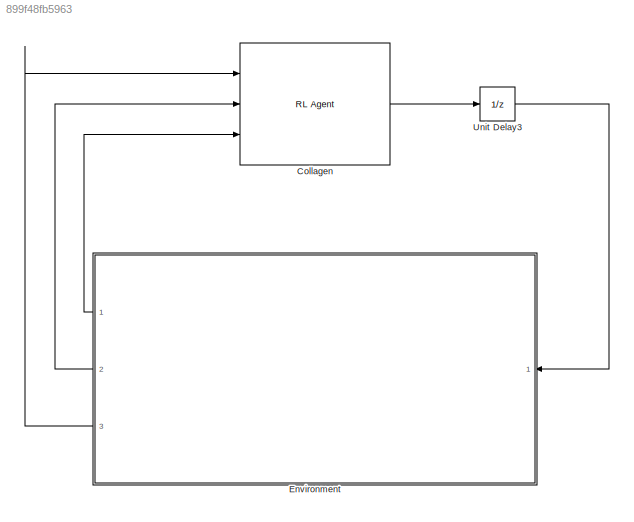
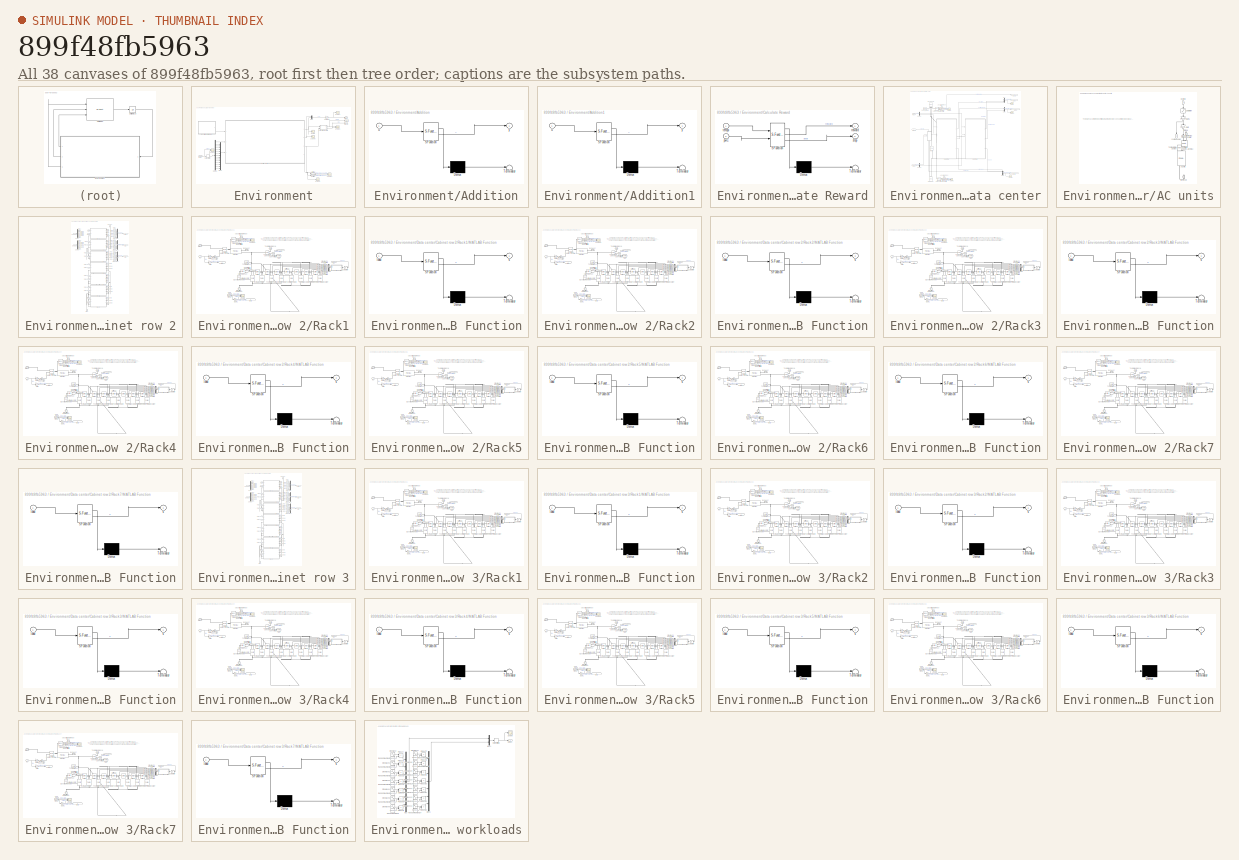
[diagram: thumbnail index - all 38 canvases of the model, root first then tree order]
MODEL slx_899f48fb5963
KIND model
CONFIG AbsTol = 1e-3
CONFIG EnableMultiTasking = off
CONFIG FixedStep = auto
CONFIG MaxStep = auto
CONFIG MinStep = auto
CONFIG RelTol = 1e-3
CONFIG SampleTimeConstraint = Unconstrained
CONFIG SolverName = VariableStepAuto
CONFIG StartTime = 0.0
CONFIG StopTime = 3600
BLOCK [Reference] Collagen  REF=rllib/RL Agent
  Ports = [3, 1]
  SourceBlock = rllib/RL Agent
  SourceProductBaseCode = RL
  SourceType = RL Agent
BLOCK [SubSystem] Environment
  Ports = [1, 3]
  RequestExecContextInheritance = off
BLOCK [SubSystem] Environment/Addition
  ErrorFcn = Stateflow.Translate.translate
  PermitHierarchicalResolution = ExplicitOnly
  Ports = [1, 1]
  RequestExecContextInheritance = off
  SFBlockType = MATLAB Function
  TreatAsAtomicUnit = on
BLOCK [Demux] Environment/Addition/ Demux 
  Outputs = 1
  Ports = [1, 1]
BLOCK [S-Function] Environment/Addition/ SFunction 
  EnableBusSupport = on
  FunctionName = sf_sfun
  PortCounts = [1 2]
  Ports = [1, 2]
  SFcnIsStateOwnerBlock = off
  SFunctionDeploymentMode = off
  Tag = Stateflow S-Function 28
BLOCK [Terminator] Environment/Addition/ Terminator 
BLOCK [Inport] Environment/Addition/u
BLOCK [Outport] Environment/Addition/y
BLOCK [SubSystem] Environment/Addition1
  ErrorFcn = Stateflow.Translate.translate
  PermitHierarchicalResolution = ExplicitOnly
  Ports = [1, 1]
  RequestExecContextInheritance = off
  SFBlockType = MATLAB Function
  TreatAsAtomicUnit = on
BLOCK [Demux] Environment/Addition1/ Demux 
  Outputs = 1
  Ports = [1, 1]
BLOCK [S-Function] Environment/Addition1/ SFunction 
  EnableBusSupport = on
  FunctionName = sf_sfun
  PortCounts = [1 2]
  Ports = [1, 2]
  SFcnIsStateOwnerBlock = off
  SFunctionDeploymentMode = off
  Tag = Stateflow S-Function 29
BLOCK [Terminator] Environment/Addition1/ Terminator 
BLOCK [Inport] Environment/Addition1/u
BLOCK [Outport] Environment/Addition1/y
BLOCK [SubSystem] Environment/Calculate Reward
  ErrorFcn = Stateflow.Translate.translate
  PermitHierarchicalResolution = ExplicitOnly
  Ports = [2, 2]
  RequestExecContextInheritance = off
  SFBlockType = MATLAB Function
  TreatAsAtomicUnit = on
BLOCK [Demux] Environment/Calculate Reward/ Demux 
  Outputs = 1
  Ports = [1, 1]
BLOCK [S-Function] Environment/Calculate Reward/ SFunction 
  EnableBusSupport = on
  FunctionName = sf_sfun
  PortCounts = [2 3]
  Ports = [2, 3]
  SFcnIsStateOwnerBlock = off
  SFunctionDeploymentMode = off
  Tag = Stateflow S-Function 30
BLOCK [Terminator] Environment/Calculate Reward/ Terminator 
BLOCK [Inport] Environment/Calculate Reward/pwC
  Port = 2
BLOCK [Outport] Environment/Calculate Reward/reward
BLOCK [Outport] Environment/Calculate Reward/stop
  Port = 2
BLOCK [Inport] Environment/Calculate Reward/temps
BLOCK [SubSystem] Environment/Data center
  Ports = [3, 4]
  RequestExecContextInheritance = off
BLOCK [SubSystem] Environment/Data center/AC units
  NameLocation = left
  Ports = [1, 1, 0, 0, 0, 1, 1]
  RequestExecContextInheritance = off
BLOCK [Reference] Environment/Data center/AC units/AC units  REF=fl_lib/Moist Air/Elements/Pipe (MA)
  NameLocation = left
  Ports = [0, 0, 0, 0, 0, 2, 3]
  SourceBlock = fl_lib/Moist Air/Elements/Pipe (MA)
  SourceProductBaseCode = SS
  SourceType = Pipe (MA)
BLOCK [Reference] Environment/Data center/AC units/Controlled Volumetric Flow Rate Source (MA)  REF=fl_lib/Moist Air/Sources/Controlled
Volumetric Flow Rate
Source (MA)
  NameLocation = left
  Ports = [0, 0, 0, 0, 0, 2, 1]
  SourceBlock = fl_lib/Moist Air/Sources/Controlled\nVolumetric Flow Rate\nSource (MA)
  SourceProductBaseCode = SS
  SourceType = Controlled\nVolumetric Flow Rate\nSource (MA)
BLOCK [Inport] Environment/Data center/AC units/Cooling
  NameLocation = left
BLOCK [PMIOPort] Environment/Data center/AC units/Exhaust
  NameLocation = left
  Port = 2
  Side = Right
BLOCK [Gain] Environment/Data center/AC units/Gain
  Gain = 3.6/19000
  NameLocation = left
BLOCK [Gain] Environment/Data center/AC units/Gain1
  Gain = 2*60000
  NameLocation = left
BLOCK [PMIOPort] Environment/Data center/AC units/Intake
  NameLocation = right
  Side = Left
BLOCK [Saturate] Environment/Data center/AC units/Saturation
  LowerLimit = 0
  NameLocation = left
  UpperLimit = 1
BLOCK [Reference] Environment/Data center/AC units/Simulink-PS Converter  REF=nesl_utility/Simulink-PS
Converter
  NameLocation = left
  Ports = [1, 0, 0, 0, 0, 0, 1]
  SourceBlock = nesl_utility/Simulink-PS\nConverter
  SourceProductBaseCode = PW,SS
  SourceType = Simulink-PS\nConverter
BLOCK [Reference] Environment/Data center/AC units/Temperature Source  REF=fl_lib/Thermal/Thermal Sources/Temperature Source
  NameLocation = left
  Ports = [0, 0, 0, 0, 0, 1]
  SourceBlock = fl_lib/Thermal/Thermal Sources/Temperature Source
  SourceProductBaseCode = SS
  SourceType = Temperature Source
BLOCK [Outport] Environment/Data center/AC units/cooling power
  NameLocation = left
BLOCK [Reference] Environment/Data center/Absolute Reference (MA)  REF=fl_lib/Moist Air/Elements/Absolute Reference
(MA)
  NameLocation = top
  Ports = [0, 0, 0, 0, 0, 1]
  SourceBlock = fl_lib/Moist Air/Elements/Absolute Reference\n(MA)
  SourceProductBaseCode = SS
  SourceType = Absolute Reference\n(MA)
BLOCK [Reference] Environment/Data center/Absolute Reference (MA)1  REF=fl_lib/Moist Air/Elements/Absolute Reference
(MA)
  NameLocation = top
  Ports = [0, 0, 0, 0, 0, 1]
  SourceBlock = fl_lib/Moist Air/Elements/Absolute Reference\n(MA)
  SourceProductBaseCode = SS
  SourceType = Absolute Reference\n(MA)
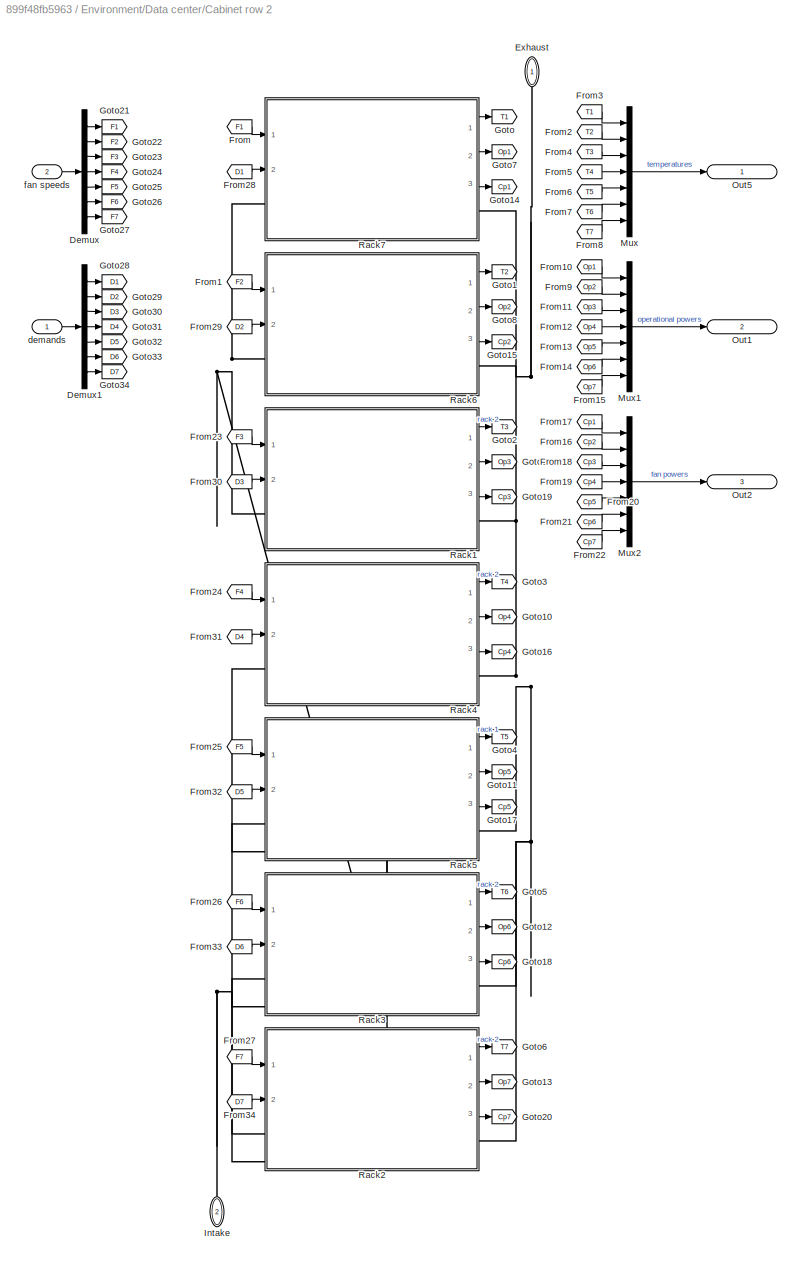
BLOCK [SubSystem] Environment/Data center/Cabinet row 2
  PortSchema = {"entries":[{"content":{"sides":[{"content":{"connectorIds":["LConn1","In1","In2","LConn2"]},"type":"ConnectorPlacement.EquallySpacedRectSide","uuid":"aa64181a-7978-412f-98e9-dcdd97a3c7e3"},{"content":{"connectorIds":["Out1","Out2","Out3"],"side":"RIGHT"},"type":"ConnectorPlacement.EquallySpacedRectSide","uuid":"260fc92a-b2f9-43e3-aafe-e10e980a8ffc"},{"content":{"connectorIds":[],"side":"TOP"},"ty...<+278ch>
  Ports = [2, 3, 0, 0, 0, 2]
  RequestExecContextInheritance = off
BLOCK [Demux] Environment/Data center/Cabinet row 2/Demux
  Outputs = 7
  Ports = [1, 7]
BLOCK [Demux] Environment/Data center/Cabinet row 2/Demux1
  Outputs = 7
  Ports = [1, 7]
BLOCK [PMIOPort] Environment/Data center/Cabinet row 2/Exhaust
  NameLocation = left
  Side = Left
BLOCK [From] Environment/Data center/Cabinet row 2/From
  GotoTag = F1
BLOCK [From] Environment/Data center/Cabinet row 2/From1
  GotoTag = F2
BLOCK [From] Environment/Data center/Cabinet row 2/From10
  GotoTag = Op1
BLOCK [From] Environment/Data center/Cabinet row 2/From11
  GotoTag = Op3
BLOCK [From] Environment/Data center/Cabinet row 2/From12
  GotoTag = Op4
BLOCK [From] Environment/Data center/Cabinet row 2/From13
  GotoTag = Op5
BLOCK [From] Environment/Data center/Cabinet row 2/From14
  GotoTag = Op6
BLOCK [From] Environment/Data center/Cabinet row 2/From15
  GotoTag = Op7
BLOCK [From] Environment/Data center/Cabinet row 2/From16
  GotoTag = Cp2
BLOCK [From] Environment/Data center/Cabinet row 2/From17
  GotoTag = Cp1
BLOCK [From] Environment/Data center/Cabinet row 2/From18
  GotoTag = Cp3
BLOCK [From] Environment/Data center/Cabinet row 2/From19
  GotoTag = Cp4
BLOCK [From] Environment/Data center/Cabinet row 2/From2
  GotoTag = T2
BLOCK [From] Environment/Data center/Cabinet row 2/From20
  GotoTag = Cp5
BLOCK [From] Environment/Data center/Cabinet row 2/From21
  GotoTag = Cp6
BLOCK [From] Environment/Data center/Cabinet row 2/From22
  GotoTag = Cp7
BLOCK [From] Environment/Data center/Cabinet row 2/From23
  GotoTag = F3
BLOCK [From] Environment/Data center/Cabinet row 2/From24
  GotoTag = F4
BLOCK [From] Environment/Data center/Cabinet row 2/From25
  GotoTag = F5
BLOCK [From] Environment/Data center/Cabinet row 2/From26
  GotoTag = F6
BLOCK [From] Environment/Data center/Cabinet row 2/From27
  GotoTag = F7
BLOCK [From] Environment/Data center/Cabinet row 2/From28
  GotoTag = D1
BLOCK [From] Environment/Data center/Cabinet row 2/From29
  GotoTag = D2
BLOCK [From] Environment/Data center/Cabinet row 2/From3
  GotoTag = T1
BLOCK [From] Environment/Data center/Cabinet row 2/From30
  GotoTag = D3
BLOCK [From] Environment/Data center/Cabinet row 2/From31
  GotoTag = D4
BLOCK [From] Environment/Data center/Cabinet row 2/From32
  GotoTag = D5
BLOCK [From] Environment/Data center/Cabinet row 2/From33
  GotoTag = D6
BLOCK [From] Environment/Data center/Cabinet row 2/From34
  GotoTag = D7
BLOCK [From] Environment/Data center/Cabinet row 2/From4
  GotoTag = T3
BLOCK [From] Environment/Data center/Cabinet row 2/From5
  GotoTag = T4
BLOCK [From] Environment/Data center/Cabinet row 2/From6
  GotoTag = T5
BLOCK [From] Environment/Data center/Cabinet row 2/From7
  GotoTag = T6
BLOCK [From] Environment/Data center/Cabinet row 2/From8
  GotoTag = T7
BLOCK [From] Environment/Data center/Cabinet row 2/From9
  GotoTag = Op2
BLOCK [Goto] Environment/Data center/Cabinet row 2/Goto
  GotoTag = T1
BLOCK [Goto] Environment/Data center/Cabinet row 2/Goto1
  GotoTag = T2
BLOCK [Goto] Environment/Data center/Cabinet row 2/Goto10
  GotoTag = Op4
BLOCK [Goto] Environment/Data center/Cabinet row 2/Goto11
  GotoTag = Op5
BLOCK [Goto] Environment/Data center/Cabinet row 2/Goto12
  GotoTag = Op6
BLOCK [Goto] Environment/Data center/Cabinet row 2/Goto13
  GotoTag = Op7
BLOCK [Goto] Environment/Data center/Cabinet row 2/Goto14
  GotoTag = Cp1
BLOCK [Goto] Environment/Data center/Cabinet row 2/Goto15
  GotoTag = Cp2
BLOCK [Goto] Environment/Data center/Cabinet row 2/Goto16
  GotoTag = Cp4
BLOCK [Goto] Environment/Data center/Cabinet row 2/Goto17
  GotoTag = Cp5
BLOCK [Goto] Environment/Data center/Cabinet row 2/Goto18
  GotoTag = Cp6
BLOCK [Goto] Environment/Data center/Cabinet row 2/Goto19
  GotoTag = Cp3
BLOCK [Goto] Environment/Data center/Cabinet row 2/Goto2
  GotoTag = T3
BLOCK [Goto] Environment/Data center/Cabinet row 2/Goto20
  GotoTag = Cp7
BLOCK [Goto] Environment/Data center/Cabinet row 2/Goto21
  GotoTag = F1
BLOCK [Goto] Environment/Data center/Cabinet row 2/Goto22
  GotoTag = F2
BLOCK [Goto] Environment/Data center/Cabinet row 2/Goto23
  GotoTag = F3
BLOCK [Goto] Environment/Data center/Cabinet row 2/Goto24
  GotoTag = F4
BLOCK [Goto] Environment/Data center/Cabinet row 2/Goto25
  GotoTag = F5
BLOCK [Goto] Environment/Data center/Cabinet row 2/Goto26
  GotoTag = F6
BLOCK [Goto] Environment/Data center/Cabinet row 2/Goto27
  GotoTag = F7
BLOCK [Goto] Environment/Data center/Cabinet row 2/Goto28
  GotoTag = D1
BLOCK [Goto] Environment/Data center/Cabinet row 2/Goto29
  GotoTag = D2
BLOCK [Goto] Environment/Data center/Cabinet row 2/Goto3
  GotoTag = T4
BLOCK [Goto] Environment/Data center/Cabinet row 2/Goto30
  GotoTag = D3
BLOCK [Goto] Environment/Data center/Cabinet row 2/Goto31
  GotoTag = D4
BLOCK [Goto] Environment/Data center/Cabinet row 2/Goto32
  GotoTag = D5
BLOCK [Goto] Environment/Data center/Cabinet row 2/Goto33
  GotoTag = D6
BLOCK [Goto] Environment/Data center/Cabinet row 2/Goto34
  GotoTag = D7
BLOCK [Goto] Environment/Data center/Cabinet row 2/Goto4
  GotoTag = T5
BLOCK [Goto] Environment/Data center/Cabinet row 2/Goto5
  GotoTag = T6
BLOCK [Goto] Environment/Data center/Cabinet row 2/Goto6
  GotoTag = T7
BLOCK [Goto] Environment/Data center/Cabinet row 2/Goto7
  GotoTag = Op1
BLOCK [Goto] Environment/Data center/Cabinet row 2/Goto8
  GotoTag = Op2
BLOCK [Goto] Environment/Data center/Cabinet row 2/Goto9
  GotoTag = Op3
BLOCK [PMIOPort] Environment/Data center/Cabinet row 2/Intake
  NameLocation = right
  Port = 2
  Side = Left
BLOCK [Mux] Environment/Data center/Cabinet row 2/Mux
  DisplayOption = bar
  Inputs = 7
  Ports = [7, 1]
BLOCK [Mux] Environment/Data center/Cabinet row 2/Mux1
  DisplayOption = bar
  Inputs = 7
  Ports = [7, 1]
BLOCK [Mux] Environment/Data center/Cabinet row 2/Mux2
  DisplayOption = bar
  Inputs = 7
  Ports = [7, 1]
BLOCK [Outport] Environment/Data center/Cabinet row 2/Out1
  IconDisplay = Signal name
  Port = 2
BLOCK [Outport] Environment/Data center/Cabinet row 2/Out2
  IconDisplay = Signal name
  Port = 3
BLOCK [Outport] Environment/Data center/Cabinet row 2/Out5
  IconDisplay = Signal name
BLOCK [SubSystem] Environment/Data center/Cabinet row 2/Rack1
  Ports = [2, 3, 0, 0, 0, 1, 1]
  RequestExecContextInheritance = off
BLOCK [Reference] Environment/Data center/Cabinet row 2/Rack1/Absolute Reference (MA)1  REF=fl_lib/Moist Air/Elements/Absolute Reference
(MA)
  NameLocation = top
  Ports = [0, 0, 0, 0, 0, 1]
  SourceBlock = fl_lib/Moist Air/Elements/Absolute Reference\n(MA)
  SourceProductBaseCode = SS
  SourceType = Absolute Reference\n(MA)
BLOCK [Reference] Environment/Data center/Cabinet row 2/Rack1/Controlled Volumetric Flow Rate Source (MA)  REF=fl_lib/Moist Air/Sources/Controlled
Volumetric Flow Rate
Source (MA)
  Ports = [0, 0, 0, 0, 0, 2, 1]
  SourceBlock = fl_lib/Moist Air/Sources/Controlled\nVolumetric Flow Rate\nSource (MA)
  SourceProductBaseCode = SS
  SourceType = Controlled\nVolumetric Flow Rate\nSource (MA)
BLOCK [Reference] Environment/Data center/Cabinet row 2/Rack1/Current Sensor  REF=fl_lib/Electrical/Electrical Sensors/Current Sensor
  Ports = [0, 0, 0, 0, 0, 1, 2]
  SourceBlock = fl_lib/Electrical/Electrical Sensors/Current Sensor
  SourceProductBaseCode = SS
  SourceType = Current Sensor
BLOCK [Reference] Environment/Data center/Cabinet row 2/Rack1/DC Voltage Source  REF=fl_lib/Electrical/Electrical Sources/DC Voltage Source
  NameLocation = right
  Ports = [0, 0, 0, 0, 0, 1, 1]
  SourceBlock = fl_lib/Electrical/Electrical Sources/DC Voltage Source
  SourceProductBaseCode = SS
  SourceType = DC Voltage Source
BLOCK [Demux] Environment/Data center/Cabinet row 2/Rack1/Demux
  NameLocation = top
  Outputs = 7
  Ports = [1, 7]
BLOCK [Reference] Environment/Data center/Cabinet row 2/Rack1/Electrical Reference  REF=fl_lib/Electrical/Electrical Elements/Electrical Reference
  NameLocation = right
  Ports = [0, 0, 0, 0, 0, 1]
  SourceBlock = fl_lib/Electrical/Electrical Elements/Electrical Reference
  SourceProductBaseCode = SS
  SourceType = Electrical Reference
BLOCK [PMIOPort] Environment/Data center/Cabinet row 2/Rack1/Exhaust
  Port = 2
  Side = Right
BLOCK [From] Environment/Data center/Cabinet row 2/Rack1/From
  GotoTag = Temp
BLOCK [From] Environment/Data center/Cabinet row 2/Rack1/From1
  GotoTag = Curr
BLOCK [Gain] Environment/Data center/Cabinet row 2/Rack1/Gain
  Gain = 100
BLOCK [Gain] Environment/Data center/Cabinet row 2/Rack1/Gain1
  Gain = 208
BLOCK [Gain] Environment/Data center/Cabinet row 2/Rack1/Gain2
  Gain = 0.83
BLOCK [Goto] Environment/Data center/Cabinet row 2/Rack1/Goto
  GotoTag = Temp
BLOCK [Goto] Environment/Data center/Cabinet row 2/Rack1/Goto1
  GotoTag = Curr
BLOCK [Inport] Environment/Data center/Cabinet row 2/Rack1/In1
  IconDisplay = Signal name
BLOCK [Inport] Environment/Data center/Cabinet row 2/Rack1/In2
  IconDisplay = Signal name
  Port = 2
BLOCK [PMIOPort] Environment/Data center/Cabinet row 2/Rack1/Intake
  Side = Left
BLOCK [SubSystem] Environment/Data center/Cabinet row 2/Rack1/MATLAB Function
  ErrorFcn = Stateflow.Translate.translate
  NameLocation = top
  PermitHierarchicalResolution = ExplicitOnly
  Ports = [1, 1]
  RequestExecContextInheritance = off
  SFBlockType = MATLAB Function
  TreatAsAtomicUnit = on
BLOCK [Demux] Environment/Data center/Cabinet row 2/Rack1/MATLAB Function/ Demux 
  Outputs = 1
  Ports = [1, 1]
BLOCK [S-Function] Environment/Data center/Cabinet row 2/Rack1/MATLAB Function/ SFunction 
  EnableBusSupport = on
  FunctionName = sf_sfun
  PortCounts = [1 2]
  Ports = [1, 2]
  SFcnIsStateOwnerBlock = off
  SFunctionDeploymentMode = off
  Tag = Stateflow S-Function 14
BLOCK [Terminator] Environment/Data center/Cabinet row 2/Rack1/MATLAB Function/ Terminator 
BLOCK [Inport] Environment/Data center/Cabinet row 2/Rack1/MATLAB Function/load
BLOCK [Outport] Environment/Data center/Cabinet row 2/Rack1/MATLAB Function/s
BLOCK [Outport] Environment/Data center/Cabinet row 2/Rack1/Out1
  IconDisplay = Signal name
BLOCK [Outport] Environment/Data center/Cabinet row 2/Rack1/Out2
  IconDisplay = Signal name
  Port = 2
BLOCK [Outport] Environment/Data center/Cabinet row 2/Rack1/Out3
  IconDisplay = Signal name
  Port = 3
BLOCK [Reference] Environment/Data center/Cabinet row 2/Rack1/PS-Simulink Converter2  REF=nesl_utility/PS-Simulink
Converter
  Ports = [0, 1, 0, 0, 0, 1]
  SourceBlock = nesl_utility/PS-Simulink\nConverter
  SourceProductBaseCode = PW,SS
  SourceType = PS-Simulink\nConverter
BLOCK [Reference] Environment/Data center/Cabinet row 2/Rack1/PS-Simulink Converter3  REF=nesl_utility/PS-Simulink
Converter
  Ports = [0, 1, 0, 0, 0, 1]
  SourceBlock = nesl_utility/PS-Simulink\nConverter
  SourceProductBaseCode = PW,SS
  SourceType = PS-Simulink\nConverter
BLOCK [Reference] Environment/Data center/Cabinet row 2/Rack1/PS-Simulink Converter4  REF=nesl_utility/PS-Simulink
Converter
  Ports = [0, 1, 0, 0, 0, 1]
  SourceBlock = nesl_utility/PS-Simulink\nConverter
  SourceProductBaseCode = PW,SS
  SourceType = PS-Simulink\nConverter
BLOCK [Reference] Environment/Data center/Cabinet row 2/Rack1/PS-Simulink Converter5  REF=nesl_utility/PS-Simulink
Converter
  Ports = [0, 1, 0, 0, 0, 1]
  SourceBlock = nesl_utility/PS-Simulink\nConverter
  SourceProductBaseCode = PW,SS
  SourceType = PS-Simulink\nConverter
BLOCK [Reference] Environment/Data center/Cabinet row 2/Rack1/Pipe (MA)  REF=fl_lib/Moist Air/Elements/Pipe (MA)
  Ports = [0, 0, 0, 0, 0, 2, 3]
  SourceBlock = fl_lib/Moist Air/Elements/Pipe (MA)
  SourceProductBaseCode = SS
  SourceType = Pipe (MA)
BLOCK [Reference] Environment/Data center/Cabinet row 2/Rack1/Pressure & Temperature Sensor (MA)1  REF=fl_lib/Moist Air/Sensors/Pressure &
Temperature Sensor
(MA)
  Ports = [0, 0, 0, 0, 0, 1, 3]
  SourceBlock = fl_lib/Moist Air/Sensors/Pressure &\nTemperature Sensor\n(MA)
  SourceProductBaseCode = SS
  SourceType = Pressure &\nTemperature Sensor\n(MA)
BLOCK [Saturate] Environment/Data center/Cabinet row 2/Rack1/Saturation
  LowerLimit = 0.01
  UpperLimit = 0.99
BLOCK [Scope] Environment/Data center/Cabinet row 2/Rack1/Scope
  Floating = off
  NumInputPorts = 3
  Ports = [3]
  ScopeSpecificationString = Simulink.scopes.TimeScopeBlockCfg('CurrentConfiguration', extmgr.ConfigurationSet(extmgr.Configuration('Core','General UI',true),extmgr.Configuration('Core','Source UI',true),extmgr.Configuration('Sources','WiredSimulink',true),extmgr.Configuration('Visuals','Time Domain',true,'SerializedDisplays',{struct('MinYLimReal','286.98454','MaxYLimReal','348.63911','YLabelReal','','MinYLimMag','286.98454',...<+2778ch>  <repeated x14 — deduplicated; at blocks: Scope>
BLOCK [Scope] Environment/Data center/Cabinet row 2/Rack1/Scope2
  Floating = off
  NumInputPorts = 2
  Ports = [2]
  ScopeSpecificationString = Simulink.scopes.TimeScopeBlockCfg('CurrentConfiguration', extmgr.ConfigurationSet(extmgr.Configuration('Core','General UI',true),extmgr.Configuration('Core','Source UI',true),extmgr.Configuration('Sources','WiredSimulink',true,'DataLoggingVariableName','ScopeData3'),extmgr.Configuration('Visuals','Time Domain',true,'SerializedDisplays',{struct('MinYLimReal','100612.41061','MaxYLimReal','102568.149...<+2081ch>  <repeated x14 — deduplicated; at blocks: Scope2>
BLOCK [Reference] Environment/Data center/Cabinet row 2/Rack1/Simulink-PS Converter  REF=nesl_utility/Simulink-PS
Converter
  NameLocation = top
  Ports = [1, 0, 0, 0, 0, 0, 1]
  SourceBlock = nesl_utility/Simulink-PS\nConverter
  SourceProductBaseCode = PW,SS
  SourceType = Simulink-PS\nConverter
BLOCK [Reference] Environment/Data center/Cabinet row 2/Rack1/Simulink-PS Converter1  REF=nesl_utility/Simulink-PS
Converter
  NameLocation = top
  Ports = [1, 0, 0, 0, 0, 0, 1]
  SourceBlock = nesl_utility/Simulink-PS\nConverter
  SourceProductBaseCode = PW,SS
  SourceType = Simulink-PS\nConverter
BLOCK [Reference] Environment/Data center/Cabinet row 2/Rack1/Simulink-PS Converter2  REF=nesl_utility/Simulink-PS
Converter
  NameLocation = top
  Ports = [1, 0, 0, 0, 0, 0, 1]
  SourceBlock = nesl_utility/Simulink-PS\nConverter
  SourceProductBaseCode = PW,SS
  SourceType = Simulink-PS\nConverter
BLOCK [Reference] Environment/Data center/Cabinet row 2/Rack1/Simulink-PS Converter3  REF=nesl_utility/Simulink-PS
Converter
  NameLocation = top
  Ports = [1, 0, 0, 0, 0, 0, 1]
  SourceBlock = nesl_utility/Simulink-PS\nConverter
  SourceProductBaseCode = PW,SS
  SourceType = Simulink-PS\nConverter
BLOCK [Reference] Environment/Data center/Cabinet row 2/Rack1/Simulink-PS Converter4  REF=nesl_utility/Simulink-PS
Converter
  NameLocation = top
  Ports = [1, 0, 0, 0, 0, 0, 1]
  SourceBlock = nesl_utility/Simulink-PS\nConverter
  SourceProductBaseCode = PW,SS
  SourceType = Simulink-PS\nConverter
BLOCK [Reference] Environment/Data center/Cabinet row 2/Rack1/Simulink-PS Converter5  REF=nesl_utility/Simulink-PS
Converter
  NameLocation = top
  Ports = [1, 0, 0, 0, 0, 0, 1]
  SourceBlock = nesl_utility/Simulink-PS\nConverter
  SourceProductBaseCode = PW,SS
  SourceType = Simulink-PS\nConverter
BLOCK [Reference] Environment/Data center/Cabinet row 2/Rack1/Simulink-PS Converter6  REF=nesl_utility/Simulink-PS
Converter
  NameLocation = top
  Ports = [1, 0, 0, 0, 0, 0, 1]
  SourceBlock = nesl_utility/Simulink-PS\nConverter
  SourceProductBaseCode = PW,SS
  SourceType = Simulink-PS\nConverter
BLOCK [Reference] Environment/Data center/Cabinet row 2/Rack1/Simulink-PS Converter7  REF=nesl_utility/Simulink-PS
Converter
  Ports = [1, 0, 0, 0, 0, 0, 1]
  SourceBlock = nesl_utility/Simulink-PS\nConverter
  SourceProductBaseCode = PW,SS
  SourceType = Simulink-PS\nConverter
BLOCK [Reference] Environment/Data center/Cabinet row 2/Rack1/Switch  REF=fl_lib/Electrical/Electrical Elements/Switch
  Ports = [0, 0, 0, 0, 0, 1, 2]
  SourceBlock = fl_lib/Electrical/Electrical Elements/Switch
  SourceProductBaseCode = SS
  SourceType = Switch
BLOCK [Reference] Environment/Data center/Cabinet row 2/Rack1/Switch1  REF=fl_lib/Electrical/Electrical Elements/Switch
  Ports = [0, 0, 0, 0, 0, 1, 2]
  SourceBlock = fl_lib/Electrical/Electrical Elements/Switch
  SourceProductBaseCode = SS
  SourceType = Switch
BLOCK [Reference] Environment/Data center/Cabinet row 2/Rack1/Switch2  REF=fl_lib/Electrical/Electrical Elements/Switch
  Ports = [0, 0, 0, 0, 0, 1, 2]
  SourceBlock = fl_lib/Electrical/Electrical Elements/Switch
  SourceProductBaseCode = SS
  SourceType = Switch
BLOCK [Reference] Environment/Data center/Cabinet row 2/Rack1/Switch3  REF=fl_lib/Electrical/Electrical Elements/Switch
  Ports = [0, 0, 0, 0, 0, 1, 2]
  SourceBlock = fl_lib/Electrical/Electrical Elements/Switch
  SourceProductBaseCode = SS
  SourceType = Switch
BLOCK [Reference] Environment/Data center/Cabinet row 2/Rack1/Switch4  REF=fl_lib/Electrical/Electrical Elements/Switch
  Ports = [0, 0, 0, 0, 0, 1, 2]
  SourceBlock = fl_lib/Electrical/Electrical Elements/Switch
  SourceProductBaseCode = SS
  SourceType = Switch
BLOCK [Reference] Environment/Data center/Cabinet row 2/Rack1/Switch5  REF=fl_lib/Electrical/Electrical Elements/Switch
  Ports = [0, 0, 0, 0, 0, 1, 2]
  SourceBlock = fl_lib/Electrical/Electrical Elements/Switch
  SourceProductBaseCode = SS
  SourceType = Switch
BLOCK [Reference] Environment/Data center/Cabinet row 2/Rack1/Switch6  REF=fl_lib/Electrical/Electrical Elements/Switch
  Ports = [0, 0, 0, 0, 0, 1, 2]
  SourceBlock = fl_lib/Electrical/Electrical Elements/Switch
  SourceProductBaseCode = SS
  SourceType = Switch
BLOCK [Reference] Environment/Data center/Cabinet row 2/Rack1/Temperature Sensor  REF=fl_lib/Thermal/Thermal Sensors/Temperature Sensor
  Ports = [0, 0, 0, 0, 0, 1, 2]
  SourceBlock = fl_lib/Thermal/Thermal Sensors/Temperature Sensor
  SourceProductBaseCode = SS
  SourceType = Temperature Sensor
BLOCK [Reference] Environment/Data center/Cabinet row 2/Rack1/Thermal Mass  REF=fl_lib/Thermal/Thermal Elements/Thermal Mass
  Ports = [0, 0, 0, 0, 0, 1]
  SourceBlock = fl_lib/Thermal/Thermal Elements/Thermal Mass
  SourceProductBaseCode = SS
  SourceType = Thermal Mass
BLOCK [Reference] Environment/Data center/Cabinet row 2/Rack1/Thermal Reference  REF=fl_lib/Thermal/Thermal Elements/Thermal Reference
  NameLocation = left
  Ports = [0, 0, 0, 0, 0, 1]
  SourceBlock = fl_lib/Thermal/Thermal Elements/Thermal Reference
  SourceProductBaseCode = SS
  SourceType = Thermal Reference
BLOCK [Reference] Environment/Data center/Cabinet row 2/Rack1/Thermal Resistor  REF=fl_lib/Electrical/Electrical Elements/Thermal Resistor
  NameLocation = left
  Ports = [0, 0, 0, 0, 0, 2, 1]
  SourceBlock = fl_lib/Electrical/Electrical Elements/Thermal Resistor
  SourceProductBaseCode = SS
  SourceType = Thermal Resistor
BLOCK [Reference] Environment/Data center/Cabinet row 2/Rack1/Thermal Resistor1  REF=fl_lib/Electrical/Electrical Elements/Thermal Resistor
  NameLocation = left
  Ports = [0, 0, 0, 0, 0, 2, 1]
  SourceBlock = fl_lib/Electrical/Electrical Elements/Thermal Resistor
  SourceProductBaseCode = SS
  SourceType = Thermal Resistor
BLOCK [Reference] Environment/Data center/Cabinet row 2/Rack1/Thermal Resistor3  REF=fl_lib/Electrical/Electrical Elements/Thermal Resistor
  NameLocation = left
  Ports = [0, 0, 0, 0, 0, 2, 1]
  SourceBlock = fl_lib/Electrical/Electrical Elements/Thermal Resistor
  SourceProductBaseCode = SS
  SourceType = Thermal Resistor
BLOCK [Reference] Environment/Data center/Cabinet row 2/Rack1/Thermal Resistor4  REF=fl_lib/Electrical/Electrical Elements/Thermal Resistor
  NameLocation = left
  Ports = [0, 0, 0, 0, 0, 2, 1]
  SourceBlock = fl_lib/Electrical/Electrical Elements/Thermal Resistor
  SourceProductBaseCode = SS
  SourceType = Thermal Resistor
BLOCK [Reference] Environment/Data center/Cabinet row 2/Rack1/Thermal Resistor5  REF=fl_lib/Electrical/Electrical Elements/Thermal Resistor
  NameLocation = left
  Ports = [0, 0, 0, 0, 0, 2, 1]
  SourceBlock = fl_lib/Electrical/Electrical Elements/Thermal Resistor
  SourceProductBaseCode = SS
  SourceType = Thermal Resistor
BLOCK [Reference] Environment/Data center/Cabinet row 2/Rack1/Thermal Resistor6  REF=fl_lib/Electrical/Electrical Elements/Thermal Resistor
  NameLocation = left
  Ports = [0, 0, 0, 0, 0, 2, 1]
  SourceBlock = fl_lib/Electrical/Electrical Elements/Thermal Resistor
  SourceProductBaseCode = SS
  SourceType = Thermal Resistor
BLOCK [Reference] Environment/Data center/Cabinet row 2/Rack1/Thermal Resistor7  REF=fl_lib/Electrical/Electrical Elements/Thermal Resistor
  NameLocation = left
  Ports = [0, 0, 0, 0, 0, 2, 1]
  SourceBlock = fl_lib/Electrical/Electrical Elements/Thermal Resistor
  SourceProductBaseCode = SS
  SourceType = Thermal Resistor
BLOCK [Reference] Environment/Data center/Cabinet row 2/Rack1/Thermal Resistor8  REF=fl_lib/Electrical/Electrical Elements/Thermal Resistor
  NameLocation = left
  Ports = [0, 0, 0, 0, 0, 2, 1]
  SourceBlock = fl_lib/Electrical/Electrical Elements/Thermal Resistor
  SourceProductBaseCode = SS
  SourceType = Thermal Resistor
BLOCK [SubSystem] Environment/Data center/Cabinet row 2/Rack2
  Ports = [2, 3, 0, 0, 0, 1, 1]
  RequestExecContextInheritance = off
BLOCK [Reference] Environment/Data center/Cabinet row 2/Rack2/Absolute Reference (MA)1  REF=fl_lib/Moist Air/Elements/Absolute Reference
(MA)
  NameLocation = top
  Ports = [0, 0, 0, 0, 0, 1]
  SourceBlock = fl_lib/Moist Air/Elements/Absolute Reference\n(MA)
  SourceProductBaseCode = SS
  SourceType = Absolute Reference\n(MA)
BLOCK [Reference] Environment/Data center/Cabinet row 2/Rack2/Controlled Volumetric Flow Rate Source (MA)  REF=fl_lib/Moist Air/Sources/Controlled
Volumetric Flow Rate
Source (MA)
  Ports = [0, 0, 0, 0, 0, 2, 1]
  SourceBlock = fl_lib/Moist Air/Sources/Controlled\nVolumetric Flow Rate\nSource (MA)
  SourceProductBaseCode = SS
  SourceType = Controlled\nVolumetric Flow Rate\nSource (MA)
BLOCK [Reference] Environment/Data center/Cabinet row 2/Rack2/Current Sensor  REF=fl_lib/Electrical/Electrical Sensors/Current Sensor
  Ports = [0, 0, 0, 0, 0, 1, 2]
  SourceBlock = fl_lib/Electrical/Electrical Sensors/Current Sensor
  SourceProductBaseCode = SS
  SourceType = Current Sensor
BLOCK [Reference] Environment/Data center/Cabinet row 2/Rack2/DC Voltage Source  REF=fl_lib/Electrical/Electrical Sources/DC Voltage Source
  NameLocation = right
  Ports = [0, 0, 0, 0, 0, 1, 1]
  SourceBlock = fl_lib/Electrical/Electrical Sources/DC Voltage Source
  SourceProductBaseCode = SS
  SourceType = DC Voltage Source
BLOCK [Demux] Environment/Data center/Cabinet row 2/Rack2/Demux
  NameLocation = top
  Outputs = 7
  Ports = [1, 7]
BLOCK [Reference] Environment/Data center/Cabinet row 2/Rack2/Electrical Reference  REF=fl_lib/Electrical/Electrical Elements/Electrical Reference
  NameLocation = right
  Ports = [0, 0, 0, 0, 0, 1]
  SourceBlock = fl_lib/Electrical/Electrical Elements/Electrical Reference
  SourceProductBaseCode = SS
  SourceType = Electrical Reference
BLOCK [PMIOPort] Environment/Data center/Cabinet row 2/Rack2/Exhaust
  Port = 2
  Side = Right
BLOCK [From] Environment/Data center/Cabinet row 2/Rack2/From
  GotoTag = Temp
BLOCK [From] Environment/Data center/Cabinet row 2/Rack2/From1
  GotoTag = Curr
BLOCK [Gain] Environment/Data center/Cabinet row 2/Rack2/Gain
  Gain = 100
BLOCK [Gain] Environment/Data center/Cabinet row 2/Rack2/Gain1
  Gain = 208
BLOCK [Gain] Environment/Data center/Cabinet row 2/Rack2/Gain2
  Gain = 0.83
BLOCK [Goto] Environment/Data center/Cabinet row 2/Rack2/Goto
  GotoTag = Temp
BLOCK [Goto] Environment/Data center/Cabinet row 2/Rack2/Goto1
  GotoTag = Curr
BLOCK [Inport] Environment/Data center/Cabinet row 2/Rack2/In1
  IconDisplay = Signal name
BLOCK [Inport] Environment/Data center/Cabinet row 2/Rack2/In2
  IconDisplay = Signal name
  Port = 2
BLOCK [PMIOPort] Environment/Data center/Cabinet row 2/Rack2/Intake
  Side = Left
BLOCK [SubSystem] Environment/Data center/Cabinet row 2/Rack2/MATLAB Function
  ErrorFcn = Stateflow.Translate.translate
  NameLocation = top
  PermitHierarchicalResolution = ExplicitOnly
  Ports = [1, 1]
  RequestExecContextInheritance = off
  SFBlockType = MATLAB Function
  TreatAsAtomicUnit = on
BLOCK [Demux] Environment/Data center/Cabinet row 2/Rack2/MATLAB Function/ Demux 
  Outputs = 1
  Ports = [1, 1]
BLOCK [S-Function] Environment/Data center/Cabinet row 2/Rack2/MATLAB Function/ SFunction 
  EnableBusSupport = on
  FunctionName = sf_sfun
  PortCounts = [1 2]
  Ports = [1, 2]
  SFcnIsStateOwnerBlock = off
  SFunctionDeploymentMode = off
  Tag = Stateflow S-Function 15
BLOCK [Terminator] Environment/Data center/Cabinet row 2/Rack2/MATLAB Function/ Terminator 
BLOCK [Inport] Environment/Data center/Cabinet row 2/Rack2/MATLAB Function/load
BLOCK [Outport] Environment/Data center/Cabinet row 2/Rack2/MATLAB Function/s
BLOCK [Outport] Environment/Data center/Cabinet row 2/Rack2/Out1
  IconDisplay = Signal name
BLOCK [Outport] Environment/Data center/Cabinet row 2/Rack2/Out2
  IconDisplay = Signal name
  Port = 2
BLOCK [Outport] Environment/Data center/Cabinet row 2/Rack2/Out3
  IconDisplay = Signal name
  Port = 3
BLOCK [Reference] Environment/Data center/Cabinet row 2/Rack2/PS-Simulink Converter2  REF=nesl_utility/PS-Simulink
Converter
  Ports = [0, 1, 0, 0, 0, 1]
  SourceBlock = nesl_utility/PS-Simulink\nConverter
  SourceProductBaseCode = PW,SS
  SourceType = PS-Simulink\nConverter
BLOCK [Reference] Environment/Data center/Cabinet row 2/Rack2/PS-Simulink Converter3  REF=nesl_utility/PS-Simulink
Converter
  Ports = [0, 1, 0, 0, 0, 1]
  SourceBlock = nesl_utility/PS-Simulink\nConverter
  SourceProductBaseCode = PW,SS
  SourceType = PS-Simulink\nConverter
BLOCK [Reference] Environment/Data center/Cabinet row 2/Rack2/PS-Simulink Converter4  REF=nesl_utility/PS-Simulink
Converter
  Ports = [0, 1, 0, 0, 0, 1]
  SourceBlock = nesl_utility/PS-Simulink\nConverter
  SourceProductBaseCode = PW,SS
  SourceType = PS-Simulink\nConverter
BLOCK [Reference] Environment/Data center/Cabinet row 2/Rack2/PS-Simulink Converter5  REF=nesl_utility/PS-Simulink
Converter
  Ports = [0, 1, 0, 0, 0, 1]
  SourceBlock = nesl_utility/PS-Simulink\nConverter
  SourceProductBaseCode = PW,SS
  SourceType = PS-Simulink\nConverter
BLOCK [Reference] Environment/Data center/Cabinet row 2/Rack2/Pipe (MA)  REF=fl_lib/Moist Air/Elements/Pipe (MA)
  Ports = [0, 0, 0, 0, 0, 2, 3]
  SourceBlock = fl_lib/Moist Air/Elements/Pipe (MA)
  SourceProductBaseCode = SS
  SourceType = Pipe (MA)
BLOCK [Reference] Environment/Data center/Cabinet row 2/Rack2/Pressure & Temperature Sensor (MA)1  REF=fl_lib/Moist Air/Sensors/Pressure &
Temperature Sensor
(MA)
  Ports = [0, 0, 0, 0, 0, 1, 3]
  SourceBlock = fl_lib/Moist Air/Sensors/Pressure &\nTemperature Sensor\n(MA)
  SourceProductBaseCode = SS
  SourceType = Pressure &\nTemperature Sensor\n(MA)
BLOCK [Saturate] Environment/Data center/Cabinet row 2/Rack2/Saturation
  LowerLimit = 0.01
  UpperLimit = 0.99
BLOCK [Scope] Environment/Data center/Cabinet row 2/Rack2/Scope
  Floating = off
  NumInputPorts = 3
  Ports = [3]
BLOCK [Scope] Environment/Data center/Cabinet row 2/Rack2/Scope2
  Floating = off
  NumInputPorts = 2
  Ports = [2]
BLOCK [Reference] Environment/Data center/Cabinet row 2/Rack2/Simulink-PS Converter  REF=nesl_utility/Simulink-PS
Converter
  NameLocation = top
  Ports = [1, 0, 0, 0, 0, 0, 1]
  SourceBlock = nesl_utility/Simulink-PS\nConverter
  SourceProductBaseCode = PW,SS
  SourceType = Simulink-PS\nConverter
BLOCK [Reference] Environment/Data center/Cabinet row 2/Rack2/Simulink-PS Converter1  REF=nesl_utility/Simulink-PS
Converter
  NameLocation = top
  Ports = [1, 0, 0, 0, 0, 0, 1]
  SourceBlock = nesl_utility/Simulink-PS\nConverter
  SourceProductBaseCode = PW,SS
  SourceType = Simulink-PS\nConverter
BLOCK [Reference] Environment/Data center/Cabinet row 2/Rack2/Simulink-PS Converter2  REF=nesl_utility/Simulink-PS
Converter
  NameLocation = top
  Ports = [1, 0, 0, 0, 0, 0, 1]
  SourceBlock = nesl_utility/Simulink-PS\nConverter
  SourceProductBaseCode = PW,SS
  SourceType = Simulink-PS\nConverter
BLOCK [Reference] Environment/Data center/Cabinet row 2/Rack2/Simulink-PS Converter3  REF=nesl_utility/Simulink-PS
Converter
  NameLocation = top
  Ports = [1, 0, 0, 0, 0, 0, 1]
  SourceBlock = nesl_utility/Simulink-PS\nConverter
  SourceProductBaseCode = PW,SS
  SourceType = Simulink-PS\nConverter
BLOCK [Reference] Environment/Data center/Cabinet row 2/Rack2/Simulink-PS Converter4  REF=nesl_utility/Simulink-PS
Converter
  NameLocation = top
  Ports = [1, 0, 0, 0, 0, 0, 1]
  SourceBlock = nesl_utility/Simulink-PS\nConverter
  SourceProductBaseCode = PW,SS
  SourceType = Simulink-PS\nConverter
BLOCK [Reference] Environment/Data center/Cabinet row 2/Rack2/Simulink-PS Converter5  REF=nesl_utility/Simulink-PS
Converter
  NameLocation = top
  Ports = [1, 0, 0, 0, 0, 0, 1]
  SourceBlock = nesl_utility/Simulink-PS\nConverter
  SourceProductBaseCode = PW,SS
  SourceType = Simulink-PS\nConverter
BLOCK [Reference] Environment/Data center/Cabinet row 2/Rack2/Simulink-PS Converter6  REF=nesl_utility/Simulink-PS
Converter
  NameLocation = top
  Ports = [1, 0, 0, 0, 0, 0, 1]
  SourceBlock = nesl_utility/Simulink-PS\nConverter
  SourceProductBaseCode = PW,SS
  SourceType = Simulink-PS\nConverter
BLOCK [Reference] Environment/Data center/Cabinet row 2/Rack2/Simulink-PS Converter7  REF=nesl_utility/Simulink-PS
Converter
  Ports = [1, 0, 0, 0, 0, 0, 1]
  SourceBlock = nesl_utility/Simulink-PS\nConverter
  SourceProductBaseCode = PW,SS
  SourceType = Simulink-PS\nConverter
BLOCK [Reference] Environment/Data center/Cabinet row 2/Rack2/Switch  REF=fl_lib/Electrical/Electrical Elements/Switch
  Ports = [0, 0, 0, 0, 0, 1, 2]
  SourceBlock = fl_lib/Electrical/Electrical Elements/Switch
  SourceProductBaseCode = SS
  SourceType = Switch
BLOCK [Reference] Environment/Data center/Cabinet row 2/Rack2/Switch1  REF=fl_lib/Electrical/Electrical Elements/Switch
  Ports = [0, 0, 0, 0, 0, 1, 2]
  SourceBlock = fl_lib/Electrical/Electrical Elements/Switch
  SourceProductBaseCode = SS
  SourceType = Switch
BLOCK [Reference] Environment/Data center/Cabinet row 2/Rack2/Switch2  REF=fl_lib/Electrical/Electrical Elements/Switch
  Ports = [0, 0, 0, 0, 0, 1, 2]
  SourceBlock = fl_lib/Electrical/Electrical Elements/Switch
  SourceProductBaseCode = SS
  SourceType = Switch
BLOCK [Reference] Environment/Data center/Cabinet row 2/Rack2/Switch3  REF=fl_lib/Electrical/Electrical Elements/Switch
  Ports = [0, 0, 0, 0, 0, 1, 2]
  SourceBlock = fl_lib/Electrical/Electrical Elements/Switch
  SourceProductBaseCode = SS
  SourceType = Switch
BLOCK [Reference] Environment/Data center/Cabinet row 2/Rack2/Switch4  REF=fl_lib/Electrical/Electrical Elements/Switch
  Ports = [0, 0, 0, 0, 0, 1, 2]
  SourceBlock = fl_lib/Electrical/Electrical Elements/Switch
  SourceProductBaseCode = SS
  SourceType = Switch
BLOCK [Reference] Environment/Data center/Cabinet row 2/Rack2/Switch5  REF=fl_lib/Electrical/Electrical Elements/Switch
  Ports = [0, 0, 0, 0, 0, 1, 2]
  SourceBlock = fl_lib/Electrical/Electrical Elements/Switch
  SourceProductBaseCode = SS
  SourceType = Switch
BLOCK [Reference] Environment/Data center/Cabinet row 2/Rack2/Switch6  REF=fl_lib/Electrical/Electrical Elements/Switch
  Ports = [0, 0, 0, 0, 0, 1, 2]
  SourceBlock = fl_lib/Electrical/Electrical Elements/Switch
  SourceProductBaseCode = SS
  SourceType = Switch
BLOCK [Reference] Environment/Data center/Cabinet row 2/Rack2/Temperature Sensor  REF=fl_lib/Thermal/Thermal Sensors/Temperature Sensor
  Ports = [0, 0, 0, 0, 0, 1, 2]
  SourceBlock = fl_lib/Thermal/Thermal Sensors/Temperature Sensor
  SourceProductBaseCode = SS
  SourceType = Temperature Sensor
BLOCK [Reference] Environment/Data center/Cabinet row 2/Rack2/Thermal Mass  REF=fl_lib/Thermal/Thermal Elements/Thermal Mass
  Ports = [0, 0, 0, 0, 0, 1]
  SourceBlock = fl_lib/Thermal/Thermal Elements/Thermal Mass
  SourceProductBaseCode = SS
  SourceType = Thermal Mass
BLOCK [Reference] Environment/Data center/Cabinet row 2/Rack2/Thermal Reference  REF=fl_lib/Thermal/Thermal Elements/Thermal Reference
  NameLocation = left
  Ports = [0, 0, 0, 0, 0, 1]
  SourceBlock = fl_lib/Thermal/Thermal Elements/Thermal Reference
  SourceProductBaseCode = SS
  SourceType = Thermal Reference
BLOCK [Reference] Environment/Data center/Cabinet row 2/Rack2/Thermal Resistor  REF=fl_lib/Electrical/Electrical Elements/Thermal Resistor
  NameLocation = left
  Ports = [0, 0, 0, 0, 0, 2, 1]
  SourceBlock = fl_lib/Electrical/Electrical Elements/Thermal Resistor
  SourceProductBaseCode = SS
  SourceType = Thermal Resistor
BLOCK [Reference] Environment/Data center/Cabinet row 2/Rack2/Thermal Resistor1  REF=fl_lib/Electrical/Electrical Elements/Thermal Resistor
  NameLocation = left
  Ports = [0, 0, 0, 0, 0, 2, 1]
  SourceBlock = fl_lib/Electrical/Electrical Elements/Thermal Resistor
  SourceProductBaseCode = SS
  SourceType = Thermal Resistor
BLOCK [Reference] Environment/Data center/Cabinet row 2/Rack2/Thermal Resistor3  REF=fl_lib/Electrical/Electrical Elements/Thermal Resistor
  NameLocation = left
  Ports = [0, 0, 0, 0, 0, 2, 1]
  SourceBlock = fl_lib/Electrical/Electrical Elements/Thermal Resistor
  SourceProductBaseCode = SS
  SourceType = Thermal Resistor
BLOCK [Reference] Environment/Data center/Cabinet row 2/Rack2/Thermal Resistor4  REF=fl_lib/Electrical/Electrical Elements/Thermal Resistor
  NameLocation = left
  Ports = [0, 0, 0, 0, 0, 2, 1]
  SourceBlock = fl_lib/Electrical/Electrical Elements/Thermal Resistor
  SourceProductBaseCode = SS
  SourceType = Thermal Resistor
BLOCK [Reference] Environment/Data center/Cabinet row 2/Rack2/Thermal Resistor5  REF=fl_lib/Electrical/Electrical Elements/Thermal Resistor
  NameLocation = left
  Ports = [0, 0, 0, 0, 0, 2, 1]
  SourceBlock = fl_lib/Electrical/Electrical Elements/Thermal Resistor
  SourceProductBaseCode = SS
  SourceType = Thermal Resistor
BLOCK [Reference] Environment/Data center/Cabinet row 2/Rack2/Thermal Resistor6  REF=fl_lib/Electrical/Electrical Elements/Thermal Resistor
  NameLocation = left
  Ports = [0, 0, 0, 0, 0, 2, 1]
  SourceBlock = fl_lib/Electrical/Electrical Elements/Thermal Resistor
  SourceProductBaseCode = SS
  SourceType = Thermal Resistor
BLOCK [Reference] Environment/Data center/Cabinet row 2/Rack2/Thermal Resistor7  REF=fl_lib/Electrical/Electrical Elements/Thermal Resistor
  NameLocation = left
  Ports = [0, 0, 0, 0, 0, 2, 1]
  SourceBlock = fl_lib/Electrical/Electrical Elements/Thermal Resistor
  SourceProductBaseCode = SS
  SourceType = Thermal Resistor
BLOCK [Reference] Environment/Data center/Cabinet row 2/Rack2/Thermal Resistor8  REF=fl_lib/Electrical/Electrical Elements/Thermal Resistor
  NameLocation = left
  Ports = [0, 0, 0, 0, 0, 2, 1]
  SourceBlock = fl_lib/Electrical/Electrical Elements/Thermal Resistor
  SourceProductBaseCode = SS
  SourceType = Thermal Resistor
BLOCK [SubSystem] Environment/Data center/Cabinet row 2/Rack3
  Ports = [2, 3, 0, 0, 0, 1, 1]
  RequestExecContextInheritance = off
BLOCK [Reference] Environment/Data center/Cabinet row 2/Rack3/Absolute Reference (MA)1  REF=fl_lib/Moist Air/Elements/Absolute Reference
(MA)
  NameLocation = top
  Ports = [0, 0, 0, 0, 0, 1]
  SourceBlock = fl_lib/Moist Air/Elements/Absolute Reference\n(MA)
  SourceProductBaseCode = SS
  SourceType = Absolute Reference\n(MA)
BLOCK [Reference] Environment/Data center/Cabinet row 2/Rack3/Controlled Volumetric Flow Rate Source (MA)  REF=fl_lib/Moist Air/Sources/Controlled
Volumetric Flow Rate
Source (MA)
  Ports = [0, 0, 0, 0, 0, 2, 1]
  SourceBlock = fl_lib/Moist Air/Sources/Controlled\nVolumetric Flow Rate\nSource (MA)
  SourceProductBaseCode = SS
  SourceType = Controlled\nVolumetric Flow Rate\nSource (MA)
BLOCK [Reference] Environment/Data center/Cabinet row 2/Rack3/Current Sensor  REF=fl_lib/Electrical/Electrical Sensors/Current Sensor
  Ports = [0, 0, 0, 0, 0, 1, 2]
  SourceBlock = fl_lib/Electrical/Electrical Sensors/Current Sensor
  SourceProductBaseCode = SS
  SourceType = Current Sensor
BLOCK [Reference] Environment/Data center/Cabinet row 2/Rack3/DC Voltage Source  REF=fl_lib/Electrical/Electrical Sources/DC Voltage Source
  NameLocation = right
  Ports = [0, 0, 0, 0, 0, 1, 1]
  SourceBlock = fl_lib/Electrical/Electrical Sources/DC Voltage Source
  SourceProductBaseCode = SS
  SourceType = DC Voltage Source
BLOCK [Demux] Environment/Data center/Cabinet row 2/Rack3/Demux
  NameLocation = top
  Outputs = 7
  Ports = [1, 7]
BLOCK [Reference] Environment/Data center/Cabinet row 2/Rack3/Electrical Reference  REF=fl_lib/Electrical/Electrical Elements/Electrical Reference
  NameLocation = right
  Ports = [0, 0, 0, 0, 0, 1]
  SourceBlock = fl_lib/Electrical/Electrical Elements/Electrical Reference
  SourceProductBaseCode = SS
  SourceType = Electrical Reference
BLOCK [PMIOPort] Environment/Data center/Cabinet row 2/Rack3/Exhaust
  Port = 2
  Side = Right
BLOCK [From] Environment/Data center/Cabinet row 2/Rack3/From
  GotoTag = Temp
BLOCK [From] Environment/Data center/Cabinet row 2/Rack3/From1
  GotoTag = Curr
BLOCK [Gain] Environment/Data center/Cabinet row 2/Rack3/Gain
  Gain = 100
BLOCK [Gain] Environment/Data center/Cabinet row 2/Rack3/Gain1
  Gain = 208
BLOCK [Gain] Environment/Data center/Cabinet row 2/Rack3/Gain2
  Gain = 0.83
BLOCK [Goto] Environment/Data center/Cabinet row 2/Rack3/Goto
  GotoTag = Temp
BLOCK [Goto] Environment/Data center/Cabinet row 2/Rack3/Goto1
  GotoTag = Curr
BLOCK [Inport] Environment/Data center/Cabinet row 2/Rack3/In1
  IconDisplay = Signal name
BLOCK [Inport] Environment/Data center/Cabinet row 2/Rack3/In2
  IconDisplay = Signal name
  Port = 2
BLOCK [PMIOPort] Environment/Data center/Cabinet row 2/Rack3/Intake
  Side = Left
BLOCK [SubSystem] Environment/Data center/Cabinet row 2/Rack3/MATLAB Function
  ErrorFcn = Stateflow.Translate.translate
  NameLocation = top
  PermitHierarchicalResolution = ExplicitOnly
  Ports = [1, 1]
  RequestExecContextInheritance = off
  SFBlockType = MATLAB Function
  TreatAsAtomicUnit = on
BLOCK [Demux] Environment/Data center/Cabinet row 2/Rack3/MATLAB Function/ Demux 
  Outputs = 1
  Ports = [1, 1]
BLOCK [S-Function] Environment/Data center/Cabinet row 2/Rack3/MATLAB Function/ SFunction 
  EnableBusSupport = on
  FunctionName = sf_sfun
  PortCounts = [1 2]
  Ports = [1, 2]
  SFcnIsStateOwnerBlock = off
  SFunctionDeploymentMode = off
  Tag = Stateflow S-Function 16
BLOCK [Terminator] Environment/Data center/Cabinet row 2/Rack3/MATLAB Function/ Terminator 
BLOCK [Inport] Environment/Data center/Cabinet row 2/Rack3/MATLAB Function/load
BLOCK [Outport] Environment/Data center/Cabinet row 2/Rack3/MATLAB Function/s
BLOCK [Outport] Environment/Data center/Cabinet row 2/Rack3/Out1
  IconDisplay = Signal name
BLOCK [Outport] Environment/Data center/Cabinet row 2/Rack3/Out2
  IconDisplay = Signal name
  Port = 2
BLOCK [Outport] Environment/Data center/Cabinet row 2/Rack3/Out3
  IconDisplay = Signal name
  Port = 3
BLOCK [Reference] Environment/Data center/Cabinet row 2/Rack3/PS-Simulink Converter2  REF=nesl_utility/PS-Simulink
Converter
  Ports = [0, 1, 0, 0, 0, 1]
  SourceBlock = nesl_utility/PS-Simulink\nConverter
  SourceProductBaseCode = PW,SS
  SourceType = PS-Simulink\nConverter
BLOCK [Reference] Environment/Data center/Cabinet row 2/Rack3/PS-Simulink Converter3  REF=nesl_utility/PS-Simulink
Converter
  Ports = [0, 1, 0, 0, 0, 1]
  SourceBlock = nesl_utility/PS-Simulink\nConverter
  SourceProductBaseCode = PW,SS
  SourceType = PS-Simulink\nConverter
BLOCK [Reference] Environment/Data center/Cabinet row 2/Rack3/PS-Simulink Converter4  REF=nesl_utility/PS-Simulink
Converter
  Ports = [0, 1, 0, 0, 0, 1]
  SourceBlock = nesl_utility/PS-Simulink\nConverter
  SourceProductBaseCode = PW,SS
  SourceType = PS-Simulink\nConverter
BLOCK [Reference] Environment/Data center/Cabinet row 2/Rack3/PS-Simulink Converter5  REF=nesl_utility/PS-Simulink
Converter
  Ports = [0, 1, 0, 0, 0, 1]
  SourceBlock = nesl_utility/PS-Simulink\nConverter
  SourceProductBaseCode = PW,SS
  SourceType = PS-Simulink\nConverter
BLOCK [Reference] Environment/Data center/Cabinet row 2/Rack3/Pipe (MA)  REF=fl_lib/Moist Air/Elements/Pipe (MA)
  Ports = [0, 0, 0, 0, 0, 2, 3]
  SourceBlock = fl_lib/Moist Air/Elements/Pipe (MA)
  SourceProductBaseCode = SS
  SourceType = Pipe (MA)
BLOCK [Reference] Environment/Data center/Cabinet row 2/Rack3/Pressure & Temperature Sensor (MA)1  REF=fl_lib/Moist Air/Sensors/Pressure &
Temperature Sensor
(MA)
  Ports = [0, 0, 0, 0, 0, 1, 3]
  SourceBlock = fl_lib/Moist Air/Sensors/Pressure &\nTemperature Sensor\n(MA)
  SourceProductBaseCode = SS
  SourceType = Pressure &\nTemperature Sensor\n(MA)
BLOCK [Saturate] Environment/Data center/Cabinet row 2/Rack3/Saturation
  LowerLimit = 0.01
  UpperLimit = 0.99
BLOCK [Scope] Environment/Data center/Cabinet row 2/Rack3/Scope
  Floating = off
  NumInputPorts = 3
  Ports = [3]
BLOCK [Scope] Environment/Data center/Cabinet row 2/Rack3/Scope2
  Floating = off
  NumInputPorts = 2
  Ports = [2]
BLOCK [Reference] Environment/Data center/Cabinet row 2/Rack3/Simulink-PS Converter  REF=nesl_utility/Simulink-PS
Converter
  NameLocation = top
  Ports = [1, 0, 0, 0, 0, 0, 1]
  SourceBlock = nesl_utility/Simulink-PS\nConverter
  SourceProductBaseCode = PW,SS
  SourceType = Simulink-PS\nConverter
BLOCK [Reference] Environment/Data center/Cabinet row 2/Rack3/Simulink-PS Converter1  REF=nesl_utility/Simulink-PS
Converter
  NameLocation = top
  Ports = [1, 0, 0, 0, 0, 0, 1]
  SourceBlock = nesl_utility/Simulink-PS\nConverter
  SourceProductBaseCode = PW,SS
  SourceType = Simulink-PS\nConverter
BLOCK [Reference] Environment/Data center/Cabinet row 2/Rack3/Simulink-PS Converter2  REF=nesl_utility/Simulink-PS
Converter
  NameLocation = top
  Ports = [1, 0, 0, 0, 0, 0, 1]
  SourceBlock = nesl_utility/Simulink-PS\nConverter
  SourceProductBaseCode = PW,SS
  SourceType = Simulink-PS\nConverter
BLOCK [Reference] Environment/Data center/Cabinet row 2/Rack3/Simulink-PS Converter3  REF=nesl_utility/Simulink-PS
Converter
  NameLocation = top
  Ports = [1, 0, 0, 0, 0, 0, 1]
  SourceBlock = nesl_utility/Simulink-PS\nConverter
  SourceProductBaseCode = PW,SS
  SourceType = Simulink-PS\nConverter
BLOCK [Reference] Environment/Data center/Cabinet row 2/Rack3/Simulink-PS Converter4  REF=nesl_utility/Simulink-PS
Converter
  NameLocation = top
  Ports = [1, 0, 0, 0, 0, 0, 1]
  SourceBlock = nesl_utility/Simulink-PS\nConverter
  SourceProductBaseCode = PW,SS
  SourceType = Simulink-PS\nConverter
BLOCK [Reference] Environment/Data center/Cabinet row 2/Rack3/Simulink-PS Converter5  REF=nesl_utility/Simulink-PS
Converter
  NameLocation = top
  Ports = [1, 0, 0, 0, 0, 0, 1]
  SourceBlock = nesl_utility/Simulink-PS\nConverter
  SourceProductBaseCode = PW,SS
  SourceType = Simulink-PS\nConverter
BLOCK [Reference] Environment/Data center/Cabinet row 2/Rack3/Simulink-PS Converter6  REF=nesl_utility/Simulink-PS
Converter
  NameLocation = top
  Ports = [1, 0, 0, 0, 0, 0, 1]
  SourceBlock = nesl_utility/Simulink-PS\nConverter
  SourceProductBaseCode = PW,SS
  SourceType = Simulink-PS\nConverter
BLOCK [Reference] Environment/Data center/Cabinet row 2/Rack3/Simulink-PS Converter7  REF=nesl_utility/Simulink-PS
Converter
  Ports = [1, 0, 0, 0, 0, 0, 1]
  SourceBlock = nesl_utility/Simulink-PS\nConverter
  SourceProductBaseCode = PW,SS
  SourceType = Simulink-PS\nConverter
BLOCK [Reference] Environment/Data center/Cabinet row 2/Rack3/Switch  REF=fl_lib/Electrical/Electrical Elements/Switch
  Ports = [0, 0, 0, 0, 0, 1, 2]
  SourceBlock = fl_lib/Electrical/Electrical Elements/Switch
  SourceProductBaseCode = SS
  SourceType = Switch
BLOCK [Reference] Environment/Data center/Cabinet row 2/Rack3/Switch1  REF=fl_lib/Electrical/Electrical Elements/Switch
  Ports = [0, 0, 0, 0, 0, 1, 2]
  SourceBlock = fl_lib/Electrical/Electrical Elements/Switch
  SourceProductBaseCode = SS
  SourceType = Switch
BLOCK [Reference] Environment/Data center/Cabinet row 2/Rack3/Switch2  REF=fl_lib/Electrical/Electrical Elements/Switch
  Ports = [0, 0, 0, 0, 0, 1, 2]
  SourceBlock = fl_lib/Electrical/Electrical Elements/Switch
  SourceProductBaseCode = SS
  SourceType = Switch
BLOCK [Reference] Environment/Data center/Cabinet row 2/Rack3/Switch3  REF=fl_lib/Electrical/Electrical Elements/Switch
  Ports = [0, 0, 0, 0, 0, 1, 2]
  SourceBlock = fl_lib/Electrical/Electrical Elements/Switch
  SourceProductBaseCode = SS
  SourceType = Switch
BLOCK [Reference] Environment/Data center/Cabinet row 2/Rack3/Switch4  REF=fl_lib/Electrical/Electrical Elements/Switch
  Ports = [0, 0, 0, 0, 0, 1, 2]
  SourceBlock = fl_lib/Electrical/Electrical Elements/Switch
  SourceProductBaseCode = SS
  SourceType = Switch
BLOCK [Reference] Environment/Data center/Cabinet row 2/Rack3/Switch5  REF=fl_lib/Electrical/Electrical Elements/Switch
  Ports = [0, 0, 0, 0, 0, 1, 2]
  SourceBlock = fl_lib/Electrical/Electrical Elements/Switch
  SourceProductBaseCode = SS
  SourceType = Switch
BLOCK [Reference] Environment/Data center/Cabinet row 2/Rack3/Switch6  REF=fl_lib/Electrical/Electrical Elements/Switch
  Ports = [0, 0, 0, 0, 0, 1, 2]
  SourceBlock = fl_lib/Electrical/Electrical Elements/Switch
  SourceProductBaseCode = SS
  SourceType = Switch
BLOCK [Reference] Environment/Data center/Cabinet row 2/Rack3/Temperature Sensor  REF=fl_lib/Thermal/Thermal Sensors/Temperature Sensor
  Ports = [0, 0, 0, 0, 0, 1, 2]
  SourceBlock = fl_lib/Thermal/Thermal Sensors/Temperature Sensor
  SourceProductBaseCode = SS
  SourceType = Temperature Sensor
BLOCK [Reference] Environment/Data center/Cabinet row 2/Rack3/Thermal Mass  REF=fl_lib/Thermal/Thermal Elements/Thermal Mass
  Ports = [0, 0, 0, 0, 0, 1]
  SourceBlock = fl_lib/Thermal/Thermal Elements/Thermal Mass
  SourceProductBaseCode = SS
  SourceType = Thermal Mass
BLOCK [Reference] Environment/Data center/Cabinet row 2/Rack3/Thermal Reference  REF=fl_lib/Thermal/Thermal Elements/Thermal Reference
  NameLocation = left
  Ports = [0, 0, 0, 0, 0, 1]
  SourceBlock = fl_lib/Thermal/Thermal Elements/Thermal Reference
  SourceProductBaseCode = SS
  SourceType = Thermal Reference
BLOCK [Reference] Environment/Data center/Cabinet row 2/Rack3/Thermal Resistor  REF=fl_lib/Electrical/Electrical Elements/Thermal Resistor
  NameLocation = left
  Ports = [0, 0, 0, 0, 0, 2, 1]
  SourceBlock = fl_lib/Electrical/Electrical Elements/Thermal Resistor
  SourceProductBaseCode = SS
  SourceType = Thermal Resistor
BLOCK [Reference] Environment/Data center/Cabinet row 2/Rack3/Thermal Resistor1  REF=fl_lib/Electrical/Electrical Elements/Thermal Resistor
  NameLocation = left
  Ports = [0, 0, 0, 0, 0, 2, 1]
  SourceBlock = fl_lib/Electrical/Electrical Elements/Thermal Resistor
  SourceProductBaseCode = SS
  SourceType = Thermal Resistor
BLOCK [Reference] Environment/Data center/Cabinet row 2/Rack3/Thermal Resistor3  REF=fl_lib/Electrical/Electrical Elements/Thermal Resistor
  NameLocation = left
  Ports = [0, 0, 0, 0, 0, 2, 1]
  SourceBlock = fl_lib/Electrical/Electrical Elements/Thermal Resistor
  SourceProductBaseCode = SS
  SourceType = Thermal Resistor
BLOCK [Reference] Environment/Data center/Cabinet row 2/Rack3/Thermal Resistor4  REF=fl_lib/Electrical/Electrical Elements/Thermal Resistor
  NameLocation = left
  Ports = [0, 0, 0, 0, 0, 2, 1]
  SourceBlock = fl_lib/Electrical/Electrical Elements/Thermal Resistor
  SourceProductBaseCode = SS
  SourceType = Thermal Resistor
BLOCK [Reference] Environment/Data center/Cabinet row 2/Rack3/Thermal Resistor5  REF=fl_lib/Electrical/Electrical Elements/Thermal Resistor
  NameLocation = left
  Ports = [0, 0, 0, 0, 0, 2, 1]
  SourceBlock = fl_lib/Electrical/Electrical Elements/Thermal Resistor
  SourceProductBaseCode = SS
  SourceType = Thermal Resistor
BLOCK [Reference] Environment/Data center/Cabinet row 2/Rack3/Thermal Resistor6  REF=fl_lib/Electrical/Electrical Elements/Thermal Resistor
  NameLocation = left
  Ports = [0, 0, 0, 0, 0, 2, 1]
  SourceBlock = fl_lib/Electrical/Electrical Elements/Thermal Resistor
  SourceProductBaseCode = SS
  SourceType = Thermal Resistor
BLOCK [Reference] Environment/Data center/Cabinet row 2/Rack3/Thermal Resistor7  REF=fl_lib/Electrical/Electrical Elements/Thermal Resistor
  NameLocation = left
  Ports = [0, 0, 0, 0, 0, 2, 1]
  SourceBlock = fl_lib/Electrical/Electrical Elements/Thermal Resistor
  SourceProductBaseCode = SS
  SourceType = Thermal Resistor
BLOCK [Reference] Environment/Data center/Cabinet row 2/Rack3/Thermal Resistor8  REF=fl_lib/Electrical/Electrical Elements/Thermal Resistor
  NameLocation = left
  Ports = [0, 0, 0, 0, 0, 2, 1]
  SourceBlock = fl_lib/Electrical/Electrical Elements/Thermal Resistor
  SourceProductBaseCode = SS
  SourceType = Thermal Resistor
BLOCK [SubSystem] Environment/Data center/Cabinet row 2/Rack4
  Ports = [2, 3, 0, 0, 0, 1, 1]
  RequestExecContextInheritance = off
BLOCK [Reference] Environment/Data center/Cabinet row 2/Rack4/Absolute Reference (MA)1  REF=fl_lib/Moist Air/Elements/Absolute Reference
(MA)
  NameLocation = top
  Ports = [0, 0, 0, 0, 0, 1]
  SourceBlock = fl_lib/Moist Air/Elements/Absolute Reference\n(MA)
  SourceProductBaseCode = SS
  SourceType = Absolute Reference\n(MA)
BLOCK [Reference] Environment/Data center/Cabinet row 2/Rack4/Controlled Volumetric Flow Rate Source (MA)  REF=fl_lib/Moist Air/Sources/Controlled
Volumetric Flow Rate
Source (MA)
  Ports = [0, 0, 0, 0, 0, 2, 1]
  SourceBlock = fl_lib/Moist Air/Sources/Controlled\nVolumetric Flow Rate\nSource (MA)
  SourceProductBaseCode = SS
  SourceType = Controlled\nVolumetric Flow Rate\nSource (MA)
BLOCK [Reference] Environment/Data center/Cabinet row 2/Rack4/Current Sensor  REF=fl_lib/Electrical/Electrical Sensors/Current Sensor
  Ports = [0, 0, 0, 0, 0, 1, 2]
  SourceBlock = fl_lib/Electrical/Electrical Sensors/Current Sensor
  SourceProductBaseCode = SS
  SourceType = Current Sensor
BLOCK [Reference] Environment/Data center/Cabinet row 2/Rack4/DC Voltage Source  REF=fl_lib/Electrical/Electrical Sources/DC Voltage Source
  NameLocation = right
  Ports = [0, 0, 0, 0, 0, 1, 1]
  SourceBlock = fl_lib/Electrical/Electrical Sources/DC Voltage Source
  SourceProductBaseCode = SS
  SourceType = DC Voltage Source
BLOCK [Demux] Environment/Data center/Cabinet row 2/Rack4/Demux
  NameLocation = top
  Outputs = 7
  Ports = [1, 7]
BLOCK [Reference] Environment/Data center/Cabinet row 2/Rack4/Electrical Reference  REF=fl_lib/Electrical/Electrical Elements/Electrical Reference
  NameLocation = right
  Ports = [0, 0, 0, 0, 0, 1]
  SourceBlock = fl_lib/Electrical/Electrical Elements/Electrical Reference
  SourceProductBaseCode = SS
  SourceType = Electrical Reference
BLOCK [PMIOPort] Environment/Data center/Cabinet row 2/Rack4/Exhaust
  Port = 2
  Side = Right
BLOCK [From] Environment/Data center/Cabinet row 2/Rack4/From
  GotoTag = Temp
BLOCK [From] Environment/Data center/Cabinet row 2/Rack4/From1
  GotoTag = Curr
BLOCK [Gain] Environment/Data center/Cabinet row 2/Rack4/Gain
  Gain = 100
BLOCK [Gain] Environment/Data center/Cabinet row 2/Rack4/Gain1
  Gain = 208
BLOCK [Gain] Environment/Data center/Cabinet row 2/Rack4/Gain2
  Gain = 0.83
BLOCK [Goto] Environment/Data center/Cabinet row 2/Rack4/Goto
  GotoTag = Temp
BLOCK [Goto] Environment/Data center/Cabinet row 2/Rack4/Goto1
  GotoTag = Curr
BLOCK [Inport] Environment/Data center/Cabinet row 2/Rack4/In1
  IconDisplay = Signal name
BLOCK [Inport] Environment/Data center/Cabinet row 2/Rack4/In2
  IconDisplay = Signal name
  Port = 2
BLOCK [PMIOPort] Environment/Data center/Cabinet row 2/Rack4/Intake
  Side = Left
BLOCK [SubSystem] Environment/Data center/Cabinet row 2/Rack4/MATLAB Function
  ErrorFcn = Stateflow.Translate.translate
  NameLocation = top
  PermitHierarchicalResolution = ExplicitOnly
  Ports = [1, 1]
  RequestExecContextInheritance = off
  SFBlockType = MATLAB Function
  TreatAsAtomicUnit = on
BLOCK [Demux] Environment/Data center/Cabinet row 2/Rack4/MATLAB Function/ Demux 
  Outputs = 1
  Ports = [1, 1]
BLOCK [S-Function] Environment/Data center/Cabinet row 2/Rack4/MATLAB Function/ SFunction 
  EnableBusSupport = on
  FunctionName = sf_sfun
  PortCounts = [1 2]
  Ports = [1, 2]
  SFcnIsStateOwnerBlock = off
  SFunctionDeploymentMode = off
  Tag = Stateflow S-Function 17
BLOCK [Terminator] Environment/Data center/Cabinet row 2/Rack4/MATLAB Function/ Terminator 
BLOCK [Inport] Environment/Data center/Cabinet row 2/Rack4/MATLAB Function/load
BLOCK [Outport] Environment/Data center/Cabinet row 2/Rack4/MATLAB Function/s
BLOCK [Outport] Environment/Data center/Cabinet row 2/Rack4/Out1
  IconDisplay = Signal name
BLOCK [Outport] Environment/Data center/Cabinet row 2/Rack4/Out2
  IconDisplay = Signal name
  Port = 2
BLOCK [Outport] Environment/Data center/Cabinet row 2/Rack4/Out3
  IconDisplay = Signal name
  Port = 3
BLOCK [Reference] Environment/Data center/Cabinet row 2/Rack4/PS-Simulink Converter2  REF=nesl_utility/PS-Simulink
Converter
  Ports = [0, 1, 0, 0, 0, 1]
  SourceBlock = nesl_utility/PS-Simulink\nConverter
  SourceProductBaseCode = PW,SS
  SourceType = PS-Simulink\nConverter
BLOCK [Reference] Environment/Data center/Cabinet row 2/Rack4/PS-Simulink Converter3  REF=nesl_utility/PS-Simulink
Converter
  Ports = [0, 1, 0, 0, 0, 1]
  SourceBlock = nesl_utility/PS-Simulink\nConverter
  SourceProductBaseCode = PW,SS
  SourceType = PS-Simulink\nConverter
BLOCK [Reference] Environment/Data center/Cabinet row 2/Rack4/PS-Simulink Converter4  REF=nesl_utility/PS-Simulink
Converter
  Ports = [0, 1, 0, 0, 0, 1]
  SourceBlock = nesl_utility/PS-Simulink\nConverter
  SourceProductBaseCode = PW,SS
  SourceType = PS-Simulink\nConverter
BLOCK [Reference] Environment/Data center/Cabinet row 2/Rack4/PS-Simulink Converter5  REF=nesl_utility/PS-Simulink
Converter
  Ports = [0, 1, 0, 0, 0, 1]
  SourceBlock = nesl_utility/PS-Simulink\nConverter
  SourceProductBaseCode = PW,SS
  SourceType = PS-Simulink\nConverter
BLOCK [Reference] Environment/Data center/Cabinet row 2/Rack4/Pipe (MA)  REF=fl_lib/Moist Air/Elements/Pipe (MA)
  Ports = [0, 0, 0, 0, 0, 2, 3]
  SourceBlock = fl_lib/Moist Air/Elements/Pipe (MA)
  SourceProductBaseCode = SS
  SourceType = Pipe (MA)
BLOCK [Reference] Environment/Data center/Cabinet row 2/Rack4/Pressure & Temperature Sensor (MA)1  REF=fl_lib/Moist Air/Sensors/Pressure &
Temperature Sensor
(MA)
  Ports = [0, 0, 0, 0, 0, 1, 3]
  SourceBlock = fl_lib/Moist Air/Sensors/Pressure &\nTemperature Sensor\n(MA)
  SourceProductBaseCode = SS
  SourceType = Pressure &\nTemperature Sensor\n(MA)
BLOCK [Saturate] Environment/Data center/Cabinet row 2/Rack4/Saturation
  LowerLimit = 0.01
  UpperLimit = 0.99
BLOCK [Scope] Environment/Data center/Cabinet row 2/Rack4/Scope
  Floating = off
  NumInputPorts = 3
  Ports = [3]
BLOCK [Scope] Environment/Data center/Cabinet row 2/Rack4/Scope2
  Floating = off
  NumInputPorts = 2
  Ports = [2]
BLOCK [Reference] Environment/Data center/Cabinet row 2/Rack4/Simulink-PS Converter  REF=nesl_utility/Simulink-PS
Converter
  NameLocation = top
  Ports = [1, 0, 0, 0, 0, 0, 1]
  SourceBlock = nesl_utility/Simulink-PS\nConverter
  SourceProductBaseCode = PW,SS
  SourceType = Simulink-PS\nConverter
BLOCK [Reference] Environment/Data center/Cabinet row 2/Rack4/Simulink-PS Converter1  REF=nesl_utility/Simulink-PS
Converter
  NameLocation = top
  Ports = [1, 0, 0, 0, 0, 0, 1]
  SourceBlock = nesl_utility/Simulink-PS\nConverter
  SourceProductBaseCode = PW,SS
  SourceType = Simulink-PS\nConverter
BLOCK [Reference] Environment/Data center/Cabinet row 2/Rack4/Simulink-PS Converter2  REF=nesl_utility/Simulink-PS
Converter
  NameLocation = top
  Ports = [1, 0, 0, 0, 0, 0, 1]
  SourceBlock = nesl_utility/Simulink-PS\nConverter
  SourceProductBaseCode = PW,SS
  SourceType = Simulink-PS\nConverter
BLOCK [Reference] Environment/Data center/Cabinet row 2/Rack4/Simulink-PS Converter3  REF=nesl_utility/Simulink-PS
Converter
  NameLocation = top
  Ports = [1, 0, 0, 0, 0, 0, 1]
  SourceBlock = nesl_utility/Simulink-PS\nConverter
  SourceProductBaseCode = PW,SS
  SourceType = Simulink-PS\nConverter
BLOCK [Reference] Environment/Data center/Cabinet row 2/Rack4/Simulink-PS Converter4  REF=nesl_utility/Simulink-PS
Converter
  NameLocation = top
  Ports = [1, 0, 0, 0, 0, 0, 1]
  SourceBlock = nesl_utility/Simulink-PS\nConverter
  SourceProductBaseCode = PW,SS
  SourceType = Simulink-PS\nConverter
BLOCK [Reference] Environment/Data center/Cabinet row 2/Rack4/Simulink-PS Converter5  REF=nesl_utility/Simulink-PS
Converter
  NameLocation = top
  Ports = [1, 0, 0, 0, 0, 0, 1]
  SourceBlock = nesl_utility/Simulink-PS\nConverter
  SourceProductBaseCode = PW,SS
  SourceType = Simulink-PS\nConverter
BLOCK [Reference] Environment/Data center/Cabinet row 2/Rack4/Simulink-PS Converter6  REF=nesl_utility/Simulink-PS
Converter
  NameLocation = top
  Ports = [1, 0, 0, 0, 0, 0, 1]
  SourceBlock = nesl_utility/Simulink-PS\nConverter
  SourceProductBaseCode = PW,SS
  SourceType = Simulink-PS\nConverter
BLOCK [Reference] Environment/Data center/Cabinet row 2/Rack4/Simulink-PS Converter7  REF=nesl_utility/Simulink-PS
Converter
  Ports = [1, 0, 0, 0, 0, 0, 1]
  SourceBlock = nesl_utility/Simulink-PS\nConverter
  SourceProductBaseCode = PW,SS
  SourceType = Simulink-PS\nConverter
BLOCK [Reference] Environment/Data center/Cabinet row 2/Rack4/Switch  REF=fl_lib/Electrical/Electrical Elements/Switch
  Ports = [0, 0, 0, 0, 0, 1, 2]
  SourceBlock = fl_lib/Electrical/Electrical Elements/Switch
  SourceProductBaseCode = SS
  SourceType = Switch
BLOCK [Reference] Environment/Data center/Cabinet row 2/Rack4/Switch1  REF=fl_lib/Electrical/Electrical Elements/Switch
  Ports = [0, 0, 0, 0, 0, 1, 2]
  SourceBlock = fl_lib/Electrical/Electrical Elements/Switch
  SourceProductBaseCode = SS
  SourceType = Switch
BLOCK [Reference] Environment/Data center/Cabinet row 2/Rack4/Switch2  REF=fl_lib/Electrical/Electrical Elements/Switch
  Ports = [0, 0, 0, 0, 0, 1, 2]
  SourceBlock = fl_lib/Electrical/Electrical Elements/Switch
  SourceProductBaseCode = SS
  SourceType = Switch
BLOCK [Reference] Environment/Data center/Cabinet row 2/Rack4/Switch3  REF=fl_lib/Electrical/Electrical Elements/Switch
  Ports = [0, 0, 0, 0, 0, 1, 2]
  SourceBlock = fl_lib/Electrical/Electrical Elements/Switch
  SourceProductBaseCode = SS
  SourceType = Switch
BLOCK [Reference] Environment/Data center/Cabinet row 2/Rack4/Switch4  REF=fl_lib/Electrical/Electrical Elements/Switch
  Ports = [0, 0, 0, 0, 0, 1, 2]
  SourceBlock = fl_lib/Electrical/Electrical Elements/Switch
  SourceProductBaseCode = SS
  SourceType = Switch
BLOCK [Reference] Environment/Data center/Cabinet row 2/Rack4/Switch5  REF=fl_lib/Electrical/Electrical Elements/Switch
  Ports = [0, 0, 0, 0, 0, 1, 2]
  SourceBlock = fl_lib/Electrical/Electrical Elements/Switch
  SourceProductBaseCode = SS
  SourceType = Switch
BLOCK [Reference] Environment/Data center/Cabinet row 2/Rack4/Switch6  REF=fl_lib/Electrical/Electrical Elements/Switch
  Ports = [0, 0, 0, 0, 0, 1, 2]
  SourceBlock = fl_lib/Electrical/Electrical Elements/Switch
  SourceProductBaseCode = SS
  SourceType = Switch
BLOCK [Reference] Environment/Data center/Cabinet row 2/Rack4/Temperature Sensor  REF=fl_lib/Thermal/Thermal Sensors/Temperature Sensor
  Ports = [0, 0, 0, 0, 0, 1, 2]
  SourceBlock = fl_lib/Thermal/Thermal Sensors/Temperature Sensor
  SourceProductBaseCode = SS
  SourceType = Temperature Sensor
BLOCK [Reference] Environment/Data center/Cabinet row 2/Rack4/Thermal Mass  REF=fl_lib/Thermal/Thermal Elements/Thermal Mass
  Ports = [0, 0, 0, 0, 0, 1]
  SourceBlock = fl_lib/Thermal/Thermal Elements/Thermal Mass
  SourceProductBaseCode = SS
  SourceType = Thermal Mass
BLOCK [Reference] Environment/Data center/Cabinet row 2/Rack4/Thermal Reference  REF=fl_lib/Thermal/Thermal Elements/Thermal Reference
  NameLocation = left
  Ports = [0, 0, 0, 0, 0, 1]
  SourceBlock = fl_lib/Thermal/Thermal Elements/Thermal Reference
  SourceProductBaseCode = SS
  SourceType = Thermal Reference
BLOCK [Reference] Environment/Data center/Cabinet row 2/Rack4/Thermal Resistor  REF=fl_lib/Electrical/Electrical Elements/Thermal Resistor
  NameLocation = left
  Ports = [0, 0, 0, 0, 0, 2, 1]
  SourceBlock = fl_lib/Electrical/Electrical Elements/Thermal Resistor
  SourceProductBaseCode = SS
  SourceType = Thermal Resistor
BLOCK [Reference] Environment/Data center/Cabinet row 2/Rack4/Thermal Resistor1  REF=fl_lib/Electrical/Electrical Elements/Thermal Resistor
  NameLocation = left
  Ports = [0, 0, 0, 0, 0, 2, 1]
  SourceBlock = fl_lib/Electrical/Electrical Elements/Thermal Resistor
  SourceProductBaseCode = SS
  SourceType = Thermal Resistor
BLOCK [Reference] Environment/Data center/Cabinet row 2/Rack4/Thermal Resistor3  REF=fl_lib/Electrical/Electrical Elements/Thermal Resistor
  NameLocation = left
  Ports = [0, 0, 0, 0, 0, 2, 1]
  SourceBlock = fl_lib/Electrical/Electrical Elements/Thermal Resistor
  SourceProductBaseCode = SS
  SourceType = Thermal Resistor
BLOCK [Reference] Environment/Data center/Cabinet row 2/Rack4/Thermal Resistor4  REF=fl_lib/Electrical/Electrical Elements/Thermal Resistor
  NameLocation = left
  Ports = [0, 0, 0, 0, 0, 2, 1]
  SourceBlock = fl_lib/Electrical/Electrical Elements/Thermal Resistor
  SourceProductBaseCode = SS
  SourceType = Thermal Resistor
BLOCK [Reference] Environment/Data center/Cabinet row 2/Rack4/Thermal Resistor5  REF=fl_lib/Electrical/Electrical Elements/Thermal Resistor
  NameLocation = left
  Ports = [0, 0, 0, 0, 0, 2, 1]
  SourceBlock = fl_lib/Electrical/Electrical Elements/Thermal Resistor
  SourceProductBaseCode = SS
  SourceType = Thermal Resistor
BLOCK [Reference] Environment/Data center/Cabinet row 2/Rack4/Thermal Resistor6  REF=fl_lib/Electrical/Electrical Elements/Thermal Resistor
  NameLocation = left
  Ports = [0, 0, 0, 0, 0, 2, 1]
  SourceBlock = fl_lib/Electrical/Electrical Elements/Thermal Resistor
  SourceProductBaseCode = SS
  SourceType = Thermal Resistor
BLOCK [Reference] Environment/Data center/Cabinet row 2/Rack4/Thermal Resistor7  REF=fl_lib/Electrical/Electrical Elements/Thermal Resistor
  NameLocation = left
  Ports = [0, 0, 0, 0, 0, 2, 1]
  SourceBlock = fl_lib/Electrical/Electrical Elements/Thermal Resistor
  SourceProductBaseCode = SS
  SourceType = Thermal Resistor
BLOCK [Reference] Environment/Data center/Cabinet row 2/Rack4/Thermal Resistor8  REF=fl_lib/Electrical/Electrical Elements/Thermal Resistor
  NameLocation = left
  Ports = [0, 0, 0, 0, 0, 2, 1]
  SourceBlock = fl_lib/Electrical/Electrical Elements/Thermal Resistor
  SourceProductBaseCode = SS
  SourceType = Thermal Resistor
BLOCK [SubSystem] Environment/Data center/Cabinet row 2/Rack5
  Ports = [2, 3, 0, 0, 0, 1, 1]
  RequestExecContextInheritance = off
BLOCK [Reference] Environment/Data center/Cabinet row 2/Rack5/Absolute Reference (MA)1  REF=fl_lib/Moist Air/Elements/Absolute Reference
(MA)
  NameLocation = top
  Ports = [0, 0, 0, 0, 0, 1]
  SourceBlock = fl_lib/Moist Air/Elements/Absolute Reference\n(MA)
  SourceProductBaseCode = SS
  SourceType = Absolute Reference\n(MA)
BLOCK [Reference] Environment/Data center/Cabinet row 2/Rack5/Controlled Volumetric Flow Rate Source (MA)  REF=fl_lib/Moist Air/Sources/Controlled
Volumetric Flow Rate
Source (MA)
  Ports = [0, 0, 0, 0, 0, 2, 1]
  SourceBlock = fl_lib/Moist Air/Sources/Controlled\nVolumetric Flow Rate\nSource (MA)
  SourceProductBaseCode = SS
  SourceType = Controlled\nVolumetric Flow Rate\nSource (MA)
BLOCK [Reference] Environment/Data center/Cabinet row 2/Rack5/Current Sensor  REF=fl_lib/Electrical/Electrical Sensors/Current Sensor
  Ports = [0, 0, 0, 0, 0, 1, 2]
  SourceBlock = fl_lib/Electrical/Electrical Sensors/Current Sensor
  SourceProductBaseCode = SS
  SourceType = Current Sensor
BLOCK [Reference] Environment/Data center/Cabinet row 2/Rack5/DC Voltage Source  REF=fl_lib/Electrical/Electrical Sources/DC Voltage Source
  NameLocation = right
  Ports = [0, 0, 0, 0, 0, 1, 1]
  SourceBlock = fl_lib/Electrical/Electrical Sources/DC Voltage Source
  SourceProductBaseCode = SS
  SourceType = DC Voltage Source
BLOCK [Demux] Environment/Data center/Cabinet row 2/Rack5/Demux
  NameLocation = top
  Outputs = 7
  Ports = [1, 7]
BLOCK [Reference] Environment/Data center/Cabinet row 2/Rack5/Electrical Reference  REF=fl_lib/Electrical/Electrical Elements/Electrical Reference
  NameLocation = right
  Ports = [0, 0, 0, 0, 0, 1]
  SourceBlock = fl_lib/Electrical/Electrical Elements/Electrical Reference
  SourceProductBaseCode = SS
  SourceType = Electrical Reference
BLOCK [PMIOPort] Environment/Data center/Cabinet row 2/Rack5/Exhaust
  Port = 2
  Side = Right
BLOCK [From] Environment/Data center/Cabinet row 2/Rack5/From
  GotoTag = Temp
BLOCK [From] Environment/Data center/Cabinet row 2/Rack5/From1
  GotoTag = Curr
BLOCK [Gain] Environment/Data center/Cabinet row 2/Rack5/Gain
  Gain = 100
BLOCK [Gain] Environment/Data center/Cabinet row 2/Rack5/Gain1
  Gain = 208
BLOCK [Gain] Environment/Data center/Cabinet row 2/Rack5/Gain2
  Gain = 0.83
BLOCK [Goto] Environment/Data center/Cabinet row 2/Rack5/Goto
  GotoTag = Temp
BLOCK [Goto] Environment/Data center/Cabinet row 2/Rack5/Goto1
  GotoTag = Curr
BLOCK [Inport] Environment/Data center/Cabinet row 2/Rack5/In1
  IconDisplay = Signal name
BLOCK [Inport] Environment/Data center/Cabinet row 2/Rack5/In2
  IconDisplay = Signal name
  Port = 2
BLOCK [PMIOPort] Environment/Data center/Cabinet row 2/Rack5/Intake
  Side = Left
BLOCK [SubSystem] Environment/Data center/Cabinet row 2/Rack5/MATLAB Function
  ErrorFcn = Stateflow.Translate.translate
  NameLocation = top
  PermitHierarchicalResolution = ExplicitOnly
  Ports = [1, 1]
  RequestExecContextInheritance = off
  SFBlockType = MATLAB Function
  TreatAsAtomicUnit = on
BLOCK [Demux] Environment/Data center/Cabinet row 2/Rack5/MATLAB Function/ Demux 
  Outputs = 1
  Ports = [1, 1]
BLOCK [S-Function] Environment/Data center/Cabinet row 2/Rack5/MATLAB Function/ SFunction 
  EnableBusSupport = on
  FunctionName = sf_sfun
  PortCounts = [1 2]
  Ports = [1, 2]
  SFcnIsStateOwnerBlock = off
  SFunctionDeploymentMode = off
  Tag = Stateflow S-Function 18
BLOCK [Terminator] Environment/Data center/Cabinet row 2/Rack5/MATLAB Function/ Terminator 
BLOCK [Inport] Environment/Data center/Cabinet row 2/Rack5/MATLAB Function/load
BLOCK [Outport] Environment/Data center/Cabinet row 2/Rack5/MATLAB Function/s
BLOCK [Outport] Environment/Data center/Cabinet row 2/Rack5/Out1
  IconDisplay = Signal name
BLOCK [Outport] Environment/Data center/Cabinet row 2/Rack5/Out2
  IconDisplay = Signal name
  Port = 2
BLOCK [Outport] Environment/Data center/Cabinet row 2/Rack5/Out3
  IconDisplay = Signal name
  Port = 3
BLOCK [Reference] Environment/Data center/Cabinet row 2/Rack5/PS-Simulink Converter2  REF=nesl_utility/PS-Simulink
Converter
  Ports = [0, 1, 0, 0, 0, 1]
  SourceBlock = nesl_utility/PS-Simulink\nConverter
  SourceProductBaseCode = PW,SS
  SourceType = PS-Simulink\nConverter
BLOCK [Reference] Environment/Data center/Cabinet row 2/Rack5/PS-Simulink Converter3  REF=nesl_utility/PS-Simulink
Converter
  Ports = [0, 1, 0, 0, 0, 1]
  SourceBlock = nesl_utility/PS-Simulink\nConverter
  SourceProductBaseCode = PW,SS
  SourceType = PS-Simulink\nConverter
BLOCK [Reference] Environment/Data center/Cabinet row 2/Rack5/PS-Simulink Converter4  REF=nesl_utility/PS-Simulink
Converter
  Ports = [0, 1, 0, 0, 0, 1]
  SourceBlock = nesl_utility/PS-Simulink\nConverter
  SourceProductBaseCode = PW,SS
  SourceType = PS-Simulink\nConverter
BLOCK [Reference] Environment/Data center/Cabinet row 2/Rack5/PS-Simulink Converter5  REF=nesl_utility/PS-Simulink
Converter
  Ports = [0, 1, 0, 0, 0, 1]
  SourceBlock = nesl_utility/PS-Simulink\nConverter
  SourceProductBaseCode = PW,SS
  SourceType = PS-Simulink\nConverter
BLOCK [Reference] Environment/Data center/Cabinet row 2/Rack5/Pipe (MA)  REF=fl_lib/Moist Air/Elements/Pipe (MA)
  Ports = [0, 0, 0, 0, 0, 2, 3]
  SourceBlock = fl_lib/Moist Air/Elements/Pipe (MA)
  SourceProductBaseCode = SS
  SourceType = Pipe (MA)
BLOCK [Reference] Environment/Data center/Cabinet row 2/Rack5/Pressure & Temperature Sensor (MA)1  REF=fl_lib/Moist Air/Sensors/Pressure &
Temperature Sensor
(MA)
  Ports = [0, 0, 0, 0, 0, 1, 3]
  SourceBlock = fl_lib/Moist Air/Sensors/Pressure &\nTemperature Sensor\n(MA)
  SourceProductBaseCode = SS
  SourceType = Pressure &\nTemperature Sensor\n(MA)
BLOCK [Saturate] Environment/Data center/Cabinet row 2/Rack5/Saturation
  LowerLimit = 0.01
  UpperLimit = 0.99
BLOCK [Scope] Environment/Data center/Cabinet row 2/Rack5/Scope
  Floating = off
  NumInputPorts = 3
  Ports = [3]
BLOCK [Scope] Environment/Data center/Cabinet row 2/Rack5/Scope2
  Floating = off
  NumInputPorts = 2
  Ports = [2]
BLOCK [Reference] Environment/Data center/Cabinet row 2/Rack5/Simulink-PS Converter  REF=nesl_utility/Simulink-PS
Converter
  NameLocation = top
  Ports = [1, 0, 0, 0, 0, 0, 1]
  SourceBlock = nesl_utility/Simulink-PS\nConverter
  SourceProductBaseCode = PW,SS
  SourceType = Simulink-PS\nConverter
BLOCK [Reference] Environment/Data center/Cabinet row 2/Rack5/Simulink-PS Converter1  REF=nesl_utility/Simulink-PS
Converter
  NameLocation = top
  Ports = [1, 0, 0, 0, 0, 0, 1]
  SourceBlock = nesl_utility/Simulink-PS\nConverter
  SourceProductBaseCode = PW,SS
  SourceType = Simulink-PS\nConverter
BLOCK [Reference] Environment/Data center/Cabinet row 2/Rack5/Simulink-PS Converter2  REF=nesl_utility/Simulink-PS
Converter
  NameLocation = top
  Ports = [1, 0, 0, 0, 0, 0, 1]
  SourceBlock = nesl_utility/Simulink-PS\nConverter
  SourceProductBaseCode = PW,SS
  SourceType = Simulink-PS\nConverter
BLOCK [Reference] Environment/Data center/Cabinet row 2/Rack5/Simulink-PS Converter3  REF=nesl_utility/Simulink-PS
Converter
  NameLocation = top
  Ports = [1, 0, 0, 0, 0, 0, 1]
  SourceBlock = nesl_utility/Simulink-PS\nConverter
  SourceProductBaseCode = PW,SS
  SourceType = Simulink-PS\nConverter
BLOCK [Reference] Environment/Data center/Cabinet row 2/Rack5/Simulink-PS Converter4  REF=nesl_utility/Simulink-PS
Converter
  NameLocation = top
  Ports = [1, 0, 0, 0, 0, 0, 1]
  SourceBlock = nesl_utility/Simulink-PS\nConverter
  SourceProductBaseCode = PW,SS
  SourceType = Simulink-PS\nConverter
BLOCK [Reference] Environment/Data center/Cabinet row 2/Rack5/Simulink-PS Converter5  REF=nesl_utility/Simulink-PS
Converter
  NameLocation = top
  Ports = [1, 0, 0, 0, 0, 0, 1]
  SourceBlock = nesl_utility/Simulink-PS\nConverter
  SourceProductBaseCode = PW,SS
  SourceType = Simulink-PS\nConverter
BLOCK [Reference] Environment/Data center/Cabinet row 2/Rack5/Simulink-PS Converter6  REF=nesl_utility/Simulink-PS
Converter
  NameLocation = top
  Ports = [1, 0, 0, 0, 0, 0, 1]
  SourceBlock = nesl_utility/Simulink-PS\nConverter
  SourceProductBaseCode = PW,SS
  SourceType = Simulink-PS\nConverter
BLOCK [Reference] Environment/Data center/Cabinet row 2/Rack5/Simulink-PS Converter7  REF=nesl_utility/Simulink-PS
Converter
  Ports = [1, 0, 0, 0, 0, 0, 1]
  SourceBlock = nesl_utility/Simulink-PS\nConverter
  SourceProductBaseCode = PW,SS
  SourceType = Simulink-PS\nConverter
BLOCK [Reference] Environment/Data center/Cabinet row 2/Rack5/Switch  REF=fl_lib/Electrical/Electrical Elements/Switch
  Ports = [0, 0, 0, 0, 0, 1, 2]
  SourceBlock = fl_lib/Electrical/Electrical Elements/Switch
  SourceProductBaseCode = SS
  SourceType = Switch
BLOCK [Reference] Environment/Data center/Cabinet row 2/Rack5/Switch1  REF=fl_lib/Electrical/Electrical Elements/Switch
  Ports = [0, 0, 0, 0, 0, 1, 2]
  SourceBlock = fl_lib/Electrical/Electrical Elements/Switch
  SourceProductBaseCode = SS
  SourceType = Switch
BLOCK [Reference] Environment/Data center/Cabinet row 2/Rack5/Switch2  REF=fl_lib/Electrical/Electrical Elements/Switch
  Ports = [0, 0, 0, 0, 0, 1, 2]
  SourceBlock = fl_lib/Electrical/Electrical Elements/Switch
  SourceProductBaseCode = SS
  SourceType = Switch
BLOCK [Reference] Environment/Data center/Cabinet row 2/Rack5/Switch3  REF=fl_lib/Electrical/Electrical Elements/Switch
  Ports = [0, 0, 0, 0, 0, 1, 2]
  SourceBlock = fl_lib/Electrical/Electrical Elements/Switch
  SourceProductBaseCode = SS
  SourceType = Switch
BLOCK [Reference] Environment/Data center/Cabinet row 2/Rack5/Switch4  REF=fl_lib/Electrical/Electrical Elements/Switch
  Ports = [0, 0, 0, 0, 0, 1, 2]
  SourceBlock = fl_lib/Electrical/Electrical Elements/Switch
  SourceProductBaseCode = SS
  SourceType = Switch
BLOCK [Reference] Environment/Data center/Cabinet row 2/Rack5/Switch5  REF=fl_lib/Electrical/Electrical Elements/Switch
  Ports = [0, 0, 0, 0, 0, 1, 2]
  SourceBlock = fl_lib/Electrical/Electrical Elements/Switch
  SourceProductBaseCode = SS
  SourceType = Switch
BLOCK [Reference] Environment/Data center/Cabinet row 2/Rack5/Switch6  REF=fl_lib/Electrical/Electrical Elements/Switch
  Ports = [0, 0, 0, 0, 0, 1, 2]
  SourceBlock = fl_lib/Electrical/Electrical Elements/Switch
  SourceProductBaseCode = SS
  SourceType = Switch
BLOCK [Reference] Environment/Data center/Cabinet row 2/Rack5/Temperature Sensor  REF=fl_lib/Thermal/Thermal Sensors/Temperature Sensor
  Ports = [0, 0, 0, 0, 0, 1, 2]
  SourceBlock = fl_lib/Thermal/Thermal Sensors/Temperature Sensor
  SourceProductBaseCode = SS
  SourceType = Temperature Sensor
BLOCK [Reference] Environment/Data center/Cabinet row 2/Rack5/Thermal Mass  REF=fl_lib/Thermal/Thermal Elements/Thermal Mass
  Ports = [0, 0, 0, 0, 0, 1]
  SourceBlock = fl_lib/Thermal/Thermal Elements/Thermal Mass
  SourceProductBaseCode = SS
  SourceType = Thermal Mass
BLOCK [Reference] Environment/Data center/Cabinet row 2/Rack5/Thermal Reference  REF=fl_lib/Thermal/Thermal Elements/Thermal Reference
  NameLocation = left
  Ports = [0, 0, 0, 0, 0, 1]
  SourceBlock = fl_lib/Thermal/Thermal Elements/Thermal Reference
  SourceProductBaseCode = SS
  SourceType = Thermal Reference
BLOCK [Reference] Environment/Data center/Cabinet row 2/Rack5/Thermal Resistor  REF=fl_lib/Electrical/Electrical Elements/Thermal Resistor
  NameLocation = left
  Ports = [0, 0, 0, 0, 0, 2, 1]
  SourceBlock = fl_lib/Electrical/Electrical Elements/Thermal Resistor
  SourceProductBaseCode = SS
  SourceType = Thermal Resistor
BLOCK [Reference] Environment/Data center/Cabinet row 2/Rack5/Thermal Resistor1  REF=fl_lib/Electrical/Electrical Elements/Thermal Resistor
  NameLocation = left
  Ports = [0, 0, 0, 0, 0, 2, 1]
  SourceBlock = fl_lib/Electrical/Electrical Elements/Thermal Resistor
  SourceProductBaseCode = SS
  SourceType = Thermal Resistor
BLOCK [Reference] Environment/Data center/Cabinet row 2/Rack5/Thermal Resistor3  REF=fl_lib/Electrical/Electrical Elements/Thermal Resistor
  NameLocation = left
  Ports = [0, 0, 0, 0, 0, 2, 1]
  SourceBlock = fl_lib/Electrical/Electrical Elements/Thermal Resistor
  SourceProductBaseCode = SS
  SourceType = Thermal Resistor
BLOCK [Reference] Environment/Data center/Cabinet row 2/Rack5/Thermal Resistor4  REF=fl_lib/Electrical/Electrical Elements/Thermal Resistor
  NameLocation = left
  Ports = [0, 0, 0, 0, 0, 2, 1]
  SourceBlock = fl_lib/Electrical/Electrical Elements/Thermal Resistor
  SourceProductBaseCode = SS
  SourceType = Thermal Resistor
BLOCK [Reference] Environment/Data center/Cabinet row 2/Rack5/Thermal Resistor5  REF=fl_lib/Electrical/Electrical Elements/Thermal Resistor
  NameLocation = left
  Ports = [0, 0, 0, 0, 0, 2, 1]
  SourceBlock = fl_lib/Electrical/Electrical Elements/Thermal Resistor
  SourceProductBaseCode = SS
  SourceType = Thermal Resistor
BLOCK [Reference] Environment/Data center/Cabinet row 2/Rack5/Thermal Resistor6  REF=fl_lib/Electrical/Electrical Elements/Thermal Resistor
  NameLocation = left
  Ports = [0, 0, 0, 0, 0, 2, 1]
  SourceBlock = fl_lib/Electrical/Electrical Elements/Thermal Resistor
  SourceProductBaseCode = SS
  SourceType = Thermal Resistor
BLOCK [Reference] Environment/Data center/Cabinet row 2/Rack5/Thermal Resistor7  REF=fl_lib/Electrical/Electrical Elements/Thermal Resistor
  NameLocation = left
  Ports = [0, 0, 0, 0, 0, 2, 1]
  SourceBlock = fl_lib/Electrical/Electrical Elements/Thermal Resistor
  SourceProductBaseCode = SS
  SourceType = Thermal Resistor
BLOCK [Reference] Environment/Data center/Cabinet row 2/Rack5/Thermal Resistor8  REF=fl_lib/Electrical/Electrical Elements/Thermal Resistor
  NameLocation = left
  Ports = [0, 0, 0, 0, 0, 2, 1]
  SourceBlock = fl_lib/Electrical/Electrical Elements/Thermal Resistor
  SourceProductBaseCode = SS
  SourceType = Thermal Resistor
BLOCK [SubSystem] Environment/Data center/Cabinet row 2/Rack6
  Ports = [2, 3, 0, 0, 0, 1, 1]
  RequestExecContextInheritance = off
BLOCK [Reference] Environment/Data center/Cabinet row 2/Rack6/Absolute Reference (MA)1  REF=fl_lib/Moist Air/Elements/Absolute Reference
(MA)
  NameLocation = top
  Ports = [0, 0, 0, 0, 0, 1]
  SourceBlock = fl_lib/Moist Air/Elements/Absolute Reference\n(MA)
  SourceProductBaseCode = SS
  SourceType = Absolute Reference\n(MA)
BLOCK [Reference] Environment/Data center/Cabinet row 2/Rack6/Controlled Volumetric Flow Rate Source (MA)  REF=fl_lib/Moist Air/Sources/Controlled
Volumetric Flow Rate
Source (MA)
  Ports = [0, 0, 0, 0, 0, 2, 1]
  SourceBlock = fl_lib/Moist Air/Sources/Controlled\nVolumetric Flow Rate\nSource (MA)
  SourceProductBaseCode = SS
  SourceType = Controlled\nVolumetric Flow Rate\nSource (MA)
BLOCK [Reference] Environment/Data center/Cabinet row 2/Rack6/Current Sensor  REF=fl_lib/Electrical/Electrical Sensors/Current Sensor
  Ports = [0, 0, 0, 0, 0, 1, 2]
  SourceBlock = fl_lib/Electrical/Electrical Sensors/Current Sensor
  SourceProductBaseCode = SS
  SourceType = Current Sensor
BLOCK [Reference] Environment/Data center/Cabinet row 2/Rack6/DC Voltage Source  REF=fl_lib/Electrical/Electrical Sources/DC Voltage Source
  NameLocation = right
  Ports = [0, 0, 0, 0, 0, 1, 1]
  SourceBlock = fl_lib/Electrical/Electrical Sources/DC Voltage Source
  SourceProductBaseCode = SS
  SourceType = DC Voltage Source
BLOCK [Demux] Environment/Data center/Cabinet row 2/Rack6/Demux
  NameLocation = top
  Outputs = 7
  Ports = [1, 7]
BLOCK [Reference] Environment/Data center/Cabinet row 2/Rack6/Electrical Reference  REF=fl_lib/Electrical/Electrical Elements/Electrical Reference
  NameLocation = right
  Ports = [0, 0, 0, 0, 0, 1]
  SourceBlock = fl_lib/Electrical/Electrical Elements/Electrical Reference
  SourceProductBaseCode = SS
  SourceType = Electrical Reference
BLOCK [PMIOPort] Environment/Data center/Cabinet row 2/Rack6/Exhaust
  Port = 2
  Side = Right
BLOCK [From] Environment/Data center/Cabinet row 2/Rack6/From
  GotoTag = Temp
BLOCK [From] Environment/Data center/Cabinet row 2/Rack6/From1
  GotoTag = Curr
BLOCK [Gain] Environment/Data center/Cabinet row 2/Rack6/Gain
  Gain = 100
BLOCK [Gain] Environment/Data center/Cabinet row 2/Rack6/Gain1
  Gain = 208
BLOCK [Gain] Environment/Data center/Cabinet row 2/Rack6/Gain2
  Gain = 0.83
BLOCK [Goto] Environment/Data center/Cabinet row 2/Rack6/Goto
  GotoTag = Temp
BLOCK [Goto] Environment/Data center/Cabinet row 2/Rack6/Goto1
  GotoTag = Curr
BLOCK [Inport] Environment/Data center/Cabinet row 2/Rack6/In1
  IconDisplay = Signal name
BLOCK [Inport] Environment/Data center/Cabinet row 2/Rack6/In2
  IconDisplay = Signal name
  Port = 2
BLOCK [PMIOPort] Environment/Data center/Cabinet row 2/Rack6/Intake
  Side = Left
BLOCK [SubSystem] Environment/Data center/Cabinet row 2/Rack6/MATLAB Function
  ErrorFcn = Stateflow.Translate.translate
  NameLocation = top
  PermitHierarchicalResolution = ExplicitOnly
  Ports = [1, 1]
  RequestExecContextInheritance = off
  SFBlockType = MATLAB Function
  TreatAsAtomicUnit = on
BLOCK [Demux] Environment/Data center/Cabinet row 2/Rack6/MATLAB Function/ Demux 
  Outputs = 1
  Ports = [1, 1]
BLOCK [S-Function] Environment/Data center/Cabinet row 2/Rack6/MATLAB Function/ SFunction 
  EnableBusSupport = on
  FunctionName = sf_sfun
  PortCounts = [1 2]
  Ports = [1, 2]
  SFcnIsStateOwnerBlock = off
  SFunctionDeploymentMode = off
  Tag = Stateflow S-Function 19
BLOCK [Terminator] Environment/Data center/Cabinet row 2/Rack6/MATLAB Function/ Terminator 
BLOCK [Inport] Environment/Data center/Cabinet row 2/Rack6/MATLAB Function/load
BLOCK [Outport] Environment/Data center/Cabinet row 2/Rack6/MATLAB Function/s
BLOCK [Outport] Environment/Data center/Cabinet row 2/Rack6/Out1
  IconDisplay = Signal name
BLOCK [Outport] Environment/Data center/Cabinet row 2/Rack6/Out2
  IconDisplay = Signal name
  Port = 2
BLOCK [Outport] Environment/Data center/Cabinet row 2/Rack6/Out3
  IconDisplay = Signal name
  Port = 3
BLOCK [Reference] Environment/Data center/Cabinet row 2/Rack6/PS-Simulink Converter2  REF=nesl_utility/PS-Simulink
Converter
  Ports = [0, 1, 0, 0, 0, 1]
  SourceBlock = nesl_utility/PS-Simulink\nConverter
  SourceProductBaseCode = PW,SS
  SourceType = PS-Simulink\nConverter
BLOCK [Reference] Environment/Data center/Cabinet row 2/Rack6/PS-Simulink Converter3  REF=nesl_utility/PS-Simulink
Converter
  Ports = [0, 1, 0, 0, 0, 1]
  SourceBlock = nesl_utility/PS-Simulink\nConverter
  SourceProductBaseCode = PW,SS
  SourceType = PS-Simulink\nConverter
BLOCK [Reference] Environment/Data center/Cabinet row 2/Rack6/PS-Simulink Converter4  REF=nesl_utility/PS-Simulink
Converter
  Ports = [0, 1, 0, 0, 0, 1]
  SourceBlock = nesl_utility/PS-Simulink\nConverter
  SourceProductBaseCode = PW,SS
  SourceType = PS-Simulink\nConverter
BLOCK [Reference] Environment/Data center/Cabinet row 2/Rack6/PS-Simulink Converter5  REF=nesl_utility/PS-Simulink
Converter
  Ports = [0, 1, 0, 0, 0, 1]
  SourceBlock = nesl_utility/PS-Simulink\nConverter
  SourceProductBaseCode = PW,SS
  SourceType = PS-Simulink\nConverter
BLOCK [Reference] Environment/Data center/Cabinet row 2/Rack6/Pipe (MA)  REF=fl_lib/Moist Air/Elements/Pipe (MA)
  Ports = [0, 0, 0, 0, 0, 2, 3]
  SourceBlock = fl_lib/Moist Air/Elements/Pipe (MA)
  SourceProductBaseCode = SS
  SourceType = Pipe (MA)
BLOCK [Reference] Environment/Data center/Cabinet row 2/Rack6/Pressure & Temperature Sensor (MA)1  REF=fl_lib/Moist Air/Sensors/Pressure &
Temperature Sensor
(MA)
  Ports = [0, 0, 0, 0, 0, 1, 3]
  SourceBlock = fl_lib/Moist Air/Sensors/Pressure &\nTemperature Sensor\n(MA)
  SourceProductBaseCode = SS
  SourceType = Pressure &\nTemperature Sensor\n(MA)
BLOCK [Saturate] Environment/Data center/Cabinet row 2/Rack6/Saturation
  LowerLimit = 0.01
  UpperLimit = 0.99
BLOCK [Scope] Environment/Data center/Cabinet row 2/Rack6/Scope
  Floating = off
  NumInputPorts = 3
  Ports = [3]
BLOCK [Scope] Environment/Data center/Cabinet row 2/Rack6/Scope2
  Floating = off
  NumInputPorts = 2
  Ports = [2]
BLOCK [Reference] Environment/Data center/Cabinet row 2/Rack6/Simulink-PS Converter  REF=nesl_utility/Simulink-PS
Converter
  NameLocation = top
  Ports = [1, 0, 0, 0, 0, 0, 1]
  SourceBlock = nesl_utility/Simulink-PS\nConverter
  SourceProductBaseCode = PW,SS
  SourceType = Simulink-PS\nConverter
BLOCK [Reference] Environment/Data center/Cabinet row 2/Rack6/Simulink-PS Converter1  REF=nesl_utility/Simulink-PS
Converter
  NameLocation = top
  Ports = [1, 0, 0, 0, 0, 0, 1]
  SourceBlock = nesl_utility/Simulink-PS\nConverter
  SourceProductBaseCode = PW,SS
  SourceType = Simulink-PS\nConverter
BLOCK [Reference] Environment/Data center/Cabinet row 2/Rack6/Simulink-PS Converter2  REF=nesl_utility/Simulink-PS
Converter
  NameLocation = top
  Ports = [1, 0, 0, 0, 0, 0, 1]
  SourceBlock = nesl_utility/Simulink-PS\nConverter
  SourceProductBaseCode = PW,SS
  SourceType = Simulink-PS\nConverter
BLOCK [Reference] Environment/Data center/Cabinet row 2/Rack6/Simulink-PS Converter3  REF=nesl_utility/Simulink-PS
Converter
  NameLocation = top
  Ports = [1, 0, 0, 0, 0, 0, 1]
  SourceBlock = nesl_utility/Simulink-PS\nConverter
  SourceProductBaseCode = PW,SS
  SourceType = Simulink-PS\nConverter
BLOCK [Reference] Environment/Data center/Cabinet row 2/Rack6/Simulink-PS Converter4  REF=nesl_utility/Simulink-PS
Converter
  NameLocation = top
  Ports = [1, 0, 0, 0, 0, 0, 1]
  SourceBlock = nesl_utility/Simulink-PS\nConverter
  SourceProductBaseCode = PW,SS
  SourceType = Simulink-PS\nConverter
BLOCK [Reference] Environment/Data center/Cabinet row 2/Rack6/Simulink-PS Converter5  REF=nesl_utility/Simulink-PS
Converter
  NameLocation = top
  Ports = [1, 0, 0, 0, 0, 0, 1]
  SourceBlock = nesl_utility/Simulink-PS\nConverter
  SourceProductBaseCode = PW,SS
  SourceType = Simulink-PS\nConverter
BLOCK [Reference] Environment/Data center/Cabinet row 2/Rack6/Simulink-PS Converter6  REF=nesl_utility/Simulink-PS
Converter
  NameLocation = top
  Ports = [1, 0, 0, 0, 0, 0, 1]
  SourceBlock = nesl_utility/Simulink-PS\nConverter
  SourceProductBaseCode = PW,SS
  SourceType = Simulink-PS\nConverter
BLOCK [Reference] Environment/Data center/Cabinet row 2/Rack6/Simulink-PS Converter7  REF=nesl_utility/Simulink-PS
Converter
  Ports = [1, 0, 0, 0, 0, 0, 1]
  SourceBlock = nesl_utility/Simulink-PS\nConverter
  SourceProductBaseCode = PW,SS
  SourceType = Simulink-PS\nConverter
BLOCK [Reference] Environment/Data center/Cabinet row 2/Rack6/Switch  REF=fl_lib/Electrical/Electrical Elements/Switch
  Ports = [0, 0, 0, 0, 0, 1, 2]
  SourceBlock = fl_lib/Electrical/Electrical Elements/Switch
  SourceProductBaseCode = SS
  SourceType = Switch
BLOCK [Reference] Environment/Data center/Cabinet row 2/Rack6/Switch1  REF=fl_lib/Electrical/Electrical Elements/Switch
  Ports = [0, 0, 0, 0, 0, 1, 2]
  SourceBlock = fl_lib/Electrical/Electrical Elements/Switch
  SourceProductBaseCode = SS
  SourceType = Switch
BLOCK [Reference] Environment/Data center/Cabinet row 2/Rack6/Switch2  REF=fl_lib/Electrical/Electrical Elements/Switch
  Ports = [0, 0, 0, 0, 0, 1, 2]
  SourceBlock = fl_lib/Electrical/Electrical Elements/Switch
  SourceProductBaseCode = SS
  SourceType = Switch
BLOCK [Reference] Environment/Data center/Cabinet row 2/Rack6/Switch3  REF=fl_lib/Electrical/Electrical Elements/Switch
  Ports = [0, 0, 0, 0, 0, 1, 2]
  SourceBlock = fl_lib/Electrical/Electrical Elements/Switch
  SourceProductBaseCode = SS
  SourceType = Switch
BLOCK [Reference] Environment/Data center/Cabinet row 2/Rack6/Switch4  REF=fl_lib/Electrical/Electrical Elements/Switch
  Ports = [0, 0, 0, 0, 0, 1, 2]
  SourceBlock = fl_lib/Electrical/Electrical Elements/Switch
  SourceProductBaseCode = SS
  SourceType = Switch
BLOCK [Reference] Environment/Data center/Cabinet row 2/Rack6/Switch5  REF=fl_lib/Electrical/Electrical Elements/Switch
  Ports = [0, 0, 0, 0, 0, 1, 2]
  SourceBlock = fl_lib/Electrical/Electrical Elements/Switch
  SourceProductBaseCode = SS
  SourceType = Switch
BLOCK [Reference] Environment/Data center/Cabinet row 2/Rack6/Switch6  REF=fl_lib/Electrical/Electrical Elements/Switch
  Ports = [0, 0, 0, 0, 0, 1, 2]
  SourceBlock = fl_lib/Electrical/Electrical Elements/Switch
  SourceProductBaseCode = SS
  SourceType = Switch
BLOCK [Reference] Environment/Data center/Cabinet row 2/Rack6/Temperature Sensor  REF=fl_lib/Thermal/Thermal Sensors/Temperature Sensor
  Ports = [0, 0, 0, 0, 0, 1, 2]
  SourceBlock = fl_lib/Thermal/Thermal Sensors/Temperature Sensor
  SourceProductBaseCode = SS
  SourceType = Temperature Sensor
BLOCK [Reference] Environment/Data center/Cabinet row 2/Rack6/Thermal Mass  REF=fl_lib/Thermal/Thermal Elements/Thermal Mass
  Ports = [0, 0, 0, 0, 0, 1]
  SourceBlock = fl_lib/Thermal/Thermal Elements/Thermal Mass
  SourceProductBaseCode = SS
  SourceType = Thermal Mass
BLOCK [Reference] Environment/Data center/Cabinet row 2/Rack6/Thermal Reference  REF=fl_lib/Thermal/Thermal Elements/Thermal Reference
  NameLocation = left
  Ports = [0, 0, 0, 0, 0, 1]
  SourceBlock = fl_lib/Thermal/Thermal Elements/Thermal Reference
  SourceProductBaseCode = SS
  SourceType = Thermal Reference
BLOCK [Reference] Environment/Data center/Cabinet row 2/Rack6/Thermal Resistor  REF=fl_lib/Electrical/Electrical Elements/Thermal Resistor
  NameLocation = left
  Ports = [0, 0, 0, 0, 0, 2, 1]
  SourceBlock = fl_lib/Electrical/Electrical Elements/Thermal Resistor
  SourceProductBaseCode = SS
  SourceType = Thermal Resistor
BLOCK [Reference] Environment/Data center/Cabinet row 2/Rack6/Thermal Resistor1  REF=fl_lib/Electrical/Electrical Elements/Thermal Resistor
  NameLocation = left
  Ports = [0, 0, 0, 0, 0, 2, 1]
  SourceBlock = fl_lib/Electrical/Electrical Elements/Thermal Resistor
  SourceProductBaseCode = SS
  SourceType = Thermal Resistor
BLOCK [Reference] Environment/Data center/Cabinet row 2/Rack6/Thermal Resistor3  REF=fl_lib/Electrical/Electrical Elements/Thermal Resistor
  NameLocation = left
  Ports = [0, 0, 0, 0, 0, 2, 1]
  SourceBlock = fl_lib/Electrical/Electrical Elements/Thermal Resistor
  SourceProductBaseCode = SS
  SourceType = Thermal Resistor
BLOCK [Reference] Environment/Data center/Cabinet row 2/Rack6/Thermal Resistor4  REF=fl_lib/Electrical/Electrical Elements/Thermal Resistor
  NameLocation = left
  Ports = [0, 0, 0, 0, 0, 2, 1]
  SourceBlock = fl_lib/Electrical/Electrical Elements/Thermal Resistor
  SourceProductBaseCode = SS
  SourceType = Thermal Resistor
BLOCK [Reference] Environment/Data center/Cabinet row 2/Rack6/Thermal Resistor5  REF=fl_lib/Electrical/Electrical Elements/Thermal Resistor
  NameLocation = left
  Ports = [0, 0, 0, 0, 0, 2, 1]
  SourceBlock = fl_lib/Electrical/Electrical Elements/Thermal Resistor
  SourceProductBaseCode = SS
  SourceType = Thermal Resistor
BLOCK [Reference] Environment/Data center/Cabinet row 2/Rack6/Thermal Resistor6  REF=fl_lib/Electrical/Electrical Elements/Thermal Resistor
  NameLocation = left
  Ports = [0, 0, 0, 0, 0, 2, 1]
  SourceBlock = fl_lib/Electrical/Electrical Elements/Thermal Resistor
  SourceProductBaseCode = SS
  SourceType = Thermal Resistor
BLOCK [Reference] Environment/Data center/Cabinet row 2/Rack6/Thermal Resistor7  REF=fl_lib/Electrical/Electrical Elements/Thermal Resistor
  NameLocation = left
  Ports = [0, 0, 0, 0, 0, 2, 1]
  SourceBlock = fl_lib/Electrical/Electrical Elements/Thermal Resistor
  SourceProductBaseCode = SS
  SourceType = Thermal Resistor
BLOCK [Reference] Environment/Data center/Cabinet row 2/Rack6/Thermal Resistor8  REF=fl_lib/Electrical/Electrical Elements/Thermal Resistor
  NameLocation = left
  Ports = [0, 0, 0, 0, 0, 2, 1]
  SourceBlock = fl_lib/Electrical/Electrical Elements/Thermal Resistor
  SourceProductBaseCode = SS
  SourceType = Thermal Resistor
BLOCK [SubSystem] Environment/Data center/Cabinet row 2/Rack7
  Ports = [2, 3, 0, 0, 0, 1, 1]
  RequestExecContextInheritance = off
BLOCK [Reference] Environment/Data center/Cabinet row 2/Rack7/Absolute Reference (MA)1  REF=fl_lib/Moist Air/Elements/Absolute Reference
(MA)
  NameLocation = top
  Ports = [0, 0, 0, 0, 0, 1]
  SourceBlock = fl_lib/Moist Air/Elements/Absolute Reference\n(MA)
  SourceProductBaseCode = SS
  SourceType = Absolute Reference\n(MA)
BLOCK [Reference] Environment/Data center/Cabinet row 2/Rack7/Controlled Volumetric Flow Rate Source (MA)  REF=fl_lib/Moist Air/Sources/Controlled
Volumetric Flow Rate
Source (MA)
  Ports = [0, 0, 0, 0, 0, 2, 1]
  SourceBlock = fl_lib/Moist Air/Sources/Controlled\nVolumetric Flow Rate\nSource (MA)
  SourceProductBaseCode = SS
  SourceType = Controlled\nVolumetric Flow Rate\nSource (MA)
BLOCK [Reference] Environment/Data center/Cabinet row 2/Rack7/Current Sensor  REF=fl_lib/Electrical/Electrical Sensors/Current Sensor
  Ports = [0, 0, 0, 0, 0, 1, 2]
  SourceBlock = fl_lib/Electrical/Electrical Sensors/Current Sensor
  SourceProductBaseCode = SS
  SourceType = Current Sensor
BLOCK [Reference] Environment/Data center/Cabinet row 2/Rack7/DC Voltage Source  REF=fl_lib/Electrical/Electrical Sources/DC Voltage Source
  NameLocation = right
  Ports = [0, 0, 0, 0, 0, 1, 1]
  SourceBlock = fl_lib/Electrical/Electrical Sources/DC Voltage Source
  SourceProductBaseCode = SS
  SourceType = DC Voltage Source
BLOCK [Demux] Environment/Data center/Cabinet row 2/Rack7/Demux
  NameLocation = top
  Outputs = 7
  Ports = [1, 7]
BLOCK [Reference] Environment/Data center/Cabinet row 2/Rack7/Electrical Reference  REF=fl_lib/Electrical/Electrical Elements/Electrical Reference
  NameLocation = right
  Ports = [0, 0, 0, 0, 0, 1]
  SourceBlock = fl_lib/Electrical/Electrical Elements/Electrical Reference
  SourceProductBaseCode = SS
  SourceType = Electrical Reference
BLOCK [PMIOPort] Environment/Data center/Cabinet row 2/Rack7/Exhaust
  Port = 2
  Side = Right
BLOCK [From] Environment/Data center/Cabinet row 2/Rack7/From
  GotoTag = Temp
BLOCK [From] Environment/Data center/Cabinet row 2/Rack7/From1
  GotoTag = Curr
BLOCK [Gain] Environment/Data center/Cabinet row 2/Rack7/Gain
  Gain = 100
BLOCK [Gain] Environment/Data center/Cabinet row 2/Rack7/Gain1
  Gain = 208
BLOCK [Gain] Environment/Data center/Cabinet row 2/Rack7/Gain2
  Gain = 0.83
BLOCK [Goto] Environment/Data center/Cabinet row 2/Rack7/Goto
  GotoTag = Temp
BLOCK [Goto] Environment/Data center/Cabinet row 2/Rack7/Goto1
  GotoTag = Curr
BLOCK [Inport] Environment/Data center/Cabinet row 2/Rack7/In1
  IconDisplay = Signal name
BLOCK [Inport] Environment/Data center/Cabinet row 2/Rack7/In2
  IconDisplay = Signal name
  Port = 2
BLOCK [PMIOPort] Environment/Data center/Cabinet row 2/Rack7/Intake
  Side = Left
BLOCK [SubSystem] Environment/Data center/Cabinet row 2/Rack7/MATLAB Function
  ErrorFcn = Stateflow.Translate.translate
  NameLocation = top
  PermitHierarchicalResolution = ExplicitOnly
  Ports = [1, 1]
  RequestExecContextInheritance = off
  SFBlockType = MATLAB Function
  TreatAsAtomicUnit = on
BLOCK [Demux] Environment/Data center/Cabinet row 2/Rack7/MATLAB Function/ Demux 
  Outputs = 1
  Ports = [1, 1]
BLOCK [S-Function] Environment/Data center/Cabinet row 2/Rack7/MATLAB Function/ SFunction 
  EnableBusSupport = on
  FunctionName = sf_sfun
  PortCounts = [1 2]
  Ports = [1, 2]
  SFcnIsStateOwnerBlock = off
  SFunctionDeploymentMode = off
  Tag = Stateflow S-Function 20
BLOCK [Terminator] Environment/Data center/Cabinet row 2/Rack7/MATLAB Function/ Terminator 
BLOCK [Inport] Environment/Data center/Cabinet row 2/Rack7/MATLAB Function/load
BLOCK [Outport] Environment/Data center/Cabinet row 2/Rack7/MATLAB Function/s
BLOCK [Outport] Environment/Data center/Cabinet row 2/Rack7/Out1
  IconDisplay = Signal name
BLOCK [Outport] Environment/Data center/Cabinet row 2/Rack7/Out2
  IconDisplay = Signal name
  Port = 2
BLOCK [Outport] Environment/Data center/Cabinet row 2/Rack7/Out3
  IconDisplay = Signal name
  Port = 3
BLOCK [Reference] Environment/Data center/Cabinet row 2/Rack7/PS-Simulink Converter2  REF=nesl_utility/PS-Simulink
Converter
  Ports = [0, 1, 0, 0, 0, 1]
  SourceBlock = nesl_utility/PS-Simulink\nConverter
  SourceProductBaseCode = PW,SS
  SourceType = PS-Simulink\nConverter
BLOCK [Reference] Environment/Data center/Cabinet row 2/Rack7/PS-Simulink Converter3  REF=nesl_utility/PS-Simulink
Converter
  Ports = [0, 1, 0, 0, 0, 1]
  SourceBlock = nesl_utility/PS-Simulink\nConverter
  SourceProductBaseCode = PW,SS
  SourceType = PS-Simulink\nConverter
BLOCK [Reference] Environment/Data center/Cabinet row 2/Rack7/PS-Simulink Converter4  REF=nesl_utility/PS-Simulink
Converter
  Ports = [0, 1, 0, 0, 0, 1]
  SourceBlock = nesl_utility/PS-Simulink\nConverter
  SourceProductBaseCode = PW,SS
  SourceType = PS-Simulink\nConverter
BLOCK [Reference] Environment/Data center/Cabinet row 2/Rack7/PS-Simulink Converter5  REF=nesl_utility/PS-Simulink
Converter
  Ports = [0, 1, 0, 0, 0, 1]
  SourceBlock = nesl_utility/PS-Simulink\nConverter
  SourceProductBaseCode = PW,SS
  SourceType = PS-Simulink\nConverter
BLOCK [Reference] Environment/Data center/Cabinet row 2/Rack7/Pipe (MA)  REF=fl_lib/Moist Air/Elements/Pipe (MA)
  Ports = [0, 0, 0, 0, 0, 2, 3]
  SourceBlock = fl_lib/Moist Air/Elements/Pipe (MA)
  SourceProductBaseCode = SS
  SourceType = Pipe (MA)
BLOCK [Reference] Environment/Data center/Cabinet row 2/Rack7/Pressure & Temperature Sensor (MA)1  REF=fl_lib/Moist Air/Sensors/Pressure &
Temperature Sensor
(MA)
  Ports = [0, 0, 0, 0, 0, 1, 3]
  SourceBlock = fl_lib/Moist Air/Sensors/Pressure &\nTemperature Sensor\n(MA)
  SourceProductBaseCode = SS
  SourceType = Pressure &\nTemperature Sensor\n(MA)
BLOCK [Saturate] Environment/Data center/Cabinet row 2/Rack7/Saturation
  LowerLimit = 0.01
  UpperLimit = 0.99
BLOCK [Scope] Environment/Data center/Cabinet row 2/Rack7/Scope
  Floating = off
  NumInputPorts = 3
  Ports = [3]
BLOCK [Scope] Environment/Data center/Cabinet row 2/Rack7/Scope2
  Floating = off
  NumInputPorts = 2
  Ports = [2]
BLOCK [Reference] Environment/Data center/Cabinet row 2/Rack7/Simulink-PS Converter  REF=nesl_utility/Simulink-PS
Converter
  NameLocation = top
  Ports = [1, 0, 0, 0, 0, 0, 1]
  SourceBlock = nesl_utility/Simulink-PS\nConverter
  SourceProductBaseCode = PW,SS
  SourceType = Simulink-PS\nConverter
BLOCK [Reference] Environment/Data center/Cabinet row 2/Rack7/Simulink-PS Converter1  REF=nesl_utility/Simulink-PS
Converter
  NameLocation = top
  Ports = [1, 0, 0, 0, 0, 0, 1]
  SourceBlock = nesl_utility/Simulink-PS\nConverter
  SourceProductBaseCode = PW,SS
  SourceType = Simulink-PS\nConverter
BLOCK [Reference] Environment/Data center/Cabinet row 2/Rack7/Simulink-PS Converter2  REF=nesl_utility/Simulink-PS
Converter
  NameLocation = top
  Ports = [1, 0, 0, 0, 0, 0, 1]
  SourceBlock = nesl_utility/Simulink-PS\nConverter
  SourceProductBaseCode = PW,SS
  SourceType = Simulink-PS\nConverter
BLOCK [Reference] Environment/Data center/Cabinet row 2/Rack7/Simulink-PS Converter3  REF=nesl_utility/Simulink-PS
Converter
  NameLocation = top
  Ports = [1, 0, 0, 0, 0, 0, 1]
  SourceBlock = nesl_utility/Simulink-PS\nConverter
  SourceProductBaseCode = PW,SS
  SourceType = Simulink-PS\nConverter
BLOCK [Reference] Environment/Data center/Cabinet row 2/Rack7/Simulink-PS Converter4  REF=nesl_utility/Simulink-PS
Converter
  NameLocation = top
  Ports = [1, 0, 0, 0, 0, 0, 1]
  SourceBlock = nesl_utility/Simulink-PS\nConverter
  SourceProductBaseCode = PW,SS
  SourceType = Simulink-PS\nConverter
BLOCK [Reference] Environment/Data center/Cabinet row 2/Rack7/Simulink-PS Converter5  REF=nesl_utility/Simulink-PS
Converter
  NameLocation = top
  Ports = [1, 0, 0, 0, 0, 0, 1]
  SourceBlock = nesl_utility/Simulink-PS\nConverter
  SourceProductBaseCode = PW,SS
  SourceType = Simulink-PS\nConverter
BLOCK [Reference] Environment/Data center/Cabinet row 2/Rack7/Simulink-PS Converter6  REF=nesl_utility/Simulink-PS
Converter
  NameLocation = top
  Ports = [1, 0, 0, 0, 0, 0, 1]
  SourceBlock = nesl_utility/Simulink-PS\nConverter
  SourceProductBaseCode = PW,SS
  SourceType = Simulink-PS\nConverter
BLOCK [Reference] Environment/Data center/Cabinet row 2/Rack7/Simulink-PS Converter7  REF=nesl_utility/Simulink-PS
Converter
  Ports = [1, 0, 0, 0, 0, 0, 1]
  SourceBlock = nesl_utility/Simulink-PS\nConverter
  SourceProductBaseCode = PW,SS
  SourceType = Simulink-PS\nConverter
BLOCK [Reference] Environment/Data center/Cabinet row 2/Rack7/Switch  REF=fl_lib/Electrical/Electrical Elements/Switch
  Ports = [0, 0, 0, 0, 0, 1, 2]
  SourceBlock = fl_lib/Electrical/Electrical Elements/Switch
  SourceProductBaseCode = SS
  SourceType = Switch
BLOCK [Reference] Environment/Data center/Cabinet row 2/Rack7/Switch1  REF=fl_lib/Electrical/Electrical Elements/Switch
  Ports = [0, 0, 0, 0, 0, 1, 2]
  SourceBlock = fl_lib/Electrical/Electrical Elements/Switch
  SourceProductBaseCode = SS
  SourceType = Switch
BLOCK [Reference] Environment/Data center/Cabinet row 2/Rack7/Switch2  REF=fl_lib/Electrical/Electrical Elements/Switch
  Ports = [0, 0, 0, 0, 0, 1, 2]
  SourceBlock = fl_lib/Electrical/Electrical Elements/Switch
  SourceProductBaseCode = SS
  SourceType = Switch
BLOCK [Reference] Environment/Data center/Cabinet row 2/Rack7/Switch3  REF=fl_lib/Electrical/Electrical Elements/Switch
  Ports = [0, 0, 0, 0, 0, 1, 2]
  SourceBlock = fl_lib/Electrical/Electrical Elements/Switch
  SourceProductBaseCode = SS
  SourceType = Switch
BLOCK [Reference] Environment/Data center/Cabinet row 2/Rack7/Switch4  REF=fl_lib/Electrical/Electrical Elements/Switch
  Ports = [0, 0, 0, 0, 0, 1, 2]
  SourceBlock = fl_lib/Electrical/Electrical Elements/Switch
  SourceProductBaseCode = SS
  SourceType = Switch
BLOCK [Reference] Environment/Data center/Cabinet row 2/Rack7/Switch5  REF=fl_lib/Electrical/Electrical Elements/Switch
  Ports = [0, 0, 0, 0, 0, 1, 2]
  SourceBlock = fl_lib/Electrical/Electrical Elements/Switch
  SourceProductBaseCode = SS
  SourceType = Switch
BLOCK [Reference] Environment/Data center/Cabinet row 2/Rack7/Switch6  REF=fl_lib/Electrical/Electrical Elements/Switch
  Ports = [0, 0, 0, 0, 0, 1, 2]
  SourceBlock = fl_lib/Electrical/Electrical Elements/Switch
  SourceProductBaseCode = SS
  SourceType = Switch
BLOCK [Reference] Environment/Data center/Cabinet row 2/Rack7/Temperature Sensor  REF=fl_lib/Thermal/Thermal Sensors/Temperature Sensor
  Ports = [0, 0, 0, 0, 0, 1, 2]
  SourceBlock = fl_lib/Thermal/Thermal Sensors/Temperature Sensor
  SourceProductBaseCode = SS
  SourceType = Temperature Sensor
BLOCK [Reference] Environment/Data center/Cabinet row 2/Rack7/Thermal Mass  REF=fl_lib/Thermal/Thermal Elements/Thermal Mass
  Ports = [0, 0, 0, 0, 0, 1]
  SourceBlock = fl_lib/Thermal/Thermal Elements/Thermal Mass
  SourceProductBaseCode = SS
  SourceType = Thermal Mass
BLOCK [Reference] Environment/Data center/Cabinet row 2/Rack7/Thermal Reference  REF=fl_lib/Thermal/Thermal Elements/Thermal Reference
  NameLocation = left
  Ports = [0, 0, 0, 0, 0, 1]
  SourceBlock = fl_lib/Thermal/Thermal Elements/Thermal Reference
  SourceProductBaseCode = SS
  SourceType = Thermal Reference
BLOCK [Reference] Environment/Data center/Cabinet row 2/Rack7/Thermal Resistor  REF=fl_lib/Electrical/Electrical Elements/Thermal Resistor
  NameLocation = left
  Ports = [0, 0, 0, 0, 0, 2, 1]
  SourceBlock = fl_lib/Electrical/Electrical Elements/Thermal Resistor
  SourceProductBaseCode = SS
  SourceType = Thermal Resistor
BLOCK [Reference] Environment/Data center/Cabinet row 2/Rack7/Thermal Resistor1  REF=fl_lib/Electrical/Electrical Elements/Thermal Resistor
  NameLocation = left
  Ports = [0, 0, 0, 0, 0, 2, 1]
  SourceBlock = fl_lib/Electrical/Electrical Elements/Thermal Resistor
  SourceProductBaseCode = SS
  SourceType = Thermal Resistor
BLOCK [Reference] Environment/Data center/Cabinet row 2/Rack7/Thermal Resistor3  REF=fl_lib/Electrical/Electrical Elements/Thermal Resistor
  NameLocation = left
  Ports = [0, 0, 0, 0, 0, 2, 1]
  SourceBlock = fl_lib/Electrical/Electrical Elements/Thermal Resistor
  SourceProductBaseCode = SS
  SourceType = Thermal Resistor
BLOCK [Reference] Environment/Data center/Cabinet row 2/Rack7/Thermal Resistor4  REF=fl_lib/Electrical/Electrical Elements/Thermal Resistor
  NameLocation = left
  Ports = [0, 0, 0, 0, 0, 2, 1]
  SourceBlock = fl_lib/Electrical/Electrical Elements/Thermal Resistor
  SourceProductBaseCode = SS
  SourceType = Thermal Resistor
BLOCK [Reference] Environment/Data center/Cabinet row 2/Rack7/Thermal Resistor5  REF=fl_lib/Electrical/Electrical Elements/Thermal Resistor
  NameLocation = left
  Ports = [0, 0, 0, 0, 0, 2, 1]
  SourceBlock = fl_lib/Electrical/Electrical Elements/Thermal Resistor
  SourceProductBaseCode = SS
  SourceType = Thermal Resistor
BLOCK [Reference] Environment/Data center/Cabinet row 2/Rack7/Thermal Resistor6  REF=fl_lib/Electrical/Electrical Elements/Thermal Resistor
  NameLocation = left
  Ports = [0, 0, 0, 0, 0, 2, 1]
  SourceBlock = fl_lib/Electrical/Electrical Elements/Thermal Resistor
  SourceProductBaseCode = SS
  SourceType = Thermal Resistor
BLOCK [Reference] Environment/Data center/Cabinet row 2/Rack7/Thermal Resistor7  REF=fl_lib/Electrical/Electrical Elements/Thermal Resistor
  NameLocation = left
  Ports = [0, 0, 0, 0, 0, 2, 1]
  SourceBlock = fl_lib/Electrical/Electrical Elements/Thermal Resistor
  SourceProductBaseCode = SS
  SourceType = Thermal Resistor
BLOCK [Reference] Environment/Data center/Cabinet row 2/Rack7/Thermal Resistor8  REF=fl_lib/Electrical/Electrical Elements/Thermal Resistor
  NameLocation = left
  Ports = [0, 0, 0, 0, 0, 2, 1]
  SourceBlock = fl_lib/Electrical/Electrical Elements/Thermal Resistor
  SourceProductBaseCode = SS
  SourceType = Thermal Resistor
BLOCK [Inport] Environment/Data center/Cabinet row 2/demands
BLOCK [Inport] Environment/Data center/Cabinet row 2/fan speeds
  Port = 2
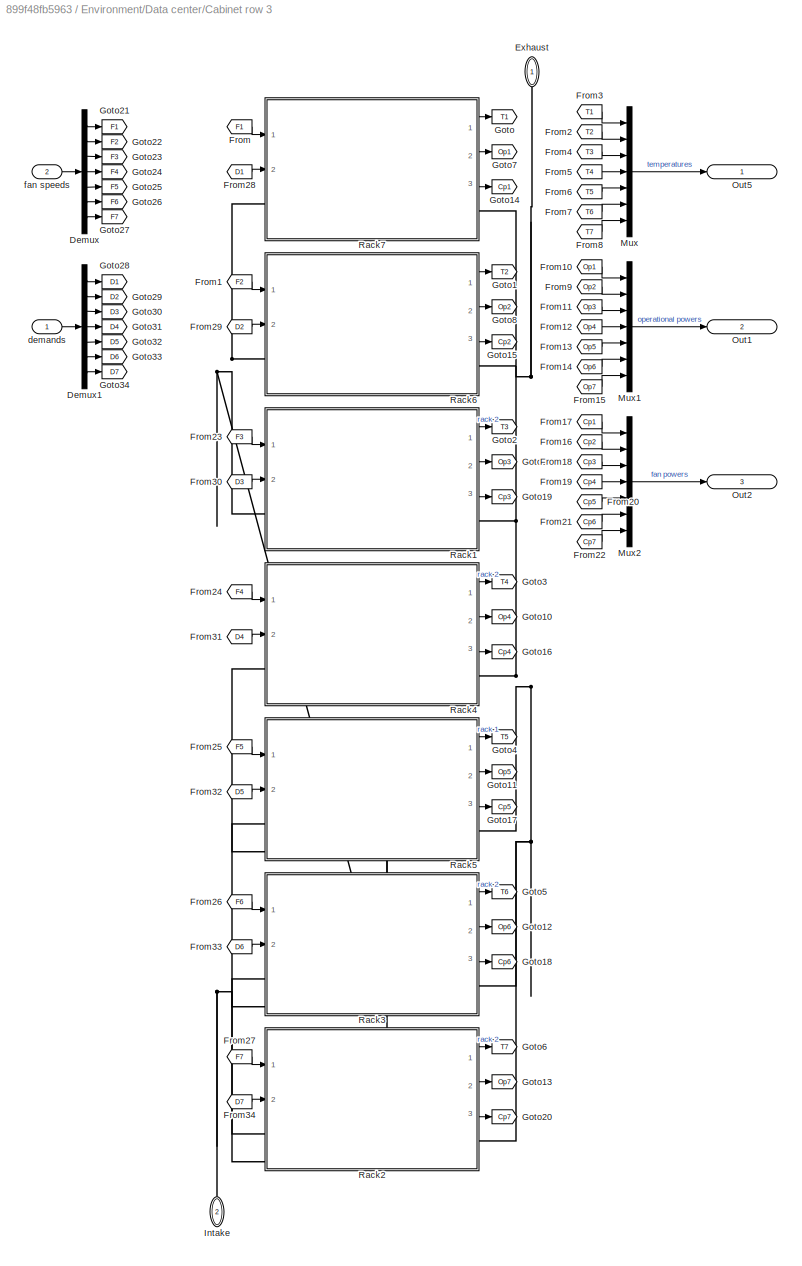
BLOCK [SubSystem] Environment/Data center/Cabinet row 3
  PortSchema = {"entries":[{"content":{"sides":[{"content":{"connectorIds":["LConn1","In1","In2","LConn2"]},"type":"ConnectorPlacement.EquallySpacedRectSide","uuid":"aa64181a-7978-412f-98e9-dcdd97a3c7e3"},{"content":{"connectorIds":["Out1","Out2","Out3"],"side":"RIGHT"},"type":"ConnectorPlacement.EquallySpacedRectSide","uuid":"260fc92a-b2f9-43e3-aafe-e10e980a8ffc"},{"content":{"connectorIds":[],"side":"TOP"},"ty...<+278ch>
  Ports = [2, 3, 0, 0, 0, 2]
  RequestExecContextInheritance = off
BLOCK [Demux] Environment/Data center/Cabinet row 3/Demux
  Outputs = 7
  Ports = [1, 7]
BLOCK [Demux] Environment/Data center/Cabinet row 3/Demux1
  Outputs = 7
  Ports = [1, 7]
BLOCK [PMIOPort] Environment/Data center/Cabinet row 3/Exhaust
  NameLocation = left
  Side = Left
BLOCK [From] Environment/Data center/Cabinet row 3/From
  GotoTag = F1
BLOCK [From] Environment/Data center/Cabinet row 3/From1
  GotoTag = F2
BLOCK [From] Environment/Data center/Cabinet row 3/From10
  GotoTag = Op1
BLOCK [From] Environment/Data center/Cabinet row 3/From11
  GotoTag = Op3
BLOCK [From] Environment/Data center/Cabinet row 3/From12
  GotoTag = Op4
BLOCK [From] Environment/Data center/Cabinet row 3/From13
  GotoTag = Op5
BLOCK [From] Environment/Data center/Cabinet row 3/From14
  GotoTag = Op6
BLOCK [From] Environment/Data center/Cabinet row 3/From15
  GotoTag = Op7
BLOCK [From] Environment/Data center/Cabinet row 3/From16
  GotoTag = Cp2
BLOCK [From] Environment/Data center/Cabinet row 3/From17
  GotoTag = Cp1
BLOCK [From] Environment/Data center/Cabinet row 3/From18
  GotoTag = Cp3
BLOCK [From] Environment/Data center/Cabinet row 3/From19
  GotoTag = Cp4
BLOCK [From] Environment/Data center/Cabinet row 3/From2
  GotoTag = T2
BLOCK [From] Environment/Data center/Cabinet row 3/From20
  GotoTag = Cp5
BLOCK [From] Environment/Data center/Cabinet row 3/From21
  GotoTag = Cp6
BLOCK [From] Environment/Data center/Cabinet row 3/From22
  GotoTag = Cp7
BLOCK [From] Environment/Data center/Cabinet row 3/From23
  GotoTag = F3
BLOCK [From] Environment/Data center/Cabinet row 3/From24
  GotoTag = F4
BLOCK [From] Environment/Data center/Cabinet row 3/From25
  GotoTag = F5
BLOCK [From] Environment/Data center/Cabinet row 3/From26
  GotoTag = F6
BLOCK [From] Environment/Data center/Cabinet row 3/From27
  GotoTag = F7
BLOCK [From] Environment/Data center/Cabinet row 3/From28
  GotoTag = D1
BLOCK [From] Environment/Data center/Cabinet row 3/From29
  GotoTag = D2
BLOCK [From] Environment/Data center/Cabinet row 3/From3
  GotoTag = T1
BLOCK [From] Environment/Data center/Cabinet row 3/From30
  GotoTag = D3
BLOCK [From] Environment/Data center/Cabinet row 3/From31
  GotoTag = D4
BLOCK [From] Environment/Data center/Cabinet row 3/From32
  GotoTag = D5
BLOCK [From] Environment/Data center/Cabinet row 3/From33
  GotoTag = D6
BLOCK [From] Environment/Data center/Cabinet row 3/From34
  GotoTag = D7
BLOCK [From] Environment/Data center/Cabinet row 3/From4
  GotoTag = T3
BLOCK [From] Environment/Data center/Cabinet row 3/From5
  GotoTag = T4
BLOCK [From] Environment/Data center/Cabinet row 3/From6
  GotoTag = T5
BLOCK [From] Environment/Data center/Cabinet row 3/From7
  GotoTag = T6
BLOCK [From] Environment/Data center/Cabinet row 3/From8
  GotoTag = T7
BLOCK [From] Environment/Data center/Cabinet row 3/From9
  GotoTag = Op2
BLOCK [Goto] Environment/Data center/Cabinet row 3/Goto
  GotoTag = T1
BLOCK [Goto] Environment/Data center/Cabinet row 3/Goto1
  GotoTag = T2
BLOCK [Goto] Environment/Data center/Cabinet row 3/Goto10
  GotoTag = Op4
BLOCK [Goto] Environment/Data center/Cabinet row 3/Goto11
  GotoTag = Op5
BLOCK [Goto] Environment/Data center/Cabinet row 3/Goto12
  GotoTag = Op6
BLOCK [Goto] Environment/Data center/Cabinet row 3/Goto13
  GotoTag = Op7
BLOCK [Goto] Environment/Data center/Cabinet row 3/Goto14
  GotoTag = Cp1
BLOCK [Goto] Environment/Data center/Cabinet row 3/Goto15
  GotoTag = Cp2
BLOCK [Goto] Environment/Data center/Cabinet row 3/Goto16
  GotoTag = Cp4
BLOCK [Goto] Environment/Data center/Cabinet row 3/Goto17
  GotoTag = Cp5
BLOCK [Goto] Environment/Data center/Cabinet row 3/Goto18
  GotoTag = Cp6
BLOCK [Goto] Environment/Data center/Cabinet row 3/Goto19
  GotoTag = Cp3
BLOCK [Goto] Environment/Data center/Cabinet row 3/Goto2
  GotoTag = T3
BLOCK [Goto] Environment/Data center/Cabinet row 3/Goto20
  GotoTag = Cp7
BLOCK [Goto] Environment/Data center/Cabinet row 3/Goto21
  GotoTag = F1
BLOCK [Goto] Environment/Data center/Cabinet row 3/Goto22
  GotoTag = F2
BLOCK [Goto] Environment/Data center/Cabinet row 3/Goto23
  GotoTag = F3
BLOCK [Goto] Environment/Data center/Cabinet row 3/Goto24
  GotoTag = F4
BLOCK [Goto] Environment/Data center/Cabinet row 3/Goto25
  GotoTag = F5
BLOCK [Goto] Environment/Data center/Cabinet row 3/Goto26
  GotoTag = F6
BLOCK [Goto] Environment/Data center/Cabinet row 3/Goto27
  GotoTag = F7
BLOCK [Goto] Environment/Data center/Cabinet row 3/Goto28
  GotoTag = D1
BLOCK [Goto] Environment/Data center/Cabinet row 3/Goto29
  GotoTag = D2
BLOCK [Goto] Environment/Data center/Cabinet row 3/Goto3
  GotoTag = T4
BLOCK [Goto] Environment/Data center/Cabinet row 3/Goto30
  GotoTag = D3
BLOCK [Goto] Environment/Data center/Cabinet row 3/Goto31
  GotoTag = D4
BLOCK [Goto] Environment/Data center/Cabinet row 3/Goto32
  GotoTag = D5
BLOCK [Goto] Environment/Data center/Cabinet row 3/Goto33
  GotoTag = D6
BLOCK [Goto] Environment/Data center/Cabinet row 3/Goto34
  GotoTag = D7
BLOCK [Goto] Environment/Data center/Cabinet row 3/Goto4
  GotoTag = T5
BLOCK [Goto] Environment/Data center/Cabinet row 3/Goto5
  GotoTag = T6
BLOCK [Goto] Environment/Data center/Cabinet row 3/Goto6
  GotoTag = T7
BLOCK [Goto] Environment/Data center/Cabinet row 3/Goto7
  GotoTag = Op1
BLOCK [Goto] Environment/Data center/Cabinet row 3/Goto8
  GotoTag = Op2
BLOCK [Goto] Environment/Data center/Cabinet row 3/Goto9
  GotoTag = Op3
BLOCK [PMIOPort] Environment/Data center/Cabinet row 3/Intake
  NameLocation = right
  Port = 2
  Side = Left
BLOCK [Mux] Environment/Data center/Cabinet row 3/Mux
  DisplayOption = bar
  Inputs = 7
  Ports = [7, 1]
BLOCK [Mux] Environment/Data center/Cabinet row 3/Mux1
  DisplayOption = bar
  Inputs = 7
  Ports = [7, 1]
BLOCK [Mux] Environment/Data center/Cabinet row 3/Mux2
  DisplayOption = bar
  Inputs = 7
  Ports = [7, 1]
BLOCK [Outport] Environment/Data center/Cabinet row 3/Out1
  IconDisplay = Signal name
  Port = 2
BLOCK [Outport] Environment/Data center/Cabinet row 3/Out2
  IconDisplay = Signal name
  Port = 3
BLOCK [Outport] Environment/Data center/Cabinet row 3/Out5
  IconDisplay = Signal name
BLOCK [SubSystem] Environment/Data center/Cabinet row 3/Rack1
  Ports = [2, 3, 0, 0, 0, 1, 1]
  RequestExecContextInheritance = off
BLOCK [Reference] Environment/Data center/Cabinet row 3/Rack1/Absolute Reference (MA)1  REF=fl_lib/Moist Air/Elements/Absolute Reference
(MA)
  NameLocation = top
  Ports = [0, 0, 0, 0, 0, 1]
  SourceBlock = fl_lib/Moist Air/Elements/Absolute Reference\n(MA)
  SourceProductBaseCode = SS
  SourceType = Absolute Reference\n(MA)
BLOCK [Reference] Environment/Data center/Cabinet row 3/Rack1/Controlled Volumetric Flow Rate Source (MA)  REF=fl_lib/Moist Air/Sources/Controlled
Volumetric Flow Rate
Source (MA)
  Ports = [0, 0, 0, 0, 0, 2, 1]
  SourceBlock = fl_lib/Moist Air/Sources/Controlled\nVolumetric Flow Rate\nSource (MA)
  SourceProductBaseCode = SS
  SourceType = Controlled\nVolumetric Flow Rate\nSource (MA)
BLOCK [Reference] Environment/Data center/Cabinet row 3/Rack1/Current Sensor  REF=fl_lib/Electrical/Electrical Sensors/Current Sensor
  Ports = [0, 0, 0, 0, 0, 1, 2]
  SourceBlock = fl_lib/Electrical/Electrical Sensors/Current Sensor
  SourceProductBaseCode = SS
  SourceType = Current Sensor
BLOCK [Reference] Environment/Data center/Cabinet row 3/Rack1/DC Voltage Source  REF=fl_lib/Electrical/Electrical Sources/DC Voltage Source
  NameLocation = right
  Ports = [0, 0, 0, 0, 0, 1, 1]
  SourceBlock = fl_lib/Electrical/Electrical Sources/DC Voltage Source
  SourceProductBaseCode = SS
  SourceType = DC Voltage Source
BLOCK [Demux] Environment/Data center/Cabinet row 3/Rack1/Demux
  NameLocation = top
  Outputs = 7
  Ports = [1, 7]
BLOCK [Reference] Environment/Data center/Cabinet row 3/Rack1/Electrical Reference  REF=fl_lib/Electrical/Electrical Elements/Electrical Reference
  NameLocation = right
  Ports = [0, 0, 0, 0, 0, 1]
  SourceBlock = fl_lib/Electrical/Electrical Elements/Electrical Reference
  SourceProductBaseCode = SS
  SourceType = Electrical Reference
BLOCK [PMIOPort] Environment/Data center/Cabinet row 3/Rack1/Exhaust
  Port = 2
  Side = Right
BLOCK [From] Environment/Data center/Cabinet row 3/Rack1/From
  GotoTag = Temp
BLOCK [From] Environment/Data center/Cabinet row 3/Rack1/From1
  GotoTag = Curr
BLOCK [Gain] Environment/Data center/Cabinet row 3/Rack1/Gain
  Gain = 100
BLOCK [Gain] Environment/Data center/Cabinet row 3/Rack1/Gain1
  Gain = 208
BLOCK [Gain] Environment/Data center/Cabinet row 3/Rack1/Gain2
  Gain = 0.83
BLOCK [Goto] Environment/Data center/Cabinet row 3/Rack1/Goto
  GotoTag = Temp
BLOCK [Goto] Environment/Data center/Cabinet row 3/Rack1/Goto1
  GotoTag = Curr
BLOCK [Inport] Environment/Data center/Cabinet row 3/Rack1/In1
  IconDisplay = Signal name
BLOCK [Inport] Environment/Data center/Cabinet row 3/Rack1/In2
  IconDisplay = Signal name
  Port = 2
BLOCK [PMIOPort] Environment/Data center/Cabinet row 3/Rack1/Intake
  Side = Left
BLOCK [SubSystem] Environment/Data center/Cabinet row 3/Rack1/MATLAB Function
  ErrorFcn = Stateflow.Translate.translate
  NameLocation = top
  PermitHierarchicalResolution = ExplicitOnly
  Ports = [1, 1]
  RequestExecContextInheritance = off
  SFBlockType = MATLAB Function
  TreatAsAtomicUnit = on
BLOCK [Demux] Environment/Data center/Cabinet row 3/Rack1/MATLAB Function/ Demux 
  Outputs = 1
  Ports = [1, 1]
BLOCK [S-Function] Environment/Data center/Cabinet row 3/Rack1/MATLAB Function/ SFunction 
  EnableBusSupport = on
  FunctionName = sf_sfun
  PortCounts = [1 2]
  Ports = [1, 2]
  SFcnIsStateOwnerBlock = off
  SFunctionDeploymentMode = off
  Tag = Stateflow S-Function 21
BLOCK [Terminator] Environment/Data center/Cabinet row 3/Rack1/MATLAB Function/ Terminator 
BLOCK [Inport] Environment/Data center/Cabinet row 3/Rack1/MATLAB Function/load
BLOCK [Outport] Environment/Data center/Cabinet row 3/Rack1/MATLAB Function/s
BLOCK [Outport] Environment/Data center/Cabinet row 3/Rack1/Out1
  IconDisplay = Signal name
BLOCK [Outport] Environment/Data center/Cabinet row 3/Rack1/Out2
  IconDisplay = Signal name
  Port = 2
BLOCK [Outport] Environment/Data center/Cabinet row 3/Rack1/Out3
  IconDisplay = Signal name
  Port = 3
BLOCK [Reference] Environment/Data center/Cabinet row 3/Rack1/PS-Simulink Converter2  REF=nesl_utility/PS-Simulink
Converter
  Ports = [0, 1, 0, 0, 0, 1]
  SourceBlock = nesl_utility/PS-Simulink\nConverter
  SourceProductBaseCode = PW,SS
  SourceType = PS-Simulink\nConverter
BLOCK [Reference] Environment/Data center/Cabinet row 3/Rack1/PS-Simulink Converter3  REF=nesl_utility/PS-Simulink
Converter
  Ports = [0, 1, 0, 0, 0, 1]
  SourceBlock = nesl_utility/PS-Simulink\nConverter
  SourceProductBaseCode = PW,SS
  SourceType = PS-Simulink\nConverter
BLOCK [Reference] Environment/Data center/Cabinet row 3/Rack1/PS-Simulink Converter4  REF=nesl_utility/PS-Simulink
Converter
  Ports = [0, 1, 0, 0, 0, 1]
  SourceBlock = nesl_utility/PS-Simulink\nConverter
  SourceProductBaseCode = PW,SS
  SourceType = PS-Simulink\nConverter
BLOCK [Reference] Environment/Data center/Cabinet row 3/Rack1/PS-Simulink Converter5  REF=nesl_utility/PS-Simulink
Converter
  Ports = [0, 1, 0, 0, 0, 1]
  SourceBlock = nesl_utility/PS-Simulink\nConverter
  SourceProductBaseCode = PW,SS
  SourceType = PS-Simulink\nConverter
BLOCK [Reference] Environment/Data center/Cabinet row 3/Rack1/Pipe (MA)  REF=fl_lib/Moist Air/Elements/Pipe (MA)
  Ports = [0, 0, 0, 0, 0, 2, 3]
  SourceBlock = fl_lib/Moist Air/Elements/Pipe (MA)
  SourceProductBaseCode = SS
  SourceType = Pipe (MA)
BLOCK [Reference] Environment/Data center/Cabinet row 3/Rack1/Pressure & Temperature Sensor (MA)1  REF=fl_lib/Moist Air/Sensors/Pressure &
Temperature Sensor
(MA)
  Ports = [0, 0, 0, 0, 0, 1, 3]
  SourceBlock = fl_lib/Moist Air/Sensors/Pressure &\nTemperature Sensor\n(MA)
  SourceProductBaseCode = SS
  SourceType = Pressure &\nTemperature Sensor\n(MA)
BLOCK [Saturate] Environment/Data center/Cabinet row 3/Rack1/Saturation
  LowerLimit = 0.01
  UpperLimit = 0.99
BLOCK [Scope] Environment/Data center/Cabinet row 3/Rack1/Scope
  Floating = off
  NumInputPorts = 3
  Ports = [3]
BLOCK [Scope] Environment/Data center/Cabinet row 3/Rack1/Scope2
  Floating = off
  NumInputPorts = 2
  Ports = [2]
BLOCK [Reference] Environment/Data center/Cabinet row 3/Rack1/Simulink-PS Converter  REF=nesl_utility/Simulink-PS
Converter
  NameLocation = top
  Ports = [1, 0, 0, 0, 0, 0, 1]
  SourceBlock = nesl_utility/Simulink-PS\nConverter
  SourceProductBaseCode = PW,SS
  SourceType = Simulink-PS\nConverter
BLOCK [Reference] Environment/Data center/Cabinet row 3/Rack1/Simulink-PS Converter1  REF=nesl_utility/Simulink-PS
Converter
  NameLocation = top
  Ports = [1, 0, 0, 0, 0, 0, 1]
  SourceBlock = nesl_utility/Simulink-PS\nConverter
  SourceProductBaseCode = PW,SS
  SourceType = Simulink-PS\nConverter
BLOCK [Reference] Environment/Data center/Cabinet row 3/Rack1/Simulink-PS Converter2  REF=nesl_utility/Simulink-PS
Converter
  NameLocation = top
  Ports = [1, 0, 0, 0, 0, 0, 1]
  SourceBlock = nesl_utility/Simulink-PS\nConverter
  SourceProductBaseCode = PW,SS
  SourceType = Simulink-PS\nConverter
BLOCK [Reference] Environment/Data center/Cabinet row 3/Rack1/Simulink-PS Converter3  REF=nesl_utility/Simulink-PS
Converter
  NameLocation = top
  Ports = [1, 0, 0, 0, 0, 0, 1]
  SourceBlock = nesl_utility/Simulink-PS\nConverter
  SourceProductBaseCode = PW,SS
  SourceType = Simulink-PS\nConverter
BLOCK [Reference] Environment/Data center/Cabinet row 3/Rack1/Simulink-PS Converter4  REF=nesl_utility/Simulink-PS
Converter
  NameLocation = top
  Ports = [1, 0, 0, 0, 0, 0, 1]
  SourceBlock = nesl_utility/Simulink-PS\nConverter
  SourceProductBaseCode = PW,SS
  SourceType = Simulink-PS\nConverter
BLOCK [Reference] Environment/Data center/Cabinet row 3/Rack1/Simulink-PS Converter5  REF=nesl_utility/Simulink-PS
Converter
  NameLocation = top
  Ports = [1, 0, 0, 0, 0, 0, 1]
  SourceBlock = nesl_utility/Simulink-PS\nConverter
  SourceProductBaseCode = PW,SS
  SourceType = Simulink-PS\nConverter
BLOCK [Reference] Environment/Data center/Cabinet row 3/Rack1/Simulink-PS Converter6  REF=nesl_utility/Simulink-PS
Converter
  NameLocation = top
  Ports = [1, 0, 0, 0, 0, 0, 1]
  SourceBlock = nesl_utility/Simulink-PS\nConverter
  SourceProductBaseCode = PW,SS
  SourceType = Simulink-PS\nConverter
BLOCK [Reference] Environment/Data center/Cabinet row 3/Rack1/Simulink-PS Converter7  REF=nesl_utility/Simulink-PS
Converter
  Ports = [1, 0, 0, 0, 0, 0, 1]
  SourceBlock = nesl_utility/Simulink-PS\nConverter
  SourceProductBaseCode = PW,SS
  SourceType = Simulink-PS\nConverter
BLOCK [Reference] Environment/Data center/Cabinet row 3/Rack1/Switch  REF=fl_lib/Electrical/Electrical Elements/Switch
  Ports = [0, 0, 0, 0, 0, 1, 2]
  SourceBlock = fl_lib/Electrical/Electrical Elements/Switch
  SourceProductBaseCode = SS
  SourceType = Switch
BLOCK [Reference] Environment/Data center/Cabinet row 3/Rack1/Switch1  REF=fl_lib/Electrical/Electrical Elements/Switch
  Ports = [0, 0, 0, 0, 0, 1, 2]
  SourceBlock = fl_lib/Electrical/Electrical Elements/Switch
  SourceProductBaseCode = SS
  SourceType = Switch
BLOCK [Reference] Environment/Data center/Cabinet row 3/Rack1/Switch2  REF=fl_lib/Electrical/Electrical Elements/Switch
  Ports = [0, 0, 0, 0, 0, 1, 2]
  SourceBlock = fl_lib/Electrical/Electrical Elements/Switch
  SourceProductBaseCode = SS
  SourceType = Switch
BLOCK [Reference] Environment/Data center/Cabinet row 3/Rack1/Switch3  REF=fl_lib/Electrical/Electrical Elements/Switch
  Ports = [0, 0, 0, 0, 0, 1, 2]
  SourceBlock = fl_lib/Electrical/Electrical Elements/Switch
  SourceProductBaseCode = SS
  SourceType = Switch
BLOCK [Reference] Environment/Data center/Cabinet row 3/Rack1/Switch4  REF=fl_lib/Electrical/Electrical Elements/Switch
  Ports = [0, 0, 0, 0, 0, 1, 2]
  SourceBlock = fl_lib/Electrical/Electrical Elements/Switch
  SourceProductBaseCode = SS
  SourceType = Switch
BLOCK [Reference] Environment/Data center/Cabinet row 3/Rack1/Switch5  REF=fl_lib/Electrical/Electrical Elements/Switch
  Ports = [0, 0, 0, 0, 0, 1, 2]
  SourceBlock = fl_lib/Electrical/Electrical Elements/Switch
  SourceProductBaseCode = SS
  SourceType = Switch
BLOCK [Reference] Environment/Data center/Cabinet row 3/Rack1/Switch6  REF=fl_lib/Electrical/Electrical Elements/Switch
  Ports = [0, 0, 0, 0, 0, 1, 2]
  SourceBlock = fl_lib/Electrical/Electrical Elements/Switch
  SourceProductBaseCode = SS
  SourceType = Switch
BLOCK [Reference] Environment/Data center/Cabinet row 3/Rack1/Temperature Sensor  REF=fl_lib/Thermal/Thermal Sensors/Temperature Sensor
  Ports = [0, 0, 0, 0, 0, 1, 2]
  SourceBlock = fl_lib/Thermal/Thermal Sensors/Temperature Sensor
  SourceProductBaseCode = SS
  SourceType = Temperature Sensor
BLOCK [Reference] Environment/Data center/Cabinet row 3/Rack1/Thermal Mass  REF=fl_lib/Thermal/Thermal Elements/Thermal Mass
  Ports = [0, 0, 0, 0, 0, 1]
  SourceBlock = fl_lib/Thermal/Thermal Elements/Thermal Mass
  SourceProductBaseCode = SS
  SourceType = Thermal Mass
BLOCK [Reference] Environment/Data center/Cabinet row 3/Rack1/Thermal Reference  REF=fl_lib/Thermal/Thermal Elements/Thermal Reference
  NameLocation = left
  Ports = [0, 0, 0, 0, 0, 1]
  SourceBlock = fl_lib/Thermal/Thermal Elements/Thermal Reference
  SourceProductBaseCode = SS
  SourceType = Thermal Reference
BLOCK [Reference] Environment/Data center/Cabinet row 3/Rack1/Thermal Resistor  REF=fl_lib/Electrical/Electrical Elements/Thermal Resistor
  NameLocation = left
  Ports = [0, 0, 0, 0, 0, 2, 1]
  SourceBlock = fl_lib/Electrical/Electrical Elements/Thermal Resistor
  SourceProductBaseCode = SS
  SourceType = Thermal Resistor
BLOCK [Reference] Environment/Data center/Cabinet row 3/Rack1/Thermal Resistor1  REF=fl_lib/Electrical/Electrical Elements/Thermal Resistor
  NameLocation = left
  Ports = [0, 0, 0, 0, 0, 2, 1]
  SourceBlock = fl_lib/Electrical/Electrical Elements/Thermal Resistor
  SourceProductBaseCode = SS
  SourceType = Thermal Resistor
BLOCK [Reference] Environment/Data center/Cabinet row 3/Rack1/Thermal Resistor3  REF=fl_lib/Electrical/Electrical Elements/Thermal Resistor
  NameLocation = left
  Ports = [0, 0, 0, 0, 0, 2, 1]
  SourceBlock = fl_lib/Electrical/Electrical Elements/Thermal Resistor
  SourceProductBaseCode = SS
  SourceType = Thermal Resistor
BLOCK [Reference] Environment/Data center/Cabinet row 3/Rack1/Thermal Resistor4  REF=fl_lib/Electrical/Electrical Elements/Thermal Resistor
  NameLocation = left
  Ports = [0, 0, 0, 0, 0, 2, 1]
  SourceBlock = fl_lib/Electrical/Electrical Elements/Thermal Resistor
  SourceProductBaseCode = SS
  SourceType = Thermal Resistor
BLOCK [Reference] Environment/Data center/Cabinet row 3/Rack1/Thermal Resistor5  REF=fl_lib/Electrical/Electrical Elements/Thermal Resistor
  NameLocation = left
  Ports = [0, 0, 0, 0, 0, 2, 1]
  SourceBlock = fl_lib/Electrical/Electrical Elements/Thermal Resistor
  SourceProductBaseCode = SS
  SourceType = Thermal Resistor
BLOCK [Reference] Environment/Data center/Cabinet row 3/Rack1/Thermal Resistor6  REF=fl_lib/Electrical/Electrical Elements/Thermal Resistor
  NameLocation = left
  Ports = [0, 0, 0, 0, 0, 2, 1]
  SourceBlock = fl_lib/Electrical/Electrical Elements/Thermal Resistor
  SourceProductBaseCode = SS
  SourceType = Thermal Resistor
BLOCK [Reference] Environment/Data center/Cabinet row 3/Rack1/Thermal Resistor7  REF=fl_lib/Electrical/Electrical Elements/Thermal Resistor
  NameLocation = left
  Ports = [0, 0, 0, 0, 0, 2, 1]
  SourceBlock = fl_lib/Electrical/Electrical Elements/Thermal Resistor
  SourceProductBaseCode = SS
  SourceType = Thermal Resistor
BLOCK [Reference] Environment/Data center/Cabinet row 3/Rack1/Thermal Resistor8  REF=fl_lib/Electrical/Electrical Elements/Thermal Resistor
  NameLocation = left
  Ports = [0, 0, 0, 0, 0, 2, 1]
  SourceBlock = fl_lib/Electrical/Electrical Elements/Thermal Resistor
  SourceProductBaseCode = SS
  SourceType = Thermal Resistor
BLOCK [SubSystem] Environment/Data center/Cabinet row 3/Rack2
  Ports = [2, 3, 0, 0, 0, 1, 1]
  RequestExecContextInheritance = off
BLOCK [Reference] Environment/Data center/Cabinet row 3/Rack2/Absolute Reference (MA)1  REF=fl_lib/Moist Air/Elements/Absolute Reference
(MA)
  NameLocation = top
  Ports = [0, 0, 0, 0, 0, 1]
  SourceBlock = fl_lib/Moist Air/Elements/Absolute Reference\n(MA)
  SourceProductBaseCode = SS
  SourceType = Absolute Reference\n(MA)
BLOCK [Reference] Environment/Data center/Cabinet row 3/Rack2/Controlled Volumetric Flow Rate Source (MA)  REF=fl_lib/Moist Air/Sources/Controlled
Volumetric Flow Rate
Source (MA)
  Ports = [0, 0, 0, 0, 0, 2, 1]
  SourceBlock = fl_lib/Moist Air/Sources/Controlled\nVolumetric Flow Rate\nSource (MA)
  SourceProductBaseCode = SS
  SourceType = Controlled\nVolumetric Flow Rate\nSource (MA)
BLOCK [Reference] Environment/Data center/Cabinet row 3/Rack2/Current Sensor  REF=fl_lib/Electrical/Electrical Sensors/Current Sensor
  Ports = [0, 0, 0, 0, 0, 1, 2]
  SourceBlock = fl_lib/Electrical/Electrical Sensors/Current Sensor
  SourceProductBaseCode = SS
  SourceType = Current Sensor
BLOCK [Reference] Environment/Data center/Cabinet row 3/Rack2/DC Voltage Source  REF=fl_lib/Electrical/Electrical Sources/DC Voltage Source
  NameLocation = right
  Ports = [0, 0, 0, 0, 0, 1, 1]
  SourceBlock = fl_lib/Electrical/Electrical Sources/DC Voltage Source
  SourceProductBaseCode = SS
  SourceType = DC Voltage Source
BLOCK [Demux] Environment/Data center/Cabinet row 3/Rack2/Demux
  NameLocation = top
  Outputs = 7
  Ports = [1, 7]
BLOCK [Reference] Environment/Data center/Cabinet row 3/Rack2/Electrical Reference  REF=fl_lib/Electrical/Electrical Elements/Electrical Reference
  NameLocation = right
  Ports = [0, 0, 0, 0, 0, 1]
  SourceBlock = fl_lib/Electrical/Electrical Elements/Electrical Reference
  SourceProductBaseCode = SS
  SourceType = Electrical Reference
BLOCK [PMIOPort] Environment/Data center/Cabinet row 3/Rack2/Exhaust
  Port = 2
  Side = Right
BLOCK [From] Environment/Data center/Cabinet row 3/Rack2/From
  GotoTag = Temp
BLOCK [From] Environment/Data center/Cabinet row 3/Rack2/From1
  GotoTag = Curr
BLOCK [Gain] Environment/Data center/Cabinet row 3/Rack2/Gain
  Gain = 100
BLOCK [Gain] Environment/Data center/Cabinet row 3/Rack2/Gain1
  Gain = 208
BLOCK [Gain] Environment/Data center/Cabinet row 3/Rack2/Gain2
  Gain = 0.83
BLOCK [Goto] Environment/Data center/Cabinet row 3/Rack2/Goto
  GotoTag = Temp
BLOCK [Goto] Environment/Data center/Cabinet row 3/Rack2/Goto1
  GotoTag = Curr
BLOCK [Inport] Environment/Data center/Cabinet row 3/Rack2/In1
  IconDisplay = Signal name
BLOCK [Inport] Environment/Data center/Cabinet row 3/Rack2/In2
  IconDisplay = Signal name
  Port = 2
BLOCK [PMIOPort] Environment/Data center/Cabinet row 3/Rack2/Intake
  Side = Left
BLOCK [SubSystem] Environment/Data center/Cabinet row 3/Rack2/MATLAB Function
  ErrorFcn = Stateflow.Translate.translate
  NameLocation = top
  PermitHierarchicalResolution = ExplicitOnly
  Ports = [1, 1]
  RequestExecContextInheritance = off
  SFBlockType = MATLAB Function
  TreatAsAtomicUnit = on
BLOCK [Demux] Environment/Data center/Cabinet row 3/Rack2/MATLAB Function/ Demux 
  Outputs = 1
  Ports = [1, 1]
BLOCK [S-Function] Environment/Data center/Cabinet row 3/Rack2/MATLAB Function/ SFunction 
  EnableBusSupport = on
  FunctionName = sf_sfun
  PortCounts = [1 2]
  Ports = [1, 2]
  SFcnIsStateOwnerBlock = off
  SFunctionDeploymentMode = off
  Tag = Stateflow S-Function 22
BLOCK [Terminator] Environment/Data center/Cabinet row 3/Rack2/MATLAB Function/ Terminator 
BLOCK [Inport] Environment/Data center/Cabinet row 3/Rack2/MATLAB Function/load
BLOCK [Outport] Environment/Data center/Cabinet row 3/Rack2/MATLAB Function/s
BLOCK [Outport] Environment/Data center/Cabinet row 3/Rack2/Out1
  IconDisplay = Signal name
BLOCK [Outport] Environment/Data center/Cabinet row 3/Rack2/Out2
  IconDisplay = Signal name
  Port = 2
BLOCK [Outport] Environment/Data center/Cabinet row 3/Rack2/Out3
  IconDisplay = Signal name
  Port = 3
BLOCK [Reference] Environment/Data center/Cabinet row 3/Rack2/PS-Simulink Converter2  REF=nesl_utility/PS-Simulink
Converter
  Ports = [0, 1, 0, 0, 0, 1]
  SourceBlock = nesl_utility/PS-Simulink\nConverter
  SourceProductBaseCode = PW,SS
  SourceType = PS-Simulink\nConverter
BLOCK [Reference] Environment/Data center/Cabinet row 3/Rack2/PS-Simulink Converter3  REF=nesl_utility/PS-Simulink
Converter
  Ports = [0, 1, 0, 0, 0, 1]
  SourceBlock = nesl_utility/PS-Simulink\nConverter
  SourceProductBaseCode = PW,SS
  SourceType = PS-Simulink\nConverter
BLOCK [Reference] Environment/Data center/Cabinet row 3/Rack2/PS-Simulink Converter4  REF=nesl_utility/PS-Simulink
Converter
  Ports = [0, 1, 0, 0, 0, 1]
  SourceBlock = nesl_utility/PS-Simulink\nConverter
  SourceProductBaseCode = PW,SS
  SourceType = PS-Simulink\nConverter
BLOCK [Reference] Environment/Data center/Cabinet row 3/Rack2/PS-Simulink Converter5  REF=nesl_utility/PS-Simulink
Converter
  Ports = [0, 1, 0, 0, 0, 1]
  SourceBlock = nesl_utility/PS-Simulink\nConverter
  SourceProductBaseCode = PW,SS
  SourceType = PS-Simulink\nConverter
BLOCK [Reference] Environment/Data center/Cabinet row 3/Rack2/Pipe (MA)  REF=fl_lib/Moist Air/Elements/Pipe (MA)
  Ports = [0, 0, 0, 0, 0, 2, 3]
  SourceBlock = fl_lib/Moist Air/Elements/Pipe (MA)
  SourceProductBaseCode = SS
  SourceType = Pipe (MA)
BLOCK [Reference] Environment/Data center/Cabinet row 3/Rack2/Pressure & Temperature Sensor (MA)1  REF=fl_lib/Moist Air/Sensors/Pressure &
Temperature Sensor
(MA)
  Ports = [0, 0, 0, 0, 0, 1, 3]
  SourceBlock = fl_lib/Moist Air/Sensors/Pressure &\nTemperature Sensor\n(MA)
  SourceProductBaseCode = SS
  SourceType = Pressure &\nTemperature Sensor\n(MA)
BLOCK [Saturate] Environment/Data center/Cabinet row 3/Rack2/Saturation
  LowerLimit = 0.01
  UpperLimit = 0.99
BLOCK [Scope] Environment/Data center/Cabinet row 3/Rack2/Scope
  Floating = off
  NumInputPorts = 3
  Ports = [3]
BLOCK [Scope] Environment/Data center/Cabinet row 3/Rack2/Scope2
  Floating = off
  NumInputPorts = 2
  Ports = [2]
BLOCK [Reference] Environment/Data center/Cabinet row 3/Rack2/Simulink-PS Converter  REF=nesl_utility/Simulink-PS
Converter
  NameLocation = top
  Ports = [1, 0, 0, 0, 0, 0, 1]
  SourceBlock = nesl_utility/Simulink-PS\nConverter
  SourceProductBaseCode = PW,SS
  SourceType = Simulink-PS\nConverter
BLOCK [Reference] Environment/Data center/Cabinet row 3/Rack2/Simulink-PS Converter1  REF=nesl_utility/Simulink-PS
Converter
  NameLocation = top
  Ports = [1, 0, 0, 0, 0, 0, 1]
  SourceBlock = nesl_utility/Simulink-PS\nConverter
  SourceProductBaseCode = PW,SS
  SourceType = Simulink-PS\nConverter
BLOCK [Reference] Environment/Data center/Cabinet row 3/Rack2/Simulink-PS Converter2  REF=nesl_utility/Simulink-PS
Converter
  NameLocation = top
  Ports = [1, 0, 0, 0, 0, 0, 1]
  SourceBlock = nesl_utility/Simulink-PS\nConverter
  SourceProductBaseCode = PW,SS
  SourceType = Simulink-PS\nConverter
BLOCK [Reference] Environment/Data center/Cabinet row 3/Rack2/Simulink-PS Converter3  REF=nesl_utility/Simulink-PS
Converter
  NameLocation = top
  Ports = [1, 0, 0, 0, 0, 0, 1]
  SourceBlock = nesl_utility/Simulink-PS\nConverter
  SourceProductBaseCode = PW,SS
  SourceType = Simulink-PS\nConverter
BLOCK [Reference] Environment/Data center/Cabinet row 3/Rack2/Simulink-PS Converter4  REF=nesl_utility/Simulink-PS
Converter
  NameLocation = top
  Ports = [1, 0, 0, 0, 0, 0, 1]
  SourceBlock = nesl_utility/Simulink-PS\nConverter
  SourceProductBaseCode = PW,SS
  SourceType = Simulink-PS\nConverter
BLOCK [Reference] Environment/Data center/Cabinet row 3/Rack2/Simulink-PS Converter5  REF=nesl_utility/Simulink-PS
Converter
  NameLocation = top
  Ports = [1, 0, 0, 0, 0, 0, 1]
  SourceBlock = nesl_utility/Simulink-PS\nConverter
  SourceProductBaseCode = PW,SS
  SourceType = Simulink-PS\nConverter
BLOCK [Reference] Environment/Data center/Cabinet row 3/Rack2/Simulink-PS Converter6  REF=nesl_utility/Simulink-PS
Converter
  NameLocation = top
  Ports = [1, 0, 0, 0, 0, 0, 1]
  SourceBlock = nesl_utility/Simulink-PS\nConverter
  SourceProductBaseCode = PW,SS
  SourceType = Simulink-PS\nConverter
BLOCK [Reference] Environment/Data center/Cabinet row 3/Rack2/Simulink-PS Converter7  REF=nesl_utility/Simulink-PS
Converter
  Ports = [1, 0, 0, 0, 0, 0, 1]
  SourceBlock = nesl_utility/Simulink-PS\nConverter
  SourceProductBaseCode = PW,SS
  SourceType = Simulink-PS\nConverter
BLOCK [Reference] Environment/Data center/Cabinet row 3/Rack2/Switch  REF=fl_lib/Electrical/Electrical Elements/Switch
  Ports = [0, 0, 0, 0, 0, 1, 2]
  SourceBlock = fl_lib/Electrical/Electrical Elements/Switch
  SourceProductBaseCode = SS
  SourceType = Switch
BLOCK [Reference] Environment/Data center/Cabinet row 3/Rack2/Switch1  REF=fl_lib/Electrical/Electrical Elements/Switch
  Ports = [0, 0, 0, 0, 0, 1, 2]
  SourceBlock = fl_lib/Electrical/Electrical Elements/Switch
  SourceProductBaseCode = SS
  SourceType = Switch
BLOCK [Reference] Environment/Data center/Cabinet row 3/Rack2/Switch2  REF=fl_lib/Electrical/Electrical Elements/Switch
  Ports = [0, 0, 0, 0, 0, 1, 2]
  SourceBlock = fl_lib/Electrical/Electrical Elements/Switch
  SourceProductBaseCode = SS
  SourceType = Switch
BLOCK [Reference] Environment/Data center/Cabinet row 3/Rack2/Switch3  REF=fl_lib/Electrical/Electrical Elements/Switch
  Ports = [0, 0, 0, 0, 0, 1, 2]
  SourceBlock = fl_lib/Electrical/Electrical Elements/Switch
  SourceProductBaseCode = SS
  SourceType = Switch
BLOCK [Reference] Environment/Data center/Cabinet row 3/Rack2/Switch4  REF=fl_lib/Electrical/Electrical Elements/Switch
  Ports = [0, 0, 0, 0, 0, 1, 2]
  SourceBlock = fl_lib/Electrical/Electrical Elements/Switch
  SourceProductBaseCode = SS
  SourceType = Switch
BLOCK [Reference] Environment/Data center/Cabinet row 3/Rack2/Switch5  REF=fl_lib/Electrical/Electrical Elements/Switch
  Ports = [0, 0, 0, 0, 0, 1, 2]
  SourceBlock = fl_lib/Electrical/Electrical Elements/Switch
  SourceProductBaseCode = SS
  SourceType = Switch
BLOCK [Reference] Environment/Data center/Cabinet row 3/Rack2/Switch6  REF=fl_lib/Electrical/Electrical Elements/Switch
  Ports = [0, 0, 0, 0, 0, 1, 2]
  SourceBlock = fl_lib/Electrical/Electrical Elements/Switch
  SourceProductBaseCode = SS
  SourceType = Switch
BLOCK [Reference] Environment/Data center/Cabinet row 3/Rack2/Temperature Sensor  REF=fl_lib/Thermal/Thermal Sensors/Temperature Sensor
  Ports = [0, 0, 0, 0, 0, 1, 2]
  SourceBlock = fl_lib/Thermal/Thermal Sensors/Temperature Sensor
  SourceProductBaseCode = SS
  SourceType = Temperature Sensor
BLOCK [Reference] Environment/Data center/Cabinet row 3/Rack2/Thermal Mass  REF=fl_lib/Thermal/Thermal Elements/Thermal Mass
  Ports = [0, 0, 0, 0, 0, 1]
  SourceBlock = fl_lib/Thermal/Thermal Elements/Thermal Mass
  SourceProductBaseCode = SS
  SourceType = Thermal Mass
BLOCK [Reference] Environment/Data center/Cabinet row 3/Rack2/Thermal Reference  REF=fl_lib/Thermal/Thermal Elements/Thermal Reference
  NameLocation = left
  Ports = [0, 0, 0, 0, 0, 1]
  SourceBlock = fl_lib/Thermal/Thermal Elements/Thermal Reference
  SourceProductBaseCode = SS
  SourceType = Thermal Reference
BLOCK [Reference] Environment/Data center/Cabinet row 3/Rack2/Thermal Resistor  REF=fl_lib/Electrical/Electrical Elements/Thermal Resistor
  NameLocation = left
  Ports = [0, 0, 0, 0, 0, 2, 1]
  SourceBlock = fl_lib/Electrical/Electrical Elements/Thermal Resistor
  SourceProductBaseCode = SS
  SourceType = Thermal Resistor
BLOCK [Reference] Environment/Data center/Cabinet row 3/Rack2/Thermal Resistor1  REF=fl_lib/Electrical/Electrical Elements/Thermal Resistor
  NameLocation = left
  Ports = [0, 0, 0, 0, 0, 2, 1]
  SourceBlock = fl_lib/Electrical/Electrical Elements/Thermal Resistor
  SourceProductBaseCode = SS
  SourceType = Thermal Resistor
BLOCK [Reference] Environment/Data center/Cabinet row 3/Rack2/Thermal Resistor3  REF=fl_lib/Electrical/Electrical Elements/Thermal Resistor
  NameLocation = left
  Ports = [0, 0, 0, 0, 0, 2, 1]
  SourceBlock = fl_lib/Electrical/Electrical Elements/Thermal Resistor
  SourceProductBaseCode = SS
  SourceType = Thermal Resistor
BLOCK [Reference] Environment/Data center/Cabinet row 3/Rack2/Thermal Resistor4  REF=fl_lib/Electrical/Electrical Elements/Thermal Resistor
  NameLocation = left
  Ports = [0, 0, 0, 0, 0, 2, 1]
  SourceBlock = fl_lib/Electrical/Electrical Elements/Thermal Resistor
  SourceProductBaseCode = SS
  SourceType = Thermal Resistor
BLOCK [Reference] Environment/Data center/Cabinet row 3/Rack2/Thermal Resistor5  REF=fl_lib/Electrical/Electrical Elements/Thermal Resistor
  NameLocation = left
  Ports = [0, 0, 0, 0, 0, 2, 1]
  SourceBlock = fl_lib/Electrical/Electrical Elements/Thermal Resistor
  SourceProductBaseCode = SS
  SourceType = Thermal Resistor
BLOCK [Reference] Environment/Data center/Cabinet row 3/Rack2/Thermal Resistor6  REF=fl_lib/Electrical/Electrical Elements/Thermal Resistor
  NameLocation = left
  Ports = [0, 0, 0, 0, 0, 2, 1]
  SourceBlock = fl_lib/Electrical/Electrical Elements/Thermal Resistor
  SourceProductBaseCode = SS
  SourceType = Thermal Resistor
BLOCK [Reference] Environment/Data center/Cabinet row 3/Rack2/Thermal Resistor7  REF=fl_lib/Electrical/Electrical Elements/Thermal Resistor
  NameLocation = left
  Ports = [0, 0, 0, 0, 0, 2, 1]
  SourceBlock = fl_lib/Electrical/Electrical Elements/Thermal Resistor
  SourceProductBaseCode = SS
  SourceType = Thermal Resistor
BLOCK [Reference] Environment/Data center/Cabinet row 3/Rack2/Thermal Resistor8  REF=fl_lib/Electrical/Electrical Elements/Thermal Resistor
  NameLocation = left
  Ports = [0, 0, 0, 0, 0, 2, 1]
  SourceBlock = fl_lib/Electrical/Electrical Elements/Thermal Resistor
  SourceProductBaseCode = SS
  SourceType = Thermal Resistor
BLOCK [SubSystem] Environment/Data center/Cabinet row 3/Rack3
  Ports = [2, 3, 0, 0, 0, 1, 1]
  RequestExecContextInheritance = off
BLOCK [Reference] Environment/Data center/Cabinet row 3/Rack3/Absolute Reference (MA)1  REF=fl_lib/Moist Air/Elements/Absolute Reference
(MA)
  NameLocation = top
  Ports = [0, 0, 0, 0, 0, 1]
  SourceBlock = fl_lib/Moist Air/Elements/Absolute Reference\n(MA)
  SourceProductBaseCode = SS
  SourceType = Absolute Reference\n(MA)
BLOCK [Reference] Environment/Data center/Cabinet row 3/Rack3/Controlled Volumetric Flow Rate Source (MA)  REF=fl_lib/Moist Air/Sources/Controlled
Volumetric Flow Rate
Source (MA)
  Ports = [0, 0, 0, 0, 0, 2, 1]
  SourceBlock = fl_lib/Moist Air/Sources/Controlled\nVolumetric Flow Rate\nSource (MA)
  SourceProductBaseCode = SS
  SourceType = Controlled\nVolumetric Flow Rate\nSource (MA)
BLOCK [Reference] Environment/Data center/Cabinet row 3/Rack3/Current Sensor  REF=fl_lib/Electrical/Electrical Sensors/Current Sensor
  Ports = [0, 0, 0, 0, 0, 1, 2]
  SourceBlock = fl_lib/Electrical/Electrical Sensors/Current Sensor
  SourceProductBaseCode = SS
  SourceType = Current Sensor
BLOCK [Reference] Environment/Data center/Cabinet row 3/Rack3/DC Voltage Source  REF=fl_lib/Electrical/Electrical Sources/DC Voltage Source
  NameLocation = right
  Ports = [0, 0, 0, 0, 0, 1, 1]
  SourceBlock = fl_lib/Electrical/Electrical Sources/DC Voltage Source
  SourceProductBaseCode = SS
  SourceType = DC Voltage Source
BLOCK [Demux] Environment/Data center/Cabinet row 3/Rack3/Demux
  NameLocation = top
  Outputs = 7
  Ports = [1, 7]
BLOCK [Reference] Environment/Data center/Cabinet row 3/Rack3/Electrical Reference  REF=fl_lib/Electrical/Electrical Elements/Electrical Reference
  NameLocation = right
  Ports = [0, 0, 0, 0, 0, 1]
  SourceBlock = fl_lib/Electrical/Electrical Elements/Electrical Reference
  SourceProductBaseCode = SS
  SourceType = Electrical Reference
BLOCK [PMIOPort] Environment/Data center/Cabinet row 3/Rack3/Exhaust
  Port = 2
  Side = Right
BLOCK [From] Environment/Data center/Cabinet row 3/Rack3/From
  GotoTag = Temp
BLOCK [From] Environment/Data center/Cabinet row 3/Rack3/From1
  GotoTag = Curr
BLOCK [Gain] Environment/Data center/Cabinet row 3/Rack3/Gain
  Gain = 100
BLOCK [Gain] Environment/Data center/Cabinet row 3/Rack3/Gain1
  Gain = 208
BLOCK [Gain] Environment/Data center/Cabinet row 3/Rack3/Gain2
  Gain = 0.83
BLOCK [Goto] Environment/Data center/Cabinet row 3/Rack3/Goto
  GotoTag = Temp
BLOCK [Goto] Environment/Data center/Cabinet row 3/Rack3/Goto1
  GotoTag = Curr
BLOCK [Inport] Environment/Data center/Cabinet row 3/Rack3/In1
  IconDisplay = Signal name
BLOCK [Inport] Environment/Data center/Cabinet row 3/Rack3/In2
  IconDisplay = Signal name
  Port = 2
BLOCK [PMIOPort] Environment/Data center/Cabinet row 3/Rack3/Intake
  Side = Left
BLOCK [SubSystem] Environment/Data center/Cabinet row 3/Rack3/MATLAB Function
  ErrorFcn = Stateflow.Translate.translate
  NameLocation = top
  PermitHierarchicalResolution = ExplicitOnly
  Ports = [1, 1]
  RequestExecContextInheritance = off
  SFBlockType = MATLAB Function
  TreatAsAtomicUnit = on
BLOCK [Demux] Environment/Data center/Cabinet row 3/Rack3/MATLAB Function/ Demux 
  Outputs = 1
  Ports = [1, 1]
BLOCK [S-Function] Environment/Data center/Cabinet row 3/Rack3/MATLAB Function/ SFunction 
  EnableBusSupport = on
  FunctionName = sf_sfun
  PortCounts = [1 2]
  Ports = [1, 2]
  SFcnIsStateOwnerBlock = off
  SFunctionDeploymentMode = off
  Tag = Stateflow S-Function 23
BLOCK [Terminator] Environment/Data center/Cabinet row 3/Rack3/MATLAB Function/ Terminator 
BLOCK [Inport] Environment/Data center/Cabinet row 3/Rack3/MATLAB Function/load
BLOCK [Outport] Environment/Data center/Cabinet row 3/Rack3/MATLAB Function/s
BLOCK [Outport] Environment/Data center/Cabinet row 3/Rack3/Out1
  IconDisplay = Signal name
BLOCK [Outport] Environment/Data center/Cabinet row 3/Rack3/Out2
  IconDisplay = Signal name
  Port = 2
BLOCK [Outport] Environment/Data center/Cabinet row 3/Rack3/Out3
  IconDisplay = Signal name
  Port = 3
BLOCK [Reference] Environment/Data center/Cabinet row 3/Rack3/PS-Simulink Converter2  REF=nesl_utility/PS-Simulink
Converter
  Ports = [0, 1, 0, 0, 0, 1]
  SourceBlock = nesl_utility/PS-Simulink\nConverter
  SourceProductBaseCode = PW,SS
  SourceType = PS-Simulink\nConverter
BLOCK [Reference] Environment/Data center/Cabinet row 3/Rack3/PS-Simulink Converter3  REF=nesl_utility/PS-Simulink
Converter
  Ports = [0, 1, 0, 0, 0, 1]
  SourceBlock = nesl_utility/PS-Simulink\nConverter
  SourceProductBaseCode = PW,SS
  SourceType = PS-Simulink\nConverter
BLOCK [Reference] Environment/Data center/Cabinet row 3/Rack3/PS-Simulink Converter4  REF=nesl_utility/PS-Simulink
Converter
  Ports = [0, 1, 0, 0, 0, 1]
  SourceBlock = nesl_utility/PS-Simulink\nConverter
  SourceProductBaseCode = PW,SS
  SourceType = PS-Simulink\nConverter
BLOCK [Reference] Environment/Data center/Cabinet row 3/Rack3/PS-Simulink Converter5  REF=nesl_utility/PS-Simulink
Converter
  Ports = [0, 1, 0, 0, 0, 1]
  SourceBlock = nesl_utility/PS-Simulink\nConverter
  SourceProductBaseCode = PW,SS
  SourceType = PS-Simulink\nConverter
BLOCK [Reference] Environment/Data center/Cabinet row 3/Rack3/Pipe (MA)  REF=fl_lib/Moist Air/Elements/Pipe (MA)
  Ports = [0, 0, 0, 0, 0, 2, 3]
  SourceBlock = fl_lib/Moist Air/Elements/Pipe (MA)
  SourceProductBaseCode = SS
  SourceType = Pipe (MA)
BLOCK [Reference] Environment/Data center/Cabinet row 3/Rack3/Pressure & Temperature Sensor (MA)1  REF=fl_lib/Moist Air/Sensors/Pressure &
Temperature Sensor
(MA)
  Ports = [0, 0, 0, 0, 0, 1, 3]
  SourceBlock = fl_lib/Moist Air/Sensors/Pressure &\nTemperature Sensor\n(MA)
  SourceProductBaseCode = SS
  SourceType = Pressure &\nTemperature Sensor\n(MA)
BLOCK [Saturate] Environment/Data center/Cabinet row 3/Rack3/Saturation
  LowerLimit = 0.01
  UpperLimit = 0.99
BLOCK [Scope] Environment/Data center/Cabinet row 3/Rack3/Scope
  Floating = off
  NumInputPorts = 3
  Ports = [3]
BLOCK [Scope] Environment/Data center/Cabinet row 3/Rack3/Scope2
  Floating = off
  NumInputPorts = 2
  Ports = [2]
BLOCK [Reference] Environment/Data center/Cabinet row 3/Rack3/Simulink-PS Converter  REF=nesl_utility/Simulink-PS
Converter
  NameLocation = top
  Ports = [1, 0, 0, 0, 0, 0, 1]
  SourceBlock = nesl_utility/Simulink-PS\nConverter
  SourceProductBaseCode = PW,SS
  SourceType = Simulink-PS\nConverter
BLOCK [Reference] Environment/Data center/Cabinet row 3/Rack3/Simulink-PS Converter1  REF=nesl_utility/Simulink-PS
Converter
  NameLocation = top
  Ports = [1, 0, 0, 0, 0, 0, 1]
  SourceBlock = nesl_utility/Simulink-PS\nConverter
  SourceProductBaseCode = PW,SS
  SourceType = Simulink-PS\nConverter
BLOCK [Reference] Environment/Data center/Cabinet row 3/Rack3/Simulink-PS Converter2  REF=nesl_utility/Simulink-PS
Converter
  NameLocation = top
  Ports = [1, 0, 0, 0, 0, 0, 1]
  SourceBlock = nesl_utility/Simulink-PS\nConverter
  SourceProductBaseCode = PW,SS
  SourceType = Simulink-PS\nConverter
BLOCK [Reference] Environment/Data center/Cabinet row 3/Rack3/Simulink-PS Converter3  REF=nesl_utility/Simulink-PS
Converter
  NameLocation = top
  Ports = [1, 0, 0, 0, 0, 0, 1]
  SourceBlock = nesl_utility/Simulink-PS\nConverter
  SourceProductBaseCode = PW,SS
  SourceType = Simulink-PS\nConverter
BLOCK [Reference] Environment/Data center/Cabinet row 3/Rack3/Simulink-PS Converter4  REF=nesl_utility/Simulink-PS
Converter
  NameLocation = top
  Ports = [1, 0, 0, 0, 0, 0, 1]
  SourceBlock = nesl_utility/Simulink-PS\nConverter
  SourceProductBaseCode = PW,SS
  SourceType = Simulink-PS\nConverter
BLOCK [Reference] Environment/Data center/Cabinet row 3/Rack3/Simulink-PS Converter5  REF=nesl_utility/Simulink-PS
Converter
  NameLocation = top
  Ports = [1, 0, 0, 0, 0, 0, 1]
  SourceBlock = nesl_utility/Simulink-PS\nConverter
  SourceProductBaseCode = PW,SS
  SourceType = Simulink-PS\nConverter
BLOCK [Reference] Environment/Data center/Cabinet row 3/Rack3/Simulink-PS Converter6  REF=nesl_utility/Simulink-PS
Converter
  NameLocation = top
  Ports = [1, 0, 0, 0, 0, 0, 1]
  SourceBlock = nesl_utility/Simulink-PS\nConverter
  SourceProductBaseCode = PW,SS
  SourceType = Simulink-PS\nConverter
BLOCK [Reference] Environment/Data center/Cabinet row 3/Rack3/Simulink-PS Converter7  REF=nesl_utility/Simulink-PS
Converter
  Ports = [1, 0, 0, 0, 0, 0, 1]
  SourceBlock = nesl_utility/Simulink-PS\nConverter
  SourceProductBaseCode = PW,SS
  SourceType = Simulink-PS\nConverter
BLOCK [Reference] Environment/Data center/Cabinet row 3/Rack3/Switch  REF=fl_lib/Electrical/Electrical Elements/Switch
  Ports = [0, 0, 0, 0, 0, 1, 2]
  SourceBlock = fl_lib/Electrical/Electrical Elements/Switch
  SourceProductBaseCode = SS
  SourceType = Switch
BLOCK [Reference] Environment/Data center/Cabinet row 3/Rack3/Switch1  REF=fl_lib/Electrical/Electrical Elements/Switch
  Ports = [0, 0, 0, 0, 0, 1, 2]
  SourceBlock = fl_lib/Electrical/Electrical Elements/Switch
  SourceProductBaseCode = SS
  SourceType = Switch
BLOCK [Reference] Environment/Data center/Cabinet row 3/Rack3/Switch2  REF=fl_lib/Electrical/Electrical Elements/Switch
  Ports = [0, 0, 0, 0, 0, 1, 2]
  SourceBlock = fl_lib/Electrical/Electrical Elements/Switch
  SourceProductBaseCode = SS
  SourceType = Switch
BLOCK [Reference] Environment/Data center/Cabinet row 3/Rack3/Switch3  REF=fl_lib/Electrical/Electrical Elements/Switch
  Ports = [0, 0, 0, 0, 0, 1, 2]
  SourceBlock = fl_lib/Electrical/Electrical Elements/Switch
  SourceProductBaseCode = SS
  SourceType = Switch
BLOCK [Reference] Environment/Data center/Cabinet row 3/Rack3/Switch4  REF=fl_lib/Electrical/Electrical Elements/Switch
  Ports = [0, 0, 0, 0, 0, 1, 2]
  SourceBlock = fl_lib/Electrical/Electrical Elements/Switch
  SourceProductBaseCode = SS
  SourceType = Switch
BLOCK [Reference] Environment/Data center/Cabinet row 3/Rack3/Switch5  REF=fl_lib/Electrical/Electrical Elements/Switch
  Ports = [0, 0, 0, 0, 0, 1, 2]
  SourceBlock = fl_lib/Electrical/Electrical Elements/Switch
  SourceProductBaseCode = SS
  SourceType = Switch
BLOCK [Reference] Environment/Data center/Cabinet row 3/Rack3/Switch6  REF=fl_lib/Electrical/Electrical Elements/Switch
  Ports = [0, 0, 0, 0, 0, 1, 2]
  SourceBlock = fl_lib/Electrical/Electrical Elements/Switch
  SourceProductBaseCode = SS
  SourceType = Switch
BLOCK [Reference] Environment/Data center/Cabinet row 3/Rack3/Temperature Sensor  REF=fl_lib/Thermal/Thermal Sensors/Temperature Sensor
  Ports = [0, 0, 0, 0, 0, 1, 2]
  SourceBlock = fl_lib/Thermal/Thermal Sensors/Temperature Sensor
  SourceProductBaseCode = SS
  SourceType = Temperature Sensor
BLOCK [Reference] Environment/Data center/Cabinet row 3/Rack3/Thermal Mass  REF=fl_lib/Thermal/Thermal Elements/Thermal Mass
  Ports = [0, 0, 0, 0, 0, 1]
  SourceBlock = fl_lib/Thermal/Thermal Elements/Thermal Mass
  SourceProductBaseCode = SS
  SourceType = Thermal Mass
BLOCK [Reference] Environment/Data center/Cabinet row 3/Rack3/Thermal Reference  REF=fl_lib/Thermal/Thermal Elements/Thermal Reference
  NameLocation = left
  Ports = [0, 0, 0, 0, 0, 1]
  SourceBlock = fl_lib/Thermal/Thermal Elements/Thermal Reference
  SourceProductBaseCode = SS
  SourceType = Thermal Reference
BLOCK [Reference] Environment/Data center/Cabinet row 3/Rack3/Thermal Resistor  REF=fl_lib/Electrical/Electrical Elements/Thermal Resistor
  NameLocation = left
  Ports = [0, 0, 0, 0, 0, 2, 1]
  SourceBlock = fl_lib/Electrical/Electrical Elements/Thermal Resistor
  SourceProductBaseCode = SS
  SourceType = Thermal Resistor
BLOCK [Reference] Environment/Data center/Cabinet row 3/Rack3/Thermal Resistor1  REF=fl_lib/Electrical/Electrical Elements/Thermal Resistor
  NameLocation = left
  Ports = [0, 0, 0, 0, 0, 2, 1]
  SourceBlock = fl_lib/Electrical/Electrical Elements/Thermal Resistor
  SourceProductBaseCode = SS
  SourceType = Thermal Resistor
BLOCK [Reference] Environment/Data center/Cabinet row 3/Rack3/Thermal Resistor3  REF=fl_lib/Electrical/Electrical Elements/Thermal Resistor
  NameLocation = left
  Ports = [0, 0, 0, 0, 0, 2, 1]
  SourceBlock = fl_lib/Electrical/Electrical Elements/Thermal Resistor
  SourceProductBaseCode = SS
  SourceType = Thermal Resistor
BLOCK [Reference] Environment/Data center/Cabinet row 3/Rack3/Thermal Resistor4  REF=fl_lib/Electrical/Electrical Elements/Thermal Resistor
  NameLocation = left
  Ports = [0, 0, 0, 0, 0, 2, 1]
  SourceBlock = fl_lib/Electrical/Electrical Elements/Thermal Resistor
  SourceProductBaseCode = SS
  SourceType = Thermal Resistor
BLOCK [Reference] Environment/Data center/Cabinet row 3/Rack3/Thermal Resistor5  REF=fl_lib/Electrical/Electrical Elements/Thermal Resistor
  NameLocation = left
  Ports = [0, 0, 0, 0, 0, 2, 1]
  SourceBlock = fl_lib/Electrical/Electrical Elements/Thermal Resistor
  SourceProductBaseCode = SS
  SourceType = Thermal Resistor
BLOCK [Reference] Environment/Data center/Cabinet row 3/Rack3/Thermal Resistor6  REF=fl_lib/Electrical/Electrical Elements/Thermal Resistor
  NameLocation = left
  Ports = [0, 0, 0, 0, 0, 2, 1]
  SourceBlock = fl_lib/Electrical/Electrical Elements/Thermal Resistor
  SourceProductBaseCode = SS
  SourceType = Thermal Resistor
BLOCK [Reference] Environment/Data center/Cabinet row 3/Rack3/Thermal Resistor7  REF=fl_lib/Electrical/Electrical Elements/Thermal Resistor
  NameLocation = left
  Ports = [0, 0, 0, 0, 0, 2, 1]
  SourceBlock = fl_lib/Electrical/Electrical Elements/Thermal Resistor
  SourceProductBaseCode = SS
  SourceType = Thermal Resistor
BLOCK [Reference] Environment/Data center/Cabinet row 3/Rack3/Thermal Resistor8  REF=fl_lib/Electrical/Electrical Elements/Thermal Resistor
  NameLocation = left
  Ports = [0, 0, 0, 0, 0, 2, 1]
  SourceBlock = fl_lib/Electrical/Electrical Elements/Thermal Resistor
  SourceProductBaseCode = SS
  SourceType = Thermal Resistor
BLOCK [SubSystem] Environment/Data center/Cabinet row 3/Rack4
  Ports = [2, 3, 0, 0, 0, 1, 1]
  RequestExecContextInheritance = off
BLOCK [Reference] Environment/Data center/Cabinet row 3/Rack4/Absolute Reference (MA)1  REF=fl_lib/Moist Air/Elements/Absolute Reference
(MA)
  NameLocation = top
  Ports = [0, 0, 0, 0, 0, 1]
  SourceBlock = fl_lib/Moist Air/Elements/Absolute Reference\n(MA)
  SourceProductBaseCode = SS
  SourceType = Absolute Reference\n(MA)
BLOCK [Reference] Environment/Data center/Cabinet row 3/Rack4/Controlled Volumetric Flow Rate Source (MA)  REF=fl_lib/Moist Air/Sources/Controlled
Volumetric Flow Rate
Source (MA)
  Ports = [0, 0, 0, 0, 0, 2, 1]
  SourceBlock = fl_lib/Moist Air/Sources/Controlled\nVolumetric Flow Rate\nSource (MA)
  SourceProductBaseCode = SS
  SourceType = Controlled\nVolumetric Flow Rate\nSource (MA)
BLOCK [Reference] Environment/Data center/Cabinet row 3/Rack4/Current Sensor  REF=fl_lib/Electrical/Electrical Sensors/Current Sensor
  Ports = [0, 0, 0, 0, 0, 1, 2]
  SourceBlock = fl_lib/Electrical/Electrical Sensors/Current Sensor
  SourceProductBaseCode = SS
  SourceType = Current Sensor
BLOCK [Reference] Environment/Data center/Cabinet row 3/Rack4/DC Voltage Source  REF=fl_lib/Electrical/Electrical Sources/DC Voltage Source
  NameLocation = right
  Ports = [0, 0, 0, 0, 0, 1, 1]
  SourceBlock = fl_lib/Electrical/Electrical Sources/DC Voltage Source
  SourceProductBaseCode = SS
  SourceType = DC Voltage Source
BLOCK [Demux] Environment/Data center/Cabinet row 3/Rack4/Demux
  NameLocation = top
  Outputs = 7
  Ports = [1, 7]
BLOCK [Reference] Environment/Data center/Cabinet row 3/Rack4/Electrical Reference  REF=fl_lib/Electrical/Electrical Elements/Electrical Reference
  NameLocation = right
  Ports = [0, 0, 0, 0, 0, 1]
  SourceBlock = fl_lib/Electrical/Electrical Elements/Electrical Reference
  SourceProductBaseCode = SS
  SourceType = Electrical Reference
BLOCK [PMIOPort] Environment/Data center/Cabinet row 3/Rack4/Exhaust
  Port = 2
  Side = Right
BLOCK [From] Environment/Data center/Cabinet row 3/Rack4/From
  GotoTag = Temp
BLOCK [From] Environment/Data center/Cabinet row 3/Rack4/From1
  GotoTag = Curr
BLOCK [Gain] Environment/Data center/Cabinet row 3/Rack4/Gain
  Gain = 100
BLOCK [Gain] Environment/Data center/Cabinet row 3/Rack4/Gain1
  Gain = 208
BLOCK [Gain] Environment/Data center/Cabinet row 3/Rack4/Gain2
  Gain = 0.83
BLOCK [Goto] Environment/Data center/Cabinet row 3/Rack4/Goto
  GotoTag = Temp
BLOCK [Goto] Environment/Data center/Cabinet row 3/Rack4/Goto1
  GotoTag = Curr
BLOCK [Inport] Environment/Data center/Cabinet row 3/Rack4/In1
  IconDisplay = Signal name
BLOCK [Inport] Environment/Data center/Cabinet row 3/Rack4/In2
  IconDisplay = Signal name
  Port = 2
BLOCK [PMIOPort] Environment/Data center/Cabinet row 3/Rack4/Intake
  Side = Left
BLOCK [SubSystem] Environment/Data center/Cabinet row 3/Rack4/MATLAB Function
  ErrorFcn = Stateflow.Translate.translate
  NameLocation = top
  PermitHierarchicalResolution = ExplicitOnly
  Ports = [1, 1]
  RequestExecContextInheritance = off
  SFBlockType = MATLAB Function
  TreatAsAtomicUnit = on
BLOCK [Demux] Environment/Data center/Cabinet row 3/Rack4/MATLAB Function/ Demux 
  Outputs = 1
  Ports = [1, 1]
BLOCK [S-Function] Environment/Data center/Cabinet row 3/Rack4/MATLAB Function/ SFunction 
  EnableBusSupport = on
  FunctionName = sf_sfun
  PortCounts = [1 2]
  Ports = [1, 2]
  SFcnIsStateOwnerBlock = off
  SFunctionDeploymentMode = off
  Tag = Stateflow S-Function 24
BLOCK [Terminator] Environment/Data center/Cabinet row 3/Rack4/MATLAB Function/ Terminator 
BLOCK [Inport] Environment/Data center/Cabinet row 3/Rack4/MATLAB Function/load
BLOCK [Outport] Environment/Data center/Cabinet row 3/Rack4/MATLAB Function/s
BLOCK [Outport] Environment/Data center/Cabinet row 3/Rack4/Out1
  IconDisplay = Signal name
BLOCK [Outport] Environment/Data center/Cabinet row 3/Rack4/Out2
  IconDisplay = Signal name
  Port = 2
BLOCK [Outport] Environment/Data center/Cabinet row 3/Rack4/Out3
  IconDisplay = Signal name
  Port = 3
BLOCK [Reference] Environment/Data center/Cabinet row 3/Rack4/PS-Simulink Converter2  REF=nesl_utility/PS-Simulink
Converter
  Ports = [0, 1, 0, 0, 0, 1]
  SourceBlock = nesl_utility/PS-Simulink\nConverter
  SourceProductBaseCode = PW,SS
  SourceType = PS-Simulink\nConverter
BLOCK [Reference] Environment/Data center/Cabinet row 3/Rack4/PS-Simulink Converter3  REF=nesl_utility/PS-Simulink
Converter
  Ports = [0, 1, 0, 0, 0, 1]
  SourceBlock = nesl_utility/PS-Simulink\nConverter
  SourceProductBaseCode = PW,SS
  SourceType = PS-Simulink\nConverter
BLOCK [Reference] Environment/Data center/Cabinet row 3/Rack4/PS-Simulink Converter4  REF=nesl_utility/PS-Simulink
Converter
  Ports = [0, 1, 0, 0, 0, 1]
  SourceBlock = nesl_utility/PS-Simulink\nConverter
  SourceProductBaseCode = PW,SS
  SourceType = PS-Simulink\nConverter
BLOCK [Reference] Environment/Data center/Cabinet row 3/Rack4/PS-Simulink Converter5  REF=nesl_utility/PS-Simulink
Converter
  Ports = [0, 1, 0, 0, 0, 1]
  SourceBlock = nesl_utility/PS-Simulink\nConverter
  SourceProductBaseCode = PW,SS
  SourceType = PS-Simulink\nConverter
BLOCK [Reference] Environment/Data center/Cabinet row 3/Rack4/Pipe (MA)  REF=fl_lib/Moist Air/Elements/Pipe (MA)
  Ports = [0, 0, 0, 0, 0, 2, 3]
  SourceBlock = fl_lib/Moist Air/Elements/Pipe (MA)
  SourceProductBaseCode = SS
  SourceType = Pipe (MA)
BLOCK [Reference] Environment/Data center/Cabinet row 3/Rack4/Pressure & Temperature Sensor (MA)1  REF=fl_lib/Moist Air/Sensors/Pressure &
Temperature Sensor
(MA)
  Ports = [0, 0, 0, 0, 0, 1, 3]
  SourceBlock = fl_lib/Moist Air/Sensors/Pressure &\nTemperature Sensor\n(MA)
  SourceProductBaseCode = SS
  SourceType = Pressure &\nTemperature Sensor\n(MA)
BLOCK [Saturate] Environment/Data center/Cabinet row 3/Rack4/Saturation
  LowerLimit = 0.01
  UpperLimit = 0.99
BLOCK [Scope] Environment/Data center/Cabinet row 3/Rack4/Scope
  Floating = off
  NumInputPorts = 3
  Ports = [3]
BLOCK [Scope] Environment/Data center/Cabinet row 3/Rack4/Scope2
  Floating = off
  NumInputPorts = 2
  Ports = [2]
BLOCK [Reference] Environment/Data center/Cabinet row 3/Rack4/Simulink-PS Converter  REF=nesl_utility/Simulink-PS
Converter
  NameLocation = top
  Ports = [1, 0, 0, 0, 0, 0, 1]
  SourceBlock = nesl_utility/Simulink-PS\nConverter
  SourceProductBaseCode = PW,SS
  SourceType = Simulink-PS\nConverter
BLOCK [Reference] Environment/Data center/Cabinet row 3/Rack4/Simulink-PS Converter1  REF=nesl_utility/Simulink-PS
Converter
  NameLocation = top
  Ports = [1, 0, 0, 0, 0, 0, 1]
  SourceBlock = nesl_utility/Simulink-PS\nConverter
  SourceProductBaseCode = PW,SS
  SourceType = Simulink-PS\nConverter
BLOCK [Reference] Environment/Data center/Cabinet row 3/Rack4/Simulink-PS Converter2  REF=nesl_utility/Simulink-PS
Converter
  NameLocation = top
  Ports = [1, 0, 0, 0, 0, 0, 1]
  SourceBlock = nesl_utility/Simulink-PS\nConverter
  SourceProductBaseCode = PW,SS
  SourceType = Simulink-PS\nConverter
BLOCK [Reference] Environment/Data center/Cabinet row 3/Rack4/Simulink-PS Converter3  REF=nesl_utility/Simulink-PS
Converter
  NameLocation = top
  Ports = [1, 0, 0, 0, 0, 0, 1]
  SourceBlock = nesl_utility/Simulink-PS\nConverter
  SourceProductBaseCode = PW,SS
  SourceType = Simulink-PS\nConverter
BLOCK [Reference] Environment/Data center/Cabinet row 3/Rack4/Simulink-PS Converter4  REF=nesl_utility/Simulink-PS
Converter
  NameLocation = top
  Ports = [1, 0, 0, 0, 0, 0, 1]
  SourceBlock = nesl_utility/Simulink-PS\nConverter
  SourceProductBaseCode = PW,SS
  SourceType = Simulink-PS\nConverter
BLOCK [Reference] Environment/Data center/Cabinet row 3/Rack4/Simulink-PS Converter5  REF=nesl_utility/Simulink-PS
Converter
  NameLocation = top
  Ports = [1, 0, 0, 0, 0, 0, 1]
  SourceBlock = nesl_utility/Simulink-PS\nConverter
  SourceProductBaseCode = PW,SS
  SourceType = Simulink-PS\nConverter
BLOCK [Reference] Environment/Data center/Cabinet row 3/Rack4/Simulink-PS Converter6  REF=nesl_utility/Simulink-PS
Converter
  NameLocation = top
  Ports = [1, 0, 0, 0, 0, 0, 1]
  SourceBlock = nesl_utility/Simulink-PS\nConverter
  SourceProductBaseCode = PW,SS
  SourceType = Simulink-PS\nConverter
BLOCK [Reference] Environment/Data center/Cabinet row 3/Rack4/Simulink-PS Converter7  REF=nesl_utility/Simulink-PS
Converter
  Ports = [1, 0, 0, 0, 0, 0, 1]
  SourceBlock = nesl_utility/Simulink-PS\nConverter
  SourceProductBaseCode = PW,SS
  SourceType = Simulink-PS\nConverter
BLOCK [Reference] Environment/Data center/Cabinet row 3/Rack4/Switch  REF=fl_lib/Electrical/Electrical Elements/Switch
  Ports = [0, 0, 0, 0, 0, 1, 2]
  SourceBlock = fl_lib/Electrical/Electrical Elements/Switch
  SourceProductBaseCode = SS
  SourceType = Switch
BLOCK [Reference] Environment/Data center/Cabinet row 3/Rack4/Switch1  REF=fl_lib/Electrical/Electrical Elements/Switch
  Ports = [0, 0, 0, 0, 0, 1, 2]
  SourceBlock = fl_lib/Electrical/Electrical Elements/Switch
  SourceProductBaseCode = SS
  SourceType = Switch
BLOCK [Reference] Environment/Data center/Cabinet row 3/Rack4/Switch2  REF=fl_lib/Electrical/Electrical Elements/Switch
  Ports = [0, 0, 0, 0, 0, 1, 2]
  SourceBlock = fl_lib/Electrical/Electrical Elements/Switch
  SourceProductBaseCode = SS
  SourceType = Switch
BLOCK [Reference] Environment/Data center/Cabinet row 3/Rack4/Switch3  REF=fl_lib/Electrical/Electrical Elements/Switch
  Ports = [0, 0, 0, 0, 0, 1, 2]
  SourceBlock = fl_lib/Electrical/Electrical Elements/Switch
  SourceProductBaseCode = SS
  SourceType = Switch
BLOCK [Reference] Environment/Data center/Cabinet row 3/Rack4/Switch4  REF=fl_lib/Electrical/Electrical Elements/Switch
  Ports = [0, 0, 0, 0, 0, 1, 2]
  SourceBlock = fl_lib/Electrical/Electrical Elements/Switch
  SourceProductBaseCode = SS
  SourceType = Switch
BLOCK [Reference] Environment/Data center/Cabinet row 3/Rack4/Switch5  REF=fl_lib/Electrical/Electrical Elements/Switch
  Ports = [0, 0, 0, 0, 0, 1, 2]
  SourceBlock = fl_lib/Electrical/Electrical Elements/Switch
  SourceProductBaseCode = SS
  SourceType = Switch
BLOCK [Reference] Environment/Data center/Cabinet row 3/Rack4/Switch6  REF=fl_lib/Electrical/Electrical Elements/Switch
  Ports = [0, 0, 0, 0, 0, 1, 2]
  SourceBlock = fl_lib/Electrical/Electrical Elements/Switch
  SourceProductBaseCode = SS
  SourceType = Switch
BLOCK [Reference] Environment/Data center/Cabinet row 3/Rack4/Temperature Sensor  REF=fl_lib/Thermal/Thermal Sensors/Temperature Sensor
  Ports = [0, 0, 0, 0, 0, 1, 2]
  SourceBlock = fl_lib/Thermal/Thermal Sensors/Temperature Sensor
  SourceProductBaseCode = SS
  SourceType = Temperature Sensor
BLOCK [Reference] Environment/Data center/Cabinet row 3/Rack4/Thermal Mass  REF=fl_lib/Thermal/Thermal Elements/Thermal Mass
  Ports = [0, 0, 0, 0, 0, 1]
  SourceBlock = fl_lib/Thermal/Thermal Elements/Thermal Mass
  SourceProductBaseCode = SS
  SourceType = Thermal Mass
BLOCK [Reference] Environment/Data center/Cabinet row 3/Rack4/Thermal Reference  REF=fl_lib/Thermal/Thermal Elements/Thermal Reference
  NameLocation = left
  Ports = [0, 0, 0, 0, 0, 1]
  SourceBlock = fl_lib/Thermal/Thermal Elements/Thermal Reference
  SourceProductBaseCode = SS
  SourceType = Thermal Reference
BLOCK [Reference] Environment/Data center/Cabinet row 3/Rack4/Thermal Resistor  REF=fl_lib/Electrical/Electrical Elements/Thermal Resistor
  NameLocation = left
  Ports = [0, 0, 0, 0, 0, 2, 1]
  SourceBlock = fl_lib/Electrical/Electrical Elements/Thermal Resistor
  SourceProductBaseCode = SS
  SourceType = Thermal Resistor
BLOCK [Reference] Environment/Data center/Cabinet row 3/Rack4/Thermal Resistor1  REF=fl_lib/Electrical/Electrical Elements/Thermal Resistor
  NameLocation = left
  Ports = [0, 0, 0, 0, 0, 2, 1]
  SourceBlock = fl_lib/Electrical/Electrical Elements/Thermal Resistor
  SourceProductBaseCode = SS
  SourceType = Thermal Resistor
BLOCK [Reference] Environment/Data center/Cabinet row 3/Rack4/Thermal Resistor3  REF=fl_lib/Electrical/Electrical Elements/Thermal Resistor
  NameLocation = left
  Ports = [0, 0, 0, 0, 0, 2, 1]
  SourceBlock = fl_lib/Electrical/Electrical Elements/Thermal Resistor
  SourceProductBaseCode = SS
  SourceType = Thermal Resistor
BLOCK [Reference] Environment/Data center/Cabinet row 3/Rack4/Thermal Resistor4  REF=fl_lib/Electrical/Electrical Elements/Thermal Resistor
  NameLocation = left
  Ports = [0, 0, 0, 0, 0, 2, 1]
  SourceBlock = fl_lib/Electrical/Electrical Elements/Thermal Resistor
  SourceProductBaseCode = SS
  SourceType = Thermal Resistor
BLOCK [Reference] Environment/Data center/Cabinet row 3/Rack4/Thermal Resistor5  REF=fl_lib/Electrical/Electrical Elements/Thermal Resistor
  NameLocation = left
  Ports = [0, 0, 0, 0, 0, 2, 1]
  SourceBlock = fl_lib/Electrical/Electrical Elements/Thermal Resistor
  SourceProductBaseCode = SS
  SourceType = Thermal Resistor
BLOCK [Reference] Environment/Data center/Cabinet row 3/Rack4/Thermal Resistor6  REF=fl_lib/Electrical/Electrical Elements/Thermal Resistor
  NameLocation = left
  Ports = [0, 0, 0, 0, 0, 2, 1]
  SourceBlock = fl_lib/Electrical/Electrical Elements/Thermal Resistor
  SourceProductBaseCode = SS
  SourceType = Thermal Resistor
BLOCK [Reference] Environment/Data center/Cabinet row 3/Rack4/Thermal Resistor7  REF=fl_lib/Electrical/Electrical Elements/Thermal Resistor
  NameLocation = left
  Ports = [0, 0, 0, 0, 0, 2, 1]
  SourceBlock = fl_lib/Electrical/Electrical Elements/Thermal Resistor
  SourceProductBaseCode = SS
  SourceType = Thermal Resistor
BLOCK [Reference] Environment/Data center/Cabinet row 3/Rack4/Thermal Resistor8  REF=fl_lib/Electrical/Electrical Elements/Thermal Resistor
  NameLocation = left
  Ports = [0, 0, 0, 0, 0, 2, 1]
  SourceBlock = fl_lib/Electrical/Electrical Elements/Thermal Resistor
  SourceProductBaseCode = SS
  SourceType = Thermal Resistor
BLOCK [SubSystem] Environment/Data center/Cabinet row 3/Rack5
  Ports = [2, 3, 0, 0, 0, 1, 1]
  RequestExecContextInheritance = off
BLOCK [Reference] Environment/Data center/Cabinet row 3/Rack5/Absolute Reference (MA)1  REF=fl_lib/Moist Air/Elements/Absolute Reference
(MA)
  NameLocation = top
  Ports = [0, 0, 0, 0, 0, 1]
  SourceBlock = fl_lib/Moist Air/Elements/Absolute Reference\n(MA)
  SourceProductBaseCode = SS
  SourceType = Absolute Reference\n(MA)
BLOCK [Reference] Environment/Data center/Cabinet row 3/Rack5/Controlled Volumetric Flow Rate Source (MA)  REF=fl_lib/Moist Air/Sources/Controlled
Volumetric Flow Rate
Source (MA)
  Ports = [0, 0, 0, 0, 0, 2, 1]
  SourceBlock = fl_lib/Moist Air/Sources/Controlled\nVolumetric Flow Rate\nSource (MA)
  SourceProductBaseCode = SS
  SourceType = Controlled\nVolumetric Flow Rate\nSource (MA)
BLOCK [Reference] Environment/Data center/Cabinet row 3/Rack5/Current Sensor  REF=fl_lib/Electrical/Electrical Sensors/Current Sensor
  Ports = [0, 0, 0, 0, 0, 1, 2]
  SourceBlock = fl_lib/Electrical/Electrical Sensors/Current Sensor
  SourceProductBaseCode = SS
  SourceType = Current Sensor
BLOCK [Reference] Environment/Data center/Cabinet row 3/Rack5/DC Voltage Source  REF=fl_lib/Electrical/Electrical Sources/DC Voltage Source
  NameLocation = right
  Ports = [0, 0, 0, 0, 0, 1, 1]
  SourceBlock = fl_lib/Electrical/Electrical Sources/DC Voltage Source
  SourceProductBaseCode = SS
  SourceType = DC Voltage Source
BLOCK [Demux] Environment/Data center/Cabinet row 3/Rack5/Demux
  NameLocation = top
  Outputs = 7
  Ports = [1, 7]
BLOCK [Reference] Environment/Data center/Cabinet row 3/Rack5/Electrical Reference  REF=fl_lib/Electrical/Electrical Elements/Electrical Reference
  NameLocation = right
  Ports = [0, 0, 0, 0, 0, 1]
  SourceBlock = fl_lib/Electrical/Electrical Elements/Electrical Reference
  SourceProductBaseCode = SS
  SourceType = Electrical Reference
BLOCK [PMIOPort] Environment/Data center/Cabinet row 3/Rack5/Exhaust
  Port = 2
  Side = Right
BLOCK [From] Environment/Data center/Cabinet row 3/Rack5/From
  GotoTag = Temp
BLOCK [From] Environment/Data center/Cabinet row 3/Rack5/From1
  GotoTag = Curr
BLOCK [Gain] Environment/Data center/Cabinet row 3/Rack5/Gain
  Gain = 100
BLOCK [Gain] Environment/Data center/Cabinet row 3/Rack5/Gain1
  Gain = 208
BLOCK [Gain] Environment/Data center/Cabinet row 3/Rack5/Gain2
  Gain = 0.83
BLOCK [Goto] Environment/Data center/Cabinet row 3/Rack5/Goto
  GotoTag = Temp
BLOCK [Goto] Environment/Data center/Cabinet row 3/Rack5/Goto1
  GotoTag = Curr
BLOCK [Inport] Environment/Data center/Cabinet row 3/Rack5/In1
  IconDisplay = Signal name
BLOCK [Inport] Environment/Data center/Cabinet row 3/Rack5/In2
  IconDisplay = Signal name
  Port = 2
BLOCK [PMIOPort] Environment/Data center/Cabinet row 3/Rack5/Intake
  Side = Left
BLOCK [SubSystem] Environment/Data center/Cabinet row 3/Rack5/MATLAB Function
  ErrorFcn = Stateflow.Translate.translate
  NameLocation = top
  PermitHierarchicalResolution = ExplicitOnly
  Ports = [1, 1]
  RequestExecContextInheritance = off
  SFBlockType = MATLAB Function
  TreatAsAtomicUnit = on
BLOCK [Demux] Environment/Data center/Cabinet row 3/Rack5/MATLAB Function/ Demux 
  Outputs = 1
  Ports = [1, 1]
BLOCK [S-Function] Environment/Data center/Cabinet row 3/Rack5/MATLAB Function/ SFunction 
  EnableBusSupport = on
  FunctionName = sf_sfun
  PortCounts = [1 2]
  Ports = [1, 2]
  SFcnIsStateOwnerBlock = off
  SFunctionDeploymentMode = off
  Tag = Stateflow S-Function 25
BLOCK [Terminator] Environment/Data center/Cabinet row 3/Rack5/MATLAB Function/ Terminator 
BLOCK [Inport] Environment/Data center/Cabinet row 3/Rack5/MATLAB Function/load
BLOCK [Outport] Environment/Data center/Cabinet row 3/Rack5/MATLAB Function/s
BLOCK [Outport] Environment/Data center/Cabinet row 3/Rack5/Out1
  IconDisplay = Signal name
BLOCK [Outport] Environment/Data center/Cabinet row 3/Rack5/Out2
  IconDisplay = Signal name
  Port = 2
BLOCK [Outport] Environment/Data center/Cabinet row 3/Rack5/Out3
  IconDisplay = Signal name
  Port = 3
BLOCK [Reference] Environment/Data center/Cabinet row 3/Rack5/PS-Simulink Converter2  REF=nesl_utility/PS-Simulink
Converter
  Ports = [0, 1, 0, 0, 0, 1]
  SourceBlock = nesl_utility/PS-Simulink\nConverter
  SourceProductBaseCode = PW,SS
  SourceType = PS-Simulink\nConverter
BLOCK [Reference] Environment/Data center/Cabinet row 3/Rack5/PS-Simulink Converter3  REF=nesl_utility/PS-Simulink
Converter
  Ports = [0, 1, 0, 0, 0, 1]
  SourceBlock = nesl_utility/PS-Simulink\nConverter
  SourceProductBaseCode = PW,SS
  SourceType = PS-Simulink\nConverter
BLOCK [Reference] Environment/Data center/Cabinet row 3/Rack5/PS-Simulink Converter4  REF=nesl_utility/PS-Simulink
Converter
  Ports = [0, 1, 0, 0, 0, 1]
  SourceBlock = nesl_utility/PS-Simulink\nConverter
  SourceProductBaseCode = PW,SS
  SourceType = PS-Simulink\nConverter
BLOCK [Reference] Environment/Data center/Cabinet row 3/Rack5/PS-Simulink Converter5  REF=nesl_utility/PS-Simulink
Converter
  Ports = [0, 1, 0, 0, 0, 1]
  SourceBlock = nesl_utility/PS-Simulink\nConverter
  SourceProductBaseCode = PW,SS
  SourceType = PS-Simulink\nConverter
BLOCK [Reference] Environment/Data center/Cabinet row 3/Rack5/Pipe (MA)  REF=fl_lib/Moist Air/Elements/Pipe (MA)
  Ports = [0, 0, 0, 0, 0, 2, 3]
  SourceBlock = fl_lib/Moist Air/Elements/Pipe (MA)
  SourceProductBaseCode = SS
  SourceType = Pipe (MA)
BLOCK [Reference] Environment/Data center/Cabinet row 3/Rack5/Pressure & Temperature Sensor (MA)1  REF=fl_lib/Moist Air/Sensors/Pressure &
Temperature Sensor
(MA)
  Ports = [0, 0, 0, 0, 0, 1, 3]
  SourceBlock = fl_lib/Moist Air/Sensors/Pressure &\nTemperature Sensor\n(MA)
  SourceProductBaseCode = SS
  SourceType = Pressure &\nTemperature Sensor\n(MA)
BLOCK [Saturate] Environment/Data center/Cabinet row 3/Rack5/Saturation
  LowerLimit = 0.01
  UpperLimit = 0.99
BLOCK [Scope] Environment/Data center/Cabinet row 3/Rack5/Scope
  Floating = off
  NumInputPorts = 3
  Ports = [3]
BLOCK [Scope] Environment/Data center/Cabinet row 3/Rack5/Scope2
  Floating = off
  NumInputPorts = 2
  Ports = [2]
BLOCK [Reference] Environment/Data center/Cabinet row 3/Rack5/Simulink-PS Converter  REF=nesl_utility/Simulink-PS
Converter
  NameLocation = top
  Ports = [1, 0, 0, 0, 0, 0, 1]
  SourceBlock = nesl_utility/Simulink-PS\nConverter
  SourceProductBaseCode = PW,SS
  SourceType = Simulink-PS\nConverter
BLOCK [Reference] Environment/Data center/Cabinet row 3/Rack5/Simulink-PS Converter1  REF=nesl_utility/Simulink-PS
Converter
  NameLocation = top
  Ports = [1, 0, 0, 0, 0, 0, 1]
  SourceBlock = nesl_utility/Simulink-PS\nConverter
  SourceProductBaseCode = PW,SS
  SourceType = Simulink-PS\nConverter
BLOCK [Reference] Environment/Data center/Cabinet row 3/Rack5/Simulink-PS Converter2  REF=nesl_utility/Simulink-PS
Converter
  NameLocation = top
  Ports = [1, 0, 0, 0, 0, 0, 1]
  SourceBlock = nesl_utility/Simulink-PS\nConverter
  SourceProductBaseCode = PW,SS
  SourceType = Simulink-PS\nConverter
BLOCK [Reference] Environment/Data center/Cabinet row 3/Rack5/Simulink-PS Converter3  REF=nesl_utility/Simulink-PS
Converter
  NameLocation = top
  Ports = [1, 0, 0, 0, 0, 0, 1]
  SourceBlock = nesl_utility/Simulink-PS\nConverter
  SourceProductBaseCode = PW,SS
  SourceType = Simulink-PS\nConverter
BLOCK [Reference] Environment/Data center/Cabinet row 3/Rack5/Simulink-PS Converter4  REF=nesl_utility/Simulink-PS
Converter
  NameLocation = top
  Ports = [1, 0, 0, 0, 0, 0, 1]
  SourceBlock = nesl_utility/Simulink-PS\nConverter
  SourceProductBaseCode = PW,SS
  SourceType = Simulink-PS\nConverter
BLOCK [Reference] Environment/Data center/Cabinet row 3/Rack5/Simulink-PS Converter5  REF=nesl_utility/Simulink-PS
Converter
  NameLocation = top
  Ports = [1, 0, 0, 0, 0, 0, 1]
  SourceBlock = nesl_utility/Simulink-PS\nConverter
  SourceProductBaseCode = PW,SS
  SourceType = Simulink-PS\nConverter
BLOCK [Reference] Environment/Data center/Cabinet row 3/Rack5/Simulink-PS Converter6  REF=nesl_utility/Simulink-PS
Converter
  NameLocation = top
  Ports = [1, 0, 0, 0, 0, 0, 1]
  SourceBlock = nesl_utility/Simulink-PS\nConverter
  SourceProductBaseCode = PW,SS
  SourceType = Simulink-PS\nConverter
BLOCK [Reference] Environment/Data center/Cabinet row 3/Rack5/Simulink-PS Converter7  REF=nesl_utility/Simulink-PS
Converter
  Ports = [1, 0, 0, 0, 0, 0, 1]
  SourceBlock = nesl_utility/Simulink-PS\nConverter
  SourceProductBaseCode = PW,SS
  SourceType = Simulink-PS\nConverter
BLOCK [Reference] Environment/Data center/Cabinet row 3/Rack5/Switch  REF=fl_lib/Electrical/Electrical Elements/Switch
  Ports = [0, 0, 0, 0, 0, 1, 2]
  SourceBlock = fl_lib/Electrical/Electrical Elements/Switch
  SourceProductBaseCode = SS
  SourceType = Switch
BLOCK [Reference] Environment/Data center/Cabinet row 3/Rack5/Switch1  REF=fl_lib/Electrical/Electrical Elements/Switch
  Ports = [0, 0, 0, 0, 0, 1, 2]
  SourceBlock = fl_lib/Electrical/Electrical Elements/Switch
  SourceProductBaseCode = SS
  SourceType = Switch
BLOCK [Reference] Environment/Data center/Cabinet row 3/Rack5/Switch2  REF=fl_lib/Electrical/Electrical Elements/Switch
  Ports = [0, 0, 0, 0, 0, 1, 2]
  SourceBlock = fl_lib/Electrical/Electrical Elements/Switch
  SourceProductBaseCode = SS
  SourceType = Switch
BLOCK [Reference] Environment/Data center/Cabinet row 3/Rack5/Switch3  REF=fl_lib/Electrical/Electrical Elements/Switch
  Ports = [0, 0, 0, 0, 0, 1, 2]
  SourceBlock = fl_lib/Electrical/Electrical Elements/Switch
  SourceProductBaseCode = SS
  SourceType = Switch
BLOCK [Reference] Environment/Data center/Cabinet row 3/Rack5/Switch4  REF=fl_lib/Electrical/Electrical Elements/Switch
  Ports = [0, 0, 0, 0, 0, 1, 2]
  SourceBlock = fl_lib/Electrical/Electrical Elements/Switch
  SourceProductBaseCode = SS
  SourceType = Switch
BLOCK [Reference] Environment/Data center/Cabinet row 3/Rack5/Switch5  REF=fl_lib/Electrical/Electrical Elements/Switch
  Ports = [0, 0, 0, 0, 0, 1, 2]
  SourceBlock = fl_lib/Electrical/Electrical Elements/Switch
  SourceProductBaseCode = SS
  SourceType = Switch
BLOCK [Reference] Environment/Data center/Cabinet row 3/Rack5/Switch6  REF=fl_lib/Electrical/Electrical Elements/Switch
  Ports = [0, 0, 0, 0, 0, 1, 2]
  SourceBlock = fl_lib/Electrical/Electrical Elements/Switch
  SourceProductBaseCode = SS
  SourceType = Switch
BLOCK [Reference] Environment/Data center/Cabinet row 3/Rack5/Temperature Sensor  REF=fl_lib/Thermal/Thermal Sensors/Temperature Sensor
  Ports = [0, 0, 0, 0, 0, 1, 2]
  SourceBlock = fl_lib/Thermal/Thermal Sensors/Temperature Sensor
  SourceProductBaseCode = SS
  SourceType = Temperature Sensor
BLOCK [Reference] Environment/Data center/Cabinet row 3/Rack5/Thermal Mass  REF=fl_lib/Thermal/Thermal Elements/Thermal Mass
  Ports = [0, 0, 0, 0, 0, 1]
  SourceBlock = fl_lib/Thermal/Thermal Elements/Thermal Mass
  SourceProductBaseCode = SS
  SourceType = Thermal Mass
BLOCK [Reference] Environment/Data center/Cabinet row 3/Rack5/Thermal Reference  REF=fl_lib/Thermal/Thermal Elements/Thermal Reference
  NameLocation = left
  Ports = [0, 0, 0, 0, 0, 1]
  SourceBlock = fl_lib/Thermal/Thermal Elements/Thermal Reference
  SourceProductBaseCode = SS
  SourceType = Thermal Reference
BLOCK [Reference] Environment/Data center/Cabinet row 3/Rack5/Thermal Resistor  REF=fl_lib/Electrical/Electrical Elements/Thermal Resistor
  NameLocation = left
  Ports = [0, 0, 0, 0, 0, 2, 1]
  SourceBlock = fl_lib/Electrical/Electrical Elements/Thermal Resistor
  SourceProductBaseCode = SS
  SourceType = Thermal Resistor
BLOCK [Reference] Environment/Data center/Cabinet row 3/Rack5/Thermal Resistor1  REF=fl_lib/Electrical/Electrical Elements/Thermal Resistor
  NameLocation = left
  Ports = [0, 0, 0, 0, 0, 2, 1]
  SourceBlock = fl_lib/Electrical/Electrical Elements/Thermal Resistor
  SourceProductBaseCode = SS
  SourceType = Thermal Resistor
BLOCK [Reference] Environment/Data center/Cabinet row 3/Rack5/Thermal Resistor3  REF=fl_lib/Electrical/Electrical Elements/Thermal Resistor
  NameLocation = left
  Ports = [0, 0, 0, 0, 0, 2, 1]
  SourceBlock = fl_lib/Electrical/Electrical Elements/Thermal Resistor
  SourceProductBaseCode = SS
  SourceType = Thermal Resistor
BLOCK [Reference] Environment/Data center/Cabinet row 3/Rack5/Thermal Resistor4  REF=fl_lib/Electrical/Electrical Elements/Thermal Resistor
  NameLocation = left
  Ports = [0, 0, 0, 0, 0, 2, 1]
  SourceBlock = fl_lib/Electrical/Electrical Elements/Thermal Resistor
  SourceProductBaseCode = SS
  SourceType = Thermal Resistor
BLOCK [Reference] Environment/Data center/Cabinet row 3/Rack5/Thermal Resistor5  REF=fl_lib/Electrical/Electrical Elements/Thermal Resistor
  NameLocation = left
  Ports = [0, 0, 0, 0, 0, 2, 1]
  SourceBlock = fl_lib/Electrical/Electrical Elements/Thermal Resistor
  SourceProductBaseCode = SS
  SourceType = Thermal Resistor
BLOCK [Reference] Environment/Data center/Cabinet row 3/Rack5/Thermal Resistor6  REF=fl_lib/Electrical/Electrical Elements/Thermal Resistor
  NameLocation = left
  Ports = [0, 0, 0, 0, 0, 2, 1]
  SourceBlock = fl_lib/Electrical/Electrical Elements/Thermal Resistor
  SourceProductBaseCode = SS
  SourceType = Thermal Resistor
BLOCK [Reference] Environment/Data center/Cabinet row 3/Rack5/Thermal Resistor7  REF=fl_lib/Electrical/Electrical Elements/Thermal Resistor
  NameLocation = left
  Ports = [0, 0, 0, 0, 0, 2, 1]
  SourceBlock = fl_lib/Electrical/Electrical Elements/Thermal Resistor
  SourceProductBaseCode = SS
  SourceType = Thermal Resistor
BLOCK [Reference] Environment/Data center/Cabinet row 3/Rack5/Thermal Resistor8  REF=fl_lib/Electrical/Electrical Elements/Thermal Resistor
  NameLocation = left
  Ports = [0, 0, 0, 0, 0, 2, 1]
  SourceBlock = fl_lib/Electrical/Electrical Elements/Thermal Resistor
  SourceProductBaseCode = SS
  SourceType = Thermal Resistor
BLOCK [SubSystem] Environment/Data center/Cabinet row 3/Rack6
  Ports = [2, 3, 0, 0, 0, 1, 1]
  RequestExecContextInheritance = off
BLOCK [Reference] Environment/Data center/Cabinet row 3/Rack6/Absolute Reference (MA)1  REF=fl_lib/Moist Air/Elements/Absolute Reference
(MA)
  NameLocation = top
  Ports = [0, 0, 0, 0, 0, 1]
  SourceBlock = fl_lib/Moist Air/Elements/Absolute Reference\n(MA)
  SourceProductBaseCode = SS
  SourceType = Absolute Reference\n(MA)
BLOCK [Reference] Environment/Data center/Cabinet row 3/Rack6/Controlled Volumetric Flow Rate Source (MA)  REF=fl_lib/Moist Air/Sources/Controlled
Volumetric Flow Rate
Source (MA)
  Ports = [0, 0, 0, 0, 0, 2, 1]
  SourceBlock = fl_lib/Moist Air/Sources/Controlled\nVolumetric Flow Rate\nSource (MA)
  SourceProductBaseCode = SS
  SourceType = Controlled\nVolumetric Flow Rate\nSource (MA)
BLOCK [Reference] Environment/Data center/Cabinet row 3/Rack6/Current Sensor  REF=fl_lib/Electrical/Electrical Sensors/Current Sensor
  Ports = [0, 0, 0, 0, 0, 1, 2]
  SourceBlock = fl_lib/Electrical/Electrical Sensors/Current Sensor
  SourceProductBaseCode = SS
  SourceType = Current Sensor
BLOCK [Reference] Environment/Data center/Cabinet row 3/Rack6/DC Voltage Source  REF=fl_lib/Electrical/Electrical Sources/DC Voltage Source
  NameLocation = right
  Ports = [0, 0, 0, 0, 0, 1, 1]
  SourceBlock = fl_lib/Electrical/Electrical Sources/DC Voltage Source
  SourceProductBaseCode = SS
  SourceType = DC Voltage Source
BLOCK [Demux] Environment/Data center/Cabinet row 3/Rack6/Demux
  NameLocation = top
  Outputs = 7
  Ports = [1, 7]
BLOCK [Reference] Environment/Data center/Cabinet row 3/Rack6/Electrical Reference  REF=fl_lib/Electrical/Electrical Elements/Electrical Reference
  NameLocation = right
  Ports = [0, 0, 0, 0, 0, 1]
  SourceBlock = fl_lib/Electrical/Electrical Elements/Electrical Reference
  SourceProductBaseCode = SS
  SourceType = Electrical Reference
BLOCK [PMIOPort] Environment/Data center/Cabinet row 3/Rack6/Exhaust
  Port = 2
  Side = Right
BLOCK [From] Environment/Data center/Cabinet row 3/Rack6/From
  GotoTag = Temp
BLOCK [From] Environment/Data center/Cabinet row 3/Rack6/From1
  GotoTag = Curr
BLOCK [Gain] Environment/Data center/Cabinet row 3/Rack6/Gain
  Gain = 100
BLOCK [Gain] Environment/Data center/Cabinet row 3/Rack6/Gain1
  Gain = 208
BLOCK [Gain] Environment/Data center/Cabinet row 3/Rack6/Gain2
  Gain = 0.83
BLOCK [Goto] Environment/Data center/Cabinet row 3/Rack6/Goto
  GotoTag = Temp
BLOCK [Goto] Environment/Data center/Cabinet row 3/Rack6/Goto1
  GotoTag = Curr
BLOCK [Inport] Environment/Data center/Cabinet row 3/Rack6/In1
  IconDisplay = Signal name
BLOCK [Inport] Environment/Data center/Cabinet row 3/Rack6/In2
  IconDisplay = Signal name
  Port = 2
BLOCK [PMIOPort] Environment/Data center/Cabinet row 3/Rack6/Intake
  Side = Left
BLOCK [SubSystem] Environment/Data center/Cabinet row 3/Rack6/MATLAB Function
  ErrorFcn = Stateflow.Translate.translate
  NameLocation = top
  PermitHierarchicalResolution = ExplicitOnly
  Ports = [1, 1]
  RequestExecContextInheritance = off
  SFBlockType = MATLAB Function
  TreatAsAtomicUnit = on
BLOCK [Demux] Environment/Data center/Cabinet row 3/Rack6/MATLAB Function/ Demux 
  Outputs = 1
  Ports = [1, 1]
BLOCK [S-Function] Environment/Data center/Cabinet row 3/Rack6/MATLAB Function/ SFunction 
  EnableBusSupport = on
  FunctionName = sf_sfun
  PortCounts = [1 2]
  Ports = [1, 2]
  SFcnIsStateOwnerBlock = off
  SFunctionDeploymentMode = off
  Tag = Stateflow S-Function 26
BLOCK [Terminator] Environment/Data center/Cabinet row 3/Rack6/MATLAB Function/ Terminator 
BLOCK [Inport] Environment/Data center/Cabinet row 3/Rack6/MATLAB Function/load
BLOCK [Outport] Environment/Data center/Cabinet row 3/Rack6/MATLAB Function/s
BLOCK [Outport] Environment/Data center/Cabinet row 3/Rack6/Out1
  IconDisplay = Signal name
BLOCK [Outport] Environment/Data center/Cabinet row 3/Rack6/Out2
  IconDisplay = Signal name
  Port = 2
BLOCK [Outport] Environment/Data center/Cabinet row 3/Rack6/Out3
  IconDisplay = Signal name
  Port = 3
BLOCK [Reference] Environment/Data center/Cabinet row 3/Rack6/PS-Simulink Converter2  REF=nesl_utility/PS-Simulink
Converter
  Ports = [0, 1, 0, 0, 0, 1]
  SourceBlock = nesl_utility/PS-Simulink\nConverter
  SourceProductBaseCode = PW,SS
  SourceType = PS-Simulink\nConverter
BLOCK [Reference] Environment/Data center/Cabinet row 3/Rack6/PS-Simulink Converter3  REF=nesl_utility/PS-Simulink
Converter
  Ports = [0, 1, 0, 0, 0, 1]
  SourceBlock = nesl_utility/PS-Simulink\nConverter
  SourceProductBaseCode = PW,SS
  SourceType = PS-Simulink\nConverter
BLOCK [Reference] Environment/Data center/Cabinet row 3/Rack6/PS-Simulink Converter4  REF=nesl_utility/PS-Simulink
Converter
  Ports = [0, 1, 0, 0, 0, 1]
  SourceBlock = nesl_utility/PS-Simulink\nConverter
  SourceProductBaseCode = PW,SS
  SourceType = PS-Simulink\nConverter
BLOCK [Reference] Environment/Data center/Cabinet row 3/Rack6/PS-Simulink Converter5  REF=nesl_utility/PS-Simulink
Converter
  Ports = [0, 1, 0, 0, 0, 1]
  SourceBlock = nesl_utility/PS-Simulink\nConverter
  SourceProductBaseCode = PW,SS
  SourceType = PS-Simulink\nConverter
BLOCK [Reference] Environment/Data center/Cabinet row 3/Rack6/Pipe (MA)  REF=fl_lib/Moist Air/Elements/Pipe (MA)
  Ports = [0, 0, 0, 0, 0, 2, 3]
  SourceBlock = fl_lib/Moist Air/Elements/Pipe (MA)
  SourceProductBaseCode = SS
  SourceType = Pipe (MA)
BLOCK [Reference] Environment/Data center/Cabinet row 3/Rack6/Pressure & Temperature Sensor (MA)1  REF=fl_lib/Moist Air/Sensors/Pressure &
Temperature Sensor
(MA)
  Ports = [0, 0, 0, 0, 0, 1, 3]
  SourceBlock = fl_lib/Moist Air/Sensors/Pressure &\nTemperature Sensor\n(MA)
  SourceProductBaseCode = SS
  SourceType = Pressure &\nTemperature Sensor\n(MA)
BLOCK [Saturate] Environment/Data center/Cabinet row 3/Rack6/Saturation
  LowerLimit = 0.01
  UpperLimit = 0.99
BLOCK [Scope] Environment/Data center/Cabinet row 3/Rack6/Scope
  Floating = off
  NumInputPorts = 3
  Ports = [3]
BLOCK [Scope] Environment/Data center/Cabinet row 3/Rack6/Scope2
  Floating = off
  NumInputPorts = 2
  Ports = [2]
BLOCK [Reference] Environment/Data center/Cabinet row 3/Rack6/Simulink-PS Converter  REF=nesl_utility/Simulink-PS
Converter
  NameLocation = top
  Ports = [1, 0, 0, 0, 0, 0, 1]
  SourceBlock = nesl_utility/Simulink-PS\nConverter
  SourceProductBaseCode = PW,SS
  SourceType = Simulink-PS\nConverter
BLOCK [Reference] Environment/Data center/Cabinet row 3/Rack6/Simulink-PS Converter1  REF=nesl_utility/Simulink-PS
Converter
  NameLocation = top
  Ports = [1, 0, 0, 0, 0, 0, 1]
  SourceBlock = nesl_utility/Simulink-PS\nConverter
  SourceProductBaseCode = PW,SS
  SourceType = Simulink-PS\nConverter
BLOCK [Reference] Environment/Data center/Cabinet row 3/Rack6/Simulink-PS Converter2  REF=nesl_utility/Simulink-PS
Converter
  NameLocation = top
  Ports = [1, 0, 0, 0, 0, 0, 1]
  SourceBlock = nesl_utility/Simulink-PS\nConverter
  SourceProductBaseCode = PW,SS
  SourceType = Simulink-PS\nConverter
BLOCK [Reference] Environment/Data center/Cabinet row 3/Rack6/Simulink-PS Converter3  REF=nesl_utility/Simulink-PS
Converter
  NameLocation = top
  Ports = [1, 0, 0, 0, 0, 0, 1]
  SourceBlock = nesl_utility/Simulink-PS\nConverter
  SourceProductBaseCode = PW,SS
  SourceType = Simulink-PS\nConverter
BLOCK [Reference] Environment/Data center/Cabinet row 3/Rack6/Simulink-PS Converter4  REF=nesl_utility/Simulink-PS
Converter
  NameLocation = top
  Ports = [1, 0, 0, 0, 0, 0, 1]
  SourceBlock = nesl_utility/Simulink-PS\nConverter
  SourceProductBaseCode = PW,SS
  SourceType = Simulink-PS\nConverter
BLOCK [Reference] Environment/Data center/Cabinet row 3/Rack6/Simulink-PS Converter5  REF=nesl_utility/Simulink-PS
Converter
  NameLocation = top
  Ports = [1, 0, 0, 0, 0, 0, 1]
  SourceBlock = nesl_utility/Simulink-PS\nConverter
  SourceProductBaseCode = PW,SS
  SourceType = Simulink-PS\nConverter
BLOCK [Reference] Environment/Data center/Cabinet row 3/Rack6/Simulink-PS Converter6  REF=nesl_utility/Simulink-PS
Converter
  NameLocation = top
  Ports = [1, 0, 0, 0, 0, 0, 1]
  SourceBlock = nesl_utility/Simulink-PS\nConverter
  SourceProductBaseCode = PW,SS
  SourceType = Simulink-PS\nConverter
BLOCK [Reference] Environment/Data center/Cabinet row 3/Rack6/Simulink-PS Converter7  REF=nesl_utility/Simulink-PS
Converter
  Ports = [1, 0, 0, 0, 0, 0, 1]
  SourceBlock = nesl_utility/Simulink-PS\nConverter
  SourceProductBaseCode = PW,SS
  SourceType = Simulink-PS\nConverter
BLOCK [Reference] Environment/Data center/Cabinet row 3/Rack6/Switch  REF=fl_lib/Electrical/Electrical Elements/Switch
  Ports = [0, 0, 0, 0, 0, 1, 2]
  SourceBlock = fl_lib/Electrical/Electrical Elements/Switch
  SourceProductBaseCode = SS
  SourceType = Switch
BLOCK [Reference] Environment/Data center/Cabinet row 3/Rack6/Switch1  REF=fl_lib/Electrical/Electrical Elements/Switch
  Ports = [0, 0, 0, 0, 0, 1, 2]
  SourceBlock = fl_lib/Electrical/Electrical Elements/Switch
  SourceProductBaseCode = SS
  SourceType = Switch
BLOCK [Reference] Environment/Data center/Cabinet row 3/Rack6/Switch2  REF=fl_lib/Electrical/Electrical Elements/Switch
  Ports = [0, 0, 0, 0, 0, 1, 2]
  SourceBlock = fl_lib/Electrical/Electrical Elements/Switch
  SourceProductBaseCode = SS
  SourceType = Switch
BLOCK [Reference] Environment/Data center/Cabinet row 3/Rack6/Switch3  REF=fl_lib/Electrical/Electrical Elements/Switch
  Ports = [0, 0, 0, 0, 0, 1, 2]
  SourceBlock = fl_lib/Electrical/Electrical Elements/Switch
  SourceProductBaseCode = SS
  SourceType = Switch
BLOCK [Reference] Environment/Data center/Cabinet row 3/Rack6/Switch4  REF=fl_lib/Electrical/Electrical Elements/Switch
  Ports = [0, 0, 0, 0, 0, 1, 2]
  SourceBlock = fl_lib/Electrical/Electrical Elements/Switch
  SourceProductBaseCode = SS
  SourceType = Switch
BLOCK [Reference] Environment/Data center/Cabinet row 3/Rack6/Switch5  REF=fl_lib/Electrical/Electrical Elements/Switch
  Ports = [0, 0, 0, 0, 0, 1, 2]
  SourceBlock = fl_lib/Electrical/Electrical Elements/Switch
  SourceProductBaseCode = SS
  SourceType = Switch
BLOCK [Reference] Environment/Data center/Cabinet row 3/Rack6/Switch6  REF=fl_lib/Electrical/Electrical Elements/Switch
  Ports = [0, 0, 0, 0, 0, 1, 2]
  SourceBlock = fl_lib/Electrical/Electrical Elements/Switch
  SourceProductBaseCode = SS
  SourceType = Switch
BLOCK [Reference] Environment/Data center/Cabinet row 3/Rack6/Temperature Sensor  REF=fl_lib/Thermal/Thermal Sensors/Temperature Sensor
  Ports = [0, 0, 0, 0, 0, 1, 2]
  SourceBlock = fl_lib/Thermal/Thermal Sensors/Temperature Sensor
  SourceProductBaseCode = SS
  SourceType = Temperature Sensor
BLOCK [Reference] Environment/Data center/Cabinet row 3/Rack6/Thermal Mass  REF=fl_lib/Thermal/Thermal Elements/Thermal Mass
  Ports = [0, 0, 0, 0, 0, 1]
  SourceBlock = fl_lib/Thermal/Thermal Elements/Thermal Mass
  SourceProductBaseCode = SS
  SourceType = Thermal Mass
BLOCK [Reference] Environment/Data center/Cabinet row 3/Rack6/Thermal Reference  REF=fl_lib/Thermal/Thermal Elements/Thermal Reference
  NameLocation = left
  Ports = [0, 0, 0, 0, 0, 1]
  SourceBlock = fl_lib/Thermal/Thermal Elements/Thermal Reference
  SourceProductBaseCode = SS
  SourceType = Thermal Reference
BLOCK [Reference] Environment/Data center/Cabinet row 3/Rack6/Thermal Resistor  REF=fl_lib/Electrical/Electrical Elements/Thermal Resistor
  NameLocation = left
  Ports = [0, 0, 0, 0, 0, 2, 1]
  SourceBlock = fl_lib/Electrical/Electrical Elements/Thermal Resistor
  SourceProductBaseCode = SS
  SourceType = Thermal Resistor
BLOCK [Reference] Environment/Data center/Cabinet row 3/Rack6/Thermal Resistor1  REF=fl_lib/Electrical/Electrical Elements/Thermal Resistor
  NameLocation = left
  Ports = [0, 0, 0, 0, 0, 2, 1]
  SourceBlock = fl_lib/Electrical/Electrical Elements/Thermal Resistor
  SourceProductBaseCode = SS
  SourceType = Thermal Resistor
BLOCK [Reference] Environment/Data center/Cabinet row 3/Rack6/Thermal Resistor3  REF=fl_lib/Electrical/Electrical Elements/Thermal Resistor
  NameLocation = left
  Ports = [0, 0, 0, 0, 0, 2, 1]
  SourceBlock = fl_lib/Electrical/Electrical Elements/Thermal Resistor
  SourceProductBaseCode = SS
  SourceType = Thermal Resistor
BLOCK [Reference] Environment/Data center/Cabinet row 3/Rack6/Thermal Resistor4  REF=fl_lib/Electrical/Electrical Elements/Thermal Resistor
  NameLocation = left
  Ports = [0, 0, 0, 0, 0, 2, 1]
  SourceBlock = fl_lib/Electrical/Electrical Elements/Thermal Resistor
  SourceProductBaseCode = SS
  SourceType = Thermal Resistor
BLOCK [Reference] Environment/Data center/Cabinet row 3/Rack6/Thermal Resistor5  REF=fl_lib/Electrical/Electrical Elements/Thermal Resistor
  NameLocation = left
  Ports = [0, 0, 0, 0, 0, 2, 1]
  SourceBlock = fl_lib/Electrical/Electrical Elements/Thermal Resistor
  SourceProductBaseCode = SS
  SourceType = Thermal Resistor
BLOCK [Reference] Environment/Data center/Cabinet row 3/Rack6/Thermal Resistor6  REF=fl_lib/Electrical/Electrical Elements/Thermal Resistor
  NameLocation = left
  Ports = [0, 0, 0, 0, 0, 2, 1]
  SourceBlock = fl_lib/Electrical/Electrical Elements/Thermal Resistor
  SourceProductBaseCode = SS
  SourceType = Thermal Resistor
BLOCK [Reference] Environment/Data center/Cabinet row 3/Rack6/Thermal Resistor7  REF=fl_lib/Electrical/Electrical Elements/Thermal Resistor
  NameLocation = left
  Ports = [0, 0, 0, 0, 0, 2, 1]
  SourceBlock = fl_lib/Electrical/Electrical Elements/Thermal Resistor
  SourceProductBaseCode = SS
  SourceType = Thermal Resistor
BLOCK [Reference] Environment/Data center/Cabinet row 3/Rack6/Thermal Resistor8  REF=fl_lib/Electrical/Electrical Elements/Thermal Resistor
  NameLocation = left
  Ports = [0, 0, 0, 0, 0, 2, 1]
  SourceBlock = fl_lib/Electrical/Electrical Elements/Thermal Resistor
  SourceProductBaseCode = SS
  SourceType = Thermal Resistor
BLOCK [SubSystem] Environment/Data center/Cabinet row 3/Rack7
  Ports = [2, 3, 0, 0, 0, 1, 1]
  RequestExecContextInheritance = off
BLOCK [Reference] Environment/Data center/Cabinet row 3/Rack7/Absolute Reference (MA)1  REF=fl_lib/Moist Air/Elements/Absolute Reference
(MA)
  NameLocation = top
  Ports = [0, 0, 0, 0, 0, 1]
  SourceBlock = fl_lib/Moist Air/Elements/Absolute Reference\n(MA)
  SourceProductBaseCode = SS
  SourceType = Absolute Reference\n(MA)
BLOCK [Reference] Environment/Data center/Cabinet row 3/Rack7/Controlled Volumetric Flow Rate Source (MA)  REF=fl_lib/Moist Air/Sources/Controlled
Volumetric Flow Rate
Source (MA)
  Ports = [0, 0, 0, 0, 0, 2, 1]
  SourceBlock = fl_lib/Moist Air/Sources/Controlled\nVolumetric Flow Rate\nSource (MA)
  SourceProductBaseCode = SS
  SourceType = Controlled\nVolumetric Flow Rate\nSource (MA)
BLOCK [Reference] Environment/Data center/Cabinet row 3/Rack7/Current Sensor  REF=fl_lib/Electrical/Electrical Sensors/Current Sensor
  Ports = [0, 0, 0, 0, 0, 1, 2]
  SourceBlock = fl_lib/Electrical/Electrical Sensors/Current Sensor
  SourceProductBaseCode = SS
  SourceType = Current Sensor
BLOCK [Reference] Environment/Data center/Cabinet row 3/Rack7/DC Voltage Source  REF=fl_lib/Electrical/Electrical Sources/DC Voltage Source
  NameLocation = right
  Ports = [0, 0, 0, 0, 0, 1, 1]
  SourceBlock = fl_lib/Electrical/Electrical Sources/DC Voltage Source
  SourceProductBaseCode = SS
  SourceType = DC Voltage Source
BLOCK [Demux] Environment/Data center/Cabinet row 3/Rack7/Demux
  NameLocation = top
  Outputs = 7
  Ports = [1, 7]
BLOCK [Reference] Environment/Data center/Cabinet row 3/Rack7/Electrical Reference  REF=fl_lib/Electrical/Electrical Elements/Electrical Reference
  NameLocation = right
  Ports = [0, 0, 0, 0, 0, 1]
  SourceBlock = fl_lib/Electrical/Electrical Elements/Electrical Reference
  SourceProductBaseCode = SS
  SourceType = Electrical Reference
BLOCK [PMIOPort] Environment/Data center/Cabinet row 3/Rack7/Exhaust
  Port = 2
  Side = Right
BLOCK [From] Environment/Data center/Cabinet row 3/Rack7/From
  GotoTag = Temp
BLOCK [From] Environment/Data center/Cabinet row 3/Rack7/From1
  GotoTag = Curr
BLOCK [Gain] Environment/Data center/Cabinet row 3/Rack7/Gain
  Gain = 100
BLOCK [Gain] Environment/Data center/Cabinet row 3/Rack7/Gain1
  Gain = 208
BLOCK [Gain] Environment/Data center/Cabinet row 3/Rack7/Gain2
  Gain = 0.83
BLOCK [Goto] Environment/Data center/Cabinet row 3/Rack7/Goto
  GotoTag = Temp
BLOCK [Goto] Environment/Data center/Cabinet row 3/Rack7/Goto1
  GotoTag = Curr
BLOCK [Inport] Environment/Data center/Cabinet row 3/Rack7/In1
  IconDisplay = Signal name
BLOCK [Inport] Environment/Data center/Cabinet row 3/Rack7/In2
  IconDisplay = Signal name
  Port = 2
BLOCK [PMIOPort] Environment/Data center/Cabinet row 3/Rack7/Intake
  Side = Left
BLOCK [SubSystem] Environment/Data center/Cabinet row 3/Rack7/MATLAB Function
  ErrorFcn = Stateflow.Translate.translate
  NameLocation = top
  PermitHierarchicalResolution = ExplicitOnly
  Ports = [1, 1]
  RequestExecContextInheritance = off
  SFBlockType = MATLAB Function
  TreatAsAtomicUnit = on
BLOCK [Demux] Environment/Data center/Cabinet row 3/Rack7/MATLAB Function/ Demux 
  Outputs = 1
  Ports = [1, 1]
BLOCK [S-Function] Environment/Data center/Cabinet row 3/Rack7/MATLAB Function/ SFunction 
  EnableBusSupport = on
  FunctionName = sf_sfun
  PortCounts = [1 2]
  Ports = [1, 2]
  SFcnIsStateOwnerBlock = off
  SFunctionDeploymentMode = off
  Tag = Stateflow S-Function 27
BLOCK [Terminator] Environment/Data center/Cabinet row 3/Rack7/MATLAB Function/ Terminator 
BLOCK [Inport] Environment/Data center/Cabinet row 3/Rack7/MATLAB Function/load
BLOCK [Outport] Environment/Data center/Cabinet row 3/Rack7/MATLAB Function/s
BLOCK [Outport] Environment/Data center/Cabinet row 3/Rack7/Out1
  IconDisplay = Signal name
BLOCK [Outport] Environment/Data center/Cabinet row 3/Rack7/Out2
  IconDisplay = Signal name
  Port = 2
BLOCK [Outport] Environment/Data center/Cabinet row 3/Rack7/Out3
  IconDisplay = Signal name
  Port = 3
BLOCK [Reference] Environment/Data center/Cabinet row 3/Rack7/PS-Simulink Converter2  REF=nesl_utility/PS-Simulink
Converter
  Ports = [0, 1, 0, 0, 0, 1]
  SourceBlock = nesl_utility/PS-Simulink\nConverter
  SourceProductBaseCode = PW,SS
  SourceType = PS-Simulink\nConverter
BLOCK [Reference] Environment/Data center/Cabinet row 3/Rack7/PS-Simulink Converter3  REF=nesl_utility/PS-Simulink
Converter
  Ports = [0, 1, 0, 0, 0, 1]
  SourceBlock = nesl_utility/PS-Simulink\nConverter
  SourceProductBaseCode = PW,SS
  SourceType = PS-Simulink\nConverter
BLOCK [Reference] Environment/Data center/Cabinet row 3/Rack7/PS-Simulink Converter4  REF=nesl_utility/PS-Simulink
Converter
  Ports = [0, 1, 0, 0, 0, 1]
  SourceBlock = nesl_utility/PS-Simulink\nConverter
  SourceProductBaseCode = PW,SS
  SourceType = PS-Simulink\nConverter
BLOCK [Reference] Environment/Data center/Cabinet row 3/Rack7/PS-Simulink Converter5  REF=nesl_utility/PS-Simulink
Converter
  Ports = [0, 1, 0, 0, 0, 1]
  SourceBlock = nesl_utility/PS-Simulink\nConverter
  SourceProductBaseCode = PW,SS
  SourceType = PS-Simulink\nConverter
BLOCK [Reference] Environment/Data center/Cabinet row 3/Rack7/Pipe (MA)  REF=fl_lib/Moist Air/Elements/Pipe (MA)
  Ports = [0, 0, 0, 0, 0, 2, 3]
  SourceBlock = fl_lib/Moist Air/Elements/Pipe (MA)
  SourceProductBaseCode = SS
  SourceType = Pipe (MA)
BLOCK [Reference] Environment/Data center/Cabinet row 3/Rack7/Pressure & Temperature Sensor (MA)1  REF=fl_lib/Moist Air/Sensors/Pressure &
Temperature Sensor
(MA)
  Ports = [0, 0, 0, 0, 0, 1, 3]
  SourceBlock = fl_lib/Moist Air/Sensors/Pressure &\nTemperature Sensor\n(MA)
  SourceProductBaseCode = SS
  SourceType = Pressure &\nTemperature Sensor\n(MA)
BLOCK [Saturate] Environment/Data center/Cabinet row 3/Rack7/Saturation
  LowerLimit = 0.01
  UpperLimit = 0.99
BLOCK [Scope] Environment/Data center/Cabinet row 3/Rack7/Scope
  Floating = off
  NumInputPorts = 3
  Ports = [3]
BLOCK [Scope] Environment/Data center/Cabinet row 3/Rack7/Scope2
  Floating = off
  NumInputPorts = 2
  Ports = [2]
BLOCK [Reference] Environment/Data center/Cabinet row 3/Rack7/Simulink-PS Converter  REF=nesl_utility/Simulink-PS
Converter
  NameLocation = top
  Ports = [1, 0, 0, 0, 0, 0, 1]
  SourceBlock = nesl_utility/Simulink-PS\nConverter
  SourceProductBaseCode = PW,SS
  SourceType = Simulink-PS\nConverter
BLOCK [Reference] Environment/Data center/Cabinet row 3/Rack7/Simulink-PS Converter1  REF=nesl_utility/Simulink-PS
Converter
  NameLocation = top
  Ports = [1, 0, 0, 0, 0, 0, 1]
  SourceBlock = nesl_utility/Simulink-PS\nConverter
  SourceProductBaseCode = PW,SS
  SourceType = Simulink-PS\nConverter
BLOCK [Reference] Environment/Data center/Cabinet row 3/Rack7/Simulink-PS Converter2  REF=nesl_utility/Simulink-PS
Converter
  NameLocation = top
  Ports = [1, 0, 0, 0, 0, 0, 1]
  SourceBlock = nesl_utility/Simulink-PS\nConverter
  SourceProductBaseCode = PW,SS
  SourceType = Simulink-PS\nConverter
BLOCK [Reference] Environment/Data center/Cabinet row 3/Rack7/Simulink-PS Converter3  REF=nesl_utility/Simulink-PS
Converter
  NameLocation = top
  Ports = [1, 0, 0, 0, 0, 0, 1]
  SourceBlock = nesl_utility/Simulink-PS\nConverter
  SourceProductBaseCode = PW,SS
  SourceType = Simulink-PS\nConverter
BLOCK [Reference] Environment/Data center/Cabinet row 3/Rack7/Simulink-PS Converter4  REF=nesl_utility/Simulink-PS
Converter
  NameLocation = top
  Ports = [1, 0, 0, 0, 0, 0, 1]
  SourceBlock = nesl_utility/Simulink-PS\nConverter
  SourceProductBaseCode = PW,SS
  SourceType = Simulink-PS\nConverter
BLOCK [Reference] Environment/Data center/Cabinet row 3/Rack7/Simulink-PS Converter5  REF=nesl_utility/Simulink-PS
Converter
  NameLocation = top
  Ports = [1, 0, 0, 0, 0, 0, 1]
  SourceBlock = nesl_utility/Simulink-PS\nConverter
  SourceProductBaseCode = PW,SS
  SourceType = Simulink-PS\nConverter
BLOCK [Reference] Environment/Data center/Cabinet row 3/Rack7/Simulink-PS Converter6  REF=nesl_utility/Simulink-PS
Converter
  NameLocation = top
  Ports = [1, 0, 0, 0, 0, 0, 1]
  SourceBlock = nesl_utility/Simulink-PS\nConverter
  SourceProductBaseCode = PW,SS
  SourceType = Simulink-PS\nConverter
BLOCK [Reference] Environment/Data center/Cabinet row 3/Rack7/Simulink-PS Converter7  REF=nesl_utility/Simulink-PS
Converter
  Ports = [1, 0, 0, 0, 0, 0, 1]
  SourceBlock = nesl_utility/Simulink-PS\nConverter
  SourceProductBaseCode = PW,SS
  SourceType = Simulink-PS\nConverter
BLOCK [Reference] Environment/Data center/Cabinet row 3/Rack7/Switch  REF=fl_lib/Electrical/Electrical Elements/Switch
  Ports = [0, 0, 0, 0, 0, 1, 2]
  SourceBlock = fl_lib/Electrical/Electrical Elements/Switch
  SourceProductBaseCode = SS
  SourceType = Switch
BLOCK [Reference] Environment/Data center/Cabinet row 3/Rack7/Switch1  REF=fl_lib/Electrical/Electrical Elements/Switch
  Ports = [0, 0, 0, 0, 0, 1, 2]
  SourceBlock = fl_lib/Electrical/Electrical Elements/Switch
  SourceProductBaseCode = SS
  SourceType = Switch
BLOCK [Reference] Environment/Data center/Cabinet row 3/Rack7/Switch2  REF=fl_lib/Electrical/Electrical Elements/Switch
  Ports = [0, 0, 0, 0, 0, 1, 2]
  SourceBlock = fl_lib/Electrical/Electrical Elements/Switch
  SourceProductBaseCode = SS
  SourceType = Switch
BLOCK [Reference] Environment/Data center/Cabinet row 3/Rack7/Switch3  REF=fl_lib/Electrical/Electrical Elements/Switch
  Ports = [0, 0, 0, 0, 0, 1, 2]
  SourceBlock = fl_lib/Electrical/Electrical Elements/Switch
  SourceProductBaseCode = SS
  SourceType = Switch
BLOCK [Reference] Environment/Data center/Cabinet row 3/Rack7/Switch4  REF=fl_lib/Electrical/Electrical Elements/Switch
  Ports = [0, 0, 0, 0, 0, 1, 2]
  SourceBlock = fl_lib/Electrical/Electrical Elements/Switch
  SourceProductBaseCode = SS
  SourceType = Switch
BLOCK [Reference] Environment/Data center/Cabinet row 3/Rack7/Switch5  REF=fl_lib/Electrical/Electrical Elements/Switch
  Ports = [0, 0, 0, 0, 0, 1, 2]
  SourceBlock = fl_lib/Electrical/Electrical Elements/Switch
  SourceProductBaseCode = SS
  SourceType = Switch
BLOCK [Reference] Environment/Data center/Cabinet row 3/Rack7/Switch6  REF=fl_lib/Electrical/Electrical Elements/Switch
  Ports = [0, 0, 0, 0, 0, 1, 2]
  SourceBlock = fl_lib/Electrical/Electrical Elements/Switch
  SourceProductBaseCode = SS
  SourceType = Switch
BLOCK [Reference] Environment/Data center/Cabinet row 3/Rack7/Temperature Sensor  REF=fl_lib/Thermal/Thermal Sensors/Temperature Sensor
  Ports = [0, 0, 0, 0, 0, 1, 2]
  SourceBlock = fl_lib/Thermal/Thermal Sensors/Temperature Sensor
  SourceProductBaseCode = SS
  SourceType = Temperature Sensor
BLOCK [Reference] Environment/Data center/Cabinet row 3/Rack7/Thermal Mass  REF=fl_lib/Thermal/Thermal Elements/Thermal Mass
  Ports = [0, 0, 0, 0, 0, 1]
  SourceBlock = fl_lib/Thermal/Thermal Elements/Thermal Mass
  SourceProductBaseCode = SS
  SourceType = Thermal Mass
BLOCK [Reference] Environment/Data center/Cabinet row 3/Rack7/Thermal Reference  REF=fl_lib/Thermal/Thermal Elements/Thermal Reference
  NameLocation = left
  Ports = [0, 0, 0, 0, 0, 1]
  SourceBlock = fl_lib/Thermal/Thermal Elements/Thermal Reference
  SourceProductBaseCode = SS
  SourceType = Thermal Reference
BLOCK [Reference] Environment/Data center/Cabinet row 3/Rack7/Thermal Resistor  REF=fl_lib/Electrical/Electrical Elements/Thermal Resistor
  NameLocation = left
  Ports = [0, 0, 0, 0, 0, 2, 1]
  SourceBlock = fl_lib/Electrical/Electrical Elements/Thermal Resistor
  SourceProductBaseCode = SS
  SourceType = Thermal Resistor
BLOCK [Reference] Environment/Data center/Cabinet row 3/Rack7/Thermal Resistor1  REF=fl_lib/Electrical/Electrical Elements/Thermal Resistor
  NameLocation = left
  Ports = [0, 0, 0, 0, 0, 2, 1]
  SourceBlock = fl_lib/Electrical/Electrical Elements/Thermal Resistor
  SourceProductBaseCode = SS
  SourceType = Thermal Resistor
BLOCK [Reference] Environment/Data center/Cabinet row 3/Rack7/Thermal Resistor3  REF=fl_lib/Electrical/Electrical Elements/Thermal Resistor
  NameLocation = left
  Ports = [0, 0, 0, 0, 0, 2, 1]
  SourceBlock = fl_lib/Electrical/Electrical Elements/Thermal Resistor
  SourceProductBaseCode = SS
  SourceType = Thermal Resistor
BLOCK [Reference] Environment/Data center/Cabinet row 3/Rack7/Thermal Resistor4  REF=fl_lib/Electrical/Electrical Elements/Thermal Resistor
  NameLocation = left
  Ports = [0, 0, 0, 0, 0, 2, 1]
  SourceBlock = fl_lib/Electrical/Electrical Elements/Thermal Resistor
  SourceProductBaseCode = SS
  SourceType = Thermal Resistor
BLOCK [Reference] Environment/Data center/Cabinet row 3/Rack7/Thermal Resistor5  REF=fl_lib/Electrical/Electrical Elements/Thermal Resistor
  NameLocation = left
  Ports = [0, 0, 0, 0, 0, 2, 1]
  SourceBlock = fl_lib/Electrical/Electrical Elements/Thermal Resistor
  SourceProductBaseCode = SS
  SourceType = Thermal Resistor
BLOCK [Reference] Environment/Data center/Cabinet row 3/Rack7/Thermal Resistor6  REF=fl_lib/Electrical/Electrical Elements/Thermal Resistor
  NameLocation = left
  Ports = [0, 0, 0, 0, 0, 2, 1]
  SourceBlock = fl_lib/Electrical/Electrical Elements/Thermal Resistor
  SourceProductBaseCode = SS
  SourceType = Thermal Resistor
BLOCK [Reference] Environment/Data center/Cabinet row 3/Rack7/Thermal Resistor7  REF=fl_lib/Electrical/Electrical Elements/Thermal Resistor
  NameLocation = left
  Ports = [0, 0, 0, 0, 0, 2, 1]
  SourceBlock = fl_lib/Electrical/Electrical Elements/Thermal Resistor
  SourceProductBaseCode = SS
  SourceType = Thermal Resistor
BLOCK [Reference] Environment/Data center/Cabinet row 3/Rack7/Thermal Resistor8  REF=fl_lib/Electrical/Electrical Elements/Thermal Resistor
  NameLocation = left
  Ports = [0, 0, 0, 0, 0, 2, 1]
  SourceBlock = fl_lib/Electrical/Electrical Elements/Thermal Resistor
  SourceProductBaseCode = SS
  SourceType = Thermal Resistor
BLOCK [Inport] Environment/Data center/Cabinet row 3/demands
BLOCK [Inport] Environment/Data center/Cabinet row 3/fan speeds
  Port = 2
BLOCK [Demux] Environment/Data center/Demux1
  Outputs = 2
  Ports = [1, 2]
BLOCK [Demux] Environment/Data center/Demux2
  Outputs = 2
  Ports = [1, 2]
BLOCK [Inport] Environment/Data center/Input
  IconDisplay = Signal name
BLOCK [Inport] Environment/Data center/Input1
  IconDisplay = Signal name
  Port = 3
BLOCK [Inport] Environment/Data center/Input2
  IconDisplay = Signal name
  Port = 2
BLOCK [Mux] Environment/Data center/Mux
  DisplayOption = bar
  Inputs = 2
  Ports = [2, 1]
BLOCK [Mux] Environment/Data center/Mux1
  DisplayOption = bar
  Inputs = 2
  Ports = [2, 1]
BLOCK [Mux] Environment/Data center/Mux3
  DisplayOption = bar
  Inputs = 3
  Ports = [3, 1]
BLOCK [Outport] Environment/Data center/Output
  IconDisplay = Signal name
BLOCK [Outport] Environment/Data center/Output1
  IconDisplay = Signal name
  Port = 4
BLOCK [Outport] Environment/Data center/Output2
  IconDisplay = Signal name
  Port = 2
BLOCK [Outport] Environment/Data center/Output3
  IconDisplay = Signal name
  Port = 3
BLOCK [Reference] Environment/Data center/PS-Simulink Converter  REF=nesl_utility/PS-Simulink
Converter
  Ports = [0, 1, 0, 0, 0, 1]
  SourceBlock = nesl_utility/PS-Simulink\nConverter
  SourceProductBaseCode = PW,SS
  SourceType = PS-Simulink\nConverter
BLOCK [Reference] Environment/Data center/PS-Simulink Converter1  REF=nesl_utility/PS-Simulink
Converter
  Ports = [0, 1, 0, 0, 0, 1]
  SourceBlock = nesl_utility/PS-Simulink\nConverter
  SourceProductBaseCode = PW,SS
  SourceType = PS-Simulink\nConverter
BLOCK [Reference] Environment/Data center/PS-Simulink Converter2  REF=nesl_utility/PS-Simulink
Converter
  Ports = [0, 1, 0, 0, 0, 1]
  SourceBlock = nesl_utility/PS-Simulink\nConverter
  SourceProductBaseCode = PW,SS
  SourceType = PS-Simulink\nConverter
BLOCK [Reference] Environment/Data center/PS-Simulink Converter3  REF=nesl_utility/PS-Simulink
Converter
  Ports = [0, 1, 0, 0, 0, 1]
  SourceBlock = nesl_utility/PS-Simulink\nConverter
  SourceProductBaseCode = PW,SS
  SourceType = PS-Simulink\nConverter
BLOCK [Reference] Environment/Data center/Pressure & Temperature Sensor (MA)  REF=fl_lib/Moist Air/Sensors/Pressure &
Temperature Sensor
(MA)
  Ports = [0, 0, 0, 0, 0, 1, 3]
  SourceBlock = fl_lib/Moist Air/Sensors/Pressure &\nTemperature Sensor\n(MA)
  SourceProductBaseCode = SS
  SourceType = Pressure &\nTemperature Sensor\n(MA)
BLOCK [Reference] Environment/Data center/Pressure & Temperature Sensor (MA)1  REF=fl_lib/Moist Air/Sensors/Pressure &
Temperature Sensor
(MA)
  Ports = [0, 0, 0, 0, 0, 1, 3]
  SourceBlock = fl_lib/Moist Air/Sensors/Pressure &\nTemperature Sensor\n(MA)
  SourceProductBaseCode = SS
  SourceType = Pressure &\nTemperature Sensor\n(MA)
BLOCK [Reference] Environment/Data center/Raised Floor  REF=fl_lib/Moist Air/Elements/Constant Volume
Chamber (MA)
  NameLocation = left
  Ports = [0, 0, 0, 0, 0, 2, 3]
  SourceBlock = fl_lib/Moist Air/Elements/Constant Volume\nChamber (MA)
  SourceProductBaseCode = SS
  SourceType = Constant Volume\nChamber (MA)
BLOCK [Reference] Environment/Data center/Return  REF=fl_lib/Moist Air/Elements/Local Restriction
(MA)
  Ports = [0, 0, 0, 0, 0, 1, 1]
  SourceBlock = fl_lib/Moist Air/Elements/Local Restriction\n(MA)
  SourceProductBaseCode = SS
  SourceType = Local Restriction\n(MA)
BLOCK [Reference] Environment/Data center/Rooom volume  REF=fl_lib/Moist Air/Elements/Constant Volume
Chamber (MA)
  NameLocation = left
  Ports = [0, 0, 0, 0, 0, 2, 3]
  SourceBlock = fl_lib/Moist Air/Elements/Constant Volume\nChamber (MA)
  SourceProductBaseCode = SS
  SourceType = Constant Volume\nChamber (MA)
BLOCK [Scope] Environment/Data center/Scope
  Floating = off
  NumInputPorts = 1
  Ports = [1]
  ScopeSpecificationString = Simulink.scopes.TimeScopeBlockCfg('CurrentConfiguration', extmgr.ConfigurationSet(extmgr.Configuration('Core','General UI',true),extmgr.Configuration('Core','Source UI',true),extmgr.Configuration('Sources','WiredSimulink',true,'DataLoggingVariableName','ScopeData1'),extmgr.Configuration('Visuals','Time Domain',true,'SerializedDisplays',{struct('MinYLimReal','284.12043','MaxYLimReal','355.27194','Y...<+2131ch>
BLOCK [Scope] Environment/Data center/Scope1
  Floating = off
  NumInputPorts = 2
  Ports = [2]
  ScopeSpecificationString = Simulink.scopes.TimeScopeBlockCfg('CurrentConfiguration', extmgr.ConfigurationSet(extmgr.Configuration('Core','General UI',true),extmgr.Configuration('Core','Source UI',true),extmgr.Configuration('Sources','WiredSimulink',true,'DataLoggingVariableName','ScopeData1'),extmgr.Configuration('Visuals','Time Domain',true,'SerializedDisplays',{struct('MinYLimReal','101194.13637','MaxYLimReal','101217.386...<+2101ch>
BLOCK [Scope] Environment/Data center/Scope2
  Floating = off
  NumInputPorts = 1
  Ports = [1]
  ScopeSpecificationString = Simulink.scopes.TimeScopeBlockCfg('CurrentConfiguration', extmgr.ConfigurationSet(extmgr.Configuration('Core','General UI',true),extmgr.Configuration('Core','Source UI',true),extmgr.Configuration('Sources','WiredSimulink',true,'DataLoggingVariableName','ScopeData2'),extmgr.Configuration('Visuals','Time Domain',true,'SerializedDisplays',{struct('MinYLimReal','27.03632','MaxYLimReal','1904.70507','Y...<+2299ch>
BLOCK [Scope] Environment/Data center/Scope3
  Floating = off
  NumInputPorts = 2
  Ports = [2]
  ScopeSpecificationString = Simulink.scopes.TimeScopeBlockCfg('CurrentConfiguration', extmgr.ConfigurationSet(extmgr.Configuration('Core','General UI',true),extmgr.Configuration('Core','Source UI',true),extmgr.Configuration('Sources','WiredSimulink',true,'DataLoggingVariableName','ScopeData1'),extmgr.Configuration('Visuals','Time Domain',true,'SerializedDisplays',{struct('MinYLimReal','99062.16386','MaxYLimReal','101583.1667...<+2126ch>
BLOCK [Scope] Environment/Data center/Scope5
  Floating = off
  NumInputPorts = 1
  Ports = [1]
  ScopeSpecificationString = Simulink.scopes.TimeScopeBlockCfg('CurrentConfiguration', extmgr.ConfigurationSet(extmgr.Configuration('Core','General UI',true),extmgr.Configuration('Core','Source UI',true),extmgr.Configuration('Sources','WiredSimulink',true,'DataLoggingVariableName','ScopeData4'),extmgr.Configuration('Visuals','Time Domain',true,'SerializedDisplays',{struct('MinYLimReal','-29887.5','MaxYLimReal','269987.5','YLa...<+3253ch>
BLOCK [Reference] Environment/Data center/Solver Configuration  REF=nesl_utility/Solver
Configuration
  Ports = [0, 0, 0, 0, 0, 0, 1]
  SourceBlock = nesl_utility/Solver\nConfiguration
  SourceProductBaseCode = PW,SS
  SourceType = Solver\nConfiguration
BLOCK [Demux] Environment/Demux
  Outputs = 15
  Ports = [1, 15]
BLOCK [SubSystem] Environment/Incoming workloads
  Ports = [0, 1]
  RequestExecContextInheritance = off
BLOCK [Mux] Environment/Incoming workloads/Mux
  DisplayOption = bar
  Inputs = 7
  Ports = [7, 1]
BLOCK [Mux] Environment/Incoming workloads/Mux1
  DisplayOption = bar
  Inputs = 7
  Ports = [7, 1]
BLOCK [Mux] Environment/Incoming workloads/Mux4
  DisplayOption = bar
  Inputs = 2
  Ports = [2, 1]
BLOCK [Outport] Environment/Incoming workloads/Output
BLOCK [Product] Environment/Incoming workloads/Product
  Ports = [2, 1]
BLOCK [Product] Environment/Incoming workloads/Product1
  Ports = [2, 1]
BLOCK [Product] Environment/Incoming workloads/Product10
  Ports = [2, 1]
BLOCK [Product] Environment/Incoming workloads/Product11
  Ports = [2, 1]
BLOCK [Product] Environment/Incoming workloads/Product12
  Ports = [2, 1]
BLOCK [Product] Environment/Incoming workloads/Product13
  Ports = [2, 1]
BLOCK [Product] Environment/Incoming workloads/Product2
  Ports = [2, 1]
BLOCK [Product] Environment/Incoming workloads/Product3
  Ports = [2, 1]
BLOCK [Product] Environment/Incoming workloads/Product4
  Ports = [2, 1]
BLOCK [Product] Environment/Incoming workloads/Product5
  Ports = [2, 1]
BLOCK [Product] Environment/Incoming workloads/Product6
  Ports = [2, 1]
BLOCK [Product] Environment/Incoming workloads/Product7
  Ports = [2, 1]
BLOCK [Product] Environment/Incoming workloads/Product8
  Ports = [2, 1]
BLOCK [Product] Environment/Incoming workloads/Product9
  Ports = [2, 1]
BLOCK [RandomNumber] Environment/Incoming workloads/Random Number1
  Mean = 1
  SampleTime = 60*5
  Seed = randi(1e15)
  Variance = 0.01
BLOCK [RandomNumber] Environment/Incoming workloads/Random Number10
  Mean = 1
  SampleTime = 60*5
  Seed = randi(1e15)
  Variance = 0.01
BLOCK [RandomNumber] Environment/Incoming workloads/Random Number11
  Mean = 1
  SampleTime = 60*5
  Seed = randi(1e15)
  Variance = 0.01
BLOCK [RandomNumber] Environment/Incoming workloads/Random Number12
  Mean = 1
  SampleTime = 60*5
  Seed = randi(1e15)
  Variance = 0.01
BLOCK [RandomNumber] Environment/Incoming workloads/Random Number13
  Mean = 1
  SampleTime = 60*5
  Seed = randi(1e15)
  Variance = 0.01
BLOCK [RandomNumber] Environment/Incoming workloads/Random Number14
  Mean = 1
  SampleTime = 60*5
  Seed = randi(1e15)
  Variance = 0.01
BLOCK [RandomNumber] Environment/Incoming workloads/Random Number2
  Mean = 1
  SampleTime = 60*5
  Seed = randi(1e15)
  Variance = 0.01
BLOCK [RandomNumber] Environment/Incoming workloads/Random Number3
  Mean = 1
  SampleTime = 60*5
  Seed = randi(1e15)
  Variance = 0.01
BLOCK [RandomNumber] Environment/Incoming workloads/Random Number4
  Mean = 1
  SampleTime = 60*5
  Seed = randi(1e15)
  Variance = 0.01
BLOCK [RandomNumber] Environment/Incoming workloads/Random Number5
  Mean = 1
  SampleTime = 60*5
  Seed = randi(1e15)
  Variance = 0.01
BLOCK [RandomNumber] Environment/Incoming workloads/Random Number6
  Mean = 1
  SampleTime = 60*5
  Seed = randi(1e15)
  Variance = 0.01
BLOCK [RandomNumber] Environment/Incoming workloads/Random Number7
  Mean = 1
  SampleTime = 60*5
  Seed = randi(1e15)
  Variance = 0.01
BLOCK [RandomNumber] Environment/Incoming workloads/Random Number8
  Mean = 1
  SampleTime = 60*5
  Seed = randi(1e15)
  Variance = 0.01
BLOCK [RandomNumber] Environment/Incoming workloads/Random Number9
  Mean = 1
  SampleTime = 60*5
  Seed = randi(1e15)
  Variance = 0.01
BLOCK [RateLimiter] Environment/Incoming workloads/Rate Limiter1
  FallingSlewLimit = -0.0001
  RisingSlewLimit = 0.0001
  SampleTimeMode = inherited
BLOCK [Scope] Environment/Incoming workloads/Scope
  Floating = off
  NumInputPorts = 1
  Ports = [1]
  ScopeSpecificationString = Simulink.scopes.TimeScopeBlockCfg('CurrentConfiguration', extmgr.ConfigurationSet(extmgr.Configuration('Core','General UI',true),extmgr.Configuration('Core','Source UI',true),extmgr.Configuration('Sources','WiredSimulink',true,'DataLoggingVariableName','ScopeData1'),extmgr.Configuration('Visuals','Time Domain',true,'SerializedDisplays',{struct('MinYLimReal','-0.10302','MaxYLimReal','1.12016','YLab...<+1714ch>
BLOCK [Sin] Environment/Incoming workloads/Sine Wave
  Amplitude = 0.3+0.15*rand
  Bias = 0.4+0.2*rand
  Frequency = 2*pi/3600/24
  Phase = 2*pi*rand
  Ports = [0, 1]
  SampleTime = 0
BLOCK [Sin] Environment/Incoming workloads/Sine Wave1
  Amplitude = 0.3+0.15*rand
  Bias = 0.4+0.2*rand
  Frequency = 2*pi/3600/24
  Phase = 2*pi*rand
  Ports = [0, 1]
  SampleTime = 0
BLOCK [Sin] Environment/Incoming workloads/Sine Wave10
  Amplitude = 0.3+0.15*rand
  Bias = 0.4+0.2*rand
  Frequency = 2*pi/3600/24
  Phase = 2*pi*rand
  Ports = [0, 1]
  SampleTime = 0
BLOCK [Sin] Environment/Incoming workloads/Sine Wave11
  Amplitude = 0.3+0.15*rand
  Bias = 0.4+0.2*rand
  Frequency = 2*pi/3600/24
  Phase = 2*pi*rand
  Ports = [0, 1]
  SampleTime = 0
BLOCK [Sin] Environment/Incoming workloads/Sine Wave12
  Amplitude = 0.3+0.15*rand
  Bias = 0.4+0.2*rand
  Frequency = 2*pi/3600/24
  Phase = 2*pi*rand
  Ports = [0, 1]
  SampleTime = 0
BLOCK [Sin] Environment/Incoming workloads/Sine Wave13
  Amplitude = 0.3+0.15*rand
  Bias = 0.4+0.2*rand
  Frequency = 2*pi/3600/24
  Phase = 2*pi*rand
  Ports = [0, 1]
  SampleTime = 0
BLOCK [Sin] Environment/Incoming workloads/Sine Wave2
  Amplitude = 0.3+0.15*rand
  Bias = 0.4+0.2*rand
  Frequency = 2*pi/3600/24
  Phase = 2*pi*rand
  Ports = [0, 1]
  SampleTime = 0
BLOCK [Sin] Environment/Incoming workloads/Sine Wave3
  Amplitude = 0.3+0.15*rand
  Bias = 0.4+0.2*rand
  Frequency = 2*pi/3600/24
  Phase = 2*pi*rand
  Ports = [0, 1]
  SampleTime = 0
BLOCK [Sin] Environment/Incoming workloads/Sine Wave4
  Amplitude = 0.3+0.15*rand
  Bias = 0.4+0.2*rand
  Frequency = 2*pi/3600/24
  Phase = 2*pi*rand
  Ports = [0, 1]
  SampleTime = 0
BLOCK [Sin] Environment/Incoming workloads/Sine Wave5
  Amplitude = 0.3+0.15*rand
  Bias = 0.4+0.2*rand
  Frequency = 2*pi/3600/24
  Phase = 2*pi*rand
  Ports = [0, 1]
  SampleTime = 0
BLOCK [Sin] Environment/Incoming workloads/Sine Wave6
  Amplitude = 0.3+0.15*rand
  Bias = 0.4+0.2*rand
  Frequency = 2*pi/3600/24
  Phase = 2*pi*rand
  Ports = [0, 1]
  SampleTime = 0
BLOCK [Sin] Environment/Incoming workloads/Sine Wave7
  Amplitude = 0.3+0.15*rand
  Bias = 0.4+0.2*rand
  Frequency = 2*pi/3600/24
  Phase = 2*pi*rand
  Ports = [0, 1]
  SampleTime = 0
BLOCK [Sin] Environment/Incoming workloads/Sine Wave8
  Amplitude = 0.3+0.15*rand
  Bias = 0.4+0.2*rand
  Frequency = 2*pi/3600/24
  Phase = 2*pi*rand
  Ports = [0, 1]
  SampleTime = 0
BLOCK [Sin] Environment/Incoming workloads/Sine Wave9
  Amplitude = 0.3+0.15*rand
  Bias = 0.4+0.2*rand
  Frequency = 2*pi/3600/24
  Phase = 2*pi*rand
  Ports = [0, 1]
  SampleTime = 0
BLOCK [Inport] Environment/Input
  IconDisplay = Signal name
BLOCK [Mux] Environment/Mux
  DisplayOption = bar
  Inputs = 2
  Ports = [2, 1]
BLOCK [Mux] Environment/Mux1
  DisplayOption = bar
  Inputs = 14
  Ports = [14, 1]
BLOCK [Gain] Environment/Normalizer
  Gain = 1/348.15
BLOCK [Outport] Environment/Output
  IconDisplay = Signal name
  Port = 3
BLOCK [Outport] Environment/Output1
  IconDisplay = Signal name
  Port = 2
BLOCK [Outport] Environment/Output2
  IconDisplay = Signal name
BLOCK [RateLimiter] Environment/Rate Limiter
  FallingSlewLimit = -0.15
  RisingSlewLimit = 0.15
  SampleTimeMode = inherited
BLOCK [Scope] Environment/Scope
  Floating = off
  NumInputPorts = 1
  Ports = [1]
  ScopeSpecificationString = Simulink.scopes.TimeScopeBlockCfg('CurrentConfiguration', extmgr.ConfigurationSet(extmgr.Configuration('Core','General UI',true,'DisplayFullSourceName',true),extmgr.Configuration('Core','Source UI',true),extmgr.Configuration('Sources','WiredSimulink',true,'DataLoggingVariableName','ScopeData3'),extmgr.Configuration('Visuals','Time Domain',true,'SerializedDisplays',{struct('MinYLimReal','293.66619'...<+2326ch>
BLOCK [Scope] Environment/Scope1
  Floating = off
  NumInputPorts = 1
  Ports = [1]
  ScopeSpecificationString = Simulink.scopes.TimeScopeBlockCfg('CurrentConfiguration', extmgr.ConfigurationSet(extmgr.Configuration('Core','General UI',true),extmgr.Configuration('Core','Source UI',true),extmgr.Configuration('Sources','WiredSimulink',true,'DataLoggingVariableName','ScopeData1'),extmgr.Configuration('Visuals','Time Domain',true,'SerializedDisplays',{struct('MinYLimReal','268.64586','MaxYLimReal','1877.85957','...<+1995ch>
BLOCK [Scope] Environment/Scope2
  Floating = off
  NumInputPorts = 2
  Ports = [2]
  ScopeSpecificationString = Simulink.scopes.TimeScopeBlockCfg('CurrentConfiguration', extmgr.ConfigurationSet(extmgr.Configuration('Core','General UI',true),extmgr.Configuration('Core','Source UI',true),extmgr.Configuration('Sources','WiredSimulink',true,'DataLoggingVariableName','ScopeData2'),extmgr.Configuration('Visuals','Time Domain',true,'SerializedDisplays',{struct('MinYLimReal','3890.26581','MaxYLimReal','91588.41092'...<+1513ch>
BLOCK [Scope] Environment/Scope3
  Floating = off
  NumInputPorts = 2
  Ports = [2]
  ScopeSpecificationString = Simulink.scopes.TimeScopeBlockCfg('CurrentConfiguration', extmgr.ConfigurationSet(extmgr.Configuration('Core','General UI',true),extmgr.Configuration('Core','Source UI',true),extmgr.Configuration('Sources','WiredSimulink',true,'DataLoggingVariableName','ScopeData3'),extmgr.Configuration('Visuals','Time Domain',true,'SerializedDisplays',{struct('MinYLimReal','0.53021','MaxYLimReal','0.57227','YLabe...<+2076ch>
BLOCK [Scope] Environment/Scope4
  Floating = off
  NumInputPorts = 1
  Ports = [1]
  ScopeSpecificationString = Simulink.scopes.TimeScopeBlockCfg('CurrentConfiguration', extmgr.ConfigurationSet(extmgr.Configuration('Core','General UI',true),extmgr.Configuration('Core','Source UI',true),extmgr.Configuration('Sources','WiredSimulink',true,'DataLoggingVariableName','ScopeData1'),extmgr.Configuration('Visuals','Time Domain',true,'SerializedDisplays',{struct('MinYLimReal','0.81804','MaxYLimReal','0.89241','YLabe...<+1586ch>
BLOCK [Scope] Environment/Scope5
  Floating = off
  NumInputPorts = 2
  Ports = [2]
  ScopeSpecificationString = Simulink.scopes.TimeScopeBlockCfg('CurrentConfiguration', extmgr.ConfigurationSet(extmgr.Configuration('Core','General UI',true),extmgr.Configuration('Core','Source UI',true),extmgr.Configuration('Sources','WiredSimulink',true,'DataLoggingVariableName','ScopeData1'),extmgr.Configuration('Visuals','Time Domain',true,'SerializedDisplays',{struct('MinYLimReal','0.44031','MaxYLimReal','1.03724','YLabe...<+3122ch>
BLOCK [Scope] Environment/Scope6
  Floating = off
  NumInputPorts = 1
  Ports = [1]
  ScopeSpecificationString = Simulink.scopes.TimeScopeBlockCfg('CurrentConfiguration', extmgr.ConfigurationSet(extmgr.Configuration('Core','General UI',true),extmgr.Configuration('Core','Source UI',true),extmgr.Configuration('Sources','WiredSimulink',true,'DataLoggingVariableName','ScopeData1'),extmgr.Configuration('Visuals','Time Domain',true,'SerializedDisplays',{struct('MinYLimReal','286.77214','MaxYLimReal','297.09503','Y...<+1499ch>
BLOCK [UnitDelay] Unit Delay3
  HasFrameUpgradeWarning = on
  InitialCondition = 0.5*ones(15,1)
  SampleTime = -1
ANNOTATION Environment/Data center/AC units: There are 4 ac units in the room with a maximum energy consumption of 60 KW each, usually running at 19 KW, with a fan flow rate of 3.6 m^3/s. We have simplified this system by treating the fans and the air compression systems as one.
ANNOTATION Environment/Data center/Cabinet row 2/Rack1: This represents a data center rack with 2 servers, 32 kg each, operating at 208V. With measurements of 2x0.6x0.9m, it has a surface area of 7.6 m^2. The mass of each server is 32Kg an arbitrary number chosen from market trends. Their specific heat is estimated to be 111000/32 = 346.875 J/(K*Kg), data obtained from this study: https://www.electronics-cooling.com/2013/12/characterization-server-ther...<+609ch>
ANNOTATION Environment/Data center/Cabinet row 2/Rack2: This represents a data center rack with 2 servers, 32 kg each, operating at 208V. With measurements of 2x0.6x0.9m, it has a surface area of 7.6 m^2. The mass of each server is 32Kg an arbitrary number chosen from market trends. Their specific heat is estimated to be 111000/32 = 346.875 J/(K*Kg), data obtained from this study: https://www.electronics-cooling.com/2013/12/characterization-server-ther...<+609ch>
ANNOTATION Environment/Data center/Cabinet row 2/Rack3: This represents a data center rack with 2 servers, 32 kg each, operating at 208V. With measurements of 2x0.6x0.9m, it has a surface area of 7.6 m^2. The mass of each server is 32Kg an arbitrary number chosen from market trends. Their specific heat is estimated to be 111000/32 = 346.875 J/(K*Kg), data obtained from this study: https://www.electronics-cooling.com/2013/12/characterization-server-ther...<+609ch>
ANNOTATION Environment/Data center/Cabinet row 2/Rack4: This represents a data center rack with 2 servers, 32 kg each, operating at 208V. With measurements of 2x0.6x0.9m, it has a surface area of 7.6 m^2. The mass of each server is 32Kg an arbitrary number chosen from market trends. Their specific heat is estimated to be 111000/32 = 346.875 J/(K*Kg), data obtained from this study: https://www.electronics-cooling.com/2013/12/characterization-server-ther...<+609ch>
ANNOTATION Environment/Data center/Cabinet row 2/Rack5: This represents a data center rack with 2 servers, 32 kg each, operating at 208V. With measurements of 2x0.6x0.9m, it has a surface area of 7.6 m^2. The mass of each server is 32Kg an arbitrary number chosen from market trends. Their specific heat is estimated to be 111000/32 = 346.875 J/(K*Kg), data obtained from this study: https://www.electronics-cooling.com/2013/12/characterization-server-ther...<+609ch>
ANNOTATION Environment/Data center/Cabinet row 2/Rack6: This represents a data center rack with 2 servers, 32 kg each, operating at 208V. With measurements of 2x0.6x0.9m, it has a surface area of 7.6 m^2. The mass of each server is 32Kg an arbitrary number chosen from market trends. Their specific heat is estimated to be 111000/32 = 346.875 J/(K*Kg), data obtained from this study: https://www.electronics-cooling.com/2013/12/characterization-server-ther...<+609ch>
ANNOTATION Environment/Data center/Cabinet row 2/Rack7: This represents a data center rack with 2 servers, 32 kg each, operating at 208V. With measurements of 2x0.6x0.9m, it has a surface area of 7.6 m^2. The mass of each server is 32Kg an arbitrary number chosen from market trends. Their specific heat is estimated to be 111000/32 = 346.875 J/(K*Kg), data obtained from this study: https://www.electronics-cooling.com/2013/12/characterization-server-ther...<+609ch>
ANNOTATION Environment/Data center/Cabinet row 3/Rack1: This represents a data center rack with 2 servers, 32 kg each, operating at 208V. With measurements of 2x0.6x0.9m, it has a surface area of 7.6 m^2. The mass of each server is 32Kg an arbitrary number chosen from market trends. Their specific heat is estimated to be 111000/32 = 346.875 J/(K*Kg), data obtained from this study: https://www.electronics-cooling.com/2013/12/characterization-server-ther...<+609ch>
ANNOTATION Environment/Data center/Cabinet row 3/Rack2: This represents a data center rack with 2 servers, 32 kg each, operating at 208V. With measurements of 2x0.6x0.9m, it has a surface area of 7.6 m^2. The mass of each server is 32Kg an arbitrary number chosen from market trends. Their specific heat is estimated to be 111000/32 = 346.875 J/(K*Kg), data obtained from this study: https://www.electronics-cooling.com/2013/12/characterization-server-ther...<+609ch>
ANNOTATION Environment/Data center/Cabinet row 3/Rack3: This represents a data center rack with 2 servers, 32 kg each, operating at 208V. With measurements of 2x0.6x0.9m, it has a surface area of 7.6 m^2. The mass of each server is 32Kg an arbitrary number chosen from market trends. Their specific heat is estimated to be 111000/32 = 346.875 J/(K*Kg), data obtained from this study: https://www.electronics-cooling.com/2013/12/characterization-server-ther...<+609ch>
ANNOTATION Environment/Data center/Cabinet row 3/Rack4: This represents a data center rack with 2 servers, 32 kg each, operating at 208V. With measurements of 2x0.6x0.9m, it has a surface area of 7.6 m^2. The mass of each server is 32Kg an arbitrary number chosen from market trends. Their specific heat is estimated to be 111000/32 = 346.875 J/(K*Kg), data obtained from this study: https://www.electronics-cooling.com/2013/12/characterization-server-ther...<+609ch>
ANNOTATION Environment/Data center/Cabinet row 3/Rack5: This represents a data center rack with 2 servers, 32 kg each, operating at 208V. With measurements of 2x0.6x0.9m, it has a surface area of 7.6 m^2. The mass of each server is 32Kg an arbitrary number chosen from market trends. Their specific heat is estimated to be 111000/32 = 346.875 J/(K*Kg), data obtained from this study: https://www.electronics-cooling.com/2013/12/characterization-server-ther...<+609ch>
ANNOTATION Environment/Data center/Cabinet row 3/Rack6: This represents a data center rack with 2 servers, 32 kg each, operating at 208V. With measurements of 2x0.6x0.9m, it has a surface area of 7.6 m^2. The mass of each server is 32Kg an arbitrary number chosen from market trends. Their specific heat is estimated to be 111000/32 = 346.875 J/(K*Kg), data obtained from this study: https://www.electronics-cooling.com/2013/12/characterization-server-ther...<+609ch>
ANNOTATION Environment/Data center/Cabinet row 3/Rack7: This represents a data center rack with 2 servers, 32 kg each, operating at 208V. With measurements of 2x0.6x0.9m, it has a surface area of 7.6 m^2. The mass of each server is 32Kg an arbitrary number chosen from market trends. Their specific heat is estimated to be 111000/32 = 346.875 J/(K*Kg), data obtained from this study: https://www.electronics-cooling.com/2013/12/characterization-server-ther...<+609ch>
LINE Collagen:1 -> Unit Delay3:1
LINE Environment/Addition1:1 -> Environment/Scope2:1
LINE Environment/Addition:1 -> Environment/Scope2:2
NET Environment/Calculate Reward:1 -> Environment/Output1:1, Environment/Scope3:1
NET Environment/Calculate Reward:2 -> Environment/Output2:1, Environment/Scope3:2
LINE Environment/Data center/AC units/Cooling:1 -> Environment/Data center/AC units/Saturation:1
NET Environment/Data center/AC units/Gain1:1 -> Environment/Data center/AC units/Gain:1, Environment/Data center/AC units/cooling power:1
LINE Environment/Data center/AC units/Gain:1 -> Environment/Data center/AC units/Simulink-PS Converter:1
LINE Environment/Data center/AC units/Saturation:1 -> Environment/Data center/AC units/Gain1:1
LINE Environment/Data center/AC units:1 -> Environment/Data center/Mux3:1
LINE Environment/Data center/Cabinet row 2/Demux1:1 -> Environment/Data center/Cabinet row 2/Goto28:1
LINE Environment/Data center/Cabinet row 2/Demux1:2 -> Environment/Data center/Cabinet row 2/Goto29:1
LINE Environment/Data center/Cabinet row 2/Demux1:3 -> Environment/Data center/Cabinet row 2/Goto30:1
LINE Environment/Data center/Cabinet row 2/Demux1:4 -> Environment/Data center/Cabinet row 2/Goto31:1
LINE Environment/Data center/Cabinet row 2/Demux1:5 -> Environment/Data center/Cabinet row 2/Goto32:1
LINE Environment/Data center/Cabinet row 2/Demux1:6 -> Environment/Data center/Cabinet row 2/Goto33:1
LINE Environment/Data center/Cabinet row 2/Demux1:7 -> Environment/Data center/Cabinet row 2/Goto34:1
LINE Environment/Data center/Cabinet row 2/Demux:1 -> Environment/Data center/Cabinet row 2/Goto21:1
LINE Environment/Data center/Cabinet row 2/Demux:2 -> Environment/Data center/Cabinet row 2/Goto22:1
LINE Environment/Data center/Cabinet row 2/Demux:3 -> Environment/Data center/Cabinet row 2/Goto23:1
LINE Environment/Data center/Cabinet row 2/Demux:4 -> Environment/Data center/Cabinet row 2/Goto24:1
LINE Environment/Data center/Cabinet row 2/Demux:5 -> Environment/Data center/Cabinet row 2/Goto25:1
LINE Environment/Data center/Cabinet row 2/Demux:6 -> Environment/Data center/Cabinet row 2/Goto26:1
LINE Environment/Data center/Cabinet row 2/Demux:7 -> Environment/Data center/Cabinet row 2/Goto27:1
LINE Environment/Data center/Cabinet row 2/From10:1 -> Environment/Data center/Cabinet row 2/Mux1:1
LINE Environment/Data center/Cabinet row 2/From11:1 -> Environment/Data center/Cabinet row 2/Mux1:3
LINE Environment/Data center/Cabinet row 2/From12:1 -> Environment/Data center/Cabinet row 2/Mux1:4
LINE Environment/Data center/Cabinet row 2/From13:1 -> Environment/Data center/Cabinet row 2/Mux1:5
LINE Environment/Data center/Cabinet row 2/From14:1 -> Environment/Data center/Cabinet row 2/Mux1:6
LINE Environment/Data center/Cabinet row 2/From15:1 -> Environment/Data center/Cabinet row 2/Mux1:7
LINE Environment/Data center/Cabinet row 2/From16:1 -> Environment/Data center/Cabinet row 2/Mux2:2
LINE Environment/Data center/Cabinet row 2/From17:1 -> Environment/Data center/Cabinet row 2/Mux2:1
LINE Environment/Data center/Cabinet row 2/From18:1 -> Environment/Data center/Cabinet row 2/Mux2:3
LINE Environment/Data center/Cabinet row 2/From19:1 -> Environment/Data center/Cabinet row 2/Mux2:4
LINE Environment/Data center/Cabinet row 2/From1:1 -> Environment/Data center/Cabinet row 2/Rack6:1
LINE Environment/Data center/Cabinet row 2/From20:1 -> Environment/Data center/Cabinet row 2/Mux2:5
LINE Environment/Data center/Cabinet row 2/From21:1 -> Environment/Data center/Cabinet row 2/Mux2:6
LINE Environment/Data center/Cabinet row 2/From22:1 -> Environment/Data center/Cabinet row 2/Mux2:7
LINE Environment/Data center/Cabinet row 2/From23:1 -> Environment/Data center/Cabinet row 2/Rack1:1
LINE Environment/Data center/Cabinet row 2/From24:1 -> Environment/Data center/Cabinet row 2/Rack4:1
LINE Environment/Data center/Cabinet row 2/From25:1 -> Environment/Data center/Cabinet row 2/Rack5:1
LINE Environment/Data center/Cabinet row 2/From26:1 -> Environment/Data center/Cabinet row 2/Rack3:1
LINE Environment/Data center/Cabinet row 2/From27:1 -> Environment/Data center/Cabinet row 2/Rack2:1
LINE Environment/Data center/Cabinet row 2/From28:1 -> Environment/Data center/Cabinet row 2/Rack7:2
LINE Environment/Data center/Cabinet row 2/From29:1 -> Environment/Data center/Cabinet row 2/Rack6:2
LINE Environment/Data center/Cabinet row 2/From2:1 -> Environment/Data center/Cabinet row 2/Mux:2
LINE Environment/Data center/Cabinet row 2/From30:1 -> Environment/Data center/Cabinet row 2/Rack1:2
LINE Environment/Data center/Cabinet row 2/From31:1 -> Environment/Data center/Cabinet row 2/Rack4:2
LINE Environment/Data center/Cabinet row 2/From32:1 -> Environment/Data center/Cabinet row 2/Rack5:2
LINE Environment/Data center/Cabinet row 2/From33:1 -> Environment/Data center/Cabinet row 2/Rack3:2
LINE Environment/Data center/Cabinet row 2/From34:1 -> Environment/Data center/Cabinet row 2/Rack2:2
LINE Environment/Data center/Cabinet row 2/From3:1 -> Environment/Data center/Cabinet row 2/Mux:1
LINE Environment/Data center/Cabinet row 2/From4:1 -> Environment/Data center/Cabinet row 2/Mux:3
LINE Environment/Data center/Cabinet row 2/From5:1 -> Environment/Data center/Cabinet row 2/Mux:4
LINE Environment/Data center/Cabinet row 2/From6:1 -> Environment/Data center/Cabinet row 2/Mux:5
LINE Environment/Data center/Cabinet row 2/From7:1 -> Environment/Data center/Cabinet row 2/Mux:6
LINE Environment/Data center/Cabinet row 2/From8:1 -> Environment/Data center/Cabinet row 2/Mux:7
LINE Environment/Data center/Cabinet row 2/From9:1 -> Environment/Data center/Cabinet row 2/Mux1:2
LINE Environment/Data center/Cabinet row 2/From:1 -> Environment/Data center/Cabinet row 2/Rack7:1
LINE Environment/Data center/Cabinet row 2/Mux1:1 -> Environment/Data center/Cabinet row 2/Out1:1
LINE Environment/Data center/Cabinet row 2/Mux2:1 -> Environment/Data center/Cabinet row 2/Out2:1
LINE Environment/Data center/Cabinet row 2/Mux:1 -> Environment/Data center/Cabinet row 2/Out5:1
LINE Environment/Data center/Cabinet row 2/Rack1/Demux:1 -> Environment/Data center/Cabinet row 2/Rack1/Simulink-PS Converter2:1
LINE Environment/Data center/Cabinet row 2/Rack1/Demux:2 -> Environment/Data center/Cabinet row 2/Rack1/Simulink-PS Converter1:1
LINE Environment/Data center/Cabinet row 2/Rack1/Demux:3 -> Environment/Data center/Cabinet row 2/Rack1/Simulink-PS Converter:1
LINE Environment/Data center/Cabinet row 2/Rack1/Demux:4 -> Environment/Data center/Cabinet row 2/Rack1/Simulink-PS Converter3:1
LINE Environment/Data center/Cabinet row 2/Rack1/Demux:5 -> Environment/Data center/Cabinet row 2/Rack1/Simulink-PS Converter4:1
LINE Environment/Data center/Cabinet row 2/Rack1/Demux:6 -> Environment/Data center/Cabinet row 2/Rack1/Simulink-PS Converter5:1
LINE Environment/Data center/Cabinet row 2/Rack1/Demux:7 -> Environment/Data center/Cabinet row 2/Rack1/Simulink-PS Converter6:1
NET Environment/Data center/Cabinet row 2/Rack1/From1:1 -> Environment/Data center/Cabinet row 2/Rack1/Gain1:1, Environment/Data center/Cabinet row 2/Rack1/Scope:2
LINE Environment/Data center/Cabinet row 2/Rack1/From:1 -> Environment/Data center/Cabinet row 2/Rack1/Scope:1
NET Environment/Data center/Cabinet row 2/Rack1/Gain1:1 -> Environment/Data center/Cabinet row 2/Rack1/Out2:1, Environment/Data center/Cabinet row 2/Rack1/Scope:3
LINE Environment/Data center/Cabinet row 2/Rack1/Gain2:1 -> Environment/Data center/Cabinet row 2/Rack1/Simulink-PS Converter7:1
LINE Environment/Data center/Cabinet row 2/Rack1/Gain:1 -> Environment/Data center/Cabinet row 2/Rack1/Out3:1
NET Environment/Data center/Cabinet row 2/Rack1/In1:1 -> Environment/Data center/Cabinet row 2/Rack1/Gain2:1, Environment/Data center/Cabinet row 2/Rack1/Gain:1
LINE Environment/Data center/Cabinet row 2/Rack1/In2:1 -> Environment/Data center/Cabinet row 2/Rack1/Saturation:1
LINE Environment/Data center/Cabinet row 2/Rack1/MATLAB Function:1 -> Environment/Data center/Cabinet row 2/Rack1/Demux:1
NET Environment/Data center/Cabinet row 2/Rack1/PS-Simulink Converter2:1 -> Environment/Data center/Cabinet row 2/Rack1/Goto:1, Environment/Data center/Cabinet row 2/Rack1/Out1:1
LINE Environment/Data center/Cabinet row 2/Rack1/PS-Simulink Converter3:1 -> Environment/Data center/Cabinet row 2/Rack1/Goto1:1
LINE Environment/Data center/Cabinet row 2/Rack1/PS-Simulink Converter4:1 -> Environment/Data center/Cabinet row 2/Rack1/Scope2:2
LINE Environment/Data center/Cabinet row 2/Rack1/PS-Simulink Converter5:1 -> Environment/Data center/Cabinet row 2/Rack1/Scope2:1
LINE Environment/Data center/Cabinet row 2/Rack1/Saturation:1 -> Environment/Data center/Cabinet row 2/Rack1/MATLAB Function:1
LINE Environment/Data center/Cabinet row 2/Rack1:1 -> Environment/Data center/Cabinet row 2/Goto2:1
LINE Environment/Data center/Cabinet row 2/Rack1:2 -> Environment/Data center/Cabinet row 2/Goto9:1
LINE Environment/Data center/Cabinet row 2/Rack1:3 -> Environment/Data center/Cabinet row 2/Goto19:1
LINE Environment/Data center/Cabinet row 2/Rack2/Demux:1 -> Environment/Data center/Cabinet row 2/Rack2/Simulink-PS Converter2:1
LINE Environment/Data center/Cabinet row 2/Rack2/Demux:2 -> Environment/Data center/Cabinet row 2/Rack2/Simulink-PS Converter1:1
LINE Environment/Data center/Cabinet row 2/Rack2/Demux:3 -> Environment/Data center/Cabinet row 2/Rack2/Simulink-PS Converter:1
LINE Environment/Data center/Cabinet row 2/Rack2/Demux:4 -> Environment/Data center/Cabinet row 2/Rack2/Simulink-PS Converter3:1
LINE Environment/Data center/Cabinet row 2/Rack2/Demux:5 -> Environment/Data center/Cabinet row 2/Rack2/Simulink-PS Converter4:1
LINE Environment/Data center/Cabinet row 2/Rack2/Demux:6 -> Environment/Data center/Cabinet row 2/Rack2/Simulink-PS Converter5:1
LINE Environment/Data center/Cabinet row 2/Rack2/Demux:7 -> Environment/Data center/Cabinet row 2/Rack2/Simulink-PS Converter6:1
NET Environment/Data center/Cabinet row 2/Rack2/From1:1 -> Environment/Data center/Cabinet row 2/Rack2/Gain1:1, Environment/Data center/Cabinet row 2/Rack2/Scope:2
LINE Environment/Data center/Cabinet row 2/Rack2/From:1 -> Environment/Data center/Cabinet row 2/Rack2/Scope:1
NET Environment/Data center/Cabinet row 2/Rack2/Gain1:1 -> Environment/Data center/Cabinet row 2/Rack2/Out2:1, Environment/Data center/Cabinet row 2/Rack2/Scope:3
LINE Environment/Data center/Cabinet row 2/Rack2/Gain2:1 -> Environment/Data center/Cabinet row 2/Rack2/Simulink-PS Converter7:1
LINE Environment/Data center/Cabinet row 2/Rack2/Gain:1 -> Environment/Data center/Cabinet row 2/Rack2/Out3:1
NET Environment/Data center/Cabinet row 2/Rack2/In1:1 -> Environment/Data center/Cabinet row 2/Rack2/Gain2:1, Environment/Data center/Cabinet row 2/Rack2/Gain:1
LINE Environment/Data center/Cabinet row 2/Rack2/In2:1 -> Environment/Data center/Cabinet row 2/Rack2/Saturation:1
LINE Environment/Data center/Cabinet row 2/Rack2/MATLAB Function:1 -> Environment/Data center/Cabinet row 2/Rack2/Demux:1
NET Environment/Data center/Cabinet row 2/Rack2/PS-Simulink Converter2:1 -> Environment/Data center/Cabinet row 2/Rack2/Goto:1, Environment/Data center/Cabinet row 2/Rack2/Out1:1
LINE Environment/Data center/Cabinet row 2/Rack2/PS-Simulink Converter3:1 -> Environment/Data center/Cabinet row 2/Rack2/Goto1:1
LINE Environment/Data center/Cabinet row 2/Rack2/PS-Simulink Converter4:1 -> Environment/Data center/Cabinet row 2/Rack2/Scope2:2
LINE Environment/Data center/Cabinet row 2/Rack2/PS-Simulink Converter5:1 -> Environment/Data center/Cabinet row 2/Rack2/Scope2:1
LINE Environment/Data center/Cabinet row 2/Rack2/Saturation:1 -> Environment/Data center/Cabinet row 2/Rack2/MATLAB Function:1
LINE Environment/Data center/Cabinet row 2/Rack2:1 -> Environment/Data center/Cabinet row 2/Goto6:1
LINE Environment/Data center/Cabinet row 2/Rack2:2 -> Environment/Data center/Cabinet row 2/Goto13:1
LINE Environment/Data center/Cabinet row 2/Rack2:3 -> Environment/Data center/Cabinet row 2/Goto20:1
LINE Environment/Data center/Cabinet row 2/Rack3/Demux:1 -> Environment/Data center/Cabinet row 2/Rack3/Simulink-PS Converter2:1
LINE Environment/Data center/Cabinet row 2/Rack3/Demux:2 -> Environment/Data center/Cabinet row 2/Rack3/Simulink-PS Converter1:1
LINE Environment/Data center/Cabinet row 2/Rack3/Demux:3 -> Environment/Data center/Cabinet row 2/Rack3/Simulink-PS Converter:1
LINE Environment/Data center/Cabinet row 2/Rack3/Demux:4 -> Environment/Data center/Cabinet row 2/Rack3/Simulink-PS Converter3:1
LINE Environment/Data center/Cabinet row 2/Rack3/Demux:5 -> Environment/Data center/Cabinet row 2/Rack3/Simulink-PS Converter4:1
LINE Environment/Data center/Cabinet row 2/Rack3/Demux:6 -> Environment/Data center/Cabinet row 2/Rack3/Simulink-PS Converter5:1
LINE Environment/Data center/Cabinet row 2/Rack3/Demux:7 -> Environment/Data center/Cabinet row 2/Rack3/Simulink-PS Converter6:1
NET Environment/Data center/Cabinet row 2/Rack3/From1:1 -> Environment/Data center/Cabinet row 2/Rack3/Gain1:1, Environment/Data center/Cabinet row 2/Rack3/Scope:2
LINE Environment/Data center/Cabinet row 2/Rack3/From:1 -> Environment/Data center/Cabinet row 2/Rack3/Scope:1
NET Environment/Data center/Cabinet row 2/Rack3/Gain1:1 -> Environment/Data center/Cabinet row 2/Rack3/Out2:1, Environment/Data center/Cabinet row 2/Rack3/Scope:3
LINE Environment/Data center/Cabinet row 2/Rack3/Gain2:1 -> Environment/Data center/Cabinet row 2/Rack3/Simulink-PS Converter7:1
LINE Environment/Data center/Cabinet row 2/Rack3/Gain:1 -> Environment/Data center/Cabinet row 2/Rack3/Out3:1
NET Environment/Data center/Cabinet row 2/Rack3/In1:1 -> Environment/Data center/Cabinet row 2/Rack3/Gain2:1, Environment/Data center/Cabinet row 2/Rack3/Gain:1
LINE Environment/Data center/Cabinet row 2/Rack3/In2:1 -> Environment/Data center/Cabinet row 2/Rack3/Saturation:1
LINE Environment/Data center/Cabinet row 2/Rack3/MATLAB Function:1 -> Environment/Data center/Cabinet row 2/Rack3/Demux:1
NET Environment/Data center/Cabinet row 2/Rack3/PS-Simulink Converter2:1 -> Environment/Data center/Cabinet row 2/Rack3/Goto:1, Environment/Data center/Cabinet row 2/Rack3/Out1:1
LINE Environment/Data center/Cabinet row 2/Rack3/PS-Simulink Converter3:1 -> Environment/Data center/Cabinet row 2/Rack3/Goto1:1
LINE Environment/Data center/Cabinet row 2/Rack3/PS-Simulink Converter4:1 -> Environment/Data center/Cabinet row 2/Rack3/Scope2:2
LINE Environment/Data center/Cabinet row 2/Rack3/PS-Simulink Converter5:1 -> Environment/Data center/Cabinet row 2/Rack3/Scope2:1
LINE Environment/Data center/Cabinet row 2/Rack3/Saturation:1 -> Environment/Data center/Cabinet row 2/Rack3/MATLAB Function:1
LINE Environment/Data center/Cabinet row 2/Rack3:1 -> Environment/Data center/Cabinet row 2/Goto5:1
LINE Environment/Data center/Cabinet row 2/Rack3:2 -> Environment/Data center/Cabinet row 2/Goto12:1
LINE Environment/Data center/Cabinet row 2/Rack3:3 -> Environment/Data center/Cabinet row 2/Goto18:1
LINE Environment/Data center/Cabinet row 2/Rack4/Demux:1 -> Environment/Data center/Cabinet row 2/Rack4/Simulink-PS Converter2:1
LINE Environment/Data center/Cabinet row 2/Rack4/Demux:2 -> Environment/Data center/Cabinet row 2/Rack4/Simulink-PS Converter1:1
LINE Environment/Data center/Cabinet row 2/Rack4/Demux:3 -> Environment/Data center/Cabinet row 2/Rack4/Simulink-PS Converter:1
LINE Environment/Data center/Cabinet row 2/Rack4/Demux:4 -> Environment/Data center/Cabinet row 2/Rack4/Simulink-PS Converter3:1
LINE Environment/Data center/Cabinet row 2/Rack4/Demux:5 -> Environment/Data center/Cabinet row 2/Rack4/Simulink-PS Converter4:1
LINE Environment/Data center/Cabinet row 2/Rack4/Demux:6 -> Environment/Data center/Cabinet row 2/Rack4/Simulink-PS Converter5:1
LINE Environment/Data center/Cabinet row 2/Rack4/Demux:7 -> Environment/Data center/Cabinet row 2/Rack4/Simulink-PS Converter6:1
NET Environment/Data center/Cabinet row 2/Rack4/From1:1 -> Environment/Data center/Cabinet row 2/Rack4/Gain1:1, Environment/Data center/Cabinet row 2/Rack4/Scope:2
LINE Environment/Data center/Cabinet row 2/Rack4/From:1 -> Environment/Data center/Cabinet row 2/Rack4/Scope:1
NET Environment/Data center/Cabinet row 2/Rack4/Gain1:1 -> Environment/Data center/Cabinet row 2/Rack4/Out2:1, Environment/Data center/Cabinet row 2/Rack4/Scope:3
LINE Environment/Data center/Cabinet row 2/Rack4/Gain2:1 -> Environment/Data center/Cabinet row 2/Rack4/Simulink-PS Converter7:1
LINE Environment/Data center/Cabinet row 2/Rack4/Gain:1 -> Environment/Data center/Cabinet row 2/Rack4/Out3:1
NET Environment/Data center/Cabinet row 2/Rack4/In1:1 -> Environment/Data center/Cabinet row 2/Rack4/Gain2:1, Environment/Data center/Cabinet row 2/Rack4/Gain:1
LINE Environment/Data center/Cabinet row 2/Rack4/In2:1 -> Environment/Data center/Cabinet row 2/Rack4/Saturation:1
LINE Environment/Data center/Cabinet row 2/Rack4/MATLAB Function:1 -> Environment/Data center/Cabinet row 2/Rack4/Demux:1
NET Environment/Data center/Cabinet row 2/Rack4/PS-Simulink Converter2:1 -> Environment/Data center/Cabinet row 2/Rack4/Goto:1, Environment/Data center/Cabinet row 2/Rack4/Out1:1
LINE Environment/Data center/Cabinet row 2/Rack4/PS-Simulink Converter3:1 -> Environment/Data center/Cabinet row 2/Rack4/Goto1:1
LINE Environment/Data center/Cabinet row 2/Rack4/PS-Simulink Converter4:1 -> Environment/Data center/Cabinet row 2/Rack4/Scope2:2
LINE Environment/Data center/Cabinet row 2/Rack4/PS-Simulink Converter5:1 -> Environment/Data center/Cabinet row 2/Rack4/Scope2:1
LINE Environment/Data center/Cabinet row 2/Rack4/Saturation:1 -> Environment/Data center/Cabinet row 2/Rack4/MATLAB Function:1
LINE Environment/Data center/Cabinet row 2/Rack4:1 -> Environment/Data center/Cabinet row 2/Goto3:1
LINE Environment/Data center/Cabinet row 2/Rack4:2 -> Environment/Data center/Cabinet row 2/Goto10:1
LINE Environment/Data center/Cabinet row 2/Rack4:3 -> Environment/Data center/Cabinet row 2/Goto16:1
LINE Environment/Data center/Cabinet row 2/Rack5/Demux:1 -> Environment/Data center/Cabinet row 2/Rack5/Simulink-PS Converter2:1
LINE Environment/Data center/Cabinet row 2/Rack5/Demux:2 -> Environment/Data center/Cabinet row 2/Rack5/Simulink-PS Converter1:1
LINE Environment/Data center/Cabinet row 2/Rack5/Demux:3 -> Environment/Data center/Cabinet row 2/Rack5/Simulink-PS Converter:1
LINE Environment/Data center/Cabinet row 2/Rack5/Demux:4 -> Environment/Data center/Cabinet row 2/Rack5/Simulink-PS Converter3:1
LINE Environment/Data center/Cabinet row 2/Rack5/Demux:5 -> Environment/Data center/Cabinet row 2/Rack5/Simulink-PS Converter4:1
LINE Environment/Data center/Cabinet row 2/Rack5/Demux:6 -> Environment/Data center/Cabinet row 2/Rack5/Simulink-PS Converter5:1
LINE Environment/Data center/Cabinet row 2/Rack5/Demux:7 -> Environment/Data center/Cabinet row 2/Rack5/Simulink-PS Converter6:1
NET Environment/Data center/Cabinet row 2/Rack5/From1:1 -> Environment/Data center/Cabinet row 2/Rack5/Gain1:1, Environment/Data center/Cabinet row 2/Rack5/Scope:2
LINE Environment/Data center/Cabinet row 2/Rack5/From:1 -> Environment/Data center/Cabinet row 2/Rack5/Scope:1
NET Environment/Data center/Cabinet row 2/Rack5/Gain1:1 -> Environment/Data center/Cabinet row 2/Rack5/Out2:1, Environment/Data center/Cabinet row 2/Rack5/Scope:3
LINE Environment/Data center/Cabinet row 2/Rack5/Gain2:1 -> Environment/Data center/Cabinet row 2/Rack5/Simulink-PS Converter7:1
LINE Environment/Data center/Cabinet row 2/Rack5/Gain:1 -> Environment/Data center/Cabinet row 2/Rack5/Out3:1
NET Environment/Data center/Cabinet row 2/Rack5/In1:1 -> Environment/Data center/Cabinet row 2/Rack5/Gain2:1, Environment/Data center/Cabinet row 2/Rack5/Gain:1
LINE Environment/Data center/Cabinet row 2/Rack5/In2:1 -> Environment/Data center/Cabinet row 2/Rack5/Saturation:1
LINE Environment/Data center/Cabinet row 2/Rack5/MATLAB Function:1 -> Environment/Data center/Cabinet row 2/Rack5/Demux:1
NET Environment/Data center/Cabinet row 2/Rack5/PS-Simulink Converter2:1 -> Environment/Data center/Cabinet row 2/Rack5/Goto:1, Environment/Data center/Cabinet row 2/Rack5/Out1:1
LINE Environment/Data center/Cabinet row 2/Rack5/PS-Simulink Converter3:1 -> Environment/Data center/Cabinet row 2/Rack5/Goto1:1
LINE Environment/Data center/Cabinet row 2/Rack5/PS-Simulink Converter4:1 -> Environment/Data center/Cabinet row 2/Rack5/Scope2:2
LINE Environment/Data center/Cabinet row 2/Rack5/PS-Simulink Converter5:1 -> Environment/Data center/Cabinet row 2/Rack5/Scope2:1
LINE Environment/Data center/Cabinet row 2/Rack5/Saturation:1 -> Environment/Data center/Cabinet row 2/Rack5/MATLAB Function:1
LINE Environment/Data center/Cabinet row 2/Rack5:1 -> Environment/Data center/Cabinet row 2/Goto4:1
LINE Environment/Data center/Cabinet row 2/Rack5:2 -> Environment/Data center/Cabinet row 2/Goto11:1
LINE Environment/Data center/Cabinet row 2/Rack5:3 -> Environment/Data center/Cabinet row 2/Goto17:1
LINE Environment/Data center/Cabinet row 2/Rack6/Demux:1 -> Environment/Data center/Cabinet row 2/Rack6/Simulink-PS Converter2:1
LINE Environment/Data center/Cabinet row 2/Rack6/Demux:2 -> Environment/Data center/Cabinet row 2/Rack6/Simulink-PS Converter1:1
LINE Environment/Data center/Cabinet row 2/Rack6/Demux:3 -> Environment/Data center/Cabinet row 2/Rack6/Simulink-PS Converter:1
LINE Environment/Data center/Cabinet row 2/Rack6/Demux:4 -> Environment/Data center/Cabinet row 2/Rack6/Simulink-PS Converter3:1
LINE Environment/Data center/Cabinet row 2/Rack6/Demux:5 -> Environment/Data center/Cabinet row 2/Rack6/Simulink-PS Converter4:1
LINE Environment/Data center/Cabinet row 2/Rack6/Demux:6 -> Environment/Data center/Cabinet row 2/Rack6/Simulink-PS Converter5:1
LINE Environment/Data center/Cabinet row 2/Rack6/Demux:7 -> Environment/Data center/Cabinet row 2/Rack6/Simulink-PS Converter6:1
NET Environment/Data center/Cabinet row 2/Rack6/From1:1 -> Environment/Data center/Cabinet row 2/Rack6/Gain1:1, Environment/Data center/Cabinet row 2/Rack6/Scope:2
LINE Environment/Data center/Cabinet row 2/Rack6/From:1 -> Environment/Data center/Cabinet row 2/Rack6/Scope:1
NET Environment/Data center/Cabinet row 2/Rack6/Gain1:1 -> Environment/Data center/Cabinet row 2/Rack6/Out2:1, Environment/Data center/Cabinet row 2/Rack6/Scope:3
LINE Environment/Data center/Cabinet row 2/Rack6/Gain2:1 -> Environment/Data center/Cabinet row 2/Rack6/Simulink-PS Converter7:1
LINE Environment/Data center/Cabinet row 2/Rack6/Gain:1 -> Environment/Data center/Cabinet row 2/Rack6/Out3:1
NET Environment/Data center/Cabinet row 2/Rack6/In1:1 -> Environment/Data center/Cabinet row 2/Rack6/Gain2:1, Environment/Data center/Cabinet row 2/Rack6/Gain:1
LINE Environment/Data center/Cabinet row 2/Rack6/In2:1 -> Environment/Data center/Cabinet row 2/Rack6/Saturation:1
LINE Environment/Data center/Cabinet row 2/Rack6/MATLAB Function:1 -> Environment/Data center/Cabinet row 2/Rack6/Demux:1
NET Environment/Data center/Cabinet row 2/Rack6/PS-Simulink Converter2:1 -> Environment/Data center/Cabinet row 2/Rack6/Goto:1, Environment/Data center/Cabinet row 2/Rack6/Out1:1
LINE Environment/Data center/Cabinet row 2/Rack6/PS-Simulink Converter3:1 -> Environment/Data center/Cabinet row 2/Rack6/Goto1:1
LINE Environment/Data center/Cabinet row 2/Rack6/PS-Simulink Converter4:1 -> Environment/Data center/Cabinet row 2/Rack6/Scope2:2
LINE Environment/Data center/Cabinet row 2/Rack6/PS-Simulink Converter5:1 -> Environment/Data center/Cabinet row 2/Rack6/Scope2:1
LINE Environment/Data center/Cabinet row 2/Rack6/Saturation:1 -> Environment/Data center/Cabinet row 2/Rack6/MATLAB Function:1
LINE Environment/Data center/Cabinet row 2/Rack6:1 -> Environment/Data center/Cabinet row 2/Goto1:1
LINE Environment/Data center/Cabinet row 2/Rack6:2 -> Environment/Data center/Cabinet row 2/Goto8:1
LINE Environment/Data center/Cabinet row 2/Rack6:3 -> Environment/Data center/Cabinet row 2/Goto15:1
LINE Environment/Data center/Cabinet row 2/Rack7/Demux:1 -> Environment/Data center/Cabinet row 2/Rack7/Simulink-PS Converter2:1
LINE Environment/Data center/Cabinet row 2/Rack7/Demux:2 -> Environment/Data center/Cabinet row 2/Rack7/Simulink-PS Converter1:1
LINE Environment/Data center/Cabinet row 2/Rack7/Demux:3 -> Environment/Data center/Cabinet row 2/Rack7/Simulink-PS Converter:1
LINE Environment/Data center/Cabinet row 2/Rack7/Demux:4 -> Environment/Data center/Cabinet row 2/Rack7/Simulink-PS Converter3:1
LINE Environment/Data center/Cabinet row 2/Rack7/Demux:5 -> Environment/Data center/Cabinet row 2/Rack7/Simulink-PS Converter4:1
LINE Environment/Data center/Cabinet row 2/Rack7/Demux:6 -> Environment/Data center/Cabinet row 2/Rack7/Simulink-PS Converter5:1
LINE Environment/Data center/Cabinet row 2/Rack7/Demux:7 -> Environment/Data center/Cabinet row 2/Rack7/Simulink-PS Converter6:1
NET Environment/Data center/Cabinet row 2/Rack7/From1:1 -> Environment/Data center/Cabinet row 2/Rack7/Gain1:1, Environment/Data center/Cabinet row 2/Rack7/Scope:2
LINE Environment/Data center/Cabinet row 2/Rack7/From:1 -> Environment/Data center/Cabinet row 2/Rack7/Scope:1
NET Environment/Data center/Cabinet row 2/Rack7/Gain1:1 -> Environment/Data center/Cabinet row 2/Rack7/Out2:1, Environment/Data center/Cabinet row 2/Rack7/Scope:3
LINE Environment/Data center/Cabinet row 2/Rack7/Gain2:1 -> Environment/Data center/Cabinet row 2/Rack7/Simulink-PS Converter7:1
LINE Environment/Data center/Cabinet row 2/Rack7/Gain:1 -> Environment/Data center/Cabinet row 2/Rack7/Out3:1
NET Environment/Data center/Cabinet row 2/Rack7/In1:1 -> Environment/Data center/Cabinet row 2/Rack7/Gain2:1, Environment/Data center/Cabinet row 2/Rack7/Gain:1
LINE Environment/Data center/Cabinet row 2/Rack7/In2:1 -> Environment/Data center/Cabinet row 2/Rack7/Saturation:1
LINE Environment/Data center/Cabinet row 2/Rack7/MATLAB Function:1 -> Environment/Data center/Cabinet row 2/Rack7/Demux:1
NET Environment/Data center/Cabinet row 2/Rack7/PS-Simulink Converter2:1 -> Environment/Data center/Cabinet row 2/Rack7/Goto:1, Environment/Data center/Cabinet row 2/Rack7/Out1:1
LINE Environment/Data center/Cabinet row 2/Rack7/PS-Simulink Converter3:1 -> Environment/Data center/Cabinet row 2/Rack7/Goto1:1
LINE Environment/Data center/Cabinet row 2/Rack7/PS-Simulink Converter4:1 -> Environment/Data center/Cabinet row 2/Rack7/Scope2:2
LINE Environment/Data center/Cabinet row 2/Rack7/PS-Simulink Converter5:1 -> Environment/Data center/Cabinet row 2/Rack7/Scope2:1
LINE Environment/Data center/Cabinet row 2/Rack7/Saturation:1 -> Environment/Data center/Cabinet row 2/Rack7/MATLAB Function:1
LINE Environment/Data center/Cabinet row 2/Rack7:1 -> Environment/Data center/Cabinet row 2/Goto:1
LINE Environment/Data center/Cabinet row 2/Rack7:2 -> Environment/Data center/Cabinet row 2/Goto7:1
LINE Environment/Data center/Cabinet row 2/Rack7:3 -> Environment/Data center/Cabinet row 2/Goto14:1
LINE Environment/Data center/Cabinet row 2/demands:1 -> Environment/Data center/Cabinet row 2/Demux1:1
LINE Environment/Data center/Cabinet row 2/fan speeds:1 -> Environment/Data center/Cabinet row 2/Demux:1
LINE Environment/Data center/Cabinet row 2:1 -> Environment/Data center/Mux:2
LINE Environment/Data center/Cabinet row 2:2 -> Environment/Data center/Mux1:2
LINE Environment/Data center/Cabinet row 2:3 -> Environment/Data center/Mux3:3
LINE Environment/Data center/Cabinet row 3/Demux1:1 -> Environment/Data center/Cabinet row 3/Goto28:1
LINE Environment/Data center/Cabinet row 3/Demux1:2 -> Environment/Data center/Cabinet row 3/Goto29:1
LINE Environment/Data center/Cabinet row 3/Demux1:3 -> Environment/Data center/Cabinet row 3/Goto30:1
LINE Environment/Data center/Cabinet row 3/Demux1:4 -> Environment/Data center/Cabinet row 3/Goto31:1
LINE Environment/Data center/Cabinet row 3/Demux1:5 -> Environment/Data center/Cabinet row 3/Goto32:1
LINE Environment/Data center/Cabinet row 3/Demux1:6 -> Environment/Data center/Cabinet row 3/Goto33:1
LINE Environment/Data center/Cabinet row 3/Demux1:7 -> Environment/Data center/Cabinet row 3/Goto34:1
LINE Environment/Data center/Cabinet row 3/Demux:1 -> Environment/Data center/Cabinet row 3/Goto21:1
LINE Environment/Data center/Cabinet row 3/Demux:2 -> Environment/Data center/Cabinet row 3/Goto22:1
LINE Environment/Data center/Cabinet row 3/Demux:3 -> Environment/Data center/Cabinet row 3/Goto23:1
LINE Environment/Data center/Cabinet row 3/Demux:4 -> Environment/Data center/Cabinet row 3/Goto24:1
LINE Environment/Data center/Cabinet row 3/Demux:5 -> Environment/Data center/Cabinet row 3/Goto25:1
LINE Environment/Data center/Cabinet row 3/Demux:6 -> Environment/Data center/Cabinet row 3/Goto26:1
LINE Environment/Data center/Cabinet row 3/Demux:7 -> Environment/Data center/Cabinet row 3/Goto27:1
LINE Environment/Data center/Cabinet row 3/From10:1 -> Environment/Data center/Cabinet row 3/Mux1:1
LINE Environment/Data center/Cabinet row 3/From11:1 -> Environment/Data center/Cabinet row 3/Mux1:3
LINE Environment/Data center/Cabinet row 3/From12:1 -> Environment/Data center/Cabinet row 3/Mux1:4
LINE Environment/Data center/Cabinet row 3/From13:1 -> Environment/Data center/Cabinet row 3/Mux1:5
LINE Environment/Data center/Cabinet row 3/From14:1 -> Environment/Data center/Cabinet row 3/Mux1:6
LINE Environment/Data center/Cabinet row 3/From15:1 -> Environment/Data center/Cabinet row 3/Mux1:7
LINE Environment/Data center/Cabinet row 3/From16:1 -> Environment/Data center/Cabinet row 3/Mux2:2
LINE Environment/Data center/Cabinet row 3/From17:1 -> Environment/Data center/Cabinet row 3/Mux2:1
LINE Environment/Data center/Cabinet row 3/From18:1 -> Environment/Data center/Cabinet row 3/Mux2:3
LINE Environment/Data center/Cabinet row 3/From19:1 -> Environment/Data center/Cabinet row 3/Mux2:4
LINE Environment/Data center/Cabinet row 3/From1:1 -> Environment/Data center/Cabinet row 3/Rack6:1
LINE Environment/Data center/Cabinet row 3/From20:1 -> Environment/Data center/Cabinet row 3/Mux2:5
LINE Environment/Data center/Cabinet row 3/From21:1 -> Environment/Data center/Cabinet row 3/Mux2:6
LINE Environment/Data center/Cabinet row 3/From22:1 -> Environment/Data center/Cabinet row 3/Mux2:7
LINE Environment/Data center/Cabinet row 3/From23:1 -> Environment/Data center/Cabinet row 3/Rack1:1
LINE Environment/Data center/Cabinet row 3/From24:1 -> Environment/Data center/Cabinet row 3/Rack4:1
LINE Environment/Data center/Cabinet row 3/From25:1 -> Environment/Data center/Cabinet row 3/Rack5:1
LINE Environment/Data center/Cabinet row 3/From26:1 -> Environment/Data center/Cabinet row 3/Rack3:1
LINE Environment/Data center/Cabinet row 3/From27:1 -> Environment/Data center/Cabinet row 3/Rack2:1
LINE Environment/Data center/Cabinet row 3/From28:1 -> Environment/Data center/Cabinet row 3/Rack7:2
LINE Environment/Data center/Cabinet row 3/From29:1 -> Environment/Data center/Cabinet row 3/Rack6:2
LINE Environment/Data center/Cabinet row 3/From2:1 -> Environment/Data center/Cabinet row 3/Mux:2
LINE Environment/Data center/Cabinet row 3/From30:1 -> Environment/Data center/Cabinet row 3/Rack1:2
LINE Environment/Data center/Cabinet row 3/From31:1 -> Environment/Data center/Cabinet row 3/Rack4:2
LINE Environment/Data center/Cabinet row 3/From32:1 -> Environment/Data center/Cabinet row 3/Rack5:2
LINE Environment/Data center/Cabinet row 3/From33:1 -> Environment/Data center/Cabinet row 3/Rack3:2
LINE Environment/Data center/Cabinet row 3/From34:1 -> Environment/Data center/Cabinet row 3/Rack2:2
LINE Environment/Data center/Cabinet row 3/From3:1 -> Environment/Data center/Cabinet row 3/Mux:1
LINE Environment/Data center/Cabinet row 3/From4:1 -> Environment/Data center/Cabinet row 3/Mux:3
LINE Environment/Data center/Cabinet row 3/From5:1 -> Environment/Data center/Cabinet row 3/Mux:4
LINE Environment/Data center/Cabinet row 3/From6:1 -> Environment/Data center/Cabinet row 3/Mux:5
LINE Environment/Data center/Cabinet row 3/From7:1 -> Environment/Data center/Cabinet row 3/Mux:6
LINE Environment/Data center/Cabinet row 3/From8:1 -> Environment/Data center/Cabinet row 3/Mux:7
LINE Environment/Data center/Cabinet row 3/From9:1 -> Environment/Data center/Cabinet row 3/Mux1:2
LINE Environment/Data center/Cabinet row 3/From:1 -> Environment/Data center/Cabinet row 3/Rack7:1
LINE Environment/Data center/Cabinet row 3/Mux1:1 -> Environment/Data center/Cabinet row 3/Out1:1
LINE Environment/Data center/Cabinet row 3/Mux2:1 -> Environment/Data center/Cabinet row 3/Out2:1
LINE Environment/Data center/Cabinet row 3/Mux:1 -> Environment/Data center/Cabinet row 3/Out5:1
LINE Environment/Data center/Cabinet row 3/Rack1/Demux:1 -> Environment/Data center/Cabinet row 3/Rack1/Simulink-PS Converter2:1
LINE Environment/Data center/Cabinet row 3/Rack1/Demux:2 -> Environment/Data center/Cabinet row 3/Rack1/Simulink-PS Converter1:1
LINE Environment/Data center/Cabinet row 3/Rack1/Demux:3 -> Environment/Data center/Cabinet row 3/Rack1/Simulink-PS Converter:1
LINE Environment/Data center/Cabinet row 3/Rack1/Demux:4 -> Environment/Data center/Cabinet row 3/Rack1/Simulink-PS Converter3:1
LINE Environment/Data center/Cabinet row 3/Rack1/Demux:5 -> Environment/Data center/Cabinet row 3/Rack1/Simulink-PS Converter4:1
LINE Environment/Data center/Cabinet row 3/Rack1/Demux:6 -> Environment/Data center/Cabinet row 3/Rack1/Simulink-PS Converter5:1
LINE Environment/Data center/Cabinet row 3/Rack1/Demux:7 -> Environment/Data center/Cabinet row 3/Rack1/Simulink-PS Converter6:1
NET Environment/Data center/Cabinet row 3/Rack1/From1:1 -> Environment/Data center/Cabinet row 3/Rack1/Gain1:1, Environment/Data center/Cabinet row 3/Rack1/Scope:2
LINE Environment/Data center/Cabinet row 3/Rack1/From:1 -> Environment/Data center/Cabinet row 3/Rack1/Scope:1
NET Environment/Data center/Cabinet row 3/Rack1/Gain1:1 -> Environment/Data center/Cabinet row 3/Rack1/Out2:1, Environment/Data center/Cabinet row 3/Rack1/Scope:3
LINE Environment/Data center/Cabinet row 3/Rack1/Gain2:1 -> Environment/Data center/Cabinet row 3/Rack1/Simulink-PS Converter7:1
LINE Environment/Data center/Cabinet row 3/Rack1/Gain:1 -> Environment/Data center/Cabinet row 3/Rack1/Out3:1
NET Environment/Data center/Cabinet row 3/Rack1/In1:1 -> Environment/Data center/Cabinet row 3/Rack1/Gain2:1, Environment/Data center/Cabinet row 3/Rack1/Gain:1
LINE Environment/Data center/Cabinet row 3/Rack1/In2:1 -> Environment/Data center/Cabinet row 3/Rack1/Saturation:1
LINE Environment/Data center/Cabinet row 3/Rack1/MATLAB Function:1 -> Environment/Data center/Cabinet row 3/Rack1/Demux:1
NET Environment/Data center/Cabinet row 3/Rack1/PS-Simulink Converter2:1 -> Environment/Data center/Cabinet row 3/Rack1/Goto:1, Environment/Data center/Cabinet row 3/Rack1/Out1:1
LINE Environment/Data center/Cabinet row 3/Rack1/PS-Simulink Converter3:1 -> Environment/Data center/Cabinet row 3/Rack1/Goto1:1
LINE Environment/Data center/Cabinet row 3/Rack1/PS-Simulink Converter4:1 -> Environment/Data center/Cabinet row 3/Rack1/Scope2:2
LINE Environment/Data center/Cabinet row 3/Rack1/PS-Simulink Converter5:1 -> Environment/Data center/Cabinet row 3/Rack1/Scope2:1
LINE Environment/Data center/Cabinet row 3/Rack1/Saturation:1 -> Environment/Data center/Cabinet row 3/Rack1/MATLAB Function:1
LINE Environment/Data center/Cabinet row 3/Rack1:1 -> Environment/Data center/Cabinet row 3/Goto2:1
LINE Environment/Data center/Cabinet row 3/Rack1:2 -> Environment/Data center/Cabinet row 3/Goto9:1
LINE Environment/Data center/Cabinet row 3/Rack1:3 -> Environment/Data center/Cabinet row 3/Goto19:1
LINE Environment/Data center/Cabinet row 3/Rack2/Demux:1 -> Environment/Data center/Cabinet row 3/Rack2/Simulink-PS Converter2:1
LINE Environment/Data center/Cabinet row 3/Rack2/Demux:2 -> Environment/Data center/Cabinet row 3/Rack2/Simulink-PS Converter1:1
LINE Environment/Data center/Cabinet row 3/Rack2/Demux:3 -> Environment/Data center/Cabinet row 3/Rack2/Simulink-PS Converter:1
LINE Environment/Data center/Cabinet row 3/Rack2/Demux:4 -> Environment/Data center/Cabinet row 3/Rack2/Simulink-PS Converter3:1
LINE Environment/Data center/Cabinet row 3/Rack2/Demux:5 -> Environment/Data center/Cabinet row 3/Rack2/Simulink-PS Converter4:1
LINE Environment/Data center/Cabinet row 3/Rack2/Demux:6 -> Environment/Data center/Cabinet row 3/Rack2/Simulink-PS Converter5:1
LINE Environment/Data center/Cabinet row 3/Rack2/Demux:7 -> Environment/Data center/Cabinet row 3/Rack2/Simulink-PS Converter6:1
NET Environment/Data center/Cabinet row 3/Rack2/From1:1 -> Environment/Data center/Cabinet row 3/Rack2/Gain1:1, Environment/Data center/Cabinet row 3/Rack2/Scope:2
LINE Environment/Data center/Cabinet row 3/Rack2/From:1 -> Environment/Data center/Cabinet row 3/Rack2/Scope:1
NET Environment/Data center/Cabinet row 3/Rack2/Gain1:1 -> Environment/Data center/Cabinet row 3/Rack2/Out2:1, Environment/Data center/Cabinet row 3/Rack2/Scope:3
LINE Environment/Data center/Cabinet row 3/Rack2/Gain2:1 -> Environment/Data center/Cabinet row 3/Rack2/Simulink-PS Converter7:1
LINE Environment/Data center/Cabinet row 3/Rack2/Gain:1 -> Environment/Data center/Cabinet row 3/Rack2/Out3:1
NET Environment/Data center/Cabinet row 3/Rack2/In1:1 -> Environment/Data center/Cabinet row 3/Rack2/Gain2:1, Environment/Data center/Cabinet row 3/Rack2/Gain:1
LINE Environment/Data center/Cabinet row 3/Rack2/In2:1 -> Environment/Data center/Cabinet row 3/Rack2/Saturation:1
LINE Environment/Data center/Cabinet row 3/Rack2/MATLAB Function:1 -> Environment/Data center/Cabinet row 3/Rack2/Demux:1
NET Environment/Data center/Cabinet row 3/Rack2/PS-Simulink Converter2:1 -> Environment/Data center/Cabinet row 3/Rack2/Goto:1, Environment/Data center/Cabinet row 3/Rack2/Out1:1
LINE Environment/Data center/Cabinet row 3/Rack2/PS-Simulink Converter3:1 -> Environment/Data center/Cabinet row 3/Rack2/Goto1:1
LINE Environment/Data center/Cabinet row 3/Rack2/PS-Simulink Converter4:1 -> Environment/Data center/Cabinet row 3/Rack2/Scope2:2
LINE Environment/Data center/Cabinet row 3/Rack2/PS-Simulink Converter5:1 -> Environment/Data center/Cabinet row 3/Rack2/Scope2:1
LINE Environment/Data center/Cabinet row 3/Rack2/Saturation:1 -> Environment/Data center/Cabinet row 3/Rack2/MATLAB Function:1
LINE Environment/Data center/Cabinet row 3/Rack2:1 -> Environment/Data center/Cabinet row 3/Goto6:1
LINE Environment/Data center/Cabinet row 3/Rack2:2 -> Environment/Data center/Cabinet row 3/Goto13:1
LINE Environment/Data center/Cabinet row 3/Rack2:3 -> Environment/Data center/Cabinet row 3/Goto20:1
LINE Environment/Data center/Cabinet row 3/Rack3/Demux:1 -> Environment/Data center/Cabinet row 3/Rack3/Simulink-PS Converter2:1
LINE Environment/Data center/Cabinet row 3/Rack3/Demux:2 -> Environment/Data center/Cabinet row 3/Rack3/Simulink-PS Converter1:1
LINE Environment/Data center/Cabinet row 3/Rack3/Demux:3 -> Environment/Data center/Cabinet row 3/Rack3/Simulink-PS Converter:1
LINE Environment/Data center/Cabinet row 3/Rack3/Demux:4 -> Environment/Data center/Cabinet row 3/Rack3/Simulink-PS Converter3:1
LINE Environment/Data center/Cabinet row 3/Rack3/Demux:5 -> Environment/Data center/Cabinet row 3/Rack3/Simulink-PS Converter4:1
LINE Environment/Data center/Cabinet row 3/Rack3/Demux:6 -> Environment/Data center/Cabinet row 3/Rack3/Simulink-PS Converter5:1
LINE Environment/Data center/Cabinet row 3/Rack3/Demux:7 -> Environment/Data center/Cabinet row 3/Rack3/Simulink-PS Converter6:1
NET Environment/Data center/Cabinet row 3/Rack3/From1:1 -> Environment/Data center/Cabinet row 3/Rack3/Gain1:1, Environment/Data center/Cabinet row 3/Rack3/Scope:2
LINE Environment/Data center/Cabinet row 3/Rack3/From:1 -> Environment/Data center/Cabinet row 3/Rack3/Scope:1
NET Environment/Data center/Cabinet row 3/Rack3/Gain1:1 -> Environment/Data center/Cabinet row 3/Rack3/Out2:1, Environment/Data center/Cabinet row 3/Rack3/Scope:3
LINE Environment/Data center/Cabinet row 3/Rack3/Gain2:1 -> Environment/Data center/Cabinet row 3/Rack3/Simulink-PS Converter7:1
LINE Environment/Data center/Cabinet row 3/Rack3/Gain:1 -> Environment/Data center/Cabinet row 3/Rack3/Out3:1
NET Environment/Data center/Cabinet row 3/Rack3/In1:1 -> Environment/Data center/Cabinet row 3/Rack3/Gain2:1, Environment/Data center/Cabinet row 3/Rack3/Gain:1
LINE Environment/Data center/Cabinet row 3/Rack3/In2:1 -> Environment/Data center/Cabinet row 3/Rack3/Saturation:1
LINE Environment/Data center/Cabinet row 3/Rack3/MATLAB Function:1 -> Environment/Data center/Cabinet row 3/Rack3/Demux:1
NET Environment/Data center/Cabinet row 3/Rack3/PS-Simulink Converter2:1 -> Environment/Data center/Cabinet row 3/Rack3/Goto:1, Environment/Data center/Cabinet row 3/Rack3/Out1:1
LINE Environment/Data center/Cabinet row 3/Rack3/PS-Simulink Converter3:1 -> Environment/Data center/Cabinet row 3/Rack3/Goto1:1
LINE Environment/Data center/Cabinet row 3/Rack3/PS-Simulink Converter4:1 -> Environment/Data center/Cabinet row 3/Rack3/Scope2:2
LINE Environment/Data center/Cabinet row 3/Rack3/PS-Simulink Converter5:1 -> Environment/Data center/Cabinet row 3/Rack3/Scope2:1
LINE Environment/Data center/Cabinet row 3/Rack3/Saturation:1 -> Environment/Data center/Cabinet row 3/Rack3/MATLAB Function:1
LINE Environment/Data center/Cabinet row 3/Rack3:1 -> Environment/Data center/Cabinet row 3/Goto5:1
LINE Environment/Data center/Cabinet row 3/Rack3:2 -> Environment/Data center/Cabinet row 3/Goto12:1
LINE Environment/Data center/Cabinet row 3/Rack3:3 -> Environment/Data center/Cabinet row 3/Goto18:1
LINE Environment/Data center/Cabinet row 3/Rack4/Demux:1 -> Environment/Data center/Cabinet row 3/Rack4/Simulink-PS Converter2:1
LINE Environment/Data center/Cabinet row 3/Rack4/Demux:2 -> Environment/Data center/Cabinet row 3/Rack4/Simulink-PS Converter1:1
LINE Environment/Data center/Cabinet row 3/Rack4/Demux:3 -> Environment/Data center/Cabinet row 3/Rack4/Simulink-PS Converter:1
LINE Environment/Data center/Cabinet row 3/Rack4/Demux:4 -> Environment/Data center/Cabinet row 3/Rack4/Simulink-PS Converter3:1
LINE Environment/Data center/Cabinet row 3/Rack4/Demux:5 -> Environment/Data center/Cabinet row 3/Rack4/Simulink-PS Converter4:1
LINE Environment/Data center/Cabinet row 3/Rack4/Demux:6 -> Environment/Data center/Cabinet row 3/Rack4/Simulink-PS Converter5:1
LINE Environment/Data center/Cabinet row 3/Rack4/Demux:7 -> Environment/Data center/Cabinet row 3/Rack4/Simulink-PS Converter6:1
NET Environment/Data center/Cabinet row 3/Rack4/From1:1 -> Environment/Data center/Cabinet row 3/Rack4/Gain1:1, Environment/Data center/Cabinet row 3/Rack4/Scope:2
LINE Environment/Data center/Cabinet row 3/Rack4/From:1 -> Environment/Data center/Cabinet row 3/Rack4/Scope:1
NET Environment/Data center/Cabinet row 3/Rack4/Gain1:1 -> Environment/Data center/Cabinet row 3/Rack4/Out2:1, Environment/Data center/Cabinet row 3/Rack4/Scope:3
LINE Environment/Data center/Cabinet row 3/Rack4/Gain2:1 -> Environment/Data center/Cabinet row 3/Rack4/Simulink-PS Converter7:1
LINE Environment/Data center/Cabinet row 3/Rack4/Gain:1 -> Environment/Data center/Cabinet row 3/Rack4/Out3:1
NET Environment/Data center/Cabinet row 3/Rack4/In1:1 -> Environment/Data center/Cabinet row 3/Rack4/Gain2:1, Environment/Data center/Cabinet row 3/Rack4/Gain:1
LINE Environment/Data center/Cabinet row 3/Rack4/In2:1 -> Environment/Data center/Cabinet row 3/Rack4/Saturation:1
LINE Environment/Data center/Cabinet row 3/Rack4/MATLAB Function:1 -> Environment/Data center/Cabinet row 3/Rack4/Demux:1
NET Environment/Data center/Cabinet row 3/Rack4/PS-Simulink Converter2:1 -> Environment/Data center/Cabinet row 3/Rack4/Goto:1, Environment/Data center/Cabinet row 3/Rack4/Out1:1
LINE Environment/Data center/Cabinet row 3/Rack4/PS-Simulink Converter3:1 -> Environment/Data center/Cabinet row 3/Rack4/Goto1:1
LINE Environment/Data center/Cabinet row 3/Rack4/PS-Simulink Converter4:1 -> Environment/Data center/Cabinet row 3/Rack4/Scope2:2
LINE Environment/Data center/Cabinet row 3/Rack4/PS-Simulink Converter5:1 -> Environment/Data center/Cabinet row 3/Rack4/Scope2:1
LINE Environment/Data center/Cabinet row 3/Rack4/Saturation:1 -> Environment/Data center/Cabinet row 3/Rack4/MATLAB Function:1
LINE Environment/Data center/Cabinet row 3/Rack4:1 -> Environment/Data center/Cabinet row 3/Goto3:1
LINE Environment/Data center/Cabinet row 3/Rack4:2 -> Environment/Data center/Cabinet row 3/Goto10:1
LINE Environment/Data center/Cabinet row 3/Rack4:3 -> Environment/Data center/Cabinet row 3/Goto16:1
LINE Environment/Data center/Cabinet row 3/Rack5/Demux:1 -> Environment/Data center/Cabinet row 3/Rack5/Simulink-PS Converter2:1
LINE Environment/Data center/Cabinet row 3/Rack5/Demux:2 -> Environment/Data center/Cabinet row 3/Rack5/Simulink-PS Converter1:1
LINE Environment/Data center/Cabinet row 3/Rack5/Demux:3 -> Environment/Data center/Cabinet row 3/Rack5/Simulink-PS Converter:1
LINE Environment/Data center/Cabinet row 3/Rack5/Demux:4 -> Environment/Data center/Cabinet row 3/Rack5/Simulink-PS Converter3:1
LINE Environment/Data center/Cabinet row 3/Rack5/Demux:5 -> Environment/Data center/Cabinet row 3/Rack5/Simulink-PS Converter4:1
LINE Environment/Data center/Cabinet row 3/Rack5/Demux:6 -> Environment/Data center/Cabinet row 3/Rack5/Simulink-PS Converter5:1
LINE Environment/Data center/Cabinet row 3/Rack5/Demux:7 -> Environment/Data center/Cabinet row 3/Rack5/Simulink-PS Converter6:1
NET Environment/Data center/Cabinet row 3/Rack5/From1:1 -> Environment/Data center/Cabinet row 3/Rack5/Gain1:1, Environment/Data center/Cabinet row 3/Rack5/Scope:2
LINE Environment/Data center/Cabinet row 3/Rack5/From:1 -> Environment/Data center/Cabinet row 3/Rack5/Scope:1
NET Environment/Data center/Cabinet row 3/Rack5/Gain1:1 -> Environment/Data center/Cabinet row 3/Rack5/Out2:1, Environment/Data center/Cabinet row 3/Rack5/Scope:3
LINE Environment/Data center/Cabinet row 3/Rack5/Gain2:1 -> Environment/Data center/Cabinet row 3/Rack5/Simulink-PS Converter7:1
LINE Environment/Data center/Cabinet row 3/Rack5/Gain:1 -> Environment/Data center/Cabinet row 3/Rack5/Out3:1
NET Environment/Data center/Cabinet row 3/Rack5/In1:1 -> Environment/Data center/Cabinet row 3/Rack5/Gain2:1, Environment/Data center/Cabinet row 3/Rack5/Gain:1
LINE Environment/Data center/Cabinet row 3/Rack5/In2:1 -> Environment/Data center/Cabinet row 3/Rack5/Saturation:1
LINE Environment/Data center/Cabinet row 3/Rack5/MATLAB Function:1 -> Environment/Data center/Cabinet row 3/Rack5/Demux:1
NET Environment/Data center/Cabinet row 3/Rack5/PS-Simulink Converter2:1 -> Environment/Data center/Cabinet row 3/Rack5/Goto:1, Environment/Data center/Cabinet row 3/Rack5/Out1:1
LINE Environment/Data center/Cabinet row 3/Rack5/PS-Simulink Converter3:1 -> Environment/Data center/Cabinet row 3/Rack5/Goto1:1
LINE Environment/Data center/Cabinet row 3/Rack5/PS-Simulink Converter4:1 -> Environment/Data center/Cabinet row 3/Rack5/Scope2:2
LINE Environment/Data center/Cabinet row 3/Rack5/PS-Simulink Converter5:1 -> Environment/Data center/Cabinet row 3/Rack5/Scope2:1
LINE Environment/Data center/Cabinet row 3/Rack5/Saturation:1 -> Environment/Data center/Cabinet row 3/Rack5/MATLAB Function:1
LINE Environment/Data center/Cabinet row 3/Rack5:1 -> Environment/Data center/Cabinet row 3/Goto4:1
LINE Environment/Data center/Cabinet row 3/Rack5:2 -> Environment/Data center/Cabinet row 3/Goto11:1
LINE Environment/Data center/Cabinet row 3/Rack5:3 -> Environment/Data center/Cabinet row 3/Goto17:1
LINE Environment/Data center/Cabinet row 3/Rack6/Demux:1 -> Environment/Data center/Cabinet row 3/Rack6/Simulink-PS Converter2:1
LINE Environment/Data center/Cabinet row 3/Rack6/Demux:2 -> Environment/Data center/Cabinet row 3/Rack6/Simulink-PS Converter1:1
LINE Environment/Data center/Cabinet row 3/Rack6/Demux:3 -> Environment/Data center/Cabinet row 3/Rack6/Simulink-PS Converter:1
LINE Environment/Data center/Cabinet row 3/Rack6/Demux:4 -> Environment/Data center/Cabinet row 3/Rack6/Simulink-PS Converter3:1
LINE Environment/Data center/Cabinet row 3/Rack6/Demux:5 -> Environment/Data center/Cabinet row 3/Rack6/Simulink-PS Converter4:1
LINE Environment/Data center/Cabinet row 3/Rack6/Demux:6 -> Environment/Data center/Cabinet row 3/Rack6/Simulink-PS Converter5:1
LINE Environment/Data center/Cabinet row 3/Rack6/Demux:7 -> Environment/Data center/Cabinet row 3/Rack6/Simulink-PS Converter6:1
NET Environment/Data center/Cabinet row 3/Rack6/From1:1 -> Environment/Data center/Cabinet row 3/Rack6/Gain1:1, Environment/Data center/Cabinet row 3/Rack6/Scope:2
LINE Environment/Data center/Cabinet row 3/Rack6/From:1 -> Environment/Data center/Cabinet row 3/Rack6/Scope:1
NET Environment/Data center/Cabinet row 3/Rack6/Gain1:1 -> Environment/Data center/Cabinet row 3/Rack6/Out2:1, Environment/Data center/Cabinet row 3/Rack6/Scope:3
LINE Environment/Data center/Cabinet row 3/Rack6/Gain2:1 -> Environment/Data center/Cabinet row 3/Rack6/Simulink-PS Converter7:1
LINE Environment/Data center/Cabinet row 3/Rack6/Gain:1 -> Environment/Data center/Cabinet row 3/Rack6/Out3:1
NET Environment/Data center/Cabinet row 3/Rack6/In1:1 -> Environment/Data center/Cabinet row 3/Rack6/Gain2:1, Environment/Data center/Cabinet row 3/Rack6/Gain:1
LINE Environment/Data center/Cabinet row 3/Rack6/In2:1 -> Environment/Data center/Cabinet row 3/Rack6/Saturation:1
LINE Environment/Data center/Cabinet row 3/Rack6/MATLAB Function:1 -> Environment/Data center/Cabinet row 3/Rack6/Demux:1
NET Environment/Data center/Cabinet row 3/Rack6/PS-Simulink Converter2:1 -> Environment/Data center/Cabinet row 3/Rack6/Goto:1, Environment/Data center/Cabinet row 3/Rack6/Out1:1
LINE Environment/Data center/Cabinet row 3/Rack6/PS-Simulink Converter3:1 -> Environment/Data center/Cabinet row 3/Rack6/Goto1:1
LINE Environment/Data center/Cabinet row 3/Rack6/PS-Simulink Converter4:1 -> Environment/Data center/Cabinet row 3/Rack6/Scope2:2
LINE Environment/Data center/Cabinet row 3/Rack6/PS-Simulink Converter5:1 -> Environment/Data center/Cabinet row 3/Rack6/Scope2:1
LINE Environment/Data center/Cabinet row 3/Rack6/Saturation:1 -> Environment/Data center/Cabinet row 3/Rack6/MATLAB Function:1
LINE Environment/Data center/Cabinet row 3/Rack6:1 -> Environment/Data center/Cabinet row 3/Goto1:1
LINE Environment/Data center/Cabinet row 3/Rack6:2 -> Environment/Data center/Cabinet row 3/Goto8:1
LINE Environment/Data center/Cabinet row 3/Rack6:3 -> Environment/Data center/Cabinet row 3/Goto15:1
LINE Environment/Data center/Cabinet row 3/Rack7/Demux:1 -> Environment/Data center/Cabinet row 3/Rack7/Simulink-PS Converter2:1
LINE Environment/Data center/Cabinet row 3/Rack7/Demux:2 -> Environment/Data center/Cabinet row 3/Rack7/Simulink-PS Converter1:1
LINE Environment/Data center/Cabinet row 3/Rack7/Demux:3 -> Environment/Data center/Cabinet row 3/Rack7/Simulink-PS Converter:1
LINE Environment/Data center/Cabinet row 3/Rack7/Demux:4 -> Environment/Data center/Cabinet row 3/Rack7/Simulink-PS Converter3:1
LINE Environment/Data center/Cabinet row 3/Rack7/Demux:5 -> Environment/Data center/Cabinet row 3/Rack7/Simulink-PS Converter4:1
LINE Environment/Data center/Cabinet row 3/Rack7/Demux:6 -> Environment/Data center/Cabinet row 3/Rack7/Simulink-PS Converter5:1
LINE Environment/Data center/Cabinet row 3/Rack7/Demux:7 -> Environment/Data center/Cabinet row 3/Rack7/Simulink-PS Converter6:1
NET Environment/Data center/Cabinet row 3/Rack7/From1:1 -> Environment/Data center/Cabinet row 3/Rack7/Gain1:1, Environment/Data center/Cabinet row 3/Rack7/Scope:2
LINE Environment/Data center/Cabinet row 3/Rack7/From:1 -> Environment/Data center/Cabinet row 3/Rack7/Scope:1
NET Environment/Data center/Cabinet row 3/Rack7/Gain1:1 -> Environment/Data center/Cabinet row 3/Rack7/Out2:1, Environment/Data center/Cabinet row 3/Rack7/Scope:3
LINE Environment/Data center/Cabinet row 3/Rack7/Gain2:1 -> Environment/Data center/Cabinet row 3/Rack7/Simulink-PS Converter7:1
LINE Environment/Data center/Cabinet row 3/Rack7/Gain:1 -> Environment/Data center/Cabinet row 3/Rack7/Out3:1
NET Environment/Data center/Cabinet row 3/Rack7/In1:1 -> Environment/Data center/Cabinet row 3/Rack7/Gain2:1, Environment/Data center/Cabinet row 3/Rack7/Gain:1
LINE Environment/Data center/Cabinet row 3/Rack7/In2:1 -> Environment/Data center/Cabinet row 3/Rack7/Saturation:1
LINE Environment/Data center/Cabinet row 3/Rack7/MATLAB Function:1 -> Environment/Data center/Cabinet row 3/Rack7/Demux:1
NET Environment/Data center/Cabinet row 3/Rack7/PS-Simulink Converter2:1 -> Environment/Data center/Cabinet row 3/Rack7/Goto:1, Environment/Data center/Cabinet row 3/Rack7/Out1:1
LINE Environment/Data center/Cabinet row 3/Rack7/PS-Simulink Converter3:1 -> Environment/Data center/Cabinet row 3/Rack7/Goto1:1
LINE Environment/Data center/Cabinet row 3/Rack7/PS-Simulink Converter4:1 -> Environment/Data center/Cabinet row 3/Rack7/Scope2:2
LINE Environment/Data center/Cabinet row 3/Rack7/PS-Simulink Converter5:1 -> Environment/Data center/Cabinet row 3/Rack7/Scope2:1
LINE Environment/Data center/Cabinet row 3/Rack7/Saturation:1 -> Environment/Data center/Cabinet row 3/Rack7/MATLAB Function:1
LINE Environment/Data center/Cabinet row 3/Rack7:1 -> Environment/Data center/Cabinet row 3/Goto:1
LINE Environment/Data center/Cabinet row 3/Rack7:2 -> Environment/Data center/Cabinet row 3/Goto7:1
LINE Environment/Data center/Cabinet row 3/Rack7:3 -> Environment/Data center/Cabinet row 3/Goto14:1
LINE Environment/Data center/Cabinet row 3/demands:1 -> Environment/Data center/Cabinet row 3/Demux1:1
LINE Environment/Data center/Cabinet row 3/fan speeds:1 -> Environment/Data center/Cabinet row 3/Demux:1
LINE Environment/Data center/Cabinet row 3:1 -> Environment/Data center/Mux:1
LINE Environment/Data center/Cabinet row 3:2 -> Environment/Data center/Mux1:1
LINE Environment/Data center/Cabinet row 3:3 -> Environment/Data center/Mux3:2
LINE Environment/Data center/Demux1:1 -> Environment/Data center/Cabinet row 2:1
LINE Environment/Data center/Demux1:2 -> Environment/Data center/Cabinet row 3:1
LINE Environment/Data center/Demux2:1 -> Environment/Data center/Cabinet row 3:2
LINE Environment/Data center/Demux2:2 -> Environment/Data center/Cabinet row 2:2
LINE Environment/Data center/Input1:1 -> Environment/Data center/Demux2:1
LINE Environment/Data center/Input2:1 -> Environment/Data center/AC units:1
LINE Environment/Data center/Input:1 -> Environment/Data center/Demux1:1
NET Environment/Data center/Mux1:1 -> Environment/Data center/Output1:1, Environment/Data center/Scope2:1
NET Environment/Data center/Mux3:1 -> Environment/Data center/Output3:1, Environment/Data center/Scope5:1
NET Environment/Data center/Mux:1 -> Environment/Data center/Output:1, Environment/Data center/Scope:1
LINE Environment/Data center/PS-Simulink Converter1:1 -> Environment/Data center/Scope1:1
LINE Environment/Data center/PS-Simulink Converter2:1 -> Environment/Data center/Scope3:2
LINE Environment/Data center/PS-Simulink Converter3:1 -> Environment/Data center/Scope3:1
NET Environment/Data center/PS-Simulink Converter:1 -> Environment/Data center/Output2:1, Environment/Data center/Scope1:2
NET Environment/Data center:1 -> Environment/Calculate Reward:1, Environment/Mux:2, Environment/Scope:1
NET Environment/Data center:2 -> Environment/Mux:1, Environment/Scope6:1
NET Environment/Data center:3 -> Environment/Addition1:1, Environment/Calculate Reward:2
NET Environment/Data center:4 -> Environment/Addition:1, Environment/Scope1:1
LINE Environment/Demux:1 -> Environment/Data center:2
LINE Environment/Demux:10 -> Environment/Mux1:9
LINE Environment/Demux:11 -> Environment/Mux1:10
LINE Environment/Demux:12 -> Environment/Mux1:11
LINE Environment/Demux:13 -> Environment/Mux1:12
LINE Environment/Demux:14 -> Environment/Mux1:13
LINE Environment/Demux:15 -> Environment/Mux1:14
LINE Environment/Demux:2 -> Environment/Mux1:1
LINE Environment/Demux:3 -> Environment/Mux1:2
LINE Environment/Demux:4 -> Environment/Mux1:3
LINE Environment/Demux:5 -> Environment/Mux1:4
LINE Environment/Demux:6 -> Environment/Mux1:5
LINE Environment/Demux:7 -> Environment/Mux1:6
LINE Environment/Demux:8 -> Environment/Mux1:7
LINE Environment/Demux:9 -> Environment/Mux1:8
LINE Environment/Incoming workloads/Mux1:1 -> Environment/Incoming workloads/Mux4:2
LINE Environment/Incoming workloads/Mux4:1 -> Environment/Incoming workloads/Rate Limiter1:1
LINE Environment/Incoming workloads/Mux:1 -> Environment/Incoming workloads/Mux4:1
LINE Environment/Incoming workloads/Product10:1 -> Environment/Incoming workloads/Mux1:4
LINE Environment/Incoming workloads/Product11:1 -> Environment/Incoming workloads/Mux1:5
LINE Environment/Incoming workloads/Product12:1 -> Environment/Incoming workloads/Mux1:6
LINE Environment/Incoming workloads/Product13:1 -> Environment/Incoming workloads/Mux1:7
LINE Environment/Incoming workloads/Product1:1 -> Environment/Incoming workloads/Mux:2
LINE Environment/Incoming workloads/Product2:1 -> Environment/Incoming workloads/Mux:3
LINE Environment/Incoming workloads/Product3:1 -> Environment/Incoming workloads/Mux:4
LINE Environment/Incoming workloads/Product4:1 -> Environment/Incoming workloads/Mux:5
LINE Environment/Incoming workloads/Product5:1 -> Environment/Incoming workloads/Mux:6
LINE Environment/Incoming workloads/Product6:1 -> Environment/Incoming workloads/Mux:7
LINE Environment/Incoming workloads/Product7:1 -> Environment/Incoming workloads/Mux1:1
LINE Environment/Incoming workloads/Product8:1 -> Environment/Incoming workloads/Mux1:2
LINE Environment/Incoming workloads/Product9:1 -> Environment/Incoming workloads/Mux1:3
LINE Environment/Incoming workloads/Product:1 -> Environment/Incoming workloads/Mux:1
LINE Environment/Incoming workloads/Random Number10:1 -> Environment/Incoming workloads/Product9:2
LINE Environment/Incoming workloads/Random Number11:1 -> Environment/Incoming workloads/Product11:2
LINE Environment/Incoming workloads/Random Number12:1 -> Environment/Incoming workloads/Product10:2
LINE Environment/Incoming workloads/Random Number13:1 -> Environment/Incoming workloads/Product12:2
LINE Environment/Incoming workloads/Random Number14:1 -> Environment/Incoming workloads/Product13:2
LINE Environment/Incoming workloads/Random Number1:1 -> Environment/Incoming workloads/Product:2
LINE Environment/Incoming workloads/Random Number2:1 -> Environment/Incoming workloads/Product1:2
LINE Environment/Incoming workloads/Random Number3:1 -> Environment/Incoming workloads/Product2:2
LINE Environment/Incoming workloads/Random Number4:1 -> Environment/Incoming workloads/Product4:2
LINE Environment/Incoming workloads/Random Number5:1 -> Environment/Incoming workloads/Product3:2
LINE Environment/Incoming workloads/Random Number6:1 -> Environment/Incoming workloads/Product5:2
LINE Environment/Incoming workloads/Random Number7:1 -> Environment/Incoming workloads/Product6:2
LINE Environment/Incoming workloads/Random Number8:1 -> Environment/Incoming workloads/Product7:2
LINE Environment/Incoming workloads/Random Number9:1 -> Environment/Incoming workloads/Product8:2
NET Environment/Incoming workloads/Rate Limiter1:1 -> Environment/Incoming workloads/Output:1, Environment/Incoming workloads/Scope:1
LINE Environment/Incoming workloads/Sine Wave10:1 -> Environment/Incoming workloads/Product10:1
LINE Environment/Incoming workloads/Sine Wave11:1 -> Environment/Incoming workloads/Product11:1
LINE Environment/Incoming workloads/Sine Wave12:1 -> Environment/Incoming workloads/Product12:1
LINE Environment/Incoming workloads/Sine Wave13:1 -> Environment/Incoming workloads/Product13:1
LINE Environment/Incoming workloads/Sine Wave1:1 -> Environment/Incoming workloads/Product1:1
LINE Environment/Incoming workloads/Sine Wave2:1 -> Environment/Incoming workloads/Product2:1
LINE Environment/Incoming workloads/Sine Wave3:1 -> Environment/Incoming workloads/Product3:1
LINE Environment/Incoming workloads/Sine Wave4:1 -> Environment/Incoming workloads/Product4:1
LINE Environment/Incoming workloads/Sine Wave5:1 -> Environment/Incoming workloads/Product5:1
LINE Environment/Incoming workloads/Sine Wave6:1 -> Environment/Incoming workloads/Product6:1
LINE Environment/Incoming workloads/Sine Wave7:1 -> Environment/Incoming workloads/Product7:1
LINE Environment/Incoming workloads/Sine Wave8:1 -> Environment/Incoming workloads/Product8:1
LINE Environment/Incoming workloads/Sine Wave9:1 -> Environment/Incoming workloads/Product9:1
LINE Environment/Incoming workloads/Sine Wave:1 -> Environment/Incoming workloads/Product:1
LINE Environment/Incoming workloads:1 -> Environment/Data center:1
NET Environment/Input:1 -> Environment/Rate Limiter:1, Environment/Scope5:1
LINE Environment/Mux1:1 -> Environment/Data center:3
LINE Environment/Mux:1 -> Environment/Normalizer:1
NET Environment/Normalizer:1 -> Environment/Output:1, Environment/Scope4:1
NET Environment/Rate Limiter:1 -> Environment/Demux:1, Environment/Scope5:2
LINE Environment:1 -> Collagen:3
LINE Environment:2 -> Collagen:2
LINE Environment:3 -> Collagen:1
LINE Unit Delay3:1 -> Environment:1
PLINE Environment/Data center/AC units/AC units:LConn1 -- Environment/Data center/AC units/Controlled Volumetric Flow Rate Source (MA):RConn1
PLINE Environment/Data center/AC units/AC units:LConn2 -- Environment/Data center/AC units/Temperature Source:LConn1
PLINE Environment/Data center/AC units/AC units:RConn1 -- Environment/Data center/AC units/Exhaust:RConn1
PLINE Environment/Data center/AC units/Controlled Volumetric Flow Rate Source (MA):LConn1 -- Environment/Data center/AC units/Intake:RConn1
PLINE Environment/Data center/AC units/Controlled Volumetric Flow Rate Source (MA):LConn2 -- Environment/Data center/AC units/Simulink-PS Converter:RConn1
PNET net1: Environment/Data center/AC units:LConn1 -- Environment/Data center/Rooom volume:LConn2 -- Environment/Data center/Solver Configuration:RConn1
PLINE Environment/Data center/AC units:RConn1 -- Environment/Data center/Raised Floor:LConn1
PLINE Environment/Data center/Absolute Reference (MA)1:LConn1 -- Environment/Data center/Pressure & Temperature Sensor (MA)1:RConn1
PLINE Environment/Data center/Absolute Reference (MA):LConn1 -- Environment/Data center/Pressure & Temperature Sensor (MA):RConn1
PNET net2: Environment/Data center/Cabinet row 2/Exhaust:RConn1 -- Environment/Data center/Cabinet row 2/Rack1:RConn1 -- Environment/Data center/Cabinet row 2/Rack2:RConn1 -- Environment/Data center/Cabinet row 2/Rack3:RConn1 -- Environment/Data center/Cabinet row 2/Rack4:RConn1 -- Environment/Data center/Cabinet row 2/Rack5:RConn1 -- Environment/Data center/Cabinet row 2/Rack6:RConn1 -- Environment/Data center/Cabinet row 2/Rack7:RConn1
PNET net3: Environment/Data center/Cabinet row 2/Intake:RConn1 -- Environment/Data center/Cabinet row 2/Rack1:LConn1 -- Environment/Data center/Cabinet row 2/Rack2:LConn1 -- Environment/Data center/Cabinet row 2/Rack3:LConn1 -- Environment/Data center/Cabinet row 2/Rack4:LConn1 -- Environment/Data center/Cabinet row 2/Rack5:LConn1 -- Environment/Data center/Cabinet row 2/Rack6:LConn1 -- Environment/Data center/Cabinet row 2/Rack7:LConn1
PLINE Environment/Data center/Cabinet row 2/Rack1/Absolute Reference (MA)1:LConn1 -- Environment/Data center/Cabinet row 2/Rack1/Pressure & Temperature Sensor (MA)1:RConn1
PLINE Environment/Data center/Cabinet row 2/Rack1/Controlled Volumetric Flow Rate Source (MA):LConn1 -- Environment/Data center/Cabinet row 2/Rack1/Intake:RConn1
PLINE Environment/Data center/Cabinet row 2/Rack1/Controlled Volumetric Flow Rate Source (MA):LConn2 -- Environment/Data center/Cabinet row 2/Rack1/Simulink-PS Converter7:RConn1
PNET net4: Environment/Data center/Cabinet row 2/Rack1/Controlled Volumetric Flow Rate Source (MA):RConn1 -- Environment/Data center/Cabinet row 2/Rack1/Pipe (MA):RConn1 -- Environment/Data center/Cabinet row 2/Rack1/Pressure & Temperature Sensor (MA)1:LConn1
PLINE Environment/Data center/Cabinet row 2/Rack1/Current Sensor:LConn1 -- Environment/Data center/Cabinet row 2/Rack1/DC Voltage Source:LConn1
PLINE Environment/Data center/Cabinet row 2/Rack1/Current Sensor:RConn1 -- Environment/Data center/Cabinet row 2/Rack1/PS-Simulink Converter3:LConn1
PNET net5: Environment/Data center/Cabinet row 2/Rack1/Current Sensor:RConn2 -- Environment/Data center/Cabinet row 2/Rack1/Switch:LConn1 -- Environment/Data center/Cabinet row 2/Rack1/Thermal Resistor:LConn2
PNET net6: Environment/Data center/Cabinet row 2/Rack1/DC Voltage Source:RConn1 -- Environment/Data center/Cabinet row 2/Rack1/Electrical Reference:LConn1 -- Environment/Data center/Cabinet row 2/Rack1/Thermal Resistor1:RConn1 -- Environment/Data center/Cabinet row 2/Rack1/Thermal Resistor3:RConn1 -- Environment/Data center/Cabinet row 2/Rack1/Thermal Resistor4:RConn1 -- Environment/Data center/Cabinet row 2/Rack1/Thermal Resistor5:RConn1 -- Environment/Data center/Cabinet row 2/Rack1/Thermal Resistor6:RConn1 -- Environment/Data center/Cabinet row 2/Rack1/Thermal Resistor7:RConn1 -- Environment/Data center/Cabinet row 2/Rack1/Thermal Resistor8:RConn1 -- Environment/Data center/Cabinet row 2/Rack1/Thermal Resistor:RConn1
PLINE Environment/Data center/Cabinet row 2/Rack1/Exhaust:RConn1 -- Environment/Data center/Cabinet row 2/Rack1/Pipe (MA):LConn1
PLINE Environment/Data center/Cabinet row 2/Rack1/PS-Simulink Converter2:LConn1 -- Environment/Data center/Cabinet row 2/Rack1/Temperature Sensor:RConn2
PLINE Environment/Data center/Cabinet row 2/Rack1/PS-Simulink Converter4:LConn1 -- Environment/Data center/Cabinet row 2/Rack1/Pressure & Temperature Sensor (MA)1:RConn3
PLINE Environment/Data center/Cabinet row 2/Rack1/PS-Simulink Converter5:LConn1 -- Environment/Data center/Cabinet row 2/Rack1/Pressure & Temperature Sensor (MA)1:RConn2
PNET net7: Environment/Data center/Cabinet row 2/Rack1/Pipe (MA):LConn2 -- Environment/Data center/Cabinet row 2/Rack1/Temperature Sensor:LConn1 -- Environment/Data center/Cabinet row 2/Rack1/Thermal Mass:LConn1 -- Environment/Data center/Cabinet row 2/Rack1/Thermal Resistor1:LConn1 -- Environment/Data center/Cabinet row 2/Rack1/Thermal Resistor3:LConn1 -- Environment/Data center/Cabinet row 2/Rack1/Thermal Resistor4:LConn1 -- Environment/Data center/Cabinet row 2/Rack1/Thermal Resistor5:LConn1 -- Environment/Data center/Cabinet row 2/Rack1/Thermal Resistor6:LConn1 -- Environment/Data center/Cabinet row 2/Rack1/Thermal Resistor7:LConn1 -- Environment/Data center/Cabinet row 2/Rack1/Thermal Resistor8:LConn1 -- Environment/Data center/Cabinet row 2/Rack1/Thermal Resistor:LConn1
PLINE Environment/Data center/Cabinet row 2/Rack1/Simulink-PS Converter1:RConn1 -- Environment/Data center/Cabinet row 2/Rack1/Switch1:RConn1
PLINE Environment/Data center/Cabinet row 2/Rack1/Simulink-PS Converter2:RConn1 -- Environment/Data center/Cabinet row 2/Rack1/Switch:RConn1
PLINE Environment/Data center/Cabinet row 2/Rack1/Simulink-PS Converter3:RConn1 -- Environment/Data center/Cabinet row 2/Rack1/Switch3:RConn1
PLINE Environment/Data center/Cabinet row 2/Rack1/Simulink-PS Converter4:RConn1 -- Environment/Data center/Cabinet row 2/Rack1/Switch4:RConn1
PLINE Environment/Data center/Cabinet row 2/Rack1/Simulink-PS Converter5:RConn1 -- Environment/Data center/Cabinet row 2/Rack1/Switch5:RConn1
PLINE Environment/Data center/Cabinet row 2/Rack1/Simulink-PS Converter6:RConn1 -- Environment/Data center/Cabinet row 2/Rack1/Switch6:RConn1
PLINE Environment/Data center/Cabinet row 2/Rack1/Simulink-PS Converter:RConn1 -- Environment/Data center/Cabinet row 2/Rack1/Switch2:RConn1
PNET net8: Environment/Data center/Cabinet row 2/Rack1/Switch1:LConn1 -- Environment/Data center/Cabinet row 2/Rack1/Switch:RConn2 -- Environment/Data center/Cabinet row 2/Rack1/Thermal Resistor8:LConn2
PNET net9: Environment/Data center/Cabinet row 2/Rack1/Switch1:RConn2 -- Environment/Data center/Cabinet row 2/Rack1/Switch2:LConn1 -- Environment/Data center/Cabinet row 2/Rack1/Thermal Resistor1:LConn2
PNET net10: Environment/Data center/Cabinet row 2/Rack1/Switch2:RConn2 -- Environment/Data center/Cabinet row 2/Rack1/Switch3:LConn1 -- Environment/Data center/Cabinet row 2/Rack1/Thermal Resistor3:LConn2
PNET net11: Environment/Data center/Cabinet row 2/Rack1/Switch3:RConn2 -- Environment/Data center/Cabinet row 2/Rack1/Switch4:LConn1 -- Environment/Data center/Cabinet row 2/Rack1/Thermal Resistor4:LConn2
PNET net12: Environment/Data center/Cabinet row 2/Rack1/Switch4:RConn2 -- Environment/Data center/Cabinet row 2/Rack1/Switch5:LConn1 -- Environment/Data center/Cabinet row 2/Rack1/Thermal Resistor5:LConn2
PNET net13: Environment/Data center/Cabinet row 2/Rack1/Switch5:RConn2 -- Environment/Data center/Cabinet row 2/Rack1/Switch6:LConn1 -- Environment/Data center/Cabinet row 2/Rack1/Thermal Resistor6:LConn2
PLINE Environment/Data center/Cabinet row 2/Rack1/Switch6:RConn2 -- Environment/Data center/Cabinet row 2/Rack1/Thermal Resistor7:LConn2
PLINE Environment/Data center/Cabinet row 2/Rack1/Temperature Sensor:RConn1 -- Environment/Data center/Cabinet row 2/Rack1/Thermal Reference:LConn1
PLINE Environment/Data center/Cabinet row 2/Rack2/Absolute Reference (MA)1:LConn1 -- Environment/Data center/Cabinet row 2/Rack2/Pressure & Temperature Sensor (MA)1:RConn1
PLINE Environment/Data center/Cabinet row 2/Rack2/Controlled Volumetric Flow Rate Source (MA):LConn1 -- Environment/Data center/Cabinet row 2/Rack2/Intake:RConn1
PLINE Environment/Data center/Cabinet row 2/Rack2/Controlled Volumetric Flow Rate Source (MA):LConn2 -- Environment/Data center/Cabinet row 2/Rack2/Simulink-PS Converter7:RConn1
PNET net14: Environment/Data center/Cabinet row 2/Rack2/Controlled Volumetric Flow Rate Source (MA):RConn1 -- Environment/Data center/Cabinet row 2/Rack2/Pipe (MA):RConn1 -- Environment/Data center/Cabinet row 2/Rack2/Pressure & Temperature Sensor (MA)1:LConn1
PLINE Environment/Data center/Cabinet row 2/Rack2/Current Sensor:LConn1 -- Environment/Data center/Cabinet row 2/Rack2/DC Voltage Source:LConn1
PLINE Environment/Data center/Cabinet row 2/Rack2/Current Sensor:RConn1 -- Environment/Data center/Cabinet row 2/Rack2/PS-Simulink Converter3:LConn1
PNET net15: Environment/Data center/Cabinet row 2/Rack2/Current Sensor:RConn2 -- Environment/Data center/Cabinet row 2/Rack2/Switch:LConn1 -- Environment/Data center/Cabinet row 2/Rack2/Thermal Resistor:LConn2
PNET net16: Environment/Data center/Cabinet row 2/Rack2/DC Voltage Source:RConn1 -- Environment/Data center/Cabinet row 2/Rack2/Electrical Reference:LConn1 -- Environment/Data center/Cabinet row 2/Rack2/Thermal Resistor1:RConn1 -- Environment/Data center/Cabinet row 2/Rack2/Thermal Resistor3:RConn1 -- Environment/Data center/Cabinet row 2/Rack2/Thermal Resistor4:RConn1 -- Environment/Data center/Cabinet row 2/Rack2/Thermal Resistor5:RConn1 -- Environment/Data center/Cabinet row 2/Rack2/Thermal Resistor6:RConn1 -- Environment/Data center/Cabinet row 2/Rack2/Thermal Resistor7:RConn1 -- Environment/Data center/Cabinet row 2/Rack2/Thermal Resistor8:RConn1 -- Environment/Data center/Cabinet row 2/Rack2/Thermal Resistor:RConn1
PLINE Environment/Data center/Cabinet row 2/Rack2/Exhaust:RConn1 -- Environment/Data center/Cabinet row 2/Rack2/Pipe (MA):LConn1
PLINE Environment/Data center/Cabinet row 2/Rack2/PS-Simulink Converter2:LConn1 -- Environment/Data center/Cabinet row 2/Rack2/Temperature Sensor:RConn2
PLINE Environment/Data center/Cabinet row 2/Rack2/PS-Simulink Converter4:LConn1 -- Environment/Data center/Cabinet row 2/Rack2/Pressure & Temperature Sensor (MA)1:RConn3
PLINE Environment/Data center/Cabinet row 2/Rack2/PS-Simulink Converter5:LConn1 -- Environment/Data center/Cabinet row 2/Rack2/Pressure & Temperature Sensor (MA)1:RConn2
PNET net17: Environment/Data center/Cabinet row 2/Rack2/Pipe (MA):LConn2 -- Environment/Data center/Cabinet row 2/Rack2/Temperature Sensor:LConn1 -- Environment/Data center/Cabinet row 2/Rack2/Thermal Mass:LConn1 -- Environment/Data center/Cabinet row 2/Rack2/Thermal Resistor1:LConn1 -- Environment/Data center/Cabinet row 2/Rack2/Thermal Resistor3:LConn1 -- Environment/Data center/Cabinet row 2/Rack2/Thermal Resistor4:LConn1 -- Environment/Data center/Cabinet row 2/Rack2/Thermal Resistor5:LConn1 -- Environment/Data center/Cabinet row 2/Rack2/Thermal Resistor6:LConn1 -- Environment/Data center/Cabinet row 2/Rack2/Thermal Resistor7:LConn1 -- Environment/Data center/Cabinet row 2/Rack2/Thermal Resistor8:LConn1 -- Environment/Data center/Cabinet row 2/Rack2/Thermal Resistor:LConn1
PLINE Environment/Data center/Cabinet row 2/Rack2/Simulink-PS Converter1:RConn1 -- Environment/Data center/Cabinet row 2/Rack2/Switch1:RConn1
PLINE Environment/Data center/Cabinet row 2/Rack2/Simulink-PS Converter2:RConn1 -- Environment/Data center/Cabinet row 2/Rack2/Switch:RConn1
PLINE Environment/Data center/Cabinet row 2/Rack2/Simulink-PS Converter3:RConn1 -- Environment/Data center/Cabinet row 2/Rack2/Switch3:RConn1
PLINE Environment/Data center/Cabinet row 2/Rack2/Simulink-PS Converter4:RConn1 -- Environment/Data center/Cabinet row 2/Rack2/Switch4:RConn1
PLINE Environment/Data center/Cabinet row 2/Rack2/Simulink-PS Converter5:RConn1 -- Environment/Data center/Cabinet row 2/Rack2/Switch5:RConn1
PLINE Environment/Data center/Cabinet row 2/Rack2/Simulink-PS Converter6:RConn1 -- Environment/Data center/Cabinet row 2/Rack2/Switch6:RConn1
PLINE Environment/Data center/Cabinet row 2/Rack2/Simulink-PS Converter:RConn1 -- Environment/Data center/Cabinet row 2/Rack2/Switch2:RConn1
PNET net18: Environment/Data center/Cabinet row 2/Rack2/Switch1:LConn1 -- Environment/Data center/Cabinet row 2/Rack2/Switch:RConn2 -- Environment/Data center/Cabinet row 2/Rack2/Thermal Resistor8:LConn2
PNET net19: Environment/Data center/Cabinet row 2/Rack2/Switch1:RConn2 -- Environment/Data center/Cabinet row 2/Rack2/Switch2:LConn1 -- Environment/Data center/Cabinet row 2/Rack2/Thermal Resistor1:LConn2
PNET net20: Environment/Data center/Cabinet row 2/Rack2/Switch2:RConn2 -- Environment/Data center/Cabinet row 2/Rack2/Switch3:LConn1 -- Environment/Data center/Cabinet row 2/Rack2/Thermal Resistor3:LConn2
PNET net21: Environment/Data center/Cabinet row 2/Rack2/Switch3:RConn2 -- Environment/Data center/Cabinet row 2/Rack2/Switch4:LConn1 -- Environment/Data center/Cabinet row 2/Rack2/Thermal Resistor4:LConn2
PNET net22: Environment/Data center/Cabinet row 2/Rack2/Switch4:RConn2 -- Environment/Data center/Cabinet row 2/Rack2/Switch5:LConn1 -- Environment/Data center/Cabinet row 2/Rack2/Thermal Resistor5:LConn2
PNET net23: Environment/Data center/Cabinet row 2/Rack2/Switch5:RConn2 -- Environment/Data center/Cabinet row 2/Rack2/Switch6:LConn1 -- Environment/Data center/Cabinet row 2/Rack2/Thermal Resistor6:LConn2
PLINE Environment/Data center/Cabinet row 2/Rack2/Switch6:RConn2 -- Environment/Data center/Cabinet row 2/Rack2/Thermal Resistor7:LConn2
PLINE Environment/Data center/Cabinet row 2/Rack2/Temperature Sensor:RConn1 -- Environment/Data center/Cabinet row 2/Rack2/Thermal Reference:LConn1
PLINE Environment/Data center/Cabinet row 2/Rack3/Absolute Reference (MA)1:LConn1 -- Environment/Data center/Cabinet row 2/Rack3/Pressure & Temperature Sensor (MA)1:RConn1
PLINE Environment/Data center/Cabinet row 2/Rack3/Controlled Volumetric Flow Rate Source (MA):LConn1 -- Environment/Data center/Cabinet row 2/Rack3/Intake:RConn1
PLINE Environment/Data center/Cabinet row 2/Rack3/Controlled Volumetric Flow Rate Source (MA):LConn2 -- Environment/Data center/Cabinet row 2/Rack3/Simulink-PS Converter7:RConn1
PNET net24: Environment/Data center/Cabinet row 2/Rack3/Controlled Volumetric Flow Rate Source (MA):RConn1 -- Environment/Data center/Cabinet row 2/Rack3/Pipe (MA):RConn1 -- Environment/Data center/Cabinet row 2/Rack3/Pressure & Temperature Sensor (MA)1:LConn1
PLINE Environment/Data center/Cabinet row 2/Rack3/Current Sensor:LConn1 -- Environment/Data center/Cabinet row 2/Rack3/DC Voltage Source:LConn1
PLINE Environment/Data center/Cabinet row 2/Rack3/Current Sensor:RConn1 -- Environment/Data center/Cabinet row 2/Rack3/PS-Simulink Converter3:LConn1
PNET net25: Environment/Data center/Cabinet row 2/Rack3/Current Sensor:RConn2 -- Environment/Data center/Cabinet row 2/Rack3/Switch:LConn1 -- Environment/Data center/Cabinet row 2/Rack3/Thermal Resistor:LConn2
PNET net26: Environment/Data center/Cabinet row 2/Rack3/DC Voltage Source:RConn1 -- Environment/Data center/Cabinet row 2/Rack3/Electrical Reference:LConn1 -- Environment/Data center/Cabinet row 2/Rack3/Thermal Resistor1:RConn1 -- Environment/Data center/Cabinet row 2/Rack3/Thermal Resistor3:RConn1 -- Environment/Data center/Cabinet row 2/Rack3/Thermal Resistor4:RConn1 -- Environment/Data center/Cabinet row 2/Rack3/Thermal Resistor5:RConn1 -- Environment/Data center/Cabinet row 2/Rack3/Thermal Resistor6:RConn1 -- Environment/Data center/Cabinet row 2/Rack3/Thermal Resistor7:RConn1 -- Environment/Data center/Cabinet row 2/Rack3/Thermal Resistor8:RConn1 -- Environment/Data center/Cabinet row 2/Rack3/Thermal Resistor:RConn1
PLINE Environment/Data center/Cabinet row 2/Rack3/Exhaust:RConn1 -- Environment/Data center/Cabinet row 2/Rack3/Pipe (MA):LConn1
PLINE Environment/Data center/Cabinet row 2/Rack3/PS-Simulink Converter2:LConn1 -- Environment/Data center/Cabinet row 2/Rack3/Temperature Sensor:RConn2
PLINE Environment/Data center/Cabinet row 2/Rack3/PS-Simulink Converter4:LConn1 -- Environment/Data center/Cabinet row 2/Rack3/Pressure & Temperature Sensor (MA)1:RConn3
PLINE Environment/Data center/Cabinet row 2/Rack3/PS-Simulink Converter5:LConn1 -- Environment/Data center/Cabinet row 2/Rack3/Pressure & Temperature Sensor (MA)1:RConn2
PNET net27: Environment/Data center/Cabinet row 2/Rack3/Pipe (MA):LConn2 -- Environment/Data center/Cabinet row 2/Rack3/Temperature Sensor:LConn1 -- Environment/Data center/Cabinet row 2/Rack3/Thermal Mass:LConn1 -- Environment/Data center/Cabinet row 2/Rack3/Thermal Resistor1:LConn1 -- Environment/Data center/Cabinet row 2/Rack3/Thermal Resistor3:LConn1 -- Environment/Data center/Cabinet row 2/Rack3/Thermal Resistor4:LConn1 -- Environment/Data center/Cabinet row 2/Rack3/Thermal Resistor5:LConn1 -- Environment/Data center/Cabinet row 2/Rack3/Thermal Resistor6:LConn1 -- Environment/Data center/Cabinet row 2/Rack3/Thermal Resistor7:LConn1 -- Environment/Data center/Cabinet row 2/Rack3/Thermal Resistor8:LConn1 -- Environment/Data center/Cabinet row 2/Rack3/Thermal Resistor:LConn1
PLINE Environment/Data center/Cabinet row 2/Rack3/Simulink-PS Converter1:RConn1 -- Environment/Data center/Cabinet row 2/Rack3/Switch1:RConn1
PLINE Environment/Data center/Cabinet row 2/Rack3/Simulink-PS Converter2:RConn1 -- Environment/Data center/Cabinet row 2/Rack3/Switch:RConn1
PLINE Environment/Data center/Cabinet row 2/Rack3/Simulink-PS Converter3:RConn1 -- Environment/Data center/Cabinet row 2/Rack3/Switch3:RConn1
PLINE Environment/Data center/Cabinet row 2/Rack3/Simulink-PS Converter4:RConn1 -- Environment/Data center/Cabinet row 2/Rack3/Switch4:RConn1
PLINE Environment/Data center/Cabinet row 2/Rack3/Simulink-PS Converter5:RConn1 -- Environment/Data center/Cabinet row 2/Rack3/Switch5:RConn1
PLINE Environment/Data center/Cabinet row 2/Rack3/Simulink-PS Converter6:RConn1 -- Environment/Data center/Cabinet row 2/Rack3/Switch6:RConn1
PLINE Environment/Data center/Cabinet row 2/Rack3/Simulink-PS Converter:RConn1 -- Environment/Data center/Cabinet row 2/Rack3/Switch2:RConn1
PNET net28: Environment/Data center/Cabinet row 2/Rack3/Switch1:LConn1 -- Environment/Data center/Cabinet row 2/Rack3/Switch:RConn2 -- Environment/Data center/Cabinet row 2/Rack3/Thermal Resistor8:LConn2
PNET net29: Environment/Data center/Cabinet row 2/Rack3/Switch1:RConn2 -- Environment/Data center/Cabinet row 2/Rack3/Switch2:LConn1 -- Environment/Data center/Cabinet row 2/Rack3/Thermal Resistor1:LConn2
PNET net30: Environment/Data center/Cabinet row 2/Rack3/Switch2:RConn2 -- Environment/Data center/Cabinet row 2/Rack3/Switch3:LConn1 -- Environment/Data center/Cabinet row 2/Rack3/Thermal Resistor3:LConn2
PNET net31: Environment/Data center/Cabinet row 2/Rack3/Switch3:RConn2 -- Environment/Data center/Cabinet row 2/Rack3/Switch4:LConn1 -- Environment/Data center/Cabinet row 2/Rack3/Thermal Resistor4:LConn2
PNET net32: Environment/Data center/Cabinet row 2/Rack3/Switch4:RConn2 -- Environment/Data center/Cabinet row 2/Rack3/Switch5:LConn1 -- Environment/Data center/Cabinet row 2/Rack3/Thermal Resistor5:LConn2
PNET net33: Environment/Data center/Cabinet row 2/Rack3/Switch5:RConn2 -- Environment/Data center/Cabinet row 2/Rack3/Switch6:LConn1 -- Environment/Data center/Cabinet row 2/Rack3/Thermal Resistor6:LConn2
PLINE Environment/Data center/Cabinet row 2/Rack3/Switch6:RConn2 -- Environment/Data center/Cabinet row 2/Rack3/Thermal Resistor7:LConn2
PLINE Environment/Data center/Cabinet row 2/Rack3/Temperature Sensor:RConn1 -- Environment/Data center/Cabinet row 2/Rack3/Thermal Reference:LConn1
PLINE Environment/Data center/Cabinet row 2/Rack4/Absolute Reference (MA)1:LConn1 -- Environment/Data center/Cabinet row 2/Rack4/Pressure & Temperature Sensor (MA)1:RConn1
PLINE Environment/Data center/Cabinet row 2/Rack4/Controlled Volumetric Flow Rate Source (MA):LConn1 -- Environment/Data center/Cabinet row 2/Rack4/Intake:RConn1
PLINE Environment/Data center/Cabinet row 2/Rack4/Controlled Volumetric Flow Rate Source (MA):LConn2 -- Environment/Data center/Cabinet row 2/Rack4/Simulink-PS Converter7:RConn1
PNET net34: Environment/Data center/Cabinet row 2/Rack4/Controlled Volumetric Flow Rate Source (MA):RConn1 -- Environment/Data center/Cabinet row 2/Rack4/Pipe (MA):RConn1 -- Environment/Data center/Cabinet row 2/Rack4/Pressure & Temperature Sensor (MA)1:LConn1
PLINE Environment/Data center/Cabinet row 2/Rack4/Current Sensor:LConn1 -- Environment/Data center/Cabinet row 2/Rack4/DC Voltage Source:LConn1
PLINE Environment/Data center/Cabinet row 2/Rack4/Current Sensor:RConn1 -- Environment/Data center/Cabinet row 2/Rack4/PS-Simulink Converter3:LConn1
PNET net35: Environment/Data center/Cabinet row 2/Rack4/Current Sensor:RConn2 -- Environment/Data center/Cabinet row 2/Rack4/Switch:LConn1 -- Environment/Data center/Cabinet row 2/Rack4/Thermal Resistor:LConn2
PNET net36: Environment/Data center/Cabinet row 2/Rack4/DC Voltage Source:RConn1 -- Environment/Data center/Cabinet row 2/Rack4/Electrical Reference:LConn1 -- Environment/Data center/Cabinet row 2/Rack4/Thermal Resistor1:RConn1 -- Environment/Data center/Cabinet row 2/Rack4/Thermal Resistor3:RConn1 -- Environment/Data center/Cabinet row 2/Rack4/Thermal Resistor4:RConn1 -- Environment/Data center/Cabinet row 2/Rack4/Thermal Resistor5:RConn1 -- Environment/Data center/Cabinet row 2/Rack4/Thermal Resistor6:RConn1 -- Environment/Data center/Cabinet row 2/Rack4/Thermal Resistor7:RConn1 -- Environment/Data center/Cabinet row 2/Rack4/Thermal Resistor8:RConn1 -- Environment/Data center/Cabinet row 2/Rack4/Thermal Resistor:RConn1
PLINE Environment/Data center/Cabinet row 2/Rack4/Exhaust:RConn1 -- Environment/Data center/Cabinet row 2/Rack4/Pipe (MA):LConn1
PLINE Environment/Data center/Cabinet row 2/Rack4/PS-Simulink Converter2:LConn1 -- Environment/Data center/Cabinet row 2/Rack4/Temperature Sensor:RConn2
PLINE Environment/Data center/Cabinet row 2/Rack4/PS-Simulink Converter4:LConn1 -- Environment/Data center/Cabinet row 2/Rack4/Pressure & Temperature Sensor (MA)1:RConn3
PLINE Environment/Data center/Cabinet row 2/Rack4/PS-Simulink Converter5:LConn1 -- Environment/Data center/Cabinet row 2/Rack4/Pressure & Temperature Sensor (MA)1:RConn2
PNET net37: Environment/Data center/Cabinet row 2/Rack4/Pipe (MA):LConn2 -- Environment/Data center/Cabinet row 2/Rack4/Temperature Sensor:LConn1 -- Environment/Data center/Cabinet row 2/Rack4/Thermal Mass:LConn1 -- Environment/Data center/Cabinet row 2/Rack4/Thermal Resistor1:LConn1 -- Environment/Data center/Cabinet row 2/Rack4/Thermal Resistor3:LConn1 -- Environment/Data center/Cabinet row 2/Rack4/Thermal Resistor4:LConn1 -- Environment/Data center/Cabinet row 2/Rack4/Thermal Resistor5:LConn1 -- Environment/Data center/Cabinet row 2/Rack4/Thermal Resistor6:LConn1 -- Environment/Data center/Cabinet row 2/Rack4/Thermal Resistor7:LConn1 -- Environment/Data center/Cabinet row 2/Rack4/Thermal Resistor8:LConn1 -- Environment/Data center/Cabinet row 2/Rack4/Thermal Resistor:LConn1
PLINE Environment/Data center/Cabinet row 2/Rack4/Simulink-PS Converter1:RConn1 -- Environment/Data center/Cabinet row 2/Rack4/Switch1:RConn1
PLINE Environment/Data center/Cabinet row 2/Rack4/Simulink-PS Converter2:RConn1 -- Environment/Data center/Cabinet row 2/Rack4/Switch:RConn1
PLINE Environment/Data center/Cabinet row 2/Rack4/Simulink-PS Converter3:RConn1 -- Environment/Data center/Cabinet row 2/Rack4/Switch3:RConn1
PLINE Environment/Data center/Cabinet row 2/Rack4/Simulink-PS Converter4:RConn1 -- Environment/Data center/Cabinet row 2/Rack4/Switch4:RConn1
PLINE Environment/Data center/Cabinet row 2/Rack4/Simulink-PS Converter5:RConn1 -- Environment/Data center/Cabinet row 2/Rack4/Switch5:RConn1
PLINE Environment/Data center/Cabinet row 2/Rack4/Simulink-PS Converter6:RConn1 -- Environment/Data center/Cabinet row 2/Rack4/Switch6:RConn1
PLINE Environment/Data center/Cabinet row 2/Rack4/Simulink-PS Converter:RConn1 -- Environment/Data center/Cabinet row 2/Rack4/Switch2:RConn1
PNET net38: Environment/Data center/Cabinet row 2/Rack4/Switch1:LConn1 -- Environment/Data center/Cabinet row 2/Rack4/Switch:RConn2 -- Environment/Data center/Cabinet row 2/Rack4/Thermal Resistor8:LConn2
PNET net39: Environment/Data center/Cabinet row 2/Rack4/Switch1:RConn2 -- Environment/Data center/Cabinet row 2/Rack4/Switch2:LConn1 -- Environment/Data center/Cabinet row 2/Rack4/Thermal Resistor1:LConn2
PNET net40: Environment/Data center/Cabinet row 2/Rack4/Switch2:RConn2 -- Environment/Data center/Cabinet row 2/Rack4/Switch3:LConn1 -- Environment/Data center/Cabinet row 2/Rack4/Thermal Resistor3:LConn2
PNET net41: Environment/Data center/Cabinet row 2/Rack4/Switch3:RConn2 -- Environment/Data center/Cabinet row 2/Rack4/Switch4:LConn1 -- Environment/Data center/Cabinet row 2/Rack4/Thermal Resistor4:LConn2
PNET net42: Environment/Data center/Cabinet row 2/Rack4/Switch4:RConn2 -- Environment/Data center/Cabinet row 2/Rack4/Switch5:LConn1 -- Environment/Data center/Cabinet row 2/Rack4/Thermal Resistor5:LConn2
PNET net43: Environment/Data center/Cabinet row 2/Rack4/Switch5:RConn2 -- Environment/Data center/Cabinet row 2/Rack4/Switch6:LConn1 -- Environment/Data center/Cabinet row 2/Rack4/Thermal Resistor6:LConn2
PLINE Environment/Data center/Cabinet row 2/Rack4/Switch6:RConn2 -- Environment/Data center/Cabinet row 2/Rack4/Thermal Resistor7:LConn2
PLINE Environment/Data center/Cabinet row 2/Rack4/Temperature Sensor:RConn1 -- Environment/Data center/Cabinet row 2/Rack4/Thermal Reference:LConn1
PLINE Environment/Data center/Cabinet row 2/Rack5/Absolute Reference (MA)1:LConn1 -- Environment/Data center/Cabinet row 2/Rack5/Pressure & Temperature Sensor (MA)1:RConn1
PLINE Environment/Data center/Cabinet row 2/Rack5/Controlled Volumetric Flow Rate Source (MA):LConn1 -- Environment/Data center/Cabinet row 2/Rack5/Intake:RConn1
PLINE Environment/Data center/Cabinet row 2/Rack5/Controlled Volumetric Flow Rate Source (MA):LConn2 -- Environment/Data center/Cabinet row 2/Rack5/Simulink-PS Converter7:RConn1
PNET net44: Environment/Data center/Cabinet row 2/Rack5/Controlled Volumetric Flow Rate Source (MA):RConn1 -- Environment/Data center/Cabinet row 2/Rack5/Pipe (MA):RConn1 -- Environment/Data center/Cabinet row 2/Rack5/Pressure & Temperature Sensor (MA)1:LConn1
PLINE Environment/Data center/Cabinet row 2/Rack5/Current Sensor:LConn1 -- Environment/Data center/Cabinet row 2/Rack5/DC Voltage Source:LConn1
PLINE Environment/Data center/Cabinet row 2/Rack5/Current Sensor:RConn1 -- Environment/Data center/Cabinet row 2/Rack5/PS-Simulink Converter3:LConn1
PNET net45: Environment/Data center/Cabinet row 2/Rack5/Current Sensor:RConn2 -- Environment/Data center/Cabinet row 2/Rack5/Switch:LConn1 -- Environment/Data center/Cabinet row 2/Rack5/Thermal Resistor:LConn2
PNET net46: Environment/Data center/Cabinet row 2/Rack5/DC Voltage Source:RConn1 -- Environment/Data center/Cabinet row 2/Rack5/Electrical Reference:LConn1 -- Environment/Data center/Cabinet row 2/Rack5/Thermal Resistor1:RConn1 -- Environment/Data center/Cabinet row 2/Rack5/Thermal Resistor3:RConn1 -- Environment/Data center/Cabinet row 2/Rack5/Thermal Resistor4:RConn1 -- Environment/Data center/Cabinet row 2/Rack5/Thermal Resistor5:RConn1 -- Environment/Data center/Cabinet row 2/Rack5/Thermal Resistor6:RConn1 -- Environment/Data center/Cabinet row 2/Rack5/Thermal Resistor7:RConn1 -- Environment/Data center/Cabinet row 2/Rack5/Thermal Resistor8:RConn1 -- Environment/Data center/Cabinet row 2/Rack5/Thermal Resistor:RConn1
PLINE Environment/Data center/Cabinet row 2/Rack5/Exhaust:RConn1 -- Environment/Data center/Cabinet row 2/Rack5/Pipe (MA):LConn1
PLINE Environment/Data center/Cabinet row 2/Rack5/PS-Simulink Converter2:LConn1 -- Environment/Data center/Cabinet row 2/Rack5/Temperature Sensor:RConn2
PLINE Environment/Data center/Cabinet row 2/Rack5/PS-Simulink Converter4:LConn1 -- Environment/Data center/Cabinet row 2/Rack5/Pressure & Temperature Sensor (MA)1:RConn3
PLINE Environment/Data center/Cabinet row 2/Rack5/PS-Simulink Converter5:LConn1 -- Environment/Data center/Cabinet row 2/Rack5/Pressure & Temperature Sensor (MA)1:RConn2
PNET net47: Environment/Data center/Cabinet row 2/Rack5/Pipe (MA):LConn2 -- Environment/Data center/Cabinet row 2/Rack5/Temperature Sensor:LConn1 -- Environment/Data center/Cabinet row 2/Rack5/Thermal Mass:LConn1 -- Environment/Data center/Cabinet row 2/Rack5/Thermal Resistor1:LConn1 -- Environment/Data center/Cabinet row 2/Rack5/Thermal Resistor3:LConn1 -- Environment/Data center/Cabinet row 2/Rack5/Thermal Resistor4:LConn1 -- Environment/Data center/Cabinet row 2/Rack5/Thermal Resistor5:LConn1 -- Environment/Data center/Cabinet row 2/Rack5/Thermal Resistor6:LConn1 -- Environment/Data center/Cabinet row 2/Rack5/Thermal Resistor7:LConn1 -- Environment/Data center/Cabinet row 2/Rack5/Thermal Resistor8:LConn1 -- Environment/Data center/Cabinet row 2/Rack5/Thermal Resistor:LConn1
PLINE Environment/Data center/Cabinet row 2/Rack5/Simulink-PS Converter1:RConn1 -- Environment/Data center/Cabinet row 2/Rack5/Switch1:RConn1
PLINE Environment/Data center/Cabinet row 2/Rack5/Simulink-PS Converter2:RConn1 -- Environment/Data center/Cabinet row 2/Rack5/Switch:RConn1
PLINE Environment/Data center/Cabinet row 2/Rack5/Simulink-PS Converter3:RConn1 -- Environment/Data center/Cabinet row 2/Rack5/Switch3:RConn1
PLINE Environment/Data center/Cabinet row 2/Rack5/Simulink-PS Converter4:RConn1 -- Environment/Data center/Cabinet row 2/Rack5/Switch4:RConn1
PLINE Environment/Data center/Cabinet row 2/Rack5/Simulink-PS Converter5:RConn1 -- Environment/Data center/Cabinet row 2/Rack5/Switch5:RConn1
PLINE Environment/Data center/Cabinet row 2/Rack5/Simulink-PS Converter6:RConn1 -- Environment/Data center/Cabinet row 2/Rack5/Switch6:RConn1
PLINE Environment/Data center/Cabinet row 2/Rack5/Simulink-PS Converter:RConn1 -- Environment/Data center/Cabinet row 2/Rack5/Switch2:RConn1
PNET net48: Environment/Data center/Cabinet row 2/Rack5/Switch1:LConn1 -- Environment/Data center/Cabinet row 2/Rack5/Switch:RConn2 -- Environment/Data center/Cabinet row 2/Rack5/Thermal Resistor8:LConn2
PNET net49: Environment/Data center/Cabinet row 2/Rack5/Switch1:RConn2 -- Environment/Data center/Cabinet row 2/Rack5/Switch2:LConn1 -- Environment/Data center/Cabinet row 2/Rack5/Thermal Resistor1:LConn2
PNET net50: Environment/Data center/Cabinet row 2/Rack5/Switch2:RConn2 -- Environment/Data center/Cabinet row 2/Rack5/Switch3:LConn1 -- Environment/Data center/Cabinet row 2/Rack5/Thermal Resistor3:LConn2
PNET net51: Environment/Data center/Cabinet row 2/Rack5/Switch3:RConn2 -- Environment/Data center/Cabinet row 2/Rack5/Switch4:LConn1 -- Environment/Data center/Cabinet row 2/Rack5/Thermal Resistor4:LConn2
PNET net52: Environment/Data center/Cabinet row 2/Rack5/Switch4:RConn2 -- Environment/Data center/Cabinet row 2/Rack5/Switch5:LConn1 -- Environment/Data center/Cabinet row 2/Rack5/Thermal Resistor5:LConn2
PNET net53: Environment/Data center/Cabinet row 2/Rack5/Switch5:RConn2 -- Environment/Data center/Cabinet row 2/Rack5/Switch6:LConn1 -- Environment/Data center/Cabinet row 2/Rack5/Thermal Resistor6:LConn2
PLINE Environment/Data center/Cabinet row 2/Rack5/Switch6:RConn2 -- Environment/Data center/Cabinet row 2/Rack5/Thermal Resistor7:LConn2
PLINE Environment/Data center/Cabinet row 2/Rack5/Temperature Sensor:RConn1 -- Environment/Data center/Cabinet row 2/Rack5/Thermal Reference:LConn1
PLINE Environment/Data center/Cabinet row 2/Rack6/Absolute Reference (MA)1:LConn1 -- Environment/Data center/Cabinet row 2/Rack6/Pressure & Temperature Sensor (MA)1:RConn1
PLINE Environment/Data center/Cabinet row 2/Rack6/Controlled Volumetric Flow Rate Source (MA):LConn1 -- Environment/Data center/Cabinet row 2/Rack6/Intake:RConn1
PLINE Environment/Data center/Cabinet row 2/Rack6/Controlled Volumetric Flow Rate Source (MA):LConn2 -- Environment/Data center/Cabinet row 2/Rack6/Simulink-PS Converter7:RConn1
PNET net54: Environment/Data center/Cabinet row 2/Rack6/Controlled Volumetric Flow Rate Source (MA):RConn1 -- Environment/Data center/Cabinet row 2/Rack6/Pipe (MA):RConn1 -- Environment/Data center/Cabinet row 2/Rack6/Pressure & Temperature Sensor (MA)1:LConn1
PLINE Environment/Data center/Cabinet row 2/Rack6/Current Sensor:LConn1 -- Environment/Data center/Cabinet row 2/Rack6/DC Voltage Source:LConn1
PLINE Environment/Data center/Cabinet row 2/Rack6/Current Sensor:RConn1 -- Environment/Data center/Cabinet row 2/Rack6/PS-Simulink Converter3:LConn1
PNET net55: Environment/Data center/Cabinet row 2/Rack6/Current Sensor:RConn2 -- Environment/Data center/Cabinet row 2/Rack6/Switch:LConn1 -- Environment/Data center/Cabinet row 2/Rack6/Thermal Resistor:LConn2
PNET net56: Environment/Data center/Cabinet row 2/Rack6/DC Voltage Source:RConn1 -- Environment/Data center/Cabinet row 2/Rack6/Electrical Reference:LConn1 -- Environment/Data center/Cabinet row 2/Rack6/Thermal Resistor1:RConn1 -- Environment/Data center/Cabinet row 2/Rack6/Thermal Resistor3:RConn1 -- Environment/Data center/Cabinet row 2/Rack6/Thermal Resistor4:RConn1 -- Environment/Data center/Cabinet row 2/Rack6/Thermal Resistor5:RConn1 -- Environment/Data center/Cabinet row 2/Rack6/Thermal Resistor6:RConn1 -- Environment/Data center/Cabinet row 2/Rack6/Thermal Resistor7:RConn1 -- Environment/Data center/Cabinet row 2/Rack6/Thermal Resistor8:RConn1 -- Environment/Data center/Cabinet row 2/Rack6/Thermal Resistor:RConn1
PLINE Environment/Data center/Cabinet row 2/Rack6/Exhaust:RConn1 -- Environment/Data center/Cabinet row 2/Rack6/Pipe (MA):LConn1
PLINE Environment/Data center/Cabinet row 2/Rack6/PS-Simulink Converter2:LConn1 -- Environment/Data center/Cabinet row 2/Rack6/Temperature Sensor:RConn2
PLINE Environment/Data center/Cabinet row 2/Rack6/PS-Simulink Converter4:LConn1 -- Environment/Data center/Cabinet row 2/Rack6/Pressure & Temperature Sensor (MA)1:RConn3
PLINE Environment/Data center/Cabinet row 2/Rack6/PS-Simulink Converter5:LConn1 -- Environment/Data center/Cabinet row 2/Rack6/Pressure & Temperature Sensor (MA)1:RConn2
PNET net57: Environment/Data center/Cabinet row 2/Rack6/Pipe (MA):LConn2 -- Environment/Data center/Cabinet row 2/Rack6/Temperature Sensor:LConn1 -- Environment/Data center/Cabinet row 2/Rack6/Thermal Mass:LConn1 -- Environment/Data center/Cabinet row 2/Rack6/Thermal Resistor1:LConn1 -- Environment/Data center/Cabinet row 2/Rack6/Thermal Resistor3:LConn1 -- Environment/Data center/Cabinet row 2/Rack6/Thermal Resistor4:LConn1 -- Environment/Data center/Cabinet row 2/Rack6/Thermal Resistor5:LConn1 -- Environment/Data center/Cabinet row 2/Rack6/Thermal Resistor6:LConn1 -- Environment/Data center/Cabinet row 2/Rack6/Thermal Resistor7:LConn1 -- Environment/Data center/Cabinet row 2/Rack6/Thermal Resistor8:LConn1 -- Environment/Data center/Cabinet row 2/Rack6/Thermal Resistor:LConn1
PLINE Environment/Data center/Cabinet row 2/Rack6/Simulink-PS Converter1:RConn1 -- Environment/Data center/Cabinet row 2/Rack6/Switch1:RConn1
PLINE Environment/Data center/Cabinet row 2/Rack6/Simulink-PS Converter2:RConn1 -- Environment/Data center/Cabinet row 2/Rack6/Switch:RConn1
PLINE Environment/Data center/Cabinet row 2/Rack6/Simulink-PS Converter3:RConn1 -- Environment/Data center/Cabinet row 2/Rack6/Switch3:RConn1
PLINE Environment/Data center/Cabinet row 2/Rack6/Simulink-PS Converter4:RConn1 -- Environment/Data center/Cabinet row 2/Rack6/Switch4:RConn1
PLINE Environment/Data center/Cabinet row 2/Rack6/Simulink-PS Converter5:RConn1 -- Environment/Data center/Cabinet row 2/Rack6/Switch5:RConn1
PLINE Environment/Data center/Cabinet row 2/Rack6/Simulink-PS Converter6:RConn1 -- Environment/Data center/Cabinet row 2/Rack6/Switch6:RConn1
PLINE Environment/Data center/Cabinet row 2/Rack6/Simulink-PS Converter:RConn1 -- Environment/Data center/Cabinet row 2/Rack6/Switch2:RConn1
PNET net58: Environment/Data center/Cabinet row 2/Rack6/Switch1:LConn1 -- Environment/Data center/Cabinet row 2/Rack6/Switch:RConn2 -- Environment/Data center/Cabinet row 2/Rack6/Thermal Resistor8:LConn2
PNET net59: Environment/Data center/Cabinet row 2/Rack6/Switch1:RConn2 -- Environment/Data center/Cabinet row 2/Rack6/Switch2:LConn1 -- Environment/Data center/Cabinet row 2/Rack6/Thermal Resistor1:LConn2
PNET net60: Environment/Data center/Cabinet row 2/Rack6/Switch2:RConn2 -- Environment/Data center/Cabinet row 2/Rack6/Switch3:LConn1 -- Environment/Data center/Cabinet row 2/Rack6/Thermal Resistor3:LConn2
PNET net61: Environment/Data center/Cabinet row 2/Rack6/Switch3:RConn2 -- Environment/Data center/Cabinet row 2/Rack6/Switch4:LConn1 -- Environment/Data center/Cabinet row 2/Rack6/Thermal Resistor4:LConn2
PNET net62: Environment/Data center/Cabinet row 2/Rack6/Switch4:RConn2 -- Environment/Data center/Cabinet row 2/Rack6/Switch5:LConn1 -- Environment/Data center/Cabinet row 2/Rack6/Thermal Resistor5:LConn2
PNET net63: Environment/Data center/Cabinet row 2/Rack6/Switch5:RConn2 -- Environment/Data center/Cabinet row 2/Rack6/Switch6:LConn1 -- Environment/Data center/Cabinet row 2/Rack6/Thermal Resistor6:LConn2
PLINE Environment/Data center/Cabinet row 2/Rack6/Switch6:RConn2 -- Environment/Data center/Cabinet row 2/Rack6/Thermal Resistor7:LConn2
PLINE Environment/Data center/Cabinet row 2/Rack6/Temperature Sensor:RConn1 -- Environment/Data center/Cabinet row 2/Rack6/Thermal Reference:LConn1
PLINE Environment/Data center/Cabinet row 2/Rack7/Absolute Reference (MA)1:LConn1 -- Environment/Data center/Cabinet row 2/Rack7/Pressure & Temperature Sensor (MA)1:RConn1
PLINE Environment/Data center/Cabinet row 2/Rack7/Controlled Volumetric Flow Rate Source (MA):LConn1 -- Environment/Data center/Cabinet row 2/Rack7/Intake:RConn1
PLINE Environment/Data center/Cabinet row 2/Rack7/Controlled Volumetric Flow Rate Source (MA):LConn2 -- Environment/Data center/Cabinet row 2/Rack7/Simulink-PS Converter7:RConn1
PNET net64: Environment/Data center/Cabinet row 2/Rack7/Controlled Volumetric Flow Rate Source (MA):RConn1 -- Environment/Data center/Cabinet row 2/Rack7/Pipe (MA):RConn1 -- Environment/Data center/Cabinet row 2/Rack7/Pressure & Temperature Sensor (MA)1:LConn1
PLINE Environment/Data center/Cabinet row 2/Rack7/Current Sensor:LConn1 -- Environment/Data center/Cabinet row 2/Rack7/DC Voltage Source:LConn1
PLINE Environment/Data center/Cabinet row 2/Rack7/Current Sensor:RConn1 -- Environment/Data center/Cabinet row 2/Rack7/PS-Simulink Converter3:LConn1
PNET net65: Environment/Data center/Cabinet row 2/Rack7/Current Sensor:RConn2 -- Environment/Data center/Cabinet row 2/Rack7/Switch:LConn1 -- Environment/Data center/Cabinet row 2/Rack7/Thermal Resistor:LConn2
PNET net66: Environment/Data center/Cabinet row 2/Rack7/DC Voltage Source:RConn1 -- Environment/Data center/Cabinet row 2/Rack7/Electrical Reference:LConn1 -- Environment/Data center/Cabinet row 2/Rack7/Thermal Resistor1:RConn1 -- Environment/Data center/Cabinet row 2/Rack7/Thermal Resistor3:RConn1 -- Environment/Data center/Cabinet row 2/Rack7/Thermal Resistor4:RConn1 -- Environment/Data center/Cabinet row 2/Rack7/Thermal Resistor5:RConn1 -- Environment/Data center/Cabinet row 2/Rack7/Thermal Resistor6:RConn1 -- Environment/Data center/Cabinet row 2/Rack7/Thermal Resistor7:RConn1 -- Environment/Data center/Cabinet row 2/Rack7/Thermal Resistor8:RConn1 -- Environment/Data center/Cabinet row 2/Rack7/Thermal Resistor:RConn1
PLINE Environment/Data center/Cabinet row 2/Rack7/Exhaust:RConn1 -- Environment/Data center/Cabinet row 2/Rack7/Pipe (MA):LConn1
PLINE Environment/Data center/Cabinet row 2/Rack7/PS-Simulink Converter2:LConn1 -- Environment/Data center/Cabinet row 2/Rack7/Temperature Sensor:RConn2
PLINE Environment/Data center/Cabinet row 2/Rack7/PS-Simulink Converter4:LConn1 -- Environment/Data center/Cabinet row 2/Rack7/Pressure & Temperature Sensor (MA)1:RConn3
PLINE Environment/Data center/Cabinet row 2/Rack7/PS-Simulink Converter5:LConn1 -- Environment/Data center/Cabinet row 2/Rack7/Pressure & Temperature Sensor (MA)1:RConn2
PNET net67: Environment/Data center/Cabinet row 2/Rack7/Pipe (MA):LConn2 -- Environment/Data center/Cabinet row 2/Rack7/Temperature Sensor:LConn1 -- Environment/Data center/Cabinet row 2/Rack7/Thermal Mass:LConn1 -- Environment/Data center/Cabinet row 2/Rack7/Thermal Resistor1:LConn1 -- Environment/Data center/Cabinet row 2/Rack7/Thermal Resistor3:LConn1 -- Environment/Data center/Cabinet row 2/Rack7/Thermal Resistor4:LConn1 -- Environment/Data center/Cabinet row 2/Rack7/Thermal Resistor5:LConn1 -- Environment/Data center/Cabinet row 2/Rack7/Thermal Resistor6:LConn1 -- Environment/Data center/Cabinet row 2/Rack7/Thermal Resistor7:LConn1 -- Environment/Data center/Cabinet row 2/Rack7/Thermal Resistor8:LConn1 -- Environment/Data center/Cabinet row 2/Rack7/Thermal Resistor:LConn1
PLINE Environment/Data center/Cabinet row 2/Rack7/Simulink-PS Converter1:RConn1 -- Environment/Data center/Cabinet row 2/Rack7/Switch1:RConn1
PLINE Environment/Data center/Cabinet row 2/Rack7/Simulink-PS Converter2:RConn1 -- Environment/Data center/Cabinet row 2/Rack7/Switch:RConn1
PLINE Environment/Data center/Cabinet row 2/Rack7/Simulink-PS Converter3:RConn1 -- Environment/Data center/Cabinet row 2/Rack7/Switch3:RConn1
PLINE Environment/Data center/Cabinet row 2/Rack7/Simulink-PS Converter4:RConn1 -- Environment/Data center/Cabinet row 2/Rack7/Switch4:RConn1
PLINE Environment/Data center/Cabinet row 2/Rack7/Simulink-PS Converter5:RConn1 -- Environment/Data center/Cabinet row 2/Rack7/Switch5:RConn1
PLINE Environment/Data center/Cabinet row 2/Rack7/Simulink-PS Converter6:RConn1 -- Environment/Data center/Cabinet row 2/Rack7/Switch6:RConn1
PLINE Environment/Data center/Cabinet row 2/Rack7/Simulink-PS Converter:RConn1 -- Environment/Data center/Cabinet row 2/Rack7/Switch2:RConn1
PNET net68: Environment/Data center/Cabinet row 2/Rack7/Switch1:LConn1 -- Environment/Data center/Cabinet row 2/Rack7/Switch:RConn2 -- Environment/Data center/Cabinet row 2/Rack7/Thermal Resistor8:LConn2
PNET net69: Environment/Data center/Cabinet row 2/Rack7/Switch1:RConn2 -- Environment/Data center/Cabinet row 2/Rack7/Switch2:LConn1 -- Environment/Data center/Cabinet row 2/Rack7/Thermal Resistor1:LConn2
PNET net70: Environment/Data center/Cabinet row 2/Rack7/Switch2:RConn2 -- Environment/Data center/Cabinet row 2/Rack7/Switch3:LConn1 -- Environment/Data center/Cabinet row 2/Rack7/Thermal Resistor3:LConn2
PNET net71: Environment/Data center/Cabinet row 2/Rack7/Switch3:RConn2 -- Environment/Data center/Cabinet row 2/Rack7/Switch4:LConn1 -- Environment/Data center/Cabinet row 2/Rack7/Thermal Resistor4:LConn2
PNET net72: Environment/Data center/Cabinet row 2/Rack7/Switch4:RConn2 -- Environment/Data center/Cabinet row 2/Rack7/Switch5:LConn1 -- Environment/Data center/Cabinet row 2/Rack7/Thermal Resistor5:LConn2
PNET net73: Environment/Data center/Cabinet row 2/Rack7/Switch5:RConn2 -- Environment/Data center/Cabinet row 2/Rack7/Switch6:LConn1 -- Environment/Data center/Cabinet row 2/Rack7/Thermal Resistor6:LConn2
PLINE Environment/Data center/Cabinet row 2/Rack7/Switch6:RConn2 -- Environment/Data center/Cabinet row 2/Rack7/Thermal Resistor7:LConn2
PLINE Environment/Data center/Cabinet row 2/Rack7/Temperature Sensor:RConn1 -- Environment/Data center/Cabinet row 2/Rack7/Thermal Reference:LConn1
PNET net74: Environment/Data center/Cabinet row 2:LConn1 -- Environment/Data center/Cabinet row 3:LConn1 -- Environment/Data center/Pressure & Temperature Sensor (MA):LConn1 -- Environment/Data center/Return:RConn1 -- Environment/Data center/Rooom volume:LConn1
PNET net75: Environment/Data center/Cabinet row 2:LConn2 -- Environment/Data center/Cabinet row 3:LConn2 -- Environment/Data center/Pressure & Temperature Sensor (MA)1:LConn1 -- Environment/Data center/Raised Floor:LConn2 -- Environment/Data center/Return:LConn1
PNET net76: Environment/Data center/Cabinet row 3/Exhaust:RConn1 -- Environment/Data center/Cabinet row 3/Rack1:RConn1 -- Environment/Data center/Cabinet row 3/Rack2:RConn1 -- Environment/Data center/Cabinet row 3/Rack3:RConn1 -- Environment/Data center/Cabinet row 3/Rack4:RConn1 -- Environment/Data center/Cabinet row 3/Rack5:RConn1 -- Environment/Data center/Cabinet row 3/Rack6:RConn1 -- Environment/Data center/Cabinet row 3/Rack7:RConn1
PNET net77: Environment/Data center/Cabinet row 3/Intake:RConn1 -- Environment/Data center/Cabinet row 3/Rack1:LConn1 -- Environment/Data center/Cabinet row 3/Rack2:LConn1 -- Environment/Data center/Cabinet row 3/Rack3:LConn1 -- Environment/Data center/Cabinet row 3/Rack4:LConn1 -- Environment/Data center/Cabinet row 3/Rack5:LConn1 -- Environment/Data center/Cabinet row 3/Rack6:LConn1 -- Environment/Data center/Cabinet row 3/Rack7:LConn1
PLINE Environment/Data center/Cabinet row 3/Rack1/Absolute Reference (MA)1:LConn1 -- Environment/Data center/Cabinet row 3/Rack1/Pressure & Temperature Sensor (MA)1:RConn1
PLINE Environment/Data center/Cabinet row 3/Rack1/Controlled Volumetric Flow Rate Source (MA):LConn1 -- Environment/Data center/Cabinet row 3/Rack1/Intake:RConn1
PLINE Environment/Data center/Cabinet row 3/Rack1/Controlled Volumetric Flow Rate Source (MA):LConn2 -- Environment/Data center/Cabinet row 3/Rack1/Simulink-PS Converter7:RConn1
PNET net78: Environment/Data center/Cabinet row 3/Rack1/Controlled Volumetric Flow Rate Source (MA):RConn1 -- Environment/Data center/Cabinet row 3/Rack1/Pipe (MA):RConn1 -- Environment/Data center/Cabinet row 3/Rack1/Pressure & Temperature Sensor (MA)1:LConn1
PLINE Environment/Data center/Cabinet row 3/Rack1/Current Sensor:LConn1 -- Environment/Data center/Cabinet row 3/Rack1/DC Voltage Source:LConn1
PLINE Environment/Data center/Cabinet row 3/Rack1/Current Sensor:RConn1 -- Environment/Data center/Cabinet row 3/Rack1/PS-Simulink Converter3:LConn1
PNET net79: Environment/Data center/Cabinet row 3/Rack1/Current Sensor:RConn2 -- Environment/Data center/Cabinet row 3/Rack1/Switch:LConn1 -- Environment/Data center/Cabinet row 3/Rack1/Thermal Resistor:LConn2
PNET net80: Environment/Data center/Cabinet row 3/Rack1/DC Voltage Source:RConn1 -- Environment/Data center/Cabinet row 3/Rack1/Electrical Reference:LConn1 -- Environment/Data center/Cabinet row 3/Rack1/Thermal Resistor1:RConn1 -- Environment/Data center/Cabinet row 3/Rack1/Thermal Resistor3:RConn1 -- Environment/Data center/Cabinet row 3/Rack1/Thermal Resistor4:RConn1 -- Environment/Data center/Cabinet row 3/Rack1/Thermal Resistor5:RConn1 -- Environment/Data center/Cabinet row 3/Rack1/Thermal Resistor6:RConn1 -- Environment/Data center/Cabinet row 3/Rack1/Thermal Resistor7:RConn1 -- Environment/Data center/Cabinet row 3/Rack1/Thermal Resistor8:RConn1 -- Environment/Data center/Cabinet row 3/Rack1/Thermal Resistor:RConn1
PLINE Environment/Data center/Cabinet row 3/Rack1/Exhaust:RConn1 -- Environment/Data center/Cabinet row 3/Rack1/Pipe (MA):LConn1
PLINE Environment/Data center/Cabinet row 3/Rack1/PS-Simulink Converter2:LConn1 -- Environment/Data center/Cabinet row 3/Rack1/Temperature Sensor:RConn2
PLINE Environment/Data center/Cabinet row 3/Rack1/PS-Simulink Converter4:LConn1 -- Environment/Data center/Cabinet row 3/Rack1/Pressure & Temperature Sensor (MA)1:RConn3
PLINE Environment/Data center/Cabinet row 3/Rack1/PS-Simulink Converter5:LConn1 -- Environment/Data center/Cabinet row 3/Rack1/Pressure & Temperature Sensor (MA)1:RConn2
PNET net81: Environment/Data center/Cabinet row 3/Rack1/Pipe (MA):LConn2 -- Environment/Data center/Cabinet row 3/Rack1/Temperature Sensor:LConn1 -- Environment/Data center/Cabinet row 3/Rack1/Thermal Mass:LConn1 -- Environment/Data center/Cabinet row 3/Rack1/Thermal Resistor1:LConn1 -- Environment/Data center/Cabinet row 3/Rack1/Thermal Resistor3:LConn1 -- Environment/Data center/Cabinet row 3/Rack1/Thermal Resistor4:LConn1 -- Environment/Data center/Cabinet row 3/Rack1/Thermal Resistor5:LConn1 -- Environment/Data center/Cabinet row 3/Rack1/Thermal Resistor6:LConn1 -- Environment/Data center/Cabinet row 3/Rack1/Thermal Resistor7:LConn1 -- Environment/Data center/Cabinet row 3/Rack1/Thermal Resistor8:LConn1 -- Environment/Data center/Cabinet row 3/Rack1/Thermal Resistor:LConn1
PLINE Environment/Data center/Cabinet row 3/Rack1/Simulink-PS Converter1:RConn1 -- Environment/Data center/Cabinet row 3/Rack1/Switch1:RConn1
PLINE Environment/Data center/Cabinet row 3/Rack1/Simulink-PS Converter2:RConn1 -- Environment/Data center/Cabinet row 3/Rack1/Switch:RConn1
PLINE Environment/Data center/Cabinet row 3/Rack1/Simulink-PS Converter3:RConn1 -- Environment/Data center/Cabinet row 3/Rack1/Switch3:RConn1
PLINE Environment/Data center/Cabinet row 3/Rack1/Simulink-PS Converter4:RConn1 -- Environment/Data center/Cabinet row 3/Rack1/Switch4:RConn1
PLINE Environment/Data center/Cabinet row 3/Rack1/Simulink-PS Converter5:RConn1 -- Environment/Data center/Cabinet row 3/Rack1/Switch5:RConn1
PLINE Environment/Data center/Cabinet row 3/Rack1/Simulink-PS Converter6:RConn1 -- Environment/Data center/Cabinet row 3/Rack1/Switch6:RConn1
PLINE Environment/Data center/Cabinet row 3/Rack1/Simulink-PS Converter:RConn1 -- Environment/Data center/Cabinet row 3/Rack1/Switch2:RConn1
PNET net82: Environment/Data center/Cabinet row 3/Rack1/Switch1:LConn1 -- Environment/Data center/Cabinet row 3/Rack1/Switch:RConn2 -- Environment/Data center/Cabinet row 3/Rack1/Thermal Resistor8:LConn2
PNET net83: Environment/Data center/Cabinet row 3/Rack1/Switch1:RConn2 -- Environment/Data center/Cabinet row 3/Rack1/Switch2:LConn1 -- Environment/Data center/Cabinet row 3/Rack1/Thermal Resistor1:LConn2
PNET net84: Environment/Data center/Cabinet row 3/Rack1/Switch2:RConn2 -- Environment/Data center/Cabinet row 3/Rack1/Switch3:LConn1 -- Environment/Data center/Cabinet row 3/Rack1/Thermal Resistor3:LConn2
PNET net85: Environment/Data center/Cabinet row 3/Rack1/Switch3:RConn2 -- Environment/Data center/Cabinet row 3/Rack1/Switch4:LConn1 -- Environment/Data center/Cabinet row 3/Rack1/Thermal Resistor4:LConn2
PNET net86: Environment/Data center/Cabinet row 3/Rack1/Switch4:RConn2 -- Environment/Data center/Cabinet row 3/Rack1/Switch5:LConn1 -- Environment/Data center/Cabinet row 3/Rack1/Thermal Resistor5:LConn2
PNET net87: Environment/Data center/Cabinet row 3/Rack1/Switch5:RConn2 -- Environment/Data center/Cabinet row 3/Rack1/Switch6:LConn1 -- Environment/Data center/Cabinet row 3/Rack1/Thermal Resistor6:LConn2
PLINE Environment/Data center/Cabinet row 3/Rack1/Switch6:RConn2 -- Environment/Data center/Cabinet row 3/Rack1/Thermal Resistor7:LConn2
PLINE Environment/Data center/Cabinet row 3/Rack1/Temperature Sensor:RConn1 -- Environment/Data center/Cabinet row 3/Rack1/Thermal Reference:LConn1
PLINE Environment/Data center/Cabinet row 3/Rack2/Absolute Reference (MA)1:LConn1 -- Environment/Data center/Cabinet row 3/Rack2/Pressure & Temperature Sensor (MA)1:RConn1
PLINE Environment/Data center/Cabinet row 3/Rack2/Controlled Volumetric Flow Rate Source (MA):LConn1 -- Environment/Data center/Cabinet row 3/Rack2/Intake:RConn1
PLINE Environment/Data center/Cabinet row 3/Rack2/Controlled Volumetric Flow Rate Source (MA):LConn2 -- Environment/Data center/Cabinet row 3/Rack2/Simulink-PS Converter7:RConn1
PNET net88: Environment/Data center/Cabinet row 3/Rack2/Controlled Volumetric Flow Rate Source (MA):RConn1 -- Environment/Data center/Cabinet row 3/Rack2/Pipe (MA):RConn1 -- Environment/Data center/Cabinet row 3/Rack2/Pressure & Temperature Sensor (MA)1:LConn1
PLINE Environment/Data center/Cabinet row 3/Rack2/Current Sensor:LConn1 -- Environment/Data center/Cabinet row 3/Rack2/DC Voltage Source:LConn1
PLINE Environment/Data center/Cabinet row 3/Rack2/Current Sensor:RConn1 -- Environment/Data center/Cabinet row 3/Rack2/PS-Simulink Converter3:LConn1
PNET net89: Environment/Data center/Cabinet row 3/Rack2/Current Sensor:RConn2 -- Environment/Data center/Cabinet row 3/Rack2/Switch:LConn1 -- Environment/Data center/Cabinet row 3/Rack2/Thermal Resistor:LConn2
PNET net90: Environment/Data center/Cabinet row 3/Rack2/DC Voltage Source:RConn1 -- Environment/Data center/Cabinet row 3/Rack2/Electrical Reference:LConn1 -- Environment/Data center/Cabinet row 3/Rack2/Thermal Resistor1:RConn1 -- Environment/Data center/Cabinet row 3/Rack2/Thermal Resistor3:RConn1 -- Environment/Data center/Cabinet row 3/Rack2/Thermal Resistor4:RConn1 -- Environment/Data center/Cabinet row 3/Rack2/Thermal Resistor5:RConn1 -- Environment/Data center/Cabinet row 3/Rack2/Thermal Resistor6:RConn1 -- Environment/Data center/Cabinet row 3/Rack2/Thermal Resistor7:RConn1 -- Environment/Data center/Cabinet row 3/Rack2/Thermal Resistor8:RConn1 -- Environment/Data center/Cabinet row 3/Rack2/Thermal Resistor:RConn1
PLINE Environment/Data center/Cabinet row 3/Rack2/Exhaust:RConn1 -- Environment/Data center/Cabinet row 3/Rack2/Pipe (MA):LConn1
PLINE Environment/Data center/Cabinet row 3/Rack2/PS-Simulink Converter2:LConn1 -- Environment/Data center/Cabinet row 3/Rack2/Temperature Sensor:RConn2
PLINE Environment/Data center/Cabinet row 3/Rack2/PS-Simulink Converter4:LConn1 -- Environment/Data center/Cabinet row 3/Rack2/Pressure & Temperature Sensor (MA)1:RConn3
PLINE Environment/Data center/Cabinet row 3/Rack2/PS-Simulink Converter5:LConn1 -- Environment/Data center/Cabinet row 3/Rack2/Pressure & Temperature Sensor (MA)1:RConn2
PNET net91: Environment/Data center/Cabinet row 3/Rack2/Pipe (MA):LConn2 -- Environment/Data center/Cabinet row 3/Rack2/Temperature Sensor:LConn1 -- Environment/Data center/Cabinet row 3/Rack2/Thermal Mass:LConn1 -- Environment/Data center/Cabinet row 3/Rack2/Thermal Resistor1:LConn1 -- Environment/Data center/Cabinet row 3/Rack2/Thermal Resistor3:LConn1 -- Environment/Data center/Cabinet row 3/Rack2/Thermal Resistor4:LConn1 -- Environment/Data center/Cabinet row 3/Rack2/Thermal Resistor5:LConn1 -- Environment/Data center/Cabinet row 3/Rack2/Thermal Resistor6:LConn1 -- Environment/Data center/Cabinet row 3/Rack2/Thermal Resistor7:LConn1 -- Environment/Data center/Cabinet row 3/Rack2/Thermal Resistor8:LConn1 -- Environment/Data center/Cabinet row 3/Rack2/Thermal Resistor:LConn1
PLINE Environment/Data center/Cabinet row 3/Rack2/Simulink-PS Converter1:RConn1 -- Environment/Data center/Cabinet row 3/Rack2/Switch1:RConn1
PLINE Environment/Data center/Cabinet row 3/Rack2/Simulink-PS Converter2:RConn1 -- Environment/Data center/Cabinet row 3/Rack2/Switch:RConn1
PLINE Environment/Data center/Cabinet row 3/Rack2/Simulink-PS Converter3:RConn1 -- Environment/Data center/Cabinet row 3/Rack2/Switch3:RConn1
PLINE Environment/Data center/Cabinet row 3/Rack2/Simulink-PS Converter4:RConn1 -- Environment/Data center/Cabinet row 3/Rack2/Switch4:RConn1
PLINE Environment/Data center/Cabinet row 3/Rack2/Simulink-PS Converter5:RConn1 -- Environment/Data center/Cabinet row 3/Rack2/Switch5:RConn1
PLINE Environment/Data center/Cabinet row 3/Rack2/Simulink-PS Converter6:RConn1 -- Environment/Data center/Cabinet row 3/Rack2/Switch6:RConn1
PLINE Environment/Data center/Cabinet row 3/Rack2/Simulink-PS Converter:RConn1 -- Environment/Data center/Cabinet row 3/Rack2/Switch2:RConn1
PNET net92: Environment/Data center/Cabinet row 3/Rack2/Switch1:LConn1 -- Environment/Data center/Cabinet row 3/Rack2/Switch:RConn2 -- Environment/Data center/Cabinet row 3/Rack2/Thermal Resistor8:LConn2
PNET net93: Environment/Data center/Cabinet row 3/Rack2/Switch1:RConn2 -- Environment/Data center/Cabinet row 3/Rack2/Switch2:LConn1 -- Environment/Data center/Cabinet row 3/Rack2/Thermal Resistor1:LConn2
PNET net94: Environment/Data center/Cabinet row 3/Rack2/Switch2:RConn2 -- Environment/Data center/Cabinet row 3/Rack2/Switch3:LConn1 -- Environment/Data center/Cabinet row 3/Rack2/Thermal Resistor3:LConn2
PNET net95: Environment/Data center/Cabinet row 3/Rack2/Switch3:RConn2 -- Environment/Data center/Cabinet row 3/Rack2/Switch4:LConn1 -- Environment/Data center/Cabinet row 3/Rack2/Thermal Resistor4:LConn2
PNET net96: Environment/Data center/Cabinet row 3/Rack2/Switch4:RConn2 -- Environment/Data center/Cabinet row 3/Rack2/Switch5:LConn1 -- Environment/Data center/Cabinet row 3/Rack2/Thermal Resistor5:LConn2
PNET net97: Environment/Data center/Cabinet row 3/Rack2/Switch5:RConn2 -- Environment/Data center/Cabinet row 3/Rack2/Switch6:LConn1 -- Environment/Data center/Cabinet row 3/Rack2/Thermal Resistor6:LConn2
PLINE Environment/Data center/Cabinet row 3/Rack2/Switch6:RConn2 -- Environment/Data center/Cabinet row 3/Rack2/Thermal Resistor7:LConn2
PLINE Environment/Data center/Cabinet row 3/Rack2/Temperature Sensor:RConn1 -- Environment/Data center/Cabinet row 3/Rack2/Thermal Reference:LConn1
PLINE Environment/Data center/Cabinet row 3/Rack3/Absolute Reference (MA)1:LConn1 -- Environment/Data center/Cabinet row 3/Rack3/Pressure & Temperature Sensor (MA)1:RConn1
PLINE Environment/Data center/Cabinet row 3/Rack3/Controlled Volumetric Flow Rate Source (MA):LConn1 -- Environment/Data center/Cabinet row 3/Rack3/Intake:RConn1
PLINE Environment/Data center/Cabinet row 3/Rack3/Controlled Volumetric Flow Rate Source (MA):LConn2 -- Environment/Data center/Cabinet row 3/Rack3/Simulink-PS Converter7:RConn1
PNET net98: Environment/Data center/Cabinet row 3/Rack3/Controlled Volumetric Flow Rate Source (MA):RConn1 -- Environment/Data center/Cabinet row 3/Rack3/Pipe (MA):RConn1 -- Environment/Data center/Cabinet row 3/Rack3/Pressure & Temperature Sensor (MA)1:LConn1
PLINE Environment/Data center/Cabinet row 3/Rack3/Current Sensor:LConn1 -- Environment/Data center/Cabinet row 3/Rack3/DC Voltage Source:LConn1
PLINE Environment/Data center/Cabinet row 3/Rack3/Current Sensor:RConn1 -- Environment/Data center/Cabinet row 3/Rack3/PS-Simulink Converter3:LConn1
PNET net99: Environment/Data center/Cabinet row 3/Rack3/Current Sensor:RConn2 -- Environment/Data center/Cabinet row 3/Rack3/Switch:LConn1 -- Environment/Data center/Cabinet row 3/Rack3/Thermal Resistor:LConn2
PNET net100: Environment/Data center/Cabinet row 3/Rack3/DC Voltage Source:RConn1 -- Environment/Data center/Cabinet row 3/Rack3/Electrical Reference:LConn1 -- Environment/Data center/Cabinet row 3/Rack3/Thermal Resistor1:RConn1 -- Environment/Data center/Cabinet row 3/Rack3/Thermal Resistor3:RConn1 -- Environment/Data center/Cabinet row 3/Rack3/Thermal Resistor4:RConn1 -- Environment/Data center/Cabinet row 3/Rack3/Thermal Resistor5:RConn1 -- Environment/Data center/Cabinet row 3/Rack3/Thermal Resistor6:RConn1 -- Environment/Data center/Cabinet row 3/Rack3/Thermal Resistor7:RConn1 -- Environment/Data center/Cabinet row 3/Rack3/Thermal Resistor8:RConn1 -- Environment/Data center/Cabinet row 3/Rack3/Thermal Resistor:RConn1
PLINE Environment/Data center/Cabinet row 3/Rack3/Exhaust:RConn1 -- Environment/Data center/Cabinet row 3/Rack3/Pipe (MA):LConn1
PLINE Environment/Data center/Cabinet row 3/Rack3/PS-Simulink Converter2:LConn1 -- Environment/Data center/Cabinet row 3/Rack3/Temperature Sensor:RConn2
PLINE Environment/Data center/Cabinet row 3/Rack3/PS-Simulink Converter4:LConn1 -- Environment/Data center/Cabinet row 3/Rack3/Pressure & Temperature Sensor (MA)1:RConn3
PLINE Environment/Data center/Cabinet row 3/Rack3/PS-Simulink Converter5:LConn1 -- Environment/Data center/Cabinet row 3/Rack3/Pressure & Temperature Sensor (MA)1:RConn2
PNET net101: Environment/Data center/Cabinet row 3/Rack3/Pipe (MA):LConn2 -- Environment/Data center/Cabinet row 3/Rack3/Temperature Sensor:LConn1 -- Environment/Data center/Cabinet row 3/Rack3/Thermal Mass:LConn1 -- Environment/Data center/Cabinet row 3/Rack3/Thermal Resistor1:LConn1 -- Environment/Data center/Cabinet row 3/Rack3/Thermal Resistor3:LConn1 -- Environment/Data center/Cabinet row 3/Rack3/Thermal Resistor4:LConn1 -- Environment/Data center/Cabinet row 3/Rack3/Thermal Resistor5:LConn1 -- Environment/Data center/Cabinet row 3/Rack3/Thermal Resistor6:LConn1 -- Environment/Data center/Cabinet row 3/Rack3/Thermal Resistor7:LConn1 -- Environment/Data center/Cabinet row 3/Rack3/Thermal Resistor8:LConn1 -- Environment/Data center/Cabinet row 3/Rack3/Thermal Resistor:LConn1
PLINE Environment/Data center/Cabinet row 3/Rack3/Simulink-PS Converter1:RConn1 -- Environment/Data center/Cabinet row 3/Rack3/Switch1:RConn1
PLINE Environment/Data center/Cabinet row 3/Rack3/Simulink-PS Converter2:RConn1 -- Environment/Data center/Cabinet row 3/Rack3/Switch:RConn1
PLINE Environment/Data center/Cabinet row 3/Rack3/Simulink-PS Converter3:RConn1 -- Environment/Data center/Cabinet row 3/Rack3/Switch3:RConn1
PLINE Environment/Data center/Cabinet row 3/Rack3/Simulink-PS Converter4:RConn1 -- Environment/Data center/Cabinet row 3/Rack3/Switch4:RConn1
PLINE Environment/Data center/Cabinet row 3/Rack3/Simulink-PS Converter5:RConn1 -- Environment/Data center/Cabinet row 3/Rack3/Switch5:RConn1
PLINE Environment/Data center/Cabinet row 3/Rack3/Simulink-PS Converter6:RConn1 -- Environment/Data center/Cabinet row 3/Rack3/Switch6:RConn1
PLINE Environment/Data center/Cabinet row 3/Rack3/Simulink-PS Converter:RConn1 -- Environment/Data center/Cabinet row 3/Rack3/Switch2:RConn1
PNET net102: Environment/Data center/Cabinet row 3/Rack3/Switch1:LConn1 -- Environment/Data center/Cabinet row 3/Rack3/Switch:RConn2 -- Environment/Data center/Cabinet row 3/Rack3/Thermal Resistor8:LConn2
PNET net103: Environment/Data center/Cabinet row 3/Rack3/Switch1:RConn2 -- Environment/Data center/Cabinet row 3/Rack3/Switch2:LConn1 -- Environment/Data center/Cabinet row 3/Rack3/Thermal Resistor1:LConn2
PNET net104: Environment/Data center/Cabinet row 3/Rack3/Switch2:RConn2 -- Environment/Data center/Cabinet row 3/Rack3/Switch3:LConn1 -- Environment/Data center/Cabinet row 3/Rack3/Thermal Resistor3:LConn2
PNET net105: Environment/Data center/Cabinet row 3/Rack3/Switch3:RConn2 -- Environment/Data center/Cabinet row 3/Rack3/Switch4:LConn1 -- Environment/Data center/Cabinet row 3/Rack3/Thermal Resistor4:LConn2
PNET net106: Environment/Data center/Cabinet row 3/Rack3/Switch4:RConn2 -- Environment/Data center/Cabinet row 3/Rack3/Switch5:LConn1 -- Environment/Data center/Cabinet row 3/Rack3/Thermal Resistor5:LConn2
PNET net107: Environment/Data center/Cabinet row 3/Rack3/Switch5:RConn2 -- Environment/Data center/Cabinet row 3/Rack3/Switch6:LConn1 -- Environment/Data center/Cabinet row 3/Rack3/Thermal Resistor6:LConn2
PLINE Environment/Data center/Cabinet row 3/Rack3/Switch6:RConn2 -- Environment/Data center/Cabinet row 3/Rack3/Thermal Resistor7:LConn2
PLINE Environment/Data center/Cabinet row 3/Rack3/Temperature Sensor:RConn1 -- Environment/Data center/Cabinet row 3/Rack3/Thermal Reference:LConn1
PLINE Environment/Data center/Cabinet row 3/Rack4/Absolute Reference (MA)1:LConn1 -- Environment/Data center/Cabinet row 3/Rack4/Pressure & Temperature Sensor (MA)1:RConn1
PLINE Environment/Data center/Cabinet row 3/Rack4/Controlled Volumetric Flow Rate Source (MA):LConn1 -- Environment/Data center/Cabinet row 3/Rack4/Intake:RConn1
PLINE Environment/Data center/Cabinet row 3/Rack4/Controlled Volumetric Flow Rate Source (MA):LConn2 -- Environment/Data center/Cabinet row 3/Rack4/Simulink-PS Converter7:RConn1
PNET net108: Environment/Data center/Cabinet row 3/Rack4/Controlled Volumetric Flow Rate Source (MA):RConn1 -- Environment/Data center/Cabinet row 3/Rack4/Pipe (MA):RConn1 -- Environment/Data center/Cabinet row 3/Rack4/Pressure & Temperature Sensor (MA)1:LConn1
PLINE Environment/Data center/Cabinet row 3/Rack4/Current Sensor:LConn1 -- Environment/Data center/Cabinet row 3/Rack4/DC Voltage Source:LConn1
PLINE Environment/Data center/Cabinet row 3/Rack4/Current Sensor:RConn1 -- Environment/Data center/Cabinet row 3/Rack4/PS-Simulink Converter3:LConn1
PNET net109: Environment/Data center/Cabinet row 3/Rack4/Current Sensor:RConn2 -- Environment/Data center/Cabinet row 3/Rack4/Switch:LConn1 -- Environment/Data center/Cabinet row 3/Rack4/Thermal Resistor:LConn2
PNET net110: Environment/Data center/Cabinet row 3/Rack4/DC Voltage Source:RConn1 -- Environment/Data center/Cabinet row 3/Rack4/Electrical Reference:LConn1 -- Environment/Data center/Cabinet row 3/Rack4/Thermal Resistor1:RConn1 -- Environment/Data center/Cabinet row 3/Rack4/Thermal Resistor3:RConn1 -- Environment/Data center/Cabinet row 3/Rack4/Thermal Resistor4:RConn1 -- Environment/Data center/Cabinet row 3/Rack4/Thermal Resistor5:RConn1 -- Environment/Data center/Cabinet row 3/Rack4/Thermal Resistor6:RConn1 -- Environment/Data center/Cabinet row 3/Rack4/Thermal Resistor7:RConn1 -- Environment/Data center/Cabinet row 3/Rack4/Thermal Resistor8:RConn1 -- Environment/Data center/Cabinet row 3/Rack4/Thermal Resistor:RConn1
PLINE Environment/Data center/Cabinet row 3/Rack4/Exhaust:RConn1 -- Environment/Data center/Cabinet row 3/Rack4/Pipe (MA):LConn1
PLINE Environment/Data center/Cabinet row 3/Rack4/PS-Simulink Converter2:LConn1 -- Environment/Data center/Cabinet row 3/Rack4/Temperature Sensor:RConn2
PLINE Environment/Data center/Cabinet row 3/Rack4/PS-Simulink Converter4:LConn1 -- Environment/Data center/Cabinet row 3/Rack4/Pressure & Temperature Sensor (MA)1:RConn3
PLINE Environment/Data center/Cabinet row 3/Rack4/PS-Simulink Converter5:LConn1 -- Environment/Data center/Cabinet row 3/Rack4/Pressure & Temperature Sensor (MA)1:RConn2
PNET net111: Environment/Data center/Cabinet row 3/Rack4/Pipe (MA):LConn2 -- Environment/Data center/Cabinet row 3/Rack4/Temperature Sensor:LConn1 -- Environment/Data center/Cabinet row 3/Rack4/Thermal Mass:LConn1 -- Environment/Data center/Cabinet row 3/Rack4/Thermal Resistor1:LConn1 -- Environment/Data center/Cabinet row 3/Rack4/Thermal Resistor3:LConn1 -- Environment/Data center/Cabinet row 3/Rack4/Thermal Resistor4:LConn1 -- Environment/Data center/Cabinet row 3/Rack4/Thermal Resistor5:LConn1 -- Environment/Data center/Cabinet row 3/Rack4/Thermal Resistor6:LConn1 -- Environment/Data center/Cabinet row 3/Rack4/Thermal Resistor7:LConn1 -- Environment/Data center/Cabinet row 3/Rack4/Thermal Resistor8:LConn1 -- Environment/Data center/Cabinet row 3/Rack4/Thermal Resistor:LConn1
PLINE Environment/Data center/Cabinet row 3/Rack4/Simulink-PS Converter1:RConn1 -- Environment/Data center/Cabinet row 3/Rack4/Switch1:RConn1
PLINE Environment/Data center/Cabinet row 3/Rack4/Simulink-PS Converter2:RConn1 -- Environment/Data center/Cabinet row 3/Rack4/Switch:RConn1
PLINE Environment/Data center/Cabinet row 3/Rack4/Simulink-PS Converter3:RConn1 -- Environment/Data center/Cabinet row 3/Rack4/Switch3:RConn1
PLINE Environment/Data center/Cabinet row 3/Rack4/Simulink-PS Converter4:RConn1 -- Environment/Data center/Cabinet row 3/Rack4/Switch4:RConn1
PLINE Environment/Data center/Cabinet row 3/Rack4/Simulink-PS Converter5:RConn1 -- Environment/Data center/Cabinet row 3/Rack4/Switch5:RConn1
PLINE Environment/Data center/Cabinet row 3/Rack4/Simulink-PS Converter6:RConn1 -- Environment/Data center/Cabinet row 3/Rack4/Switch6:RConn1
PLINE Environment/Data center/Cabinet row 3/Rack4/Simulink-PS Converter:RConn1 -- Environment/Data center/Cabinet row 3/Rack4/Switch2:RConn1
PNET net112: Environment/Data center/Cabinet row 3/Rack4/Switch1:LConn1 -- Environment/Data center/Cabinet row 3/Rack4/Switch:RConn2 -- Environment/Data center/Cabinet row 3/Rack4/Thermal Resistor8:LConn2
PNET net113: Environment/Data center/Cabinet row 3/Rack4/Switch1:RConn2 -- Environment/Data center/Cabinet row 3/Rack4/Switch2:LConn1 -- Environment/Data center/Cabinet row 3/Rack4/Thermal Resistor1:LConn2
PNET net114: Environment/Data center/Cabinet row 3/Rack4/Switch2:RConn2 -- Environment/Data center/Cabinet row 3/Rack4/Switch3:LConn1 -- Environment/Data center/Cabinet row 3/Rack4/Thermal Resistor3:LConn2
PNET net115: Environment/Data center/Cabinet row 3/Rack4/Switch3:RConn2 -- Environment/Data center/Cabinet row 3/Rack4/Switch4:LConn1 -- Environment/Data center/Cabinet row 3/Rack4/Thermal Resistor4:LConn2
PNET net116: Environment/Data center/Cabinet row 3/Rack4/Switch4:RConn2 -- Environment/Data center/Cabinet row 3/Rack4/Switch5:LConn1 -- Environment/Data center/Cabinet row 3/Rack4/Thermal Resistor5:LConn2
PNET net117: Environment/Data center/Cabinet row 3/Rack4/Switch5:RConn2 -- Environment/Data center/Cabinet row 3/Rack4/Switch6:LConn1 -- Environment/Data center/Cabinet row 3/Rack4/Thermal Resistor6:LConn2
PLINE Environment/Data center/Cabinet row 3/Rack4/Switch6:RConn2 -- Environment/Data center/Cabinet row 3/Rack4/Thermal Resistor7:LConn2
PLINE Environment/Data center/Cabinet row 3/Rack4/Temperature Sensor:RConn1 -- Environment/Data center/Cabinet row 3/Rack4/Thermal Reference:LConn1
PLINE Environment/Data center/Cabinet row 3/Rack5/Absolute Reference (MA)1:LConn1 -- Environment/Data center/Cabinet row 3/Rack5/Pressure & Temperature Sensor (MA)1:RConn1
PLINE Environment/Data center/Cabinet row 3/Rack5/Controlled Volumetric Flow Rate Source (MA):LConn1 -- Environment/Data center/Cabinet row 3/Rack5/Intake:RConn1
PLINE Environment/Data center/Cabinet row 3/Rack5/Controlled Volumetric Flow Rate Source (MA):LConn2 -- Environment/Data center/Cabinet row 3/Rack5/Simulink-PS Converter7:RConn1
PNET net118: Environment/Data center/Cabinet row 3/Rack5/Controlled Volumetric Flow Rate Source (MA):RConn1 -- Environment/Data center/Cabinet row 3/Rack5/Pipe (MA):RConn1 -- Environment/Data center/Cabinet row 3/Rack5/Pressure & Temperature Sensor (MA)1:LConn1
PLINE Environment/Data center/Cabinet row 3/Rack5/Current Sensor:LConn1 -- Environment/Data center/Cabinet row 3/Rack5/DC Voltage Source:LConn1
PLINE Environment/Data center/Cabinet row 3/Rack5/Current Sensor:RConn1 -- Environment/Data center/Cabinet row 3/Rack5/PS-Simulink Converter3:LConn1
PNET net119: Environment/Data center/Cabinet row 3/Rack5/Current Sensor:RConn2 -- Environment/Data center/Cabinet row 3/Rack5/Switch:LConn1 -- Environment/Data center/Cabinet row 3/Rack5/Thermal Resistor:LConn2
PNET net120: Environment/Data center/Cabinet row 3/Rack5/DC Voltage Source:RConn1 -- Environment/Data center/Cabinet row 3/Rack5/Electrical Reference:LConn1 -- Environment/Data center/Cabinet row 3/Rack5/Thermal Resistor1:RConn1 -- Environment/Data center/Cabinet row 3/Rack5/Thermal Resistor3:RConn1 -- Environment/Data center/Cabinet row 3/Rack5/Thermal Resistor4:RConn1 -- Environment/Data center/Cabinet row 3/Rack5/Thermal Resistor5:RConn1 -- Environment/Data center/Cabinet row 3/Rack5/Thermal Resistor6:RConn1 -- Environment/Data center/Cabinet row 3/Rack5/Thermal Resistor7:RConn1 -- Environment/Data center/Cabinet row 3/Rack5/Thermal Resistor8:RConn1 -- Environment/Data center/Cabinet row 3/Rack5/Thermal Resistor:RConn1
PLINE Environment/Data center/Cabinet row 3/Rack5/Exhaust:RConn1 -- Environment/Data center/Cabinet row 3/Rack5/Pipe (MA):LConn1
PLINE Environment/Data center/Cabinet row 3/Rack5/PS-Simulink Converter2:LConn1 -- Environment/Data center/Cabinet row 3/Rack5/Temperature Sensor:RConn2
PLINE Environment/Data center/Cabinet row 3/Rack5/PS-Simulink Converter4:LConn1 -- Environment/Data center/Cabinet row 3/Rack5/Pressure & Temperature Sensor (MA)1:RConn3
PLINE Environment/Data center/Cabinet row 3/Rack5/PS-Simulink Converter5:LConn1 -- Environment/Data center/Cabinet row 3/Rack5/Pressure & Temperature Sensor (MA)1:RConn2
PNET net121: Environment/Data center/Cabinet row 3/Rack5/Pipe (MA):LConn2 -- Environment/Data center/Cabinet row 3/Rack5/Temperature Sensor:LConn1 -- Environment/Data center/Cabinet row 3/Rack5/Thermal Mass:LConn1 -- Environment/Data center/Cabinet row 3/Rack5/Thermal Resistor1:LConn1 -- Environment/Data center/Cabinet row 3/Rack5/Thermal Resistor3:LConn1 -- Environment/Data center/Cabinet row 3/Rack5/Thermal Resistor4:LConn1 -- Environment/Data center/Cabinet row 3/Rack5/Thermal Resistor5:LConn1 -- Environment/Data center/Cabinet row 3/Rack5/Thermal Resistor6:LConn1 -- Environment/Data center/Cabinet row 3/Rack5/Thermal Resistor7:LConn1 -- Environment/Data center/Cabinet row 3/Rack5/Thermal Resistor8:LConn1 -- Environment/Data center/Cabinet row 3/Rack5/Thermal Resistor:LConn1
PLINE Environment/Data center/Cabinet row 3/Rack5/Simulink-PS Converter1:RConn1 -- Environment/Data center/Cabinet row 3/Rack5/Switch1:RConn1
PLINE Environment/Data center/Cabinet row 3/Rack5/Simulink-PS Converter2:RConn1 -- Environment/Data center/Cabinet row 3/Rack5/Switch:RConn1
PLINE Environment/Data center/Cabinet row 3/Rack5/Simulink-PS Converter3:RConn1 -- Environment/Data center/Cabinet row 3/Rack5/Switch3:RConn1
PLINE Environment/Data center/Cabinet row 3/Rack5/Simulink-PS Converter4:RConn1 -- Environment/Data center/Cabinet row 3/Rack5/Switch4:RConn1
PLINE Environment/Data center/Cabinet row 3/Rack5/Simulink-PS Converter5:RConn1 -- Environment/Data center/Cabinet row 3/Rack5/Switch5:RConn1
PLINE Environment/Data center/Cabinet row 3/Rack5/Simulink-PS Converter6:RConn1 -- Environment/Data center/Cabinet row 3/Rack5/Switch6:RConn1
PLINE Environment/Data center/Cabinet row 3/Rack5/Simulink-PS Converter:RConn1 -- Environment/Data center/Cabinet row 3/Rack5/Switch2:RConn1
PNET net122: Environment/Data center/Cabinet row 3/Rack5/Switch1:LConn1 -- Environment/Data center/Cabinet row 3/Rack5/Switch:RConn2 -- Environment/Data center/Cabinet row 3/Rack5/Thermal Resistor8:LConn2
PNET net123: Environment/Data center/Cabinet row 3/Rack5/Switch1:RConn2 -- Environment/Data center/Cabinet row 3/Rack5/Switch2:LConn1 -- Environment/Data center/Cabinet row 3/Rack5/Thermal Resistor1:LConn2
PNET net124: Environment/Data center/Cabinet row 3/Rack5/Switch2:RConn2 -- Environment/Data center/Cabinet row 3/Rack5/Switch3:LConn1 -- Environment/Data center/Cabinet row 3/Rack5/Thermal Resistor3:LConn2
PNET net125: Environment/Data center/Cabinet row 3/Rack5/Switch3:RConn2 -- Environment/Data center/Cabinet row 3/Rack5/Switch4:LConn1 -- Environment/Data center/Cabinet row 3/Rack5/Thermal Resistor4:LConn2
PNET net126: Environment/Data center/Cabinet row 3/Rack5/Switch4:RConn2 -- Environment/Data center/Cabinet row 3/Rack5/Switch5:LConn1 -- Environment/Data center/Cabinet row 3/Rack5/Thermal Resistor5:LConn2
PNET net127: Environment/Data center/Cabinet row 3/Rack5/Switch5:RConn2 -- Environment/Data center/Cabinet row 3/Rack5/Switch6:LConn1 -- Environment/Data center/Cabinet row 3/Rack5/Thermal Resistor6:LConn2
PLINE Environment/Data center/Cabinet row 3/Rack5/Switch6:RConn2 -- Environment/Data center/Cabinet row 3/Rack5/Thermal Resistor7:LConn2
PLINE Environment/Data center/Cabinet row 3/Rack5/Temperature Sensor:RConn1 -- Environment/Data center/Cabinet row 3/Rack5/Thermal Reference:LConn1
PLINE Environment/Data center/Cabinet row 3/Rack6/Absolute Reference (MA)1:LConn1 -- Environment/Data center/Cabinet row 3/Rack6/Pressure & Temperature Sensor (MA)1:RConn1
PLINE Environment/Data center/Cabinet row 3/Rack6/Controlled Volumetric Flow Rate Source (MA):LConn1 -- Environment/Data center/Cabinet row 3/Rack6/Intake:RConn1
PLINE Environment/Data center/Cabinet row 3/Rack6/Controlled Volumetric Flow Rate Source (MA):LConn2 -- Environment/Data center/Cabinet row 3/Rack6/Simulink-PS Converter7:RConn1
PNET net128: Environment/Data center/Cabinet row 3/Rack6/Controlled Volumetric Flow Rate Source (MA):RConn1 -- Environment/Data center/Cabinet row 3/Rack6/Pipe (MA):RConn1 -- Environment/Data center/Cabinet row 3/Rack6/Pressure & Temperature Sensor (MA)1:LConn1
PLINE Environment/Data center/Cabinet row 3/Rack6/Current Sensor:LConn1 -- Environment/Data center/Cabinet row 3/Rack6/DC Voltage Source:LConn1
PLINE Environment/Data center/Cabinet row 3/Rack6/Current Sensor:RConn1 -- Environment/Data center/Cabinet row 3/Rack6/PS-Simulink Converter3:LConn1
PNET net129: Environment/Data center/Cabinet row 3/Rack6/Current Sensor:RConn2 -- Environment/Data center/Cabinet row 3/Rack6/Switch:LConn1 -- Environment/Data center/Cabinet row 3/Rack6/Thermal Resistor:LConn2
PNET net130: Environment/Data center/Cabinet row 3/Rack6/DC Voltage Source:RConn1 -- Environment/Data center/Cabinet row 3/Rack6/Electrical Reference:LConn1 -- Environment/Data center/Cabinet row 3/Rack6/Thermal Resistor1:RConn1 -- Environment/Data center/Cabinet row 3/Rack6/Thermal Resistor3:RConn1 -- Environment/Data center/Cabinet row 3/Rack6/Thermal Resistor4:RConn1 -- Environment/Data center/Cabinet row 3/Rack6/Thermal Resistor5:RConn1 -- Environment/Data center/Cabinet row 3/Rack6/Thermal Resistor6:RConn1 -- Environment/Data center/Cabinet row 3/Rack6/Thermal Resistor7:RConn1 -- Environment/Data center/Cabinet row 3/Rack6/Thermal Resistor8:RConn1 -- Environment/Data center/Cabinet row 3/Rack6/Thermal Resistor:RConn1
PLINE Environment/Data center/Cabinet row 3/Rack6/Exhaust:RConn1 -- Environment/Data center/Cabinet row 3/Rack6/Pipe (MA):LConn1
PLINE Environment/Data center/Cabinet row 3/Rack6/PS-Simulink Converter2:LConn1 -- Environment/Data center/Cabinet row 3/Rack6/Temperature Sensor:RConn2
PLINE Environment/Data center/Cabinet row 3/Rack6/PS-Simulink Converter4:LConn1 -- Environment/Data center/Cabinet row 3/Rack6/Pressure & Temperature Sensor (MA)1:RConn3
PLINE Environment/Data center/Cabinet row 3/Rack6/PS-Simulink Converter5:LConn1 -- Environment/Data center/Cabinet row 3/Rack6/Pressure & Temperature Sensor (MA)1:RConn2
PNET net131: Environment/Data center/Cabinet row 3/Rack6/Pipe (MA):LConn2 -- Environment/Data center/Cabinet row 3/Rack6/Temperature Sensor:LConn1 -- Environment/Data center/Cabinet row 3/Rack6/Thermal Mass:LConn1 -- Environment/Data center/Cabinet row 3/Rack6/Thermal Resistor1:LConn1 -- Environment/Data center/Cabinet row 3/Rack6/Thermal Resistor3:LConn1 -- Environment/Data center/Cabinet row 3/Rack6/Thermal Resistor4:LConn1 -- Environment/Data center/Cabinet row 3/Rack6/Thermal Resistor5:LConn1 -- Environment/Data center/Cabinet row 3/Rack6/Thermal Resistor6:LConn1 -- Environment/Data center/Cabinet row 3/Rack6/Thermal Resistor7:LConn1 -- Environment/Data center/Cabinet row 3/Rack6/Thermal Resistor8:LConn1 -- Environment/Data center/Cabinet row 3/Rack6/Thermal Resistor:LConn1
PLINE Environment/Data center/Cabinet row 3/Rack6/Simulink-PS Converter1:RConn1 -- Environment/Data center/Cabinet row 3/Rack6/Switch1:RConn1
PLINE Environment/Data center/Cabinet row 3/Rack6/Simulink-PS Converter2:RConn1 -- Environment/Data center/Cabinet row 3/Rack6/Switch:RConn1
PLINE Environment/Data center/Cabinet row 3/Rack6/Simulink-PS Converter3:RConn1 -- Environment/Data center/Cabinet row 3/Rack6/Switch3:RConn1
PLINE Environment/Data center/Cabinet row 3/Rack6/Simulink-PS Converter4:RConn1 -- Environment/Data center/Cabinet row 3/Rack6/Switch4:RConn1
PLINE Environment/Data center/Cabinet row 3/Rack6/Simulink-PS Converter5:RConn1 -- Environment/Data center/Cabinet row 3/Rack6/Switch5:RConn1
PLINE Environment/Data center/Cabinet row 3/Rack6/Simulink-PS Converter6:RConn1 -- Environment/Data center/Cabinet row 3/Rack6/Switch6:RConn1
PLINE Environment/Data center/Cabinet row 3/Rack6/Simulink-PS Converter:RConn1 -- Environment/Data center/Cabinet row 3/Rack6/Switch2:RConn1
PNET net132: Environment/Data center/Cabinet row 3/Rack6/Switch1:LConn1 -- Environment/Data center/Cabinet row 3/Rack6/Switch:RConn2 -- Environment/Data center/Cabinet row 3/Rack6/Thermal Resistor8:LConn2
PNET net133: Environment/Data center/Cabinet row 3/Rack6/Switch1:RConn2 -- Environment/Data center/Cabinet row 3/Rack6/Switch2:LConn1 -- Environment/Data center/Cabinet row 3/Rack6/Thermal Resistor1:LConn2
PNET net134: Environment/Data center/Cabinet row 3/Rack6/Switch2:RConn2 -- Environment/Data center/Cabinet row 3/Rack6/Switch3:LConn1 -- Environment/Data center/Cabinet row 3/Rack6/Thermal Resistor3:LConn2
PNET net135: Environment/Data center/Cabinet row 3/Rack6/Switch3:RConn2 -- Environment/Data center/Cabinet row 3/Rack6/Switch4:LConn1 -- Environment/Data center/Cabinet row 3/Rack6/Thermal Resistor4:LConn2
PNET net136: Environment/Data center/Cabinet row 3/Rack6/Switch4:RConn2 -- Environment/Data center/Cabinet row 3/Rack6/Switch5:LConn1 -- Environment/Data center/Cabinet row 3/Rack6/Thermal Resistor5:LConn2
PNET net137: Environment/Data center/Cabinet row 3/Rack6/Switch5:RConn2 -- Environment/Data center/Cabinet row 3/Rack6/Switch6:LConn1 -- Environment/Data center/Cabinet row 3/Rack6/Thermal Resistor6:LConn2
PLINE Environment/Data center/Cabinet row 3/Rack6/Switch6:RConn2 -- Environment/Data center/Cabinet row 3/Rack6/Thermal Resistor7:LConn2
PLINE Environment/Data center/Cabinet row 3/Rack6/Temperature Sensor:RConn1 -- Environment/Data center/Cabinet row 3/Rack6/Thermal Reference:LConn1
PLINE Environment/Data center/Cabinet row 3/Rack7/Absolute Reference (MA)1:LConn1 -- Environment/Data center/Cabinet row 3/Rack7/Pressure & Temperature Sensor (MA)1:RConn1
PLINE Environment/Data center/Cabinet row 3/Rack7/Controlled Volumetric Flow Rate Source (MA):LConn1 -- Environment/Data center/Cabinet row 3/Rack7/Intake:RConn1
PLINE Environment/Data center/Cabinet row 3/Rack7/Controlled Volumetric Flow Rate Source (MA):LConn2 -- Environment/Data center/Cabinet row 3/Rack7/Simulink-PS Converter7:RConn1
PNET net138: Environment/Data center/Cabinet row 3/Rack7/Controlled Volumetric Flow Rate Source (MA):RConn1 -- Environment/Data center/Cabinet row 3/Rack7/Pipe (MA):RConn1 -- Environment/Data center/Cabinet row 3/Rack7/Pressure & Temperature Sensor (MA)1:LConn1
PLINE Environment/Data center/Cabinet row 3/Rack7/Current Sensor:LConn1 -- Environment/Data center/Cabinet row 3/Rack7/DC Voltage Source:LConn1
PLINE Environment/Data center/Cabinet row 3/Rack7/Current Sensor:RConn1 -- Environment/Data center/Cabinet row 3/Rack7/PS-Simulink Converter3:LConn1
PNET net139: Environment/Data center/Cabinet row 3/Rack7/Current Sensor:RConn2 -- Environment/Data center/Cabinet row 3/Rack7/Switch:LConn1 -- Environment/Data center/Cabinet row 3/Rack7/Thermal Resistor:LConn2
PNET net140: Environment/Data center/Cabinet row 3/Rack7/DC Voltage Source:RConn1 -- Environment/Data center/Cabinet row 3/Rack7/Electrical Reference:LConn1 -- Environment/Data center/Cabinet row 3/Rack7/Thermal Resistor1:RConn1 -- Environment/Data center/Cabinet row 3/Rack7/Thermal Resistor3:RConn1 -- Environment/Data center/Cabinet row 3/Rack7/Thermal Resistor4:RConn1 -- Environment/Data center/Cabinet row 3/Rack7/Thermal Resistor5:RConn1 -- Environment/Data center/Cabinet row 3/Rack7/Thermal Resistor6:RConn1 -- Environment/Data center/Cabinet row 3/Rack7/Thermal Resistor7:RConn1 -- Environment/Data center/Cabinet row 3/Rack7/Thermal Resistor8:RConn1 -- Environment/Data center/Cabinet row 3/Rack7/Thermal Resistor:RConn1
PLINE Environment/Data center/Cabinet row 3/Rack7/Exhaust:RConn1 -- Environment/Data center/Cabinet row 3/Rack7/Pipe (MA):LConn1
PLINE Environment/Data center/Cabinet row 3/Rack7/PS-Simulink Converter2:LConn1 -- Environment/Data center/Cabinet row 3/Rack7/Temperature Sensor:RConn2
PLINE Environment/Data center/Cabinet row 3/Rack7/PS-Simulink Converter4:LConn1 -- Environment/Data center/Cabinet row 3/Rack7/Pressure & Temperature Sensor (MA)1:RConn3
PLINE Environment/Data center/Cabinet row 3/Rack7/PS-Simulink Converter5:LConn1 -- Environment/Data center/Cabinet row 3/Rack7/Pressure & Temperature Sensor (MA)1:RConn2
PNET net141: Environment/Data center/Cabinet row 3/Rack7/Pipe (MA):LConn2 -- Environment/Data center/Cabinet row 3/Rack7/Temperature Sensor:LConn1 -- Environment/Data center/Cabinet row 3/Rack7/Thermal Mass:LConn1 -- Environment/Data center/Cabinet row 3/Rack7/Thermal Resistor1:LConn1 -- Environment/Data center/Cabinet row 3/Rack7/Thermal Resistor3:LConn1 -- Environment/Data center/Cabinet row 3/Rack7/Thermal Resistor4:LConn1 -- Environment/Data center/Cabinet row 3/Rack7/Thermal Resistor5:LConn1 -- Environment/Data center/Cabinet row 3/Rack7/Thermal Resistor6:LConn1 -- Environment/Data center/Cabinet row 3/Rack7/Thermal Resistor7:LConn1 -- Environment/Data center/Cabinet row 3/Rack7/Thermal Resistor8:LConn1 -- Environment/Data center/Cabinet row 3/Rack7/Thermal Resistor:LConn1
PLINE Environment/Data center/Cabinet row 3/Rack7/Simulink-PS Converter1:RConn1 -- Environment/Data center/Cabinet row 3/Rack7/Switch1:RConn1
PLINE Environment/Data center/Cabinet row 3/Rack7/Simulink-PS Converter2:RConn1 -- Environment/Data center/Cabinet row 3/Rack7/Switch:RConn1
PLINE Environment/Data center/Cabinet row 3/Rack7/Simulink-PS Converter3:RConn1 -- Environment/Data center/Cabinet row 3/Rack7/Switch3:RConn1
PLINE Environment/Data center/Cabinet row 3/Rack7/Simulink-PS Converter4:RConn1 -- Environment/Data center/Cabinet row 3/Rack7/Switch4:RConn1
PLINE Environment/Data center/Cabinet row 3/Rack7/Simulink-PS Converter5:RConn1 -- Environment/Data center/Cabinet row 3/Rack7/Switch5:RConn1
PLINE Environment/Data center/Cabinet row 3/Rack7/Simulink-PS Converter6:RConn1 -- Environment/Data center/Cabinet row 3/Rack7/Switch6:RConn1
PLINE Environment/Data center/Cabinet row 3/Rack7/Simulink-PS Converter:RConn1 -- Environment/Data center/Cabinet row 3/Rack7/Switch2:RConn1
PNET net142: Environment/Data center/Cabinet row 3/Rack7/Switch1:LConn1 -- Environment/Data center/Cabinet row 3/Rack7/Switch:RConn2 -- Environment/Data center/Cabinet row 3/Rack7/Thermal Resistor8:LConn2
PNET net143: Environment/Data center/Cabinet row 3/Rack7/Switch1:RConn2 -- Environment/Data center/Cabinet row 3/Rack7/Switch2:LConn1 -- Environment/Data center/Cabinet row 3/Rack7/Thermal Resistor1:LConn2
PNET net144: Environment/Data center/Cabinet row 3/Rack7/Switch2:RConn2 -- Environment/Data center/Cabinet row 3/Rack7/Switch3:LConn1 -- Environment/Data center/Cabinet row 3/Rack7/Thermal Resistor3:LConn2
PNET net145: Environment/Data center/Cabinet row 3/Rack7/Switch3:RConn2 -- Environment/Data center/Cabinet row 3/Rack7/Switch4:LConn1 -- Environment/Data center/Cabinet row 3/Rack7/Thermal Resistor4:LConn2
PNET net146: Environment/Data center/Cabinet row 3/Rack7/Switch4:RConn2 -- Environment/Data center/Cabinet row 3/Rack7/Switch5:LConn1 -- Environment/Data center/Cabinet row 3/Rack7/Thermal Resistor5:LConn2
PNET net147: Environment/Data center/Cabinet row 3/Rack7/Switch5:RConn2 -- Environment/Data center/Cabinet row 3/Rack7/Switch6:LConn1 -- Environment/Data center/Cabinet row 3/Rack7/Thermal Resistor6:LConn2
PLINE Environment/Data center/Cabinet row 3/Rack7/Switch6:RConn2 -- Environment/Data center/Cabinet row 3/Rack7/Thermal Resistor7:LConn2
PLINE Environment/Data center/Cabinet row 3/Rack7/Temperature Sensor:RConn1 -- Environment/Data center/Cabinet row 3/Rack7/Thermal Reference:LConn1
PLINE Environment/Data center/PS-Simulink Converter1:LConn1 -- Environment/Data center/Pressure & Temperature Sensor (MA):RConn2
PLINE Environment/Data center/PS-Simulink Converter2:LConn1 -- Environment/Data center/Pressure & Temperature Sensor (MA)1:RConn3
PLINE Environment/Data center/PS-Simulink Converter3:LConn1 -- Environment/Data center/Pressure & Temperature Sensor (MA)1:RConn2
PLINE Environment/Data center/PS-Simulink Converter:LConn1 -- Environment/Data center/Pressure & Temperature Sensor (MA):RConn3
note: NET lines group one-source signal fan-out (src -> all destinations, sorted); 1:1 wires keep LINE; PNET lines group multi-terminal physical nets as a canonical sorted terminal list (undirected conserving connections); 2-terminal nets keep the pairwise PLINE form
CHART Environment/Data center/Cabinet row 3/Rack7/MATLAB Function states=1 transitions=1
  STATE_LABEL 'eML_blk_kernel()'
  STATE_LABEL 'SCRIPT:\nfunction s = servers_to_activate(load)\n    arr = zeros(1,7);\n    n = fix(load*7+0.75);\n    arr(1:n) = 1;\n    s = arr;\nend\n'
CHART Environment/Addition states=1 transitions=1
  STATE_LABEL 'eML_blk_kernel()'
  STATE_LABEL 'SCRIPT:\nfunction y = addition(u)\n\ny = sum(u);\n'
CHART Environment/Addition1 states=1 transitions=1
  STATE_LABEL 'eML_blk_kernel()'
  STATE_LABEL 'SCRIPT:\nfunction y = addition(u)\n\ny = sum(u);\n'
CHART Environment/Calculate Reward states=1 transitions=1
  STATE_LABEL 'eML_blk_kernel()'
  STATE_LABEL 'SCRIPT:\nfunction [reward, stop] = reward(temps, pwC)\nif sum((temps>=330.15)) > 0\n    reward = -100;\n    stop = true;\nelse\n    rw = 0.5*sum((320 - temps)/320)/14 + 0.5*(134000-sum(pwC))/134000;\n    reward = rw;\n    stop = false;\nend\n'
CHART Environment/Data center/Cabinet row 2/Rack2/MATLAB Function states=1 transitions=1
  STATE_LABEL 'eML_blk_kernel()'
  STATE_LABEL 'SCRIPT:\nfunction s = servers_to_activate(load)\n    arr = zeros(1,7);\n    n = fix(load*7+0.75);\n    arr(1:n) = 1;\n    s = arr;\nend\n'
CHART Environment/Data center/Cabinet row 2/Rack3/MATLAB Function states=1 transitions=1
  STATE_LABEL 'eML_blk_kernel()'
  STATE_LABEL 'SCRIPT:\nfunction s = servers_to_activate(load)\n    arr = zeros(1,7);\n    n = fix(load*7+0.75);\n    arr(1:n) = 1;\n    s = arr;\nend\n'
CHART Environment/Data center/Cabinet row 2/Rack4/MATLAB Function states=1 transitions=1
  STATE_LABEL 'eML_blk_kernel()'
  STATE_LABEL 'SCRIPT:\nfunction s = servers_to_activate(load)\n    arr = zeros(1,7);\n    n = fix(load*7+0.75);\n    arr(1:n) = 1;\n    s = arr;\nend\n'
CHART Environment/Data center/Cabinet row 2/Rack5/MATLAB Function states=1 transitions=1
  STATE_LABEL 'eML_blk_kernel()'
  STATE_LABEL 'SCRIPT:\nfunction s = servers_to_activate(load)\n    arr = zeros(1,7);\n    n = fix(load*7+0.75);\n    arr(1:n) = 1;\n    s = arr;\nend\n'
CHART Environment/Data center/Cabinet row 2/Rack6/MATLAB Function states=1 transitions=1
  STATE_LABEL 'eML_blk_kernel()'
  STATE_LABEL 'SCRIPT:\nfunction s = servers_to_activate(load)\n    arr = zeros(1,7);\n    n = fix(load*7+0.75);\n    arr(1:n) = 1;\n    s = arr;\nend\n'
CHART Environment/Data center/Cabinet row 2/Rack7/MATLAB Function states=1 transitions=1
  STATE_LABEL 'eML_blk_kernel()'
  STATE_LABEL 'SCRIPT:\nfunction s = servers_to_activate(load)\n    arr = zeros(1,7);\n    n = fix(load*7+0.75);\n    arr(1:n) = 1;\n    s = arr;\nend\n'
CHART Environment/Data center/Cabinet row 3/Rack1/MATLAB Function states=1 transitions=1
  STATE_LABEL 'eML_blk_kernel()'
  STATE_LABEL 'SCRIPT:\nfunction s = servers_to_activate(load)\n    arr = zeros(1,7);\n    n = fix(load*7+0.75);\n    arr(1:n) = 1;\n    s = arr;\nend\n'
CHART Environment/Data center/Cabinet row 3/Rack2/MATLAB Function states=1 transitions=1
  STATE_LABEL 'eML_blk_kernel()'
  STATE_LABEL 'SCRIPT:\nfunction s = servers_to_activate(load)\n    arr = zeros(1,7);\n    n = fix(load*7+0.75);\n    arr(1:n) = 1;\n    s = arr;\nend\n'
CHART Environment/Data center/Cabinet row 3/Rack3/MATLAB Function states=1 transitions=1
  STATE_LABEL 'eML_blk_kernel()'
  STATE_LABEL 'SCRIPT:\nfunction s = servers_to_activate(load)\n    arr = zeros(1,7);\n    n = fix(load*7+0.75);\n    arr(1:n) = 1;\n    s = arr;\nend\n'
CHART Environment/Data center/Cabinet row 3/Rack4/MATLAB Function states=1 transitions=1
  STATE_LABEL 'eML_blk_kernel()'
  STATE_LABEL 'SCRIPT:\nfunction s = servers_to_activate(load)\n    arr = zeros(1,7);\n    n = fix(load*7+0.75);\n    arr(1:n) = 1;\n    s = arr;\nend\n'
CHART Environment/Data center/Cabinet row 3/Rack5/MATLAB Function states=1 transitions=1
  STATE_LABEL 'eML_blk_kernel()'
  STATE_LABEL 'SCRIPT:\nfunction s = servers_to_activate(load)\n    arr = zeros(1,7);\n    n = fix(load*7+0.75);\n    arr(1:n) = 1;\n    s = arr;\nend\n'
CHART Environment/Data center/Cabinet row 2/Rack1/MATLAB Function states=1 transitions=1
  STATE_LABEL 'eML_blk_kernel()'
  STATE_LABEL 'SCRIPT:\nfunction s = servers_to_activate(load)\n    arr = zeros(1,7);\n    n = fix(load*7+0.75);\n    arr(1:n) = 1;\n    s = arr;\nend\n'
CHART Environment/Data center/Cabinet row 3/Rack6/MATLAB Function states=1 transitions=1
  STATE_LABEL 'eML_blk_kernel()'
  STATE_LABEL 'SCRIPT:\nfunction s = servers_to_activate(load)\n    arr = zeros(1,7);\n    n = fix(load*7+0.75);\n    arr(1:n) = 1;\n    s = arr;\nend\n'
CHART  states=0 transitions=0
CHART  states=0 transitions=0
CHART  states=0 transitions=0
CHART  states=0 transitions=0
CHART  states=0 transitions=0
CHART  states=0 transitions=0
CHART  states=0 transitions=0
CHART  states=0 transitions=0
CHART  states=0 transitions=0
CHART  states=0 transitions=0
CHART  states=0 transitions=0
CHART  states=0 transitions=0
CHART  states=0 transitions=0
CHART  states=0 transitions=0
CHART  states=0 transitions=0
CHART  states=0 transitions=0
CHART  states=0 transitions=0
